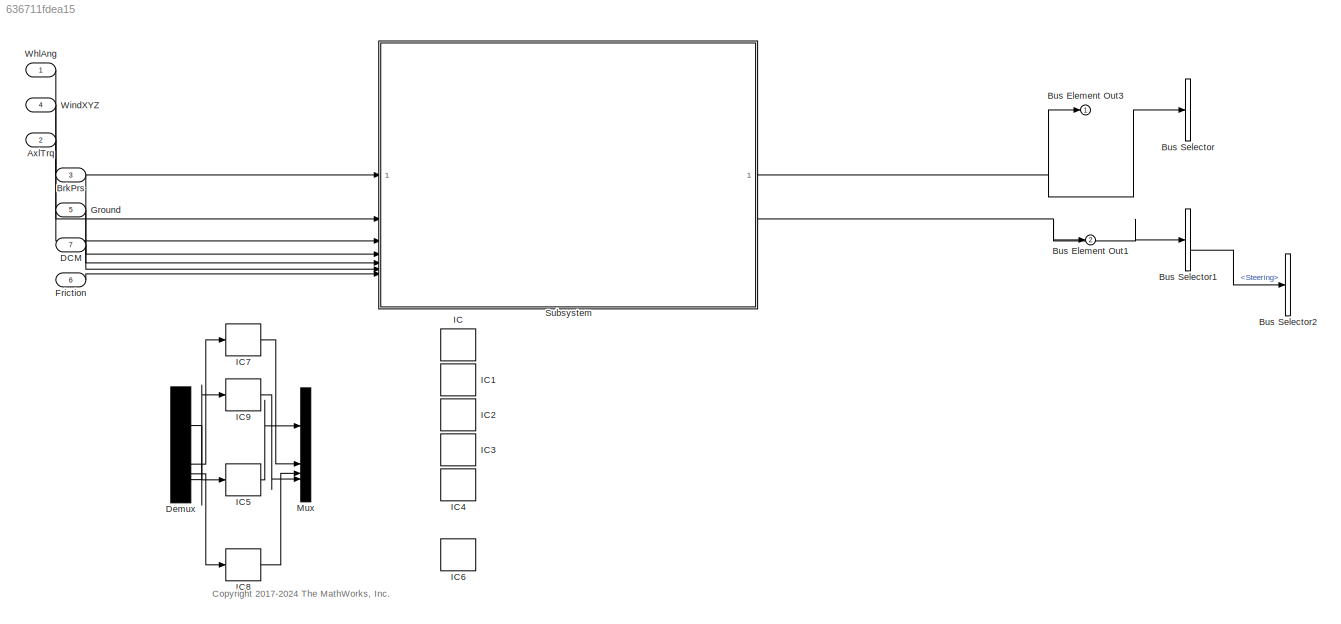
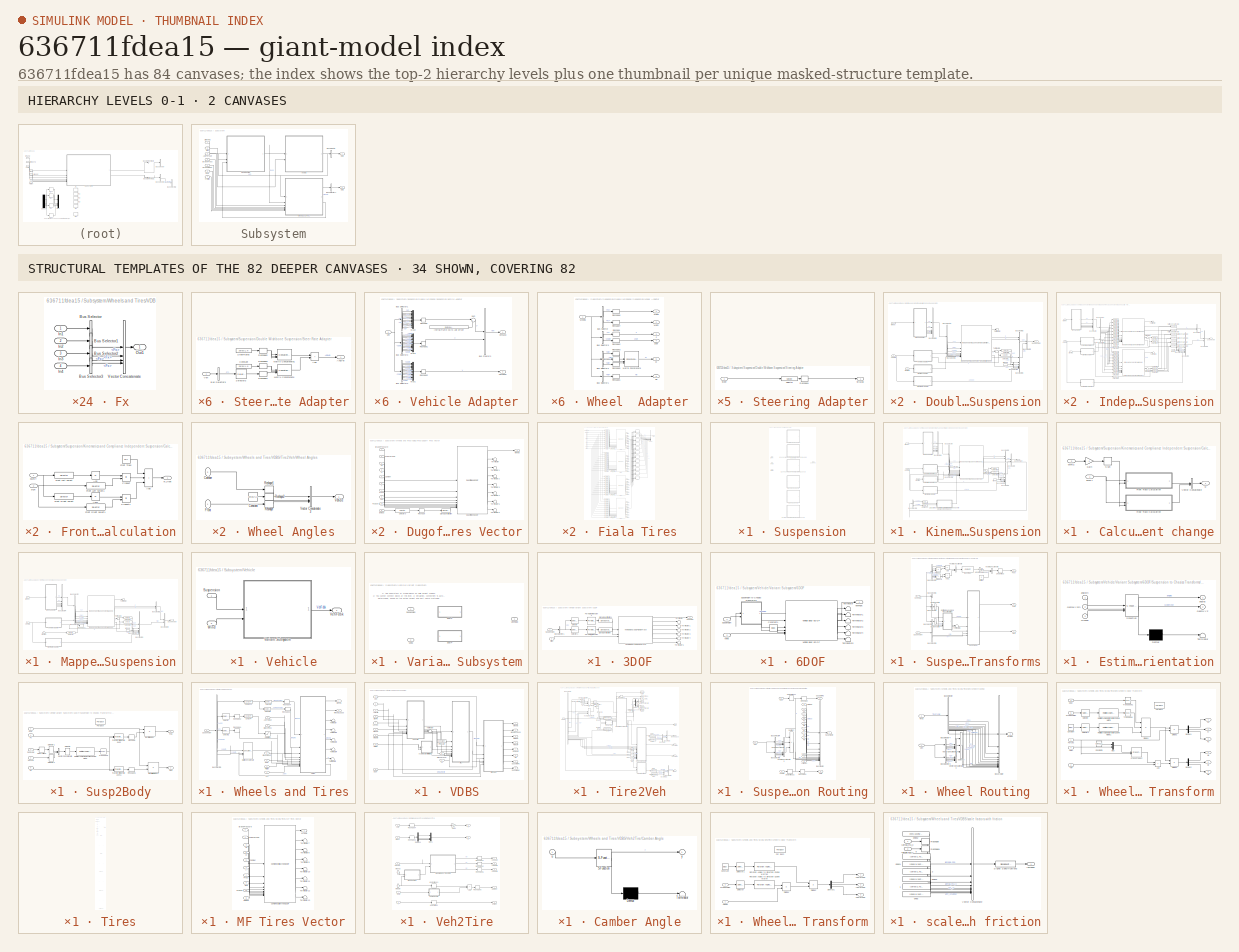
[diagram: thumbnail index - top-2 hierarchy levels (2 canvases) + 34 structural-template representatives of the remaining 82 canvases]
MODEL slx_636711fdea15
KIND model
CONFIG AbsTol = auto
CONFIG EnableMultiTasking = on
CONFIG FixedStep = .001
CONFIG MaxStep = auto
CONFIG MinStep = auto
CONFIG RelTol = 1e-1
CONFIG SampleTimeConstraint = Unconstrained
CONFIG SolverName = ode23tb
CONFIG StartTime = 0.0
CONFIG StopTime = 5
WORKSPACE source: mxarray member
WORKSPACE AlgnTrqCambCompl = [0 0 0 0]
WORKSPACE AlgnTrqSteerCompl = [0 0 0 0]
WORKSPACE AxlIxx = 62.3745166667
WORKSPACE AxlM = 160
WORKSPACE BumpCamber = [0 0 0 0]
WORKSPACE BumpCaster = [0 0 0 0]
WORKSPACE BumpSteer = [0 0 0 0]
WORKSPACE CambVsSteerAng = [0 0 0 0]
WORKSPACE CastVsSteerAng = [0 0 0 0]
WORKSPACE Cps = 2
WORKSPACE Cz = 5565.2246438
WORKSPACE CzWhlAxl = 11490.971257
WORKSPACE DCT_Param: object (value not decoded)
WORKSPACE Downshift_Speeds = [9.5625 12.9375 16.3125 19.6875 23.0625 26.4375 29.8125 33.1875 36.5625 39.9375 43.3125 46.6875 ... (28 elements, 4x7)]
WORKSPACE F0z = [2886 2907]
WORKSPACE F0zWhlAxl = 2907
WORKSPACE Hmax = 0.25
WORKSPACE Kz = 52451.0065793
WORKSPACE KzWhlAxl = 138031.612078
WORKSPACE LatCambCompl = [0 0 0 0]
WORKSPACE LatSteerCompl = [0 0 0 0]
WORKSPACE LatWhlCtrComplLat = [0 0 0 0]
WORKSPACE LatWhlCtrComplLng = [0 0 0 0 0 0 0 0]
WORKSPACE LatWhlCtrDisp = [0 0 0 0]
WORKSPACE LngCambCompl = [0 0 0 0 0 0 0 0]
WORKSPACE LngCastCompl = [0 0 0 0 0 0 0 0]
WORKSPACE LngSteerCompl = [0 0 0 0 0 0 0 0]
WORKSPACE LngWhlCtrCompl = [0 0 0 0 0 0 0 0]
WORKSPACE LngWhlCtrDisp = [0 0 0 0]
WORKSPACE MotRatios = [1 1]
WORKSPACE NCyl = 6
WORKSPACE NrmlWhlFrcOff = [2886 2886 2907 2907]
WORKSPACE NrmlWhlRates = [52.4510065793 52.4510065793 52.4510065793 52.4510065793]
WORKSPACE Pedal_Positions = [0.1 0.4 0.5 0.9]
WORKSPACE Pstd = 101325
WORKSPACE Rair = 287
WORKSPACE RollCamber: object (value not decoded)
WORKSPACE RollCaster: object (value not decoded)
WORKSPACE RollSteer: object (value not decoded)
WORKSPACE RollStiffArb = [0 0]
WORKSPACE RollStiffArbFrnt = 800
WORKSPACE RollStiffNoArb = [0 0]
WORKSPACE RollStiffNoArbFrnt = 0
WORKSPACE RollStiffNoTwstRear = 0
WORKSPACE ShckFrcVsCompRate = [5.5652246438 5.5652246438 5.5652246438 5.5652246438]
WORKSPACE StatCamber = [0 0 0 0]
WORKSPACE StatCaster = [0 0 0 0]
WORKSPACE StatLdWhlR = [0.3 0.3 0.3 0.3]
WORKSPACE StatToe = [0 0 0 0]
WORKSPACE Trans: object (value not decoded)
WORKSPACE Tstd = 293.15
WORKSPACE Upshift_Speeds = [12.9375 16.3125 19.6875 33 26.4375 29.8125 33.1875 52.5 39.9375 43.3125 46.6875 77.25 ... (28 elements, 4x7)]
WORKSPACE VEH: object (value not decoded)
WORKSPACE Vd = 0.00346
WORKSPACE VrtLdTrnsfr = [0 0 0 0]
WORKSPACE WH: Mass (value not decoded)
WORKSPACE dt3D = 0.05
WORKSPACE f_air = [0 0 0 0 0 0 0 0 0 0 0 0 ... (256 elements, 16x16)]
WORKSPACE f_co = [0 0 0 0 0 0 0 0 0 0 0 0 ... (256 elements, 16x16)]
WORKSPACE f_co2 = [0 0 0 0 0 0 0 0 0 0 0 0 ... (256 elements, 16x16)]
WORKSPACE f_eff = [352.135682859 352.135682859 320.724378192 303.655312657 295.930136708 291.240087194 291.240271258 291.240312459 291.240275452 291.240198499 291.240100781 291.240018769 ... (256 elements, 16x16)]
WORKSPACE f_fuel = [0 0 0 0 0 0 0 0 0 0 0 0 ... (256 elements, 16x16)]
WORKSPACE f_hc = [0 0 0 0 0 0 0 0 0 0 0 0 ... (256 elements, 16x16)]
WORKSPACE f_nox = [0 0 0 0 0 0 0 0 0 0 0 0 ... (256 elements, 16x16)]
WORKSPACE f_pm = [0 0 0 0 0 0 0 0 0 0 0 0 ... (256 elements, 16x16)]
WORKSPACE f_susp_axl_bp = [1 2]
WORKSPACE f_susp_dz_bp = [-0.325022776267 -0.315022776267 -0.305022776267 -0.205022776267 -0.105022776267 -0.00502277626717 0.0949772237328 0.194977223733 0.204977223733 0.214977223733]
WORKSPACE f_susp_dzdot_bp = [-3 -0.3 -0.2 -0.1 0 0.1 0.2 0.3 3]
WORKSPACE f_susp_fmz = [-144070.391448 -93629.24037 -75929.1118915 -20630.5828179 -15385.48216 -10140.3815021 -4895.28084414 349.819813785 -31916.3973792 18437.6709544 -83996.1993354 -33555.0482577 ... (43920 elements, 10x9x61x2x4)]
WORKSPACE f_susp_geom = [0 0 0 0 0 0 0 0 0 0 0 0 ... (3660 elements, 10x61x2x3)]
WORKSPACE f_susp_strgdelta_bp = [-0.523598775598 -0.506145483078 -0.488692190558 -0.471238898038 -0.453785605519 -0.436332312999 -0.418879020479 -0.401425727959 -0.383972435439 -0.366519142919 -0.349065850399 -0.331612557879 ... (61 elements, 1x61)]
WORKSPACE f_tbrake = [0 76.8593923996 105.140482948 131.533638111 157.926793274 176.658631717 176.65727296 176.656856686 176.656879077 176.657093756 176.657404516 176.65772406 ... (256 elements, 16x16)]
WORKSPACE f_tbrake_n_bpt = [0 649.519052838 912.419621844 1175.32019085 1438.22075986 1701.12132886 1964.02189787 2226.92246687 2489.82303588 2752.72360489 3015.62417389 3278.5247429 ... (16 elements, 1x16)]
WORKSPACE f_tbrake_t_bpt = [0 34.6410161514 61.0341713143 87.4273264773 113.82048164 140.213636803 166.606791966 192.999947129 219.393102292 245.786257455 272.179412618 298.572567781 ... (16 elements, 1x16)]
WORKSPACE f_texh = [766.752464599 766.752464599 786.17542386 801.679939032 884.591982581 910.574397722 910.571871054 910.570774534 910.570601632 910.570821151 910.571247242 910.571639815 ... (256 elements, 16x16)]
WORKSPACE f_twc_eff_co = [0.17 0.25 0.45 0.99 0.99 0.99 0.99]
WORKSPACE f_twc_eff_hc = [0.21 0.375 0.75 0.98 0.98 0.98 0.98]
WORKSPACE f_twc_eff_lam = [0.909090909 0.944055944 0.979020979 1 1.013986014 1.048951049 1.083916084]
WORKSPACE f_twc_eff_nox = [0.98 0.98 0.98 0.97 0.05 0.02 0]
WORKSPACE numWheel = 4
BLOCK [Inport] AxlTrq
  Port = 2
  PortDimensions = 4
  Unit = N*m
BLOCK [Inport] BrkPrs
  Port = 3
  PortDimensions = 4
BLOCK [Outport] Bus Element Out1
  Port = 2
BLOCK [Outport] Bus Element Out3
BLOCK [BusSelector] Bus Selector
  OutputSignals = InertFrm,BdyFrm
BLOCK [BusSelector] Bus Selector1
  OutputSignals = TireFrame,Steering
BLOCK [BusSelector] Bus Selector2
  OutputSignals = TireFrame,Steering
BLOCK [Inport] DCM
  Port = 7
  PortDimensions = [3,3,4]
BLOCK [Demux] Demux
  Commented = on
BLOCK [Inport] Friction
  Port = 6
  PortDimensions = 4
  Unit = 1
BLOCK [Inport] Ground
  Port = 5
  PortDimensions = 4
  Unit = m
BLOCK [InitialCondition] IC
  Commented = on
  Value = [0 0 0 0]'
BLOCK [InitialCondition] IC1
  Commented = on
  Value = [0 0 0]'
BLOCK [InitialCondition] IC2
  Commented = on
  Value = [0 0 0 0]'
BLOCK [InitialCondition] IC3
  Commented = on
  Value = [0 0 0 0]'
BLOCK [InitialCondition] IC4
  Commented = on
  Value = [0 0 0 0]'
BLOCK [InitialCondition] IC5
  Commented = on
  Value = [0, 0, 0; 0, 0, 0; 0, 0, 0]
BLOCK [InitialCondition] IC6
  Commented = on
  Value = [0 0 0 0]'
BLOCK [InitialCondition] IC7
  Commented = on
  Value = [0, 0, 0; 0, 0, 0; 0, 0, 0]
BLOCK [InitialCondition] IC8
  Commented = on
  Value = [0, 0, 0; 0, 0, 0; 0, 0, 0]
BLOCK [InitialCondition] IC9
  Commented = on
  Value = [0, 0, 0; 0, 0, 0; 0, 0, 0]
BLOCK [Mux] Mux
  Commented = on
  DisplayOption = bar
BLOCK [SubSystem] Subsystem
BLOCK [Inport] Subsystem/Axle Torque
  Port = 3
BLOCK [Inport] Subsystem/Brake Press
  Port = 4
BLOCK [BusSelector] Subsystem/Bus Selector
  OutputAsBus = on
  OutputSignals = InertFrm,BdyFrm
BLOCK [BusSelector] Subsystem/Bus Selector1
  OutputAsBus = on
  OutputSignals = TireFrame,Steering
BLOCK [Inport] Subsystem/DCM
  Port = 6
BLOCK [Inport] Subsystem/Friction
  Port = 7
BLOCK [Inport] Subsystem/Ground Input
  Port = 5
BLOCK [Outport] Subsystem/Out1
BLOCK [Outport] Subsystem/Out2
  Port = 2
BLOCK [Inport] Subsystem/Steering
BLOCK [SubSystem] Subsystem/Suspension
  LabelModeActiveChoice = 1
  Variant = on
  VariantControlMode = label
BLOCK [SubSystem] Subsystem/Suspension/Double Wishbone Suspension
  VariantControl = 1
BLOCK [BusCreator] Subsystem/Suspension/Double Wishbone Suspension/Bus Creator1
  DisplayOption = bar
  InheritFromInputs = on
  Inputs = 6
BLOCK [BusCreator] Subsystem/Suspension/Double Wishbone Suspension/Bus Creator2
  DisplayOption = bar
  InheritFromInputs = on
  Inputs = 2
BLOCK [BusCreator] Subsystem/Suspension/Double Wishbone Suspension/Bus Creator3
  DisplayOption = bar
  InheritFromInputs = on
  Inputs = 2
BLOCK [BusCreator] Subsystem/Suspension/Double Wishbone Suspension/Bus Creator4
  DisplayOption = bar
  InheritFromInputs = on
  Inputs = 6
BLOCK [BusSelector] Subsystem/Suspension/Double Wishbone Suspension/Bus Selector
  OutputSignals = z,Re,zdot,Fx,Fy,M
BLOCK [BusSelector] Subsystem/Suspension/Double Wishbone Suspension/Bus Selector1
  OutputSignals = P,V
BLOCK [BusSelector] Subsystem/Suspension/Double Wishbone Suspension/Bus Selector2
  OutputSignals = SuspFrame.z
BLOCK [Reference] Subsystem/Suspension/Double Wishbone Suspension/Independent Suspension – Double Wishbone  REF=vehdynlibsuspension/Independent Suspension - Double Wishbone
  SourceBlock = vehdynlibsuspension/Independent Suspension - Double Wishbone
  SourceType = Vehicle suspension
BLOCK [Selector] Subsystem/Suspension/Double Wishbone Suspension/Selector1
  IndexOptions = Index vector (dialog),Select all
  Indices = 1,1
  NumberOfDimensions = 2
  OutputSizes = 1,1
BLOCK [Selector] Subsystem/Suspension/Double Wishbone Suspension/Selector2
  IndexOptions = Index vector (dialog),Select all
  Indices = 2,1
  NumberOfDimensions = 2
  OutputSizes = 1,1
BLOCK [SubSystem] Subsystem/Suspension/Double Wishbone Suspension/Steer Rate Adapter
BLOCK [Sum] Subsystem/Suspension/Double Wishbone Suspension/Steer Rate Adapter/Add
  IconShape = rectangular
BLOCK [Outport] Subsystem/Suspension/Double Wishbone Suspension/Steer Rate Adapter/AngVel
  VectorParamsAs1DForOutWhenUnconnected = off
BLOCK [BusSelector] Subsystem/Suspension/Double Wishbone Suspension/Steer Rate Adapter/Bus Selector3
  OutputSignals = BdyFrm.Cg.AngVel.r
BLOCK [Constant] Subsystem/Suspension/Double Wishbone Suspension/Steer Rate Adapter/Constant
  Value = zeros(1,4)
BLOCK [Concatenate] Subsystem/Suspension/Double Wishbone Suspension/Steer Rate Adapter/Matrix Concatenate
  Mode = Multidimensional array
  NumInputs = 3
BLOCK [Concatenate] Subsystem/Suspension/Double Wishbone Suspension/Steer Rate Adapter/Matrix Concatenate1
  Mode = Multidimensional array
  NumInputs = 3
BLOCK [Reshape] Subsystem/Suspension/Double Wishbone Suspension/Steer Rate Adapter/Reshape2
  OutputDimensionality = Row vector (2-D)
BLOCK [Reshape] Subsystem/Suspension/Double Wishbone Suspension/Steer Rate Adapter/Reshape3
  OutputDimensionality = Row vector (2-D)
BLOCK [Reshape] Subsystem/Suspension/Double Wishbone Suspension/Steer Rate Adapter/Reshape4
  OutputDimensionality = Row vector (2-D)
BLOCK [Selector] Subsystem/Suspension/Double Wishbone Suspension/Steer Rate Adapter/Selector3
  IndexOptions = Index vector (dialog)
  Indices = [1 1 1 1]
  InputPortWidth = 1
  OutputSizes = 1
BLOCK [Constant] Subsystem/Suspension/Double Wishbone Suspension/Steer Rate Adapter/SteerRates
  Value = zeros(1,4)
BLOCK [Inport] Subsystem/Suspension/Double Wishbone Suspension/Steer Rate Adapter/Veh
BLOCK [Inport] Subsystem/Suspension/Double Wishbone Suspension/Steering
  Port = 2
BLOCK [SubSystem] Subsystem/Suspension/Double Wishbone Suspension/Steering Adapter
BLOCK [Reshape] Subsystem/Suspension/Double Wishbone Suspension/Steering Adapter/Reshape1
  OutputDimensionality = Row vector (2-D)
BLOCK [Selector] Subsystem/Suspension/Double Wishbone Suspension/Steering Adapter/Selector
  IndexOptions = Index vector (dialog)
  Indices = [1 2]
  OutputSizes = 1
BLOCK [Inport] Subsystem/Suspension/Double Wishbone Suspension/Steering Adapter/Steer
BLOCK [Outport] Subsystem/Suspension/Double Wishbone Suspension/Steering Adapter/StrgAng
  VectorParamsAs1DForOutWhenUnconnected = off
BLOCK [Outport] Subsystem/Suspension/Double Wishbone Suspension/Suspension
  VectorParamsAs1DForOutWhenUnconnected = off
BLOCK [Terminator] Subsystem/Suspension/Double Wishbone Suspension/Terminator
BLOCK [Terminator] Subsystem/Suspension/Double Wishbone Suspension/Terminator1
BLOCK [Inport] Subsystem/Suspension/Double Wishbone Suspension/Vehicle
  Port = 3
BLOCK [SubSystem] Subsystem/Suspension/Double Wishbone Suspension/Vehicle Adapter
BLOCK [BusCreator] Subsystem/Suspension/Double Wishbone Suspension/Vehicle Adapter/Bus Creator3
  DisplayOption = bar
  InheritFromInputs = on
  Inputs = 2
BLOCK [BusSelector] Subsystem/Suspension/Double Wishbone Suspension/Vehicle Adapter/Bus Selector1
  OutputSignals = InertFrm.FrntAxl.Lft.Disp.X,InertFrm.FrntAxl.Lft.Disp.Y,InertFrm.FrntAxl.Lft.Disp.Z,InertFrm.FrntAxl.Rght.Disp.X,InertFrm.FrntAxl.Rght.Disp.Y,InertFrm.FrntAxl.Rght.Disp.Z,InertFrm.RearAxl.Lft.Disp.X,InertFrm.RearAxl.Lft.Disp.Y,InertFrm.RearAxl.Lft.Disp.Z,InertFrm.RearAxl.Rght.Disp.X,InertFrm.RearAxl.Rght.Disp.Y,InertFrm.RearAxl.Rght.Disp.Z  <repeated x6 — deduplicated; at blocks: Bus Selector1>
BLOCK [BusSelector] Subsystem/Suspension/Double Wishbone Suspension/Vehicle Adapter/Bus Selector2
  OutputSignals = BdyFrm.FrntAxl.Lft.Vel.xdot,BdyFrm.FrntAxl.Lft.Vel.ydot,BdyFrm.FrntAxl.Lft.Vel.zdot,BdyFrm.FrntAxl.Rght.Vel.xdot,BdyFrm.FrntAxl.Rght.Vel.ydot,BdyFrm.FrntAxl.Rght.Vel.zdot,BdyFrm.RearAxl.Lft.Vel.xdot,BdyFrm.RearAxl.Lft.Vel.ydot,BdyFrm.RearAxl.Lft.Vel.zdot,BdyFrm.RearAxl.Rght.Vel.xdot,BdyFrm.RearAxl.Rght.Vel.ydot,BdyFrm.RearAxl.Rght.Vel.zdot  <repeated x6 — deduplicated; at blocks: Bus Selector2>
BLOCK [BusSelector] Subsystem/Suspension/Double Wishbone Suspension/Vehicle Adapter/Bus Selector3
  OutputSignals = InertFrm.FrntAxl.Lft.Vel.Xdot,InertFrm.FrntAxl.Lft.Vel.Ydot,InertFrm.FrntAxl.Lft.Vel.Zdot,InertFrm.FrntAxl.Rght.Vel.Xdot,InertFrm.FrntAxl.Rght.Vel.Ydot,InertFrm.FrntAxl.Rght.Vel.Zdot,InertFrm.RearAxl.Lft.Vel.Xdot,InertFrm.RearAxl.Lft.Vel.Ydot,InertFrm.RearAxl.Lft.Vel.Zdot,InertFrm.RearAxl.Rght.Vel.Xdot,InertFrm.RearAxl.Rght.Vel.Ydot,InertFrm.RearAxl.Rght.Vel.Zdot  <repeated x6 — deduplicated; at blocks: Bus Selector3>
BLOCK [Constant] Subsystem/Suspension/Double Wishbone Suspension/Vehicle Adapter/Inertial Frame CG to Axle Offset
  Value = [zeros(2,4);VEH.HeightCG*ones(1,4)]
BLOCK [Mux] Subsystem/Suspension/Double Wishbone Suspension/Vehicle Adapter/Mux1
  DisplayOption = bar
  Inputs = 12
BLOCK [Mux] Subsystem/Suspension/Double Wishbone Suspension/Vehicle Adapter/Mux2
  DisplayOption = bar
  Inputs = 12
BLOCK [Mux] Subsystem/Suspension/Double Wishbone Suspension/Vehicle Adapter/Mux3
  DisplayOption = bar
  Inputs = 12
BLOCK [Reshape] Subsystem/Suspension/Double Wishbone Suspension/Vehicle Adapter/Reshape
  OutputDimensionality = Customize
  OutputDimensions = [3,4]
BLOCK [Reshape] Subsystem/Suspension/Double Wishbone Suspension/Vehicle Adapter/Reshape1
  OutputDimensionality = Customize
  OutputDimensions = [3,4]
BLOCK [Reshape] Subsystem/Suspension/Double Wishbone Suspension/Vehicle Adapter/Reshape2
  OutputDimensionality = Customize
  OutputDimensions = [3,4]
BLOCK [Sum] Subsystem/Suspension/Double Wishbone Suspension/Vehicle Adapter/Sum
  Inputs = |+-
BLOCK [Inport] Subsystem/Suspension/Double Wishbone Suspension/Vehicle Adapter/Veh
BLOCK [Outport] Subsystem/Suspension/Double Wishbone Suspension/Vehicle Adapter/VehSusp
  VectorParamsAs1DForOutWhenUnconnected = off
BLOCK [Outport] Subsystem/Suspension/Double Wishbone Suspension/Vehicle Adapter/VehVbody
  Port = 2
  VectorParamsAs1DForOutWhenUnconnected = off
BLOCK [Inport] Subsystem/Suspension/Double Wishbone Suspension/Wheel
BLOCK [SubSystem] Subsystem/Suspension/Double Wishbone Suspension/Wheel  Adapter
BLOCK [BusSelector] Subsystem/Suspension/Double Wishbone Suspension/Wheel  Adapter/Bus Selector
  OutputSignals = SuspFrame.Fx,SuspFrame.Fy
BLOCK [BusSelector] Subsystem/Suspension/Double Wishbone Suspension/Wheel  Adapter/Bus Selector1
  OutputSignals = SuspFrame.Re
BLOCK [BusSelector] Subsystem/Suspension/Double Wishbone Suspension/Wheel  Adapter/Bus Selector2
  OutputSignals = SuspFrame.Mx,SuspFrame.My,SuspFrame.Mz
BLOCK [BusSelector] Subsystem/Suspension/Double Wishbone Suspension/Wheel  Adapter/Bus Selector3
  OutputSignals = SuspFrame.z,SuspFrame.zdot
BLOCK [Outport] Subsystem/Suspension/Double Wishbone Suspension/Wheel  Adapter/M
  Port = 5
  VectorParamsAs1DForOutWhenUnconnected = off
BLOCK [Concatenate] Subsystem/Suspension/Double Wishbone Suspension/Wheel  Adapter/Matrix Concatenate
  Mode = Multidimensional array
  NumInputs = 3
BLOCK [Outport] Subsystem/Suspension/Double Wishbone Suspension/Wheel  Adapter/Re
  Port = 6
  VectorParamsAs1DForOutWhenUnconnected = off
BLOCK [Reshape] Subsystem/Suspension/Double Wishbone Suspension/Wheel  Adapter/Reshape
  OutputDimensionality = Row vector (2-D)
BLOCK [Reshape] Subsystem/Suspension/Double Wishbone Suspension/Wheel  Adapter/Reshape1
  OutputDimensionality = Row vector (2-D)
BLOCK [Reshape] Subsystem/Suspension/Double Wishbone Suspension/Wheel  Adapter/Reshape2
  OutputDimensionality = Row vector (2-D)
BLOCK [Reshape] Subsystem/Suspension/Double Wishbone Suspension/Wheel  Adapter/Reshape3
  OutputDimensionality = Row vector (2-D)
BLOCK [Reshape] Subsystem/Suspension/Double Wishbone Suspension/Wheel  Adapter/Reshape4
  OutputDimensionality = Row vector (2-D)
BLOCK [Reshape] Subsystem/Suspension/Double Wishbone Suspension/Wheel  Adapter/Reshape5
  OutputDimensionality = Row vector (2-D)
BLOCK [Reshape] Subsystem/Suspension/Double Wishbone Suspension/Wheel  Adapter/Reshape6
  OutputDimensionality = Row vector (2-D)
BLOCK [Reshape] Subsystem/Suspension/Double Wishbone Suspension/Wheel  Adapter/Reshape7
  OutputDimensionality = Row vector (2-D)
BLOCK [Inport] Subsystem/Suspension/Double Wishbone Suspension/Wheel  Adapter/Wheels
BLOCK [Outport] Subsystem/Suspension/Double Wishbone Suspension/Wheel  Adapter/WhlFx
  VectorParamsAs1DForOutWhenUnconnected = off
BLOCK [Outport] Subsystem/Suspension/Double Wishbone Suspension/Wheel  Adapter/WhlFy
  Port = 2
  VectorParamsAs1DForOutWhenUnconnected = off
BLOCK [Outport] Subsystem/Suspension/Double Wishbone Suspension/Wheel  Adapter/z
  Port = 3
  VectorParamsAs1DForOutWhenUnconnected = off
BLOCK [Outport] Subsystem/Suspension/Double Wishbone Suspension/Wheel  Adapter/zdot
  Port = 4
  VectorParamsAs1DForOutWhenUnconnected = off
BLOCK [InportShadow] Subsystem/Suspension/Double Wishbone Suspension/Wheel1
BLOCK [SubSystem] Subsystem/Suspension/Independent Mapped Front Suspension Mapped Solid Axle Rear Suspension
  VariantControl = 2
BLOCK [BusCreator] Subsystem/Suspension/Independent Mapped Front Suspension Mapped Solid Axle Rear Suspension/Bus Creator1
  DisplayOption = bar
  InheritFromInputs = on
  Inputs = 6
BLOCK [BusCreator] Subsystem/Suspension/Independent Mapped Front Suspension Mapped Solid Axle Rear Suspension/Bus Creator2
  DisplayOption = bar
  InheritFromInputs = on
  Inputs = 2
BLOCK [BusCreator] Subsystem/Suspension/Independent Mapped Front Suspension Mapped Solid Axle Rear Suspension/Bus Creator3
  DisplayOption = bar
  InheritFromInputs = on
  Inputs = 2
BLOCK [BusCreator] Subsystem/Suspension/Independent Mapped Front Suspension Mapped Solid Axle Rear Suspension/Bus Creator4
  DisplayOption = bar
  InheritFromInputs = on
  Inputs = 6
BLOCK [BusSelector] Subsystem/Suspension/Independent Mapped Front Suspension Mapped Solid Axle Rear Suspension/Bus Selector
  OutputSignals = z,Re,zdot,Fx,Fy,M
BLOCK [BusSelector] Subsystem/Suspension/Independent Mapped Front Suspension Mapped Solid Axle Rear Suspension/Bus Selector1
  OutputSignals = P,V
BLOCK [BusSelector] Subsystem/Suspension/Independent Mapped Front Suspension Mapped Solid Axle Rear Suspension/Bus Selector2
  OutputSignals = SuspFrame.z
BLOCK [Reference] Subsystem/Suspension/Independent Mapped Front Suspension Mapped Solid Axle Rear Suspension/Independent Suspension - Mapped  REF=vehdynlibsuspension/Independent Suspension - Mapped
  SourceBlock = vehdynlibsuspension/Independent Suspension - Mapped
  SourceType = Vehicle suspension
BLOCK [Concatenate] Subsystem/Suspension/Independent Mapped Front Suspension Mapped Solid Axle Rear Suspension/Matrix Concatenate
  ConcatenateDimension = 2
  Mode = Multidimensional array
BLOCK [Concatenate] Subsystem/Suspension/Independent Mapped Front Suspension Mapped Solid Axle Rear Suspension/Matrix Concatenate1
  ConcatenateDimension = 2
  Mode = Multidimensional array
BLOCK [Concatenate] Subsystem/Suspension/Independent Mapped Front Suspension Mapped Solid Axle Rear Suspension/Matrix Concatenate2
  ConcatenateDimension = 2
  Mode = Multidimensional array
BLOCK [Concatenate] Subsystem/Suspension/Independent Mapped Front Suspension Mapped Solid Axle Rear Suspension/Matrix Concatenate4
  ConcatenateDimension = 2
  Mode = Multidimensional array
BLOCK [Concatenate] Subsystem/Suspension/Independent Mapped Front Suspension Mapped Solid Axle Rear Suspension/Matrix Concatenate5
  ConcatenateDimension = 2
  Mode = Multidimensional array
BLOCK [Concatenate] Subsystem/Suspension/Independent Mapped Front Suspension Mapped Solid Axle Rear Suspension/Matrix Concatenate6
  ConcatenateDimension = 2
  Mode = Multidimensional array
BLOCK [Selector] Subsystem/Suspension/Independent Mapped Front Suspension Mapped Solid Axle Rear Suspension/Selector1
  IndexOptions = Select all,Index vector (dialog)
  Indices = [1 2],[3 4]
  NumberOfDimensions = 2
  OutputSizes = 1,1
BLOCK [Selector] Subsystem/Suspension/Independent Mapped Front Suspension Mapped Solid Axle Rear Suspension/Selector10
  IndexOptions = Select all,Index vector (dialog)
  Indices = [1 2],[1 2]
  NumberOfDimensions = 2
  OutputSizes = 1,1
BLOCK [Selector] Subsystem/Suspension/Independent Mapped Front Suspension Mapped Solid Axle Rear Suspension/Selector11
  IndexOptions = Select all,Index vector (dialog)
  Indices = [1 2],[1 2]
  NumberOfDimensions = 2
  OutputSizes = 1,1
BLOCK [Selector] Subsystem/Suspension/Independent Mapped Front Suspension Mapped Solid Axle Rear Suspension/Selector12
  IndexOptions = Index vector (dialog),Select all
  Indices = 1,1
  InputPortWidth = 3
  NumberOfDimensions = 2
  OutputSizes = 1,1
BLOCK [Selector] Subsystem/Suspension/Independent Mapped Front Suspension Mapped Solid Axle Rear Suspension/Selector13
  IndexOptions = Index vector (dialog),Select all
  Indices = 2,1
  InputPortWidth = 3
  NumberOfDimensions = 2
  OutputSizes = 1,1
BLOCK [Selector] Subsystem/Suspension/Independent Mapped Front Suspension Mapped Solid Axle Rear Suspension/Selector14
  IndexOptions = Index vector (dialog),Select all
  Indices = 1,1
  InputPortWidth = 3
  NumberOfDimensions = 2
  OutputSizes = 1,1
BLOCK [Selector] Subsystem/Suspension/Independent Mapped Front Suspension Mapped Solid Axle Rear Suspension/Selector15
  IndexOptions = Index vector (dialog),Select all
  Indices = 2,1
  InputPortWidth = 3
  NumberOfDimensions = 2
  OutputSizes = 1,1
BLOCK [Selector] Subsystem/Suspension/Independent Mapped Front Suspension Mapped Solid Axle Rear Suspension/Selector16
  IndexOptions = Index vector (dialog)
  Indices = [3 4]
  OutputSizes = 1
BLOCK [Selector] Subsystem/Suspension/Independent Mapped Front Suspension Mapped Solid Axle Rear Suspension/Selector17
  IndexOptions = Select all,Index vector (dialog)
  Indices = [1 2],[3 4]
  NumberOfDimensions = 2
  OutputSizes = 1,1
BLOCK [Selector] Subsystem/Suspension/Independent Mapped Front Suspension Mapped Solid Axle Rear Suspension/Selector18
  IndexOptions = Select all,Index vector (dialog)
  Indices = [1 2],[3 4]
  NumberOfDimensions = 2
  OutputSizes = 1,1
BLOCK [Selector] Subsystem/Suspension/Independent Mapped Front Suspension Mapped Solid Axle Rear Suspension/Selector19
  IndexOptions = Select all,Index vector (dialog)
  Indices = [1 2],[3 4]
  NumberOfDimensions = 2
  OutputSizes = 1,1
BLOCK [Selector] Subsystem/Suspension/Independent Mapped Front Suspension Mapped Solid Axle Rear Suspension/Selector2
  IndexOptions = Index vector (dialog)
  Indices = [1 2]
  OutputSizes = 1
BLOCK [Selector] Subsystem/Suspension/Independent Mapped Front Suspension Mapped Solid Axle Rear Suspension/Selector20
  IndexOptions = Index vector (dialog)
  Indices = [3 4]
  OutputSizes = 1
BLOCK [Selector] Subsystem/Suspension/Independent Mapped Front Suspension Mapped Solid Axle Rear Suspension/Selector21
  IndexOptions = Index vector (dialog)
  Indices = [3 4]
  OutputSizes = 1
BLOCK [Selector] Subsystem/Suspension/Independent Mapped Front Suspension Mapped Solid Axle Rear Suspension/Selector22
  IndexOptions = Index vector (dialog)
  Indices = [3 4]
  OutputSizes = 1
BLOCK [Selector] Subsystem/Suspension/Independent Mapped Front Suspension Mapped Solid Axle Rear Suspension/Selector23
  IndexOptions = Select all,Index vector (dialog)
  Indices = [1 2],[1 2]
  NumberOfDimensions = 2
  OutputSizes = 1,1
BLOCK [Selector] Subsystem/Suspension/Independent Mapped Front Suspension Mapped Solid Axle Rear Suspension/Selector3
  IndexOptions = Index vector (dialog)
  Indices = [3 4]
  OutputSizes = 1
BLOCK [Selector] Subsystem/Suspension/Independent Mapped Front Suspension Mapped Solid Axle Rear Suspension/Selector4
  IndexOptions = Index vector (dialog)
  Indices = [1 2]
  OutputSizes = 1
BLOCK [Selector] Subsystem/Suspension/Independent Mapped Front Suspension Mapped Solid Axle Rear Suspension/Selector5
  IndexOptions = Index vector (dialog)
  Indices = [1 2]
  OutputSizes = 1
BLOCK [Selector] Subsystem/Suspension/Independent Mapped Front Suspension Mapped Solid Axle Rear Suspension/Selector6
  IndexOptions = Index vector (dialog)
  Indices = [1 2]
  OutputSizes = 1
BLOCK [Selector] Subsystem/Suspension/Independent Mapped Front Suspension Mapped Solid Axle Rear Suspension/Selector7
  IndexOptions = Index vector (dialog)
  Indices = [1 2]
  OutputSizes = 1
BLOCK [Selector] Subsystem/Suspension/Independent Mapped Front Suspension Mapped Solid Axle Rear Suspension/Selector8
  IndexOptions = Index vector (dialog)
  Indices = [1 2]
  OutputSizes = 1
BLOCK [Selector] Subsystem/Suspension/Independent Mapped Front Suspension Mapped Solid Axle Rear Suspension/Selector9
  IndexOptions = Select all,Index vector (dialog)
  Indices = [1 2],[1 2]
  NumberOfDimensions = 2
  OutputSizes = 1,1
BLOCK [Reference] Subsystem/Suspension/Independent Mapped Front Suspension Mapped Solid Axle Rear Suspension/Solid Axle Suspension - Mapped  REF=vehdynlibsuspension/Solid Axle Suspension - Mapped
  SourceBlock = vehdynlibsuspension/Solid Axle Suspension - Mapped
  SourceType = Vehicle suspension
BLOCK [SubSystem] Subsystem/Suspension/Independent Mapped Front Suspension Mapped Solid Axle Rear Suspension/Steer Rate Adapter
BLOCK [Sum] Subsystem/Suspension/Independent Mapped Front Suspension Mapped Solid Axle Rear Suspension/Steer Rate Adapter/Add
  IconShape = rectangular
BLOCK [Outport] Subsystem/Suspension/Independent Mapped Front Suspension Mapped Solid Axle Rear Suspension/Steer Rate Adapter/AngVel
  VectorParamsAs1DForOutWhenUnconnected = off
BLOCK [BusSelector] Subsystem/Suspension/Independent Mapped Front Suspension Mapped Solid Axle Rear Suspension/Steer Rate Adapter/Bus Selector3
  OutputSignals = BdyFrm.Cg.AngVel.r
BLOCK [Constant] Subsystem/Suspension/Independent Mapped Front Suspension Mapped Solid Axle Rear Suspension/Steer Rate Adapter/Constant
  Value = zeros(1,4)
BLOCK [Concatenate] Subsystem/Suspension/Independent Mapped Front Suspension Mapped Solid Axle Rear Suspension/Steer Rate Adapter/Matrix Concatenate
  Mode = Multidimensional array
  NumInputs = 3
BLOCK [Concatenate] Subsystem/Suspension/Independent Mapped Front Suspension Mapped Solid Axle Rear Suspension/Steer Rate Adapter/Matrix Concatenate1
  Mode = Multidimensional array
  NumInputs = 3
BLOCK [Reshape] Subsystem/Suspension/Independent Mapped Front Suspension Mapped Solid Axle Rear Suspension/Steer Rate Adapter/Reshape2
  OutputDimensionality = Row vector (2-D)
BLOCK [Reshape] Subsystem/Suspension/Independent Mapped Front Suspension Mapped Solid Axle Rear Suspension/Steer Rate Adapter/Reshape3
  OutputDimensionality = Row vector (2-D)
BLOCK [Reshape] Subsystem/Suspension/Independent Mapped Front Suspension Mapped Solid Axle Rear Suspension/Steer Rate Adapter/Reshape4
  OutputDimensionality = Row vector (2-D)
BLOCK [Selector] Subsystem/Suspension/Independent Mapped Front Suspension Mapped Solid Axle Rear Suspension/Steer Rate Adapter/Selector3
  IndexOptions = Index vector (dialog)
  Indices = [1 1 1 1]
  InputPortWidth = 1
  OutputSizes = 1
BLOCK [Constant] Subsystem/Suspension/Independent Mapped Front Suspension Mapped Solid Axle Rear Suspension/Steer Rate Adapter/SteerRates
  Value = zeros(1,4)
BLOCK [Inport] Subsystem/Suspension/Independent Mapped Front Suspension Mapped Solid Axle Rear Suspension/Steer Rate Adapter/Veh
BLOCK [Inport] Subsystem/Suspension/Independent Mapped Front Suspension Mapped Solid Axle Rear Suspension/Steering
  Port = 2
BLOCK [SubSystem] Subsystem/Suspension/Independent Mapped Front Suspension Mapped Solid Axle Rear Suspension/Steering Adapter
BLOCK [Reshape] Subsystem/Suspension/Independent Mapped Front Suspension Mapped Solid Axle Rear Suspension/Steering Adapter/Reshape1
  OutputDimensionality = Row vector (2-D)
BLOCK [Selector] Subsystem/Suspension/Independent Mapped Front Suspension Mapped Solid Axle Rear Suspension/Steering Adapter/Selector
  IndexOptions = Index vector (dialog)
  Indices = [1 2]
  OutputSizes = 1
BLOCK [Inport] Subsystem/Suspension/Independent Mapped Front Suspension Mapped Solid Axle Rear Suspension/Steering Adapter/Steer
BLOCK [Outport] Subsystem/Suspension/Independent Mapped Front Suspension Mapped Solid Axle Rear Suspension/Steering Adapter/StrgAng
  VectorParamsAs1DForOutWhenUnconnected = off
BLOCK [Outport] Subsystem/Suspension/Independent Mapped Front Suspension Mapped Solid Axle Rear Suspension/Suspension
  VectorParamsAs1DForOutWhenUnconnected = off
BLOCK [Terminator] Subsystem/Suspension/Independent Mapped Front Suspension Mapped Solid Axle Rear Suspension/Terminator
BLOCK [Terminator] Subsystem/Suspension/Independent Mapped Front Suspension Mapped Solid Axle Rear Suspension/Terminator1
BLOCK [Terminator] Subsystem/Suspension/Independent Mapped Front Suspension Mapped Solid Axle Rear Suspension/Terminator2
BLOCK [Terminator] Subsystem/Suspension/Independent Mapped Front Suspension Mapped Solid Axle Rear Suspension/Terminator3
BLOCK [Inport] Subsystem/Suspension/Independent Mapped Front Suspension Mapped Solid Axle Rear Suspension/Vehicle
  Port = 3
BLOCK [SubSystem] Subsystem/Suspension/Independent Mapped Front Suspension Mapped Solid Axle Rear Suspension/Vehicle Adapter
BLOCK [BusCreator] Subsystem/Suspension/Independent Mapped Front Suspension Mapped Solid Axle Rear Suspension/Vehicle Adapter/Bus Creator3
  DisplayOption = bar
  InheritFromInputs = on
  Inputs = 2
BLOCK [BusSelector] Subsystem/Suspension/Independent Mapped Front Suspension Mapped Solid Axle Rear Suspension/Vehicle Adapter/Bus Selector1
BLOCK [BusSelector] Subsystem/Suspension/Independent Mapped Front Suspension Mapped Solid Axle Rear Suspension/Vehicle Adapter/Bus Selector2
BLOCK [BusSelector] Subsystem/Suspension/Independent Mapped Front Suspension Mapped Solid Axle Rear Suspension/Vehicle Adapter/Bus Selector3
BLOCK [Constant] Subsystem/Suspension/Independent Mapped Front Suspension Mapped Solid Axle Rear Suspension/Vehicle Adapter/Inertial Frame CG to Axle Offset
  Value = [zeros(2,4);VEH.HeightCG*ones(1,4)]
BLOCK [Mux] Subsystem/Suspension/Independent Mapped Front Suspension Mapped Solid Axle Rear Suspension/Vehicle Adapter/Mux1
  DisplayOption = bar
  Inputs = 12
BLOCK [Mux] Subsystem/Suspension/Independent Mapped Front Suspension Mapped Solid Axle Rear Suspension/Vehicle Adapter/Mux2
  DisplayOption = bar
  Inputs = 12
BLOCK [Mux] Subsystem/Suspension/Independent Mapped Front Suspension Mapped Solid Axle Rear Suspension/Vehicle Adapter/Mux3
  DisplayOption = bar
  Inputs = 12
BLOCK [Reshape] Subsystem/Suspension/Independent Mapped Front Suspension Mapped Solid Axle Rear Suspension/Vehicle Adapter/Reshape
  OutputDimensionality = Customize
  OutputDimensions = [3,4]
BLOCK [Reshape] Subsystem/Suspension/Independent Mapped Front Suspension Mapped Solid Axle Rear Suspension/Vehicle Adapter/Reshape1
  OutputDimensionality = Customize
  OutputDimensions = [3,4]
BLOCK [Reshape] Subsystem/Suspension/Independent Mapped Front Suspension Mapped Solid Axle Rear Suspension/Vehicle Adapter/Reshape2
  OutputDimensionality = Customize
  OutputDimensions = [3,4]
BLOCK [Sum] Subsystem/Suspension/Independent Mapped Front Suspension Mapped Solid Axle Rear Suspension/Vehicle Adapter/Sum
  Inputs = |+-
BLOCK [Inport] Subsystem/Suspension/Independent Mapped Front Suspension Mapped Solid Axle Rear Suspension/Vehicle Adapter/Veh
BLOCK [Outport] Subsystem/Suspension/Independent Mapped Front Suspension Mapped Solid Axle Rear Suspension/Vehicle Adapter/VehSusp
  VectorParamsAs1DForOutWhenUnconnected = off
BLOCK [Outport] Subsystem/Suspension/Independent Mapped Front Suspension Mapped Solid Axle Rear Suspension/Vehicle Adapter/VehVbody
  Port = 2
  VectorParamsAs1DForOutWhenUnconnected = off
BLOCK [Inport] Subsystem/Suspension/Independent Mapped Front Suspension Mapped Solid Axle Rear Suspension/Wheel
BLOCK [SubSystem] Subsystem/Suspension/Independent Mapped Front Suspension Mapped Solid Axle Rear Suspension/Wheel  Adapter
BLOCK [BusSelector] Subsystem/Suspension/Independent Mapped Front Suspension Mapped Solid Axle Rear Suspension/Wheel  Adapter/Bus Selector
  OutputSignals = SuspFrame.Fx,SuspFrame.Fy
BLOCK [BusSelector] Subsystem/Suspension/Independent Mapped Front Suspension Mapped Solid Axle Rear Suspension/Wheel  Adapter/Bus Selector1
  OutputSignals = SuspFrame.Re
BLOCK [BusSelector] Subsystem/Suspension/Independent Mapped Front Suspension Mapped Solid Axle Rear Suspension/Wheel  Adapter/Bus Selector2
  OutputSignals = SuspFrame.Mx,SuspFrame.My,SuspFrame.Mz
BLOCK [BusSelector] Subsystem/Suspension/Independent Mapped Front Suspension Mapped Solid Axle Rear Suspension/Wheel  Adapter/Bus Selector3
  OutputSignals = SuspFrame.z,SuspFrame.zdot
BLOCK [Outport] Subsystem/Suspension/Independent Mapped Front Suspension Mapped Solid Axle Rear Suspension/Wheel  Adapter/M
  Port = 5
  VectorParamsAs1DForOutWhenUnconnected = off
BLOCK [Concatenate] Subsystem/Suspension/Independent Mapped Front Suspension Mapped Solid Axle Rear Suspension/Wheel  Adapter/Matrix Concatenate
  Mode = Multidimensional array
  NumInputs = 3
BLOCK [Outport] Subsystem/Suspension/Independent Mapped Front Suspension Mapped Solid Axle Rear Suspension/Wheel  Adapter/Re
  Port = 6
  VectorParamsAs1DForOutWhenUnconnected = off
BLOCK [Reshape] Subsystem/Suspension/Independent Mapped Front Suspension Mapped Solid Axle Rear Suspension/Wheel  Adapter/Reshape
  OutputDimensionality = Row vector (2-D)
BLOCK [Reshape] Subsystem/Suspension/Independent Mapped Front Suspension Mapped Solid Axle Rear Suspension/Wheel  Adapter/Reshape1
  OutputDimensionality = Row vector (2-D)
BLOCK [Reshape] Subsystem/Suspension/Independent Mapped Front Suspension Mapped Solid Axle Rear Suspension/Wheel  Adapter/Reshape2
  OutputDimensionality = Row vector (2-D)
BLOCK [Reshape] Subsystem/Suspension/Independent Mapped Front Suspension Mapped Solid Axle Rear Suspension/Wheel  Adapter/Reshape3
  OutputDimensionality = Row vector (2-D)
BLOCK [Reshape] Subsystem/Suspension/Independent Mapped Front Suspension Mapped Solid Axle Rear Suspension/Wheel  Adapter/Reshape4
  OutputDimensionality = Row vector (2-D)
BLOCK [Reshape] Subsystem/Suspension/Independent Mapped Front Suspension Mapped Solid Axle Rear Suspension/Wheel  Adapter/Reshape5
  OutputDimensionality = Row vector (2-D)
BLOCK [Reshape] Subsystem/Suspension/Independent Mapped Front Suspension Mapped Solid Axle Rear Suspension/Wheel  Adapter/Reshape6
  OutputDimensionality = Row vector (2-D)
BLOCK [Reshape] Subsystem/Suspension/Independent Mapped Front Suspension Mapped Solid Axle Rear Suspension/Wheel  Adapter/Reshape7
  OutputDimensionality = Row vector (2-D)
BLOCK [Inport] Subsystem/Suspension/Independent Mapped Front Suspension Mapped Solid Axle Rear Suspension/Wheel  Adapter/Wheels
BLOCK [Outport] Subsystem/Suspension/Independent Mapped Front Suspension Mapped Solid Axle Rear Suspension/Wheel  Adapter/WhlFx
  VectorParamsAs1DForOutWhenUnconnected = off
BLOCK [Outport] Subsystem/Suspension/Independent Mapped Front Suspension Mapped Solid Axle Rear Suspension/Wheel  Adapter/WhlFy
  Port = 2
  VectorParamsAs1DForOutWhenUnconnected = off
BLOCK [Outport] Subsystem/Suspension/Independent Mapped Front Suspension Mapped Solid Axle Rear Suspension/Wheel  Adapter/z
  Port = 3
  VectorParamsAs1DForOutWhenUnconnected = off
BLOCK [Outport] Subsystem/Suspension/Independent Mapped Front Suspension Mapped Solid Axle Rear Suspension/Wheel  Adapter/zdot
  Port = 4
  VectorParamsAs1DForOutWhenUnconnected = off
BLOCK [InportShadow] Subsystem/Suspension/Independent Mapped Front Suspension Mapped Solid Axle Rear Suspension/Wheel1
BLOCK [SubSystem] Subsystem/Suspension/Kinematics and Compliance Independent Suspension
  VariantControl = 6
BLOCK [BusCreator] Subsystem/Suspension/Kinematics and Compliance Independent Suspension/Bus Creator1
  DisplayOption = bar
  InheritFromInputs = on
  Inputs = 6
BLOCK [BusCreator] Subsystem/Suspension/Kinematics and Compliance Independent Suspension/Bus Creator2
  DisplayOption = bar
  InheritFromInputs = on
  Inputs = 2
BLOCK [BusCreator] Subsystem/Suspension/Kinematics and Compliance Independent Suspension/Bus Creator3
  DisplayOption = bar
  InheritFromInputs = on
  Inputs = 2
BLOCK [BusCreator] Subsystem/Suspension/Kinematics and Compliance Independent Suspension/Bus Creator4
  DisplayOption = bar
  InheritFromInputs = on
  Inputs = 6
BLOCK [BusSelector] Subsystem/Suspension/Kinematics and Compliance Independent Suspension/Bus Selector
  OutputSignals = z,Re,zdot,Fx,Fy,M
BLOCK [BusSelector] Subsystem/Suspension/Kinematics and Compliance Independent Suspension/Bus Selector1
  OutputSignals = P,V
BLOCK [BusSelector] Subsystem/Suspension/Kinematics and Compliance Independent Suspension/Bus Selector2
  OutputSignals = SuspFrame.z
BLOCK [BusSelector] Subsystem/Suspension/Kinematics and Compliance Independent Suspension/Bus Selector3
  OutputSignals = dWhlY,Height
BLOCK [BusSelector] Subsystem/Suspension/Kinematics and Compliance Independent Suspension/Bus Selector4
  OutputSignals = InertFrm.Cg.Ang.phi
BLOCK [SubSystem] Subsystem/Suspension/Kinematics and Compliance Independent Suspension/Calculate dynamic track width from lateral wheel center displacement change
BLOCK [SubSystem] Subsystem/Suspension/Kinematics and Compliance Independent Suspension/Calculate dynamic track width from lateral wheel center displacement change/Front Track Calculation
BLOCK [Abs] Subsystem/Suspension/Kinematics and Compliance Independent Suspension/Calculate dynamic track width from lateral wheel center displacement change/Front Track Calculation/Abs
  SaturateOnIntegerOverflow = off
  ZeroCross = off
BLOCK [Abs] Subsystem/Suspension/Kinematics and Compliance Independent Suspension/Calculate dynamic track width from lateral wheel center displacement change/Front Track Calculation/Abs1
  SaturateOnIntegerOverflow = off
  ZeroCross = off
BLOCK [Sum] Subsystem/Suspension/Kinematics and Compliance Independent Suspension/Calculate dynamic track width from lateral wheel center displacement change/Front Track Calculation/Add
  IconShape = rectangular
  Inputs = +++
BLOCK [Selector] Subsystem/Suspension/Kinematics and Compliance Independent Suspension/Calculate dynamic track width from lateral wheel center displacement change/Front Track Calculation/Front Left select
  IndexOptions = Index vector (dialog)
  Indices = 1
  InputPortWidth = 4
  OutputSizes = 1
BLOCK [Selector] Subsystem/Suspension/Kinematics and Compliance Independent Suspension/Calculate dynamic track width from lateral wheel center displacement change/Front Track Calculation/Front Left select1
  IndexOptions = Index vector (dialog)
  Indices = 1
  InputPortWidth = 4
  OutputSizes = 1
BLOCK [Selector] Subsystem/Suspension/Kinematics and Compliance Independent Suspension/Calculate dynamic track width from lateral wheel center displacement change/Front Track Calculation/Front Right select
  IndexOptions = Index vector (dialog)
  Indices = 2
  InputPortWidth = 4
  OutputSizes = 1
BLOCK [Selector] Subsystem/Suspension/Kinematics and Compliance Independent Suspension/Calculate dynamic track width from lateral wheel center displacement change/Front Track Calculation/Front Right select1
  IndexOptions = Index vector (dialog)
  Indices = 2
  InputPortWidth = 4
  OutputSizes = 1
BLOCK [Constant] Subsystem/Suspension/Kinematics and Compliance Independent Suspension/Calculate dynamic track width from lateral wheel center displacement change/Front Track Calculation/Front Track
  Value = w(1)
BLOCK [Product] Subsystem/Suspension/Kinematics and Compliance Independent Suspension/Calculate dynamic track width from lateral wheel center displacement change/Front Track Calculation/Product
BLOCK [Product] Subsystem/Suspension/Kinematics and Compliance Independent Suspension/Calculate dynamic track width from lateral wheel center displacement change/Front Track Calculation/Product1
BLOCK [Inport] Subsystem/Suspension/Kinematics and Compliance Independent Suspension/Calculate dynamic track width from lateral wheel center displacement change/Front Track Calculation/dWhlY
BLOCK [Inport] Subsystem/Suspension/Kinematics and Compliance Independent Suspension/Calculate dynamic track width from lateral wheel center displacement change/Front Track Calculation/sign
  Port = 2
BLOCK [Outport] Subsystem/Suspension/Kinematics and Compliance Independent Suspension/Calculate dynamic track width from lateral wheel center displacement change/Front Track Calculation/w_front
BLOCK [Gain] Subsystem/Suspension/Kinematics and Compliance Independent Suspension/Calculate dynamic track width from lateral wheel center displacement change/Gain
  Gain = -1
BLOCK [SubSystem] Subsystem/Suspension/Kinematics and Compliance Independent Suspension/Calculate dynamic track width from lateral wheel center displacement change/Rear Track Calculation
BLOCK [Abs] Subsystem/Suspension/Kinematics and Compliance Independent Suspension/Calculate dynamic track width from lateral wheel center displacement change/Rear Track Calculation/Abs2
  SaturateOnIntegerOverflow = off
  ZeroCross = off
BLOCK [Abs] Subsystem/Suspension/Kinematics and Compliance Independent Suspension/Calculate dynamic track width from lateral wheel center displacement change/Rear Track Calculation/Abs3
  SaturateOnIntegerOverflow = off
  ZeroCross = off
BLOCK [Sum] Subsystem/Suspension/Kinematics and Compliance Independent Suspension/Calculate dynamic track width from lateral wheel center displacement change/Rear Track Calculation/Add1
  IconShape = rectangular
  Inputs = +++
BLOCK [Product] Subsystem/Suspension/Kinematics and Compliance Independent Suspension/Calculate dynamic track width from lateral wheel center displacement change/Rear Track Calculation/Product2
BLOCK [Product] Subsystem/Suspension/Kinematics and Compliance Independent Suspension/Calculate dynamic track width from lateral wheel center displacement change/Rear Track Calculation/Product3
BLOCK [Selector] Subsystem/Suspension/Kinematics and Compliance Independent Suspension/Calculate dynamic track width from lateral wheel center displacement change/Rear Track Calculation/Rear Left select
  IndexOptions = Index vector (dialog)
  Indices = 3
  InputPortWidth = 4
  OutputSizes = 1
BLOCK [Selector] Subsystem/Suspension/Kinematics and Compliance Independent Suspension/Calculate dynamic track width from lateral wheel center displacement change/Rear Track Calculation/Rear Left select1
  IndexOptions = Index vector (dialog)
  Indices = 3
  InputPortWidth = 4
  OutputSizes = 1
BLOCK [Selector] Subsystem/Suspension/Kinematics and Compliance Independent Suspension/Calculate dynamic track width from lateral wheel center displacement change/Rear Track Calculation/Rear Right select
  IndexOptions = Index vector (dialog)
  Indices = 4
  InputPortWidth = 4
  OutputSizes = 1
BLOCK [Selector] Subsystem/Suspension/Kinematics and Compliance Independent Suspension/Calculate dynamic track width from lateral wheel center displacement change/Rear Track Calculation/Rear Right select1
  IndexOptions = Index vector (dialog)
  Indices = 4
  InputPortWidth = 4
  OutputSizes = 1
BLOCK [Constant] Subsystem/Suspension/Kinematics and Compliance Independent Suspension/Calculate dynamic track width from lateral wheel center displacement change/Rear Track Calculation/Rear Track
  Value = w(2)
BLOCK [Inport] Subsystem/Suspension/Kinematics and Compliance Independent Suspension/Calculate dynamic track width from lateral wheel center displacement change/Rear Track Calculation/dWhlY
BLOCK [Inport] Subsystem/Suspension/Kinematics and Compliance Independent Suspension/Calculate dynamic track width from lateral wheel center displacement change/Rear Track Calculation/sign
  Port = 2
BLOCK [Outport] Subsystem/Suspension/Kinematics and Compliance Independent Suspension/Calculate dynamic track width from lateral wheel center displacement change/Rear Track Calculation/w_rear
BLOCK [Signum] Subsystem/Suspension/Kinematics and Compliance Independent Suspension/Calculate dynamic track width from lateral wheel center displacement change/Sign
  ZeroCross = off
BLOCK [Concatenate] Subsystem/Suspension/Kinematics and Compliance Independent Suspension/Calculate dynamic track width from lateral wheel center displacement change/Vector Concatenate
BLOCK [Inport] Subsystem/Suspension/Kinematics and Compliance Independent Suspension/Calculate dynamic track width from lateral wheel center displacement change/dWhlY
BLOCK [Inport] Subsystem/Suspension/Kinematics and Compliance Independent Suspension/Calculate dynamic track width from lateral wheel center displacement change/dWhlZ
  Port = 2
BLOCK [Outport] Subsystem/Suspension/Kinematics and Compliance Independent Suspension/Calculate dynamic track width from lateral wheel center displacement change/w
BLOCK [Reference] Subsystem/Suspension/Kinematics and Compliance Independent Suspension/Cont LPF  REF=autolibutils/Cont LPF
  SourceBlock = autolibutils/Cont LPF
BLOCK [Reference] Subsystem/Suspension/Kinematics and Compliance Independent Suspension/Cont LPF2  REF=autolibutils/Cont LPF
  SourceBlock = autolibutils/Cont LPF
BLOCK [Reference] Subsystem/Suspension/Kinematics and Compliance Independent Suspension/Independent K and C Suspension  REF=vehdynlibsuspension/Independent Suspension - K and C
  SourceBlock = vehdynlibsuspension/Independent Suspension - K and C
  SourceType = Vehicle suspension
BLOCK [Selector] Subsystem/Suspension/Kinematics and Compliance Independent Suspension/Selector1
  IndexOptions = Index vector (dialog),Select all
  Indices = 1,1
  NumberOfDimensions = 2
  OutputSizes = 1,1
BLOCK [Selector] Subsystem/Suspension/Kinematics and Compliance Independent Suspension/Selector2
  IndexOptions = Index vector (dialog),Select all
  Indices = 2,1
  NumberOfDimensions = 2
  OutputSizes = 1,1
BLOCK [SubSystem] Subsystem/Suspension/Kinematics and Compliance Independent Suspension/Steer Rate Adapter
BLOCK [Sum] Subsystem/Suspension/Kinematics and Compliance Independent Suspension/Steer Rate Adapter/Add
  IconShape = rectangular
BLOCK [Outport] Subsystem/Suspension/Kinematics and Compliance Independent Suspension/Steer Rate Adapter/AngVel
  VectorParamsAs1DForOutWhenUnconnected = off
BLOCK [BusSelector] Subsystem/Suspension/Kinematics and Compliance Independent Suspension/Steer Rate Adapter/Bus Selector3
  OutputSignals = BdyFrm.Cg.AngVel.r
BLOCK [Constant] Subsystem/Suspension/Kinematics and Compliance Independent Suspension/Steer Rate Adapter/Constant
  Value = zeros(1,4)
BLOCK [Concatenate] Subsystem/Suspension/Kinematics and Compliance Independent Suspension/Steer Rate Adapter/Matrix Concatenate
  Mode = Multidimensional array
  NumInputs = 3
BLOCK [Concatenate] Subsystem/Suspension/Kinematics and Compliance Independent Suspension/Steer Rate Adapter/Matrix Concatenate1
  Mode = Multidimensional array
  NumInputs = 3
BLOCK [Reshape] Subsystem/Suspension/Kinematics and Compliance Independent Suspension/Steer Rate Adapter/Reshape2
  OutputDimensionality = Row vector (2-D)
BLOCK [Reshape] Subsystem/Suspension/Kinematics and Compliance Independent Suspension/Steer Rate Adapter/Reshape3
  OutputDimensionality = Row vector (2-D)
BLOCK [Reshape] Subsystem/Suspension/Kinematics and Compliance Independent Suspension/Steer Rate Adapter/Reshape4
  OutputDimensionality = Row vector (2-D)
BLOCK [Selector] Subsystem/Suspension/Kinematics and Compliance Independent Suspension/Steer Rate Adapter/Selector3
  IndexOptions = Index vector (dialog)
  Indices = [1 1 1 1]
  InputPortWidth = 1
  OutputSizes = 1
BLOCK [Constant] Subsystem/Suspension/Kinematics and Compliance Independent Suspension/Steer Rate Adapter/SteerRates
  Value = zeros(1,4)
BLOCK [Inport] Subsystem/Suspension/Kinematics and Compliance Independent Suspension/Steer Rate Adapter/Veh
BLOCK [Inport] Subsystem/Suspension/Kinematics and Compliance Independent Suspension/Steering
  Port = 2
BLOCK [SubSystem] Subsystem/Suspension/Kinematics and Compliance Independent Suspension/Steering Adapter
BLOCK [Reshape] Subsystem/Suspension/Kinematics and Compliance Independent Suspension/Steering Adapter/Reshape1
  OutputDimensionality = Row vector (2-D)
BLOCK [Selector] Subsystem/Suspension/Kinematics and Compliance Independent Suspension/Steering Adapter/Selector
  IndexOptions = Index vector (dialog)
  Indices = [1 2]
  OutputSizes = 1
BLOCK [Inport] Subsystem/Suspension/Kinematics and Compliance Independent Suspension/Steering Adapter/Steer
BLOCK [Outport] Subsystem/Suspension/Kinematics and Compliance Independent Suspension/Steering Adapter/StrgAng
  VectorParamsAs1DForOutWhenUnconnected = off
BLOCK [Outport] Subsystem/Suspension/Kinematics and Compliance Independent Suspension/Suspension
  VectorParamsAs1DForOutWhenUnconnected = off
BLOCK [Terminator] Subsystem/Suspension/Kinematics and Compliance Independent Suspension/Terminator1
BLOCK [Inport] Subsystem/Suspension/Kinematics and Compliance Independent Suspension/Vehicle
  Port = 3
BLOCK [SubSystem] Subsystem/Suspension/Kinematics and Compliance Independent Suspension/Vehicle Adapter
BLOCK [BusCreator] Subsystem/Suspension/Kinematics and Compliance Independent Suspension/Vehicle Adapter/Bus Creator3
  DisplayOption = bar
  InheritFromInputs = on
  Inputs = 2
BLOCK [BusSelector] Subsystem/Suspension/Kinematics and Compliance Independent Suspension/Vehicle Adapter/Bus Selector1
BLOCK [BusSelector] Subsystem/Suspension/Kinematics and Compliance Independent Suspension/Vehicle Adapter/Bus Selector2
BLOCK [BusSelector] Subsystem/Suspension/Kinematics and Compliance Independent Suspension/Vehicle Adapter/Bus Selector3
BLOCK [Constant] Subsystem/Suspension/Kinematics and Compliance Independent Suspension/Vehicle Adapter/Inertial Frame CG to Axle Offset
  Value = [zeros(2,4);VEH.HeightCG*ones(1,4)]
BLOCK [Mux] Subsystem/Suspension/Kinematics and Compliance Independent Suspension/Vehicle Adapter/Mux1
  DisplayOption = bar
  Inputs = 12
BLOCK [Mux] Subsystem/Suspension/Kinematics and Compliance Independent Suspension/Vehicle Adapter/Mux2
  DisplayOption = bar
  Inputs = 12
BLOCK [Mux] Subsystem/Suspension/Kinematics and Compliance Independent Suspension/Vehicle Adapter/Mux3
  DisplayOption = bar
  Inputs = 12
BLOCK [Reshape] Subsystem/Suspension/Kinematics and Compliance Independent Suspension/Vehicle Adapter/Reshape
  OutputDimensionality = Customize
  OutputDimensions = [3,4]
BLOCK [Reshape] Subsystem/Suspension/Kinematics and Compliance Independent Suspension/Vehicle Adapter/Reshape1
  OutputDimensionality = Customize
  OutputDimensions = [3,4]
BLOCK [Reshape] Subsystem/Suspension/Kinematics and Compliance Independent Suspension/Vehicle Adapter/Reshape2
  OutputDimensionality = Customize
  OutputDimensions = [3,4]
BLOCK [Sum] Subsystem/Suspension/Kinematics and Compliance Independent Suspension/Vehicle Adapter/Sum
  Inputs = |+-
BLOCK [Inport] Subsystem/Suspension/Kinematics and Compliance Independent Suspension/Vehicle Adapter/Veh
BLOCK [Outport] Subsystem/Suspension/Kinematics and Compliance Independent Suspension/Vehicle Adapter/VehSusp
  VectorParamsAs1DForOutWhenUnconnected = off
BLOCK [Outport] Subsystem/Suspension/Kinematics and Compliance Independent Suspension/Vehicle Adapter/VehVbody
  Port = 2
  VectorParamsAs1DForOutWhenUnconnected = off
BLOCK [Inport] Subsystem/Suspension/Kinematics and Compliance Independent Suspension/Wheel
BLOCK [SubSystem] Subsystem/Suspension/Kinematics and Compliance Independent Suspension/Wheel  Adapter
BLOCK [BusSelector] Subsystem/Suspension/Kinematics and Compliance Independent Suspension/Wheel  Adapter/Bus Selector
  OutputSignals = SuspFrame.Fx,SuspFrame.Fy
BLOCK [BusSelector] Subsystem/Suspension/Kinematics and Compliance Independent Suspension/Wheel  Adapter/Bus Selector1
  OutputSignals = SuspFrame.Re
BLOCK [BusSelector] Subsystem/Suspension/Kinematics and Compliance Independent Suspension/Wheel  Adapter/Bus Selector2
  OutputSignals = SuspFrame.Mx,SuspFrame.My,SuspFrame.Mz
BLOCK [BusSelector] Subsystem/Suspension/Kinematics and Compliance Independent Suspension/Wheel  Adapter/Bus Selector3
  OutputSignals = SuspFrame.z,SuspFrame.zdot
BLOCK [Outport] Subsystem/Suspension/Kinematics and Compliance Independent Suspension/Wheel  Adapter/M
  Port = 5
  VectorParamsAs1DForOutWhenUnconnected = off
BLOCK [Concatenate] Subsystem/Suspension/Kinematics and Compliance Independent Suspension/Wheel  Adapter/Matrix Concatenate
  Mode = Multidimensional array
  NumInputs = 3
BLOCK [Outport] Subsystem/Suspension/Kinematics and Compliance Independent Suspension/Wheel  Adapter/Re
  Port = 6
  VectorParamsAs1DForOutWhenUnconnected = off
BLOCK [Reshape] Subsystem/Suspension/Kinematics and Compliance Independent Suspension/Wheel  Adapter/Reshape
  OutputDimensionality = Row vector (2-D)
BLOCK [Reshape] Subsystem/Suspension/Kinematics and Compliance Independent Suspension/Wheel  Adapter/Reshape1
  OutputDimensionality = Row vector (2-D)
BLOCK [Reshape] Subsystem/Suspension/Kinematics and Compliance Independent Suspension/Wheel  Adapter/Reshape2
  OutputDimensionality = Row vector (2-D)
BLOCK [Reshape] Subsystem/Suspension/Kinematics and Compliance Independent Suspension/Wheel  Adapter/Reshape3
  OutputDimensionality = Row vector (2-D)
BLOCK [Reshape] Subsystem/Suspension/Kinematics and Compliance Independent Suspension/Wheel  Adapter/Reshape4
  OutputDimensionality = Row vector (2-D)
BLOCK [Reshape] Subsystem/Suspension/Kinematics and Compliance Independent Suspension/Wheel  Adapter/Reshape5
  OutputDimensionality = Row vector (2-D)
BLOCK [Reshape] Subsystem/Suspension/Kinematics and Compliance Independent Suspension/Wheel  Adapter/Reshape6
  OutputDimensionality = Row vector (2-D)
BLOCK [Reshape] Subsystem/Suspension/Kinematics and Compliance Independent Suspension/Wheel  Adapter/Reshape7
  OutputDimensionality = Row vector (2-D)
BLOCK [Inport] Subsystem/Suspension/Kinematics and Compliance Independent Suspension/Wheel  Adapter/Wheels
BLOCK [Outport] Subsystem/Suspension/Kinematics and Compliance Independent Suspension/Wheel  Adapter/WhlFx
  VectorParamsAs1DForOutWhenUnconnected = off
BLOCK [Outport] Subsystem/Suspension/Kinematics and Compliance Independent Suspension/Wheel  Adapter/WhlFy
  Port = 2
  VectorParamsAs1DForOutWhenUnconnected = off
BLOCK [Outport] Subsystem/Suspension/Kinematics and Compliance Independent Suspension/Wheel  Adapter/z
  Port = 3
  VectorParamsAs1DForOutWhenUnconnected = off
BLOCK [Outport] Subsystem/Suspension/Kinematics and Compliance Independent Suspension/Wheel  Adapter/zdot
  Port = 4
  VectorParamsAs1DForOutWhenUnconnected = off
BLOCK [InportShadow] Subsystem/Suspension/Kinematics and Compliance Independent Suspension/Wheel1
BLOCK [SubSystem] Subsystem/Suspension/MacPherson Front Suspension Solid Axle Rear Suspension
  VariantControl = 3
BLOCK [BusCreator] Subsystem/Suspension/MacPherson Front Suspension Solid Axle Rear Suspension/Bus Creator1
  DisplayOption = bar
  InheritFromInputs = on
  Inputs = 6
BLOCK [BusCreator] Subsystem/Suspension/MacPherson Front Suspension Solid Axle Rear Suspension/Bus Creator2
  DisplayOption = bar
  InheritFromInputs = on
  Inputs = 2
BLOCK [BusCreator] Subsystem/Suspension/MacPherson Front Suspension Solid Axle Rear Suspension/Bus Creator3
  DisplayOption = bar
  InheritFromInputs = on
  Inputs = 2
BLOCK [BusCreator] Subsystem/Suspension/MacPherson Front Suspension Solid Axle Rear Suspension/Bus Creator4
  DisplayOption = bar
  InheritFromInputs = on
  Inputs = 6
BLOCK [BusSelector] Subsystem/Suspension/MacPherson Front Suspension Solid Axle Rear Suspension/Bus Selector
  OutputSignals = z,Re,zdot,Fx,Fy,M
BLOCK [BusSelector] Subsystem/Suspension/MacPherson Front Suspension Solid Axle Rear Suspension/Bus Selector1
  OutputSignals = P,V
BLOCK [BusSelector] Subsystem/Suspension/MacPherson Front Suspension Solid Axle Rear Suspension/Bus Selector2
  OutputSignals = SuspFrame.z
BLOCK [Concatenate] Subsystem/Suspension/MacPherson Front Suspension Solid Axle Rear Suspension/Matrix Concatenate
  ConcatenateDimension = 2
  Mode = Multidimensional array
BLOCK [Concatenate] Subsystem/Suspension/MacPherson Front Suspension Solid Axle Rear Suspension/Matrix Concatenate1
  ConcatenateDimension = 2
  Mode = Multidimensional array
BLOCK [Concatenate] Subsystem/Suspension/MacPherson Front Suspension Solid Axle Rear Suspension/Matrix Concatenate2
  ConcatenateDimension = 2
  Mode = Multidimensional array
BLOCK [Concatenate] Subsystem/Suspension/MacPherson Front Suspension Solid Axle Rear Suspension/Matrix Concatenate4
  ConcatenateDimension = 2
  Mode = Multidimensional array
BLOCK [Concatenate] Subsystem/Suspension/MacPherson Front Suspension Solid Axle Rear Suspension/Matrix Concatenate5
  ConcatenateDimension = 2
  Mode = Multidimensional array
BLOCK [Concatenate] Subsystem/Suspension/MacPherson Front Suspension Solid Axle Rear Suspension/Matrix Concatenate6
  ConcatenateDimension = 2
  Mode = Multidimensional array
BLOCK [Selector] Subsystem/Suspension/MacPherson Front Suspension Solid Axle Rear Suspension/Selector1
  IndexOptions = Select all,Index vector (dialog)
  Indices = [1 2],[3 4]
  NumberOfDimensions = 2
  OutputSizes = 1,1
BLOCK [Selector] Subsystem/Suspension/MacPherson Front Suspension Solid Axle Rear Suspension/Selector10
  IndexOptions = Select all,Index vector (dialog)
  Indices = [1 2],[1 2]
  NumberOfDimensions = 2
  OutputSizes = 1,1
BLOCK [Selector] Subsystem/Suspension/MacPherson Front Suspension Solid Axle Rear Suspension/Selector11
  IndexOptions = Select all,Index vector (dialog)
  Indices = [1 2],[1 2]
  NumberOfDimensions = 2
  OutputSizes = 1,1
BLOCK [Selector] Subsystem/Suspension/MacPherson Front Suspension Solid Axle Rear Suspension/Selector12
  IndexOptions = Index vector (dialog),Select all
  Indices = 1,1
  InputPortWidth = 3
  NumberOfDimensions = 2
  OutputSizes = 1,1
BLOCK [Selector] Subsystem/Suspension/MacPherson Front Suspension Solid Axle Rear Suspension/Selector13
  IndexOptions = Index vector (dialog),Select all
  Indices = 2,1
  InputPortWidth = 3
  NumberOfDimensions = 2
  OutputSizes = 1,1
BLOCK [Selector] Subsystem/Suspension/MacPherson Front Suspension Solid Axle Rear Suspension/Selector14
  IndexOptions = Index vector (dialog),Select all
  Indices = 1,1
  InputPortWidth = 3
  NumberOfDimensions = 2
  OutputSizes = 1,1
BLOCK [Selector] Subsystem/Suspension/MacPherson Front Suspension Solid Axle Rear Suspension/Selector15
  IndexOptions = Index vector (dialog),Select all
  Indices = 2,1
  InputPortWidth = 3
  NumberOfDimensions = 2
  OutputSizes = 1,1
BLOCK [Selector] Subsystem/Suspension/MacPherson Front Suspension Solid Axle Rear Suspension/Selector16
  IndexOptions = Index vector (dialog)
  Indices = [3 4]
  OutputSizes = 1
BLOCK [Selector] Subsystem/Suspension/MacPherson Front Suspension Solid Axle Rear Suspension/Selector17
  IndexOptions = Select all,Index vector (dialog)
  Indices = [1 2],[3 4]
  NumberOfDimensions = 2
  OutputSizes = 1,1
BLOCK [Selector] Subsystem/Suspension/MacPherson Front Suspension Solid Axle Rear Suspension/Selector18
  IndexOptions = Select all,Index vector (dialog)
  Indices = [1 2],[3 4]
  NumberOfDimensions = 2
  OutputSizes = 1,1
BLOCK [Selector] Subsystem/Suspension/MacPherson Front Suspension Solid Axle Rear Suspension/Selector19
  IndexOptions = Select all,Index vector (dialog)
  Indices = [1 2],[1 2]
  NumberOfDimensions = 2
  OutputSizes = 1,1
BLOCK [Selector] Subsystem/Suspension/MacPherson Front Suspension Solid Axle Rear Suspension/Selector2
  IndexOptions = Index vector (dialog)
  Indices = [1 2]
  OutputSizes = 1
BLOCK [Selector] Subsystem/Suspension/MacPherson Front Suspension Solid Axle Rear Suspension/Selector20
  IndexOptions = Index vector (dialog)
  Indices = [3 4]
  OutputSizes = 1
BLOCK [Selector] Subsystem/Suspension/MacPherson Front Suspension Solid Axle Rear Suspension/Selector21
  IndexOptions = Index vector (dialog)
  Indices = [3 4]
  OutputSizes = 1
BLOCK [Selector] Subsystem/Suspension/MacPherson Front Suspension Solid Axle Rear Suspension/Selector22
  IndexOptions = Index vector (dialog)
  Indices = [3 4]
  OutputSizes = 1
BLOCK [Selector] Subsystem/Suspension/MacPherson Front Suspension Solid Axle Rear Suspension/Selector23
  IndexOptions = Select all,Index vector (dialog)
  Indices = [1 2],[3 4]
  NumberOfDimensions = 2
  OutputSizes = 1,1
BLOCK [Selector] Subsystem/Suspension/MacPherson Front Suspension Solid Axle Rear Suspension/Selector3
  IndexOptions = Index vector (dialog)
  Indices = [3 4]
  OutputSizes = 1
BLOCK [Selector] Subsystem/Suspension/MacPherson Front Suspension Solid Axle Rear Suspension/Selector4
  IndexOptions = Index vector (dialog)
  Indices = [1 2]
  OutputSizes = 1
BLOCK [Selector] Subsystem/Suspension/MacPherson Front Suspension Solid Axle Rear Suspension/Selector5
  IndexOptions = Index vector (dialog)
  Indices = [1 2]
  OutputSizes = 1
BLOCK [Selector] Subsystem/Suspension/MacPherson Front Suspension Solid Axle Rear Suspension/Selector6
  IndexOptions = Index vector (dialog)
  Indices = [1 2]
  OutputSizes = 1
BLOCK [Selector] Subsystem/Suspension/MacPherson Front Suspension Solid Axle Rear Suspension/Selector7
  IndexOptions = Index vector (dialog)
  Indices = [1 2]
  OutputSizes = 1
BLOCK [Selector] Subsystem/Suspension/MacPherson Front Suspension Solid Axle Rear Suspension/Selector8
  IndexOptions = Index vector (dialog)
  Indices = [1 2]
  OutputSizes = 1
BLOCK [Selector] Subsystem/Suspension/MacPherson Front Suspension Solid Axle Rear Suspension/Selector9
  IndexOptions = Select all,Index vector (dialog)
  Indices = [1 2],[1 2]
  NumberOfDimensions = 2
  OutputSizes = 1,1
BLOCK [Reference] Subsystem/Suspension/MacPherson Front Suspension Solid Axle Rear Suspension/Solid Axle Suspension - Coil Spring  REF=vehdynlibsuspension/Solid Axle Suspension - Coil Spring
  SourceBlock = vehdynlibsuspension/Solid Axle Suspension - Coil Spring
  SourceType = Vehicle suspension
BLOCK [SubSystem] Subsystem/Suspension/MacPherson Front Suspension Solid Axle Rear Suspension/Steer Rate Adapter
BLOCK [Sum] Subsystem/Suspension/MacPherson Front Suspension Solid Axle Rear Suspension/Steer Rate Adapter/Add
  IconShape = rectangular
BLOCK [Outport] Subsystem/Suspension/MacPherson Front Suspension Solid Axle Rear Suspension/Steer Rate Adapter/AngVel
  VectorParamsAs1DForOutWhenUnconnected = off
BLOCK [BusSelector] Subsystem/Suspension/MacPherson Front Suspension Solid Axle Rear Suspension/Steer Rate Adapter/Bus Selector3
  OutputSignals = BdyFrm.Cg.AngVel.r
BLOCK [Constant] Subsystem/Suspension/MacPherson Front Suspension Solid Axle Rear Suspension/Steer Rate Adapter/Constant
  Value = zeros(1,4)
BLOCK [Concatenate] Subsystem/Suspension/MacPherson Front Suspension Solid Axle Rear Suspension/Steer Rate Adapter/Matrix Concatenate
  Mode = Multidimensional array
  NumInputs = 3
BLOCK [Concatenate] Subsystem/Suspension/MacPherson Front Suspension Solid Axle Rear Suspension/Steer Rate Adapter/Matrix Concatenate1
  Mode = Multidimensional array
  NumInputs = 3
BLOCK [Reshape] Subsystem/Suspension/MacPherson Front Suspension Solid Axle Rear Suspension/Steer Rate Adapter/Reshape2
  OutputDimensionality = Row vector (2-D)
BLOCK [Reshape] Subsystem/Suspension/MacPherson Front Suspension Solid Axle Rear Suspension/Steer Rate Adapter/Reshape3
  OutputDimensionality = Row vector (2-D)
BLOCK [Reshape] Subsystem/Suspension/MacPherson Front Suspension Solid Axle Rear Suspension/Steer Rate Adapter/Reshape4
  OutputDimensionality = Row vector (2-D)
BLOCK [Selector] Subsystem/Suspension/MacPherson Front Suspension Solid Axle Rear Suspension/Steer Rate Adapter/Selector3
  IndexOptions = Index vector (dialog)
  Indices = [1 1 1 1]
  InputPortWidth = 1
  OutputSizes = 1
BLOCK [Constant] Subsystem/Suspension/MacPherson Front Suspension Solid Axle Rear Suspension/Steer Rate Adapter/SteerRates
  Value = zeros(1,4)
BLOCK [Inport] Subsystem/Suspension/MacPherson Front Suspension Solid Axle Rear Suspension/Steer Rate Adapter/Veh
BLOCK [Inport] Subsystem/Suspension/MacPherson Front Suspension Solid Axle Rear Suspension/Steering
  Port = 2
BLOCK [SubSystem] Subsystem/Suspension/MacPherson Front Suspension Solid Axle Rear Suspension/Steering Adapter
BLOCK [Reshape] Subsystem/Suspension/MacPherson Front Suspension Solid Axle Rear Suspension/Steering Adapter/Reshape1
  OutputDimensionality = Row vector (2-D)
BLOCK [Selector] Subsystem/Suspension/MacPherson Front Suspension Solid Axle Rear Suspension/Steering Adapter/Selector
  IndexOptions = Index vector (dialog)
  Indices = [1 2]
  OutputSizes = 1
BLOCK [Inport] Subsystem/Suspension/MacPherson Front Suspension Solid Axle Rear Suspension/Steering Adapter/Steer
BLOCK [Outport] Subsystem/Suspension/MacPherson Front Suspension Solid Axle Rear Suspension/Steering Adapter/StrgAng
  VectorParamsAs1DForOutWhenUnconnected = off
BLOCK [Outport] Subsystem/Suspension/MacPherson Front Suspension Solid Axle Rear Suspension/Suspension
  VectorParamsAs1DForOutWhenUnconnected = off
BLOCK [Terminator] Subsystem/Suspension/MacPherson Front Suspension Solid Axle Rear Suspension/Terminator
BLOCK [Terminator] Subsystem/Suspension/MacPherson Front Suspension Solid Axle Rear Suspension/Terminator1
BLOCK [Terminator] Subsystem/Suspension/MacPherson Front Suspension Solid Axle Rear Suspension/Terminator2
BLOCK [Terminator] Subsystem/Suspension/MacPherson Front Suspension Solid Axle Rear Suspension/Terminator3
BLOCK [Inport] Subsystem/Suspension/MacPherson Front Suspension Solid Axle Rear Suspension/Vehicle
  Port = 3
BLOCK [SubSystem] Subsystem/Suspension/MacPherson Front Suspension Solid Axle Rear Suspension/Vehicle Adapter
BLOCK [BusCreator] Subsystem/Suspension/MacPherson Front Suspension Solid Axle Rear Suspension/Vehicle Adapter/Bus Creator3
  DisplayOption = bar
  InheritFromInputs = on
  Inputs = 2
BLOCK [BusSelector] Subsystem/Suspension/MacPherson Front Suspension Solid Axle Rear Suspension/Vehicle Adapter/Bus Selector1
BLOCK [BusSelector] Subsystem/Suspension/MacPherson Front Suspension Solid Axle Rear Suspension/Vehicle Adapter/Bus Selector2
BLOCK [BusSelector] Subsystem/Suspension/MacPherson Front Suspension Solid Axle Rear Suspension/Vehicle Adapter/Bus Selector3
BLOCK [Constant] Subsystem/Suspension/MacPherson Front Suspension Solid Axle Rear Suspension/Vehicle Adapter/Inertial Frame CG to Axle Offset
  Value = [zeros(2,4);VEH.HeightCG*ones(1,4)]
BLOCK [Mux] Subsystem/Suspension/MacPherson Front Suspension Solid Axle Rear Suspension/Vehicle Adapter/Mux1
  DisplayOption = bar
  Inputs = 12
BLOCK [Mux] Subsystem/Suspension/MacPherson Front Suspension Solid Axle Rear Suspension/Vehicle Adapter/Mux2
  DisplayOption = bar
  Inputs = 12
BLOCK [Mux] Subsystem/Suspension/MacPherson Front Suspension Solid Axle Rear Suspension/Vehicle Adapter/Mux3
  DisplayOption = bar
  Inputs = 12
BLOCK [Reshape] Subsystem/Suspension/MacPherson Front Suspension Solid Axle Rear Suspension/Vehicle Adapter/Reshape
  OutputDimensionality = Customize
  OutputDimensions = [3,4]
BLOCK [Reshape] Subsystem/Suspension/MacPherson Front Suspension Solid Axle Rear Suspension/Vehicle Adapter/Reshape1
  OutputDimensionality = Customize
  OutputDimensions = [3,4]
BLOCK [Reshape] Subsystem/Suspension/MacPherson Front Suspension Solid Axle Rear Suspension/Vehicle Adapter/Reshape2
  OutputDimensionality = Customize
  OutputDimensions = [3,4]
BLOCK [Sum] Subsystem/Suspension/MacPherson Front Suspension Solid Axle Rear Suspension/Vehicle Adapter/Sum
  Inputs = |+-
BLOCK [Inport] Subsystem/Suspension/MacPherson Front Suspension Solid Axle Rear Suspension/Vehicle Adapter/Veh
BLOCK [Outport] Subsystem/Suspension/MacPherson Front Suspension Solid Axle Rear Suspension/Vehicle Adapter/VehSusp
  VectorParamsAs1DForOutWhenUnconnected = off
BLOCK [Outport] Subsystem/Suspension/MacPherson Front Suspension Solid Axle Rear Suspension/Vehicle Adapter/VehVbody
  Port = 2
  VectorParamsAs1DForOutWhenUnconnected = off
BLOCK [Inport] Subsystem/Suspension/MacPherson Front Suspension Solid Axle Rear Suspension/Wheel
BLOCK [SubSystem] Subsystem/Suspension/MacPherson Front Suspension Solid Axle Rear Suspension/Wheel  Adapter
BLOCK [BusSelector] Subsystem/Suspension/MacPherson Front Suspension Solid Axle Rear Suspension/Wheel  Adapter/Bus Selector
  OutputSignals = SuspFrame.Fx,SuspFrame.Fy
BLOCK [BusSelector] Subsystem/Suspension/MacPherson Front Suspension Solid Axle Rear Suspension/Wheel  Adapter/Bus Selector1
  OutputSignals = SuspFrame.Re
BLOCK [BusSelector] Subsystem/Suspension/MacPherson Front Suspension Solid Axle Rear Suspension/Wheel  Adapter/Bus Selector2
  OutputSignals = SuspFrame.Mx,SuspFrame.My,SuspFrame.Mz
BLOCK [BusSelector] Subsystem/Suspension/MacPherson Front Suspension Solid Axle Rear Suspension/Wheel  Adapter/Bus Selector3
  OutputSignals = SuspFrame.z,SuspFrame.zdot
BLOCK [Outport] Subsystem/Suspension/MacPherson Front Suspension Solid Axle Rear Suspension/Wheel  Adapter/M
  Port = 5
  VectorParamsAs1DForOutWhenUnconnected = off
BLOCK [Concatenate] Subsystem/Suspension/MacPherson Front Suspension Solid Axle Rear Suspension/Wheel  Adapter/Matrix Concatenate
  Mode = Multidimensional array
  NumInputs = 3
BLOCK [Outport] Subsystem/Suspension/MacPherson Front Suspension Solid Axle Rear Suspension/Wheel  Adapter/Re
  Port = 6
  VectorParamsAs1DForOutWhenUnconnected = off
BLOCK [Reshape] Subsystem/Suspension/MacPherson Front Suspension Solid Axle Rear Suspension/Wheel  Adapter/Reshape
  OutputDimensionality = Row vector (2-D)
BLOCK [Reshape] Subsystem/Suspension/MacPherson Front Suspension Solid Axle Rear Suspension/Wheel  Adapter/Reshape1
  OutputDimensionality = Row vector (2-D)
BLOCK [Reshape] Subsystem/Suspension/MacPherson Front Suspension Solid Axle Rear Suspension/Wheel  Adapter/Reshape2
  OutputDimensionality = Row vector (2-D)
BLOCK [Reshape] Subsystem/Suspension/MacPherson Front Suspension Solid Axle Rear Suspension/Wheel  Adapter/Reshape3
  OutputDimensionality = Row vector (2-D)
BLOCK [Reshape] Subsystem/Suspension/MacPherson Front Suspension Solid Axle Rear Suspension/Wheel  Adapter/Reshape4
  OutputDimensionality = Row vector (2-D)
BLOCK [Reshape] Subsystem/Suspension/MacPherson Front Suspension Solid Axle Rear Suspension/Wheel  Adapter/Reshape5
  OutputDimensionality = Row vector (2-D)
BLOCK [Reshape] Subsystem/Suspension/MacPherson Front Suspension Solid Axle Rear Suspension/Wheel  Adapter/Reshape6
  OutputDimensionality = Row vector (2-D)
BLOCK [Reshape] Subsystem/Suspension/MacPherson Front Suspension Solid Axle Rear Suspension/Wheel  Adapter/Reshape7
  OutputDimensionality = Row vector (2-D)
BLOCK [Inport] Subsystem/Suspension/MacPherson Front Suspension Solid Axle Rear Suspension/Wheel  Adapter/Wheels
BLOCK [Outport] Subsystem/Suspension/MacPherson Front Suspension Solid Axle Rear Suspension/Wheel  Adapter/WhlFx
  VectorParamsAs1DForOutWhenUnconnected = off
BLOCK [Outport] Subsystem/Suspension/MacPherson Front Suspension Solid Axle Rear Suspension/Wheel  Adapter/WhlFy
  Port = 2
  VectorParamsAs1DForOutWhenUnconnected = off
BLOCK [Outport] Subsystem/Suspension/MacPherson Front Suspension Solid Axle Rear Suspension/Wheel  Adapter/z
  Port = 3
  VectorParamsAs1DForOutWhenUnconnected = off
BLOCK [Outport] Subsystem/Suspension/MacPherson Front Suspension Solid Axle Rear Suspension/Wheel  Adapter/zdot
  Port = 4
  VectorParamsAs1DForOutWhenUnconnected = off
BLOCK [InportShadow] Subsystem/Suspension/MacPherson Front Suspension Solid Axle Rear Suspension/Wheel1
BLOCK [Reference] Subsystem/Suspension/MacPherson Front Suspension Solid Axle Rear Suspension/independent Suspensions - MacPherson  REF=vehdynlibsuspension/Independent Suspension - MacPherson
  SourceBlock = vehdynlibsuspension/Independent Suspension - MacPherson
  SourceType = Vehicle suspension
BLOCK [SubSystem] Subsystem/Suspension/MacPherson Suspension
  VariantControl = 4
BLOCK [BusCreator] Subsystem/Suspension/MacPherson Suspension/Bus Creator1
  DisplayOption = bar
  InheritFromInputs = on
  Inputs = 6
BLOCK [BusCreator] Subsystem/Suspension/MacPherson Suspension/Bus Creator2
  DisplayOption = bar
  InheritFromInputs = on
  Inputs = 2
BLOCK [BusCreator] Subsystem/Suspension/MacPherson Suspension/Bus Creator3
  DisplayOption = bar
  InheritFromInputs = on
  Inputs = 2
BLOCK [BusCreator] Subsystem/Suspension/MacPherson Suspension/Bus Creator4
  DisplayOption = bar
  InheritFromInputs = on
  Inputs = 6
BLOCK [BusSelector] Subsystem/Suspension/MacPherson Suspension/Bus Selector
  OutputSignals = z,Re,zdot,Fx,Fy,M
BLOCK [BusSelector] Subsystem/Suspension/MacPherson Suspension/Bus Selector1
  OutputSignals = P,V
BLOCK [BusSelector] Subsystem/Suspension/MacPherson Suspension/Bus Selector2
  OutputSignals = SuspFrame.z
BLOCK [Selector] Subsystem/Suspension/MacPherson Suspension/Selector1
  IndexOptions = Index vector (dialog),Select all
  Indices = 1,1
  NumberOfDimensions = 2
  OutputSizes = 1,1
BLOCK [Selector] Subsystem/Suspension/MacPherson Suspension/Selector2
  IndexOptions = Index vector (dialog),Select all
  Indices = 2,1
  NumberOfDimensions = 2
  OutputSizes = 1,1
BLOCK [SubSystem] Subsystem/Suspension/MacPherson Suspension/Steer Rate Adapter
BLOCK [Sum] Subsystem/Suspension/MacPherson Suspension/Steer Rate Adapter/Add
  IconShape = rectangular
BLOCK [Outport] Subsystem/Suspension/MacPherson Suspension/Steer Rate Adapter/AngVel
  VectorParamsAs1DForOutWhenUnconnected = off
BLOCK [BusSelector] Subsystem/Suspension/MacPherson Suspension/Steer Rate Adapter/Bus Selector3
  OutputSignals = BdyFrm.Cg.AngVel.r
BLOCK [Constant] Subsystem/Suspension/MacPherson Suspension/Steer Rate Adapter/Constant
  Value = zeros(1,4)
BLOCK [Concatenate] Subsystem/Suspension/MacPherson Suspension/Steer Rate Adapter/Matrix Concatenate
  Mode = Multidimensional array
  NumInputs = 3
BLOCK [Concatenate] Subsystem/Suspension/MacPherson Suspension/Steer Rate Adapter/Matrix Concatenate1
  Mode = Multidimensional array
  NumInputs = 3
BLOCK [Reshape] Subsystem/Suspension/MacPherson Suspension/Steer Rate Adapter/Reshape2
  OutputDimensionality = Row vector (2-D)
BLOCK [Reshape] Subsystem/Suspension/MacPherson Suspension/Steer Rate Adapter/Reshape3
  OutputDimensionality = Row vector (2-D)
BLOCK [Reshape] Subsystem/Suspension/MacPherson Suspension/Steer Rate Adapter/Reshape4
  OutputDimensionality = Row vector (2-D)
BLOCK [Selector] Subsystem/Suspension/MacPherson Suspension/Steer Rate Adapter/Selector3
  IndexOptions = Index vector (dialog)
  Indices = [1 1 1 1]
  InputPortWidth = 1
  OutputSizes = 1
BLOCK [Constant] Subsystem/Suspension/MacPherson Suspension/Steer Rate Adapter/SteerRates
  Value = zeros(1,4)
BLOCK [Inport] Subsystem/Suspension/MacPherson Suspension/Steer Rate Adapter/Veh
BLOCK [Inport] Subsystem/Suspension/MacPherson Suspension/Steering
  Port = 2
BLOCK [SubSystem] Subsystem/Suspension/MacPherson Suspension/Steering Adapter
BLOCK [Reshape] Subsystem/Suspension/MacPherson Suspension/Steering Adapter/Reshape1
  OutputDimensionality = Row vector (2-D)
BLOCK [Selector] Subsystem/Suspension/MacPherson Suspension/Steering Adapter/Selector
  IndexOptions = Index vector (dialog)
  Indices = [1 2]
  OutputSizes = 1
BLOCK [Inport] Subsystem/Suspension/MacPherson Suspension/Steering Adapter/Steer
BLOCK [Outport] Subsystem/Suspension/MacPherson Suspension/Steering Adapter/StrgAng
  VectorParamsAs1DForOutWhenUnconnected = off
BLOCK [Outport] Subsystem/Suspension/MacPherson Suspension/Suspension
  VectorParamsAs1DForOutWhenUnconnected = off
BLOCK [Terminator] Subsystem/Suspension/MacPherson Suspension/Terminator
BLOCK [Terminator] Subsystem/Suspension/MacPherson Suspension/Terminator1
BLOCK [Inport] Subsystem/Suspension/MacPherson Suspension/Vehicle
  Port = 3
BLOCK [SubSystem] Subsystem/Suspension/MacPherson Suspension/Vehicle Adapter
BLOCK [BusCreator] Subsystem/Suspension/MacPherson Suspension/Vehicle Adapter/Bus Creator3
  DisplayOption = bar
  InheritFromInputs = on
  Inputs = 2
BLOCK [BusSelector] Subsystem/Suspension/MacPherson Suspension/Vehicle Adapter/Bus Selector1
BLOCK [BusSelector] Subsystem/Suspension/MacPherson Suspension/Vehicle Adapter/Bus Selector2
BLOCK [BusSelector] Subsystem/Suspension/MacPherson Suspension/Vehicle Adapter/Bus Selector3
BLOCK [Constant] Subsystem/Suspension/MacPherson Suspension/Vehicle Adapter/Inertial Frame CG to Axle Offset
  Value = [zeros(2,4);VEH.HeightCG*ones(1,4)]
BLOCK [Mux] Subsystem/Suspension/MacPherson Suspension/Vehicle Adapter/Mux1
  DisplayOption = bar
  Inputs = 12
BLOCK [Mux] Subsystem/Suspension/MacPherson Suspension/Vehicle Adapter/Mux2
  DisplayOption = bar
  Inputs = 12
BLOCK [Mux] Subsystem/Suspension/MacPherson Suspension/Vehicle Adapter/Mux3
  DisplayOption = bar
  Inputs = 12
BLOCK [Reshape] Subsystem/Suspension/MacPherson Suspension/Vehicle Adapter/Reshape
  OutputDimensionality = Customize
  OutputDimensions = [3,4]
BLOCK [Reshape] Subsystem/Suspension/MacPherson Suspension/Vehicle Adapter/Reshape1
  OutputDimensionality = Customize
  OutputDimensions = [3,4]
BLOCK [Reshape] Subsystem/Suspension/MacPherson Suspension/Vehicle Adapter/Reshape2
  OutputDimensionality = Customize
  OutputDimensions = [3,4]
BLOCK [Sum] Subsystem/Suspension/MacPherson Suspension/Vehicle Adapter/Sum
  Inputs = |+-
BLOCK [Inport] Subsystem/Suspension/MacPherson Suspension/Vehicle Adapter/Veh
BLOCK [Outport] Subsystem/Suspension/MacPherson Suspension/Vehicle Adapter/VehSusp
  VectorParamsAs1DForOutWhenUnconnected = off
BLOCK [Outport] Subsystem/Suspension/MacPherson Suspension/Vehicle Adapter/VehVbody
  Port = 2
  VectorParamsAs1DForOutWhenUnconnected = off
BLOCK [Inport] Subsystem/Suspension/MacPherson Suspension/Wheel
BLOCK [SubSystem] Subsystem/Suspension/MacPherson Suspension/Wheel  Adapter
BLOCK [BusSelector] Subsystem/Suspension/MacPherson Suspension/Wheel  Adapter/Bus Selector
  OutputSignals = SuspFrame.Fx,SuspFrame.Fy
BLOCK [BusSelector] Subsystem/Suspension/MacPherson Suspension/Wheel  Adapter/Bus Selector1
  OutputSignals = SuspFrame.Re
BLOCK [BusSelector] Subsystem/Suspension/MacPherson Suspension/Wheel  Adapter/Bus Selector2
  OutputSignals = SuspFrame.Mx,SuspFrame.My,SuspFrame.Mz
BLOCK [BusSelector] Subsystem/Suspension/MacPherson Suspension/Wheel  Adapter/Bus Selector3
  OutputSignals = SuspFrame.z,SuspFrame.zdot
BLOCK [Outport] Subsystem/Suspension/MacPherson Suspension/Wheel  Adapter/M
  Port = 5
  VectorParamsAs1DForOutWhenUnconnected = off
BLOCK [Concatenate] Subsystem/Suspension/MacPherson Suspension/Wheel  Adapter/Matrix Concatenate
  Mode = Multidimensional array
  NumInputs = 3
BLOCK [Outport] Subsystem/Suspension/MacPherson Suspension/Wheel  Adapter/Re
  Port = 6
  VectorParamsAs1DForOutWhenUnconnected = off
BLOCK [Reshape] Subsystem/Suspension/MacPherson Suspension/Wheel  Adapter/Reshape
  OutputDimensionality = Row vector (2-D)
BLOCK [Reshape] Subsystem/Suspension/MacPherson Suspension/Wheel  Adapter/Reshape1
  OutputDimensionality = Row vector (2-D)
BLOCK [Reshape] Subsystem/Suspension/MacPherson Suspension/Wheel  Adapter/Reshape2
  OutputDimensionality = Row vector (2-D)
BLOCK [Reshape] Subsystem/Suspension/MacPherson Suspension/Wheel  Adapter/Reshape3
  OutputDimensionality = Row vector (2-D)
BLOCK [Reshape] Subsystem/Suspension/MacPherson Suspension/Wheel  Adapter/Reshape4
  OutputDimensionality = Row vector (2-D)
BLOCK [Reshape] Subsystem/Suspension/MacPherson Suspension/Wheel  Adapter/Reshape5
  OutputDimensionality = Row vector (2-D)
BLOCK [Reshape] Subsystem/Suspension/MacPherson Suspension/Wheel  Adapter/Reshape6
  OutputDimensionality = Row vector (2-D)
BLOCK [Reshape] Subsystem/Suspension/MacPherson Suspension/Wheel  Adapter/Reshape7
  OutputDimensionality = Row vector (2-D)
BLOCK [Inport] Subsystem/Suspension/MacPherson Suspension/Wheel  Adapter/Wheels
BLOCK [Outport] Subsystem/Suspension/MacPherson Suspension/Wheel  Adapter/WhlFx
  VectorParamsAs1DForOutWhenUnconnected = off
BLOCK [Outport] Subsystem/Suspension/MacPherson Suspension/Wheel  Adapter/WhlFy
  Port = 2
  VectorParamsAs1DForOutWhenUnconnected = off
BLOCK [Outport] Subsystem/Suspension/MacPherson Suspension/Wheel  Adapter/z
  Port = 3
  VectorParamsAs1DForOutWhenUnconnected = off
BLOCK [Outport] Subsystem/Suspension/MacPherson Suspension/Wheel  Adapter/zdot
  Port = 4
  VectorParamsAs1DForOutWhenUnconnected = off
BLOCK [InportShadow] Subsystem/Suspension/MacPherson Suspension/Wheel1
BLOCK [Reference] Subsystem/Suspension/MacPherson Suspension/independent Suspensions - MacPherson  REF=vehdynlibsuspension/Independent Suspension - MacPherson
  SourceBlock = vehdynlibsuspension/Independent Suspension - MacPherson
  SourceType = Vehicle suspension
BLOCK [SubSystem] Subsystem/Suspension/Mapped Suspension
  VariantControl = 5
BLOCK [BusCreator] Subsystem/Suspension/Mapped Suspension/Bus Creator1
  DisplayOption = bar
  InheritFromInputs = on
  Inputs = 6
BLOCK [BusCreator] Subsystem/Suspension/Mapped Suspension/Bus Creator2
  DisplayOption = bar
  InheritFromInputs = on
  Inputs = 2
BLOCK [BusCreator] Subsystem/Suspension/Mapped Suspension/Bus Creator3
  DisplayOption = bar
  InheritFromInputs = on
  Inputs = 2
BLOCK [BusCreator] Subsystem/Suspension/Mapped Suspension/Bus Creator4
  DisplayOption = bar
  InheritFromInputs = on
  Inputs = 6
BLOCK [BusSelector] Subsystem/Suspension/Mapped Suspension/Bus Selector
  OutputSignals = z,Re,zdot,Fx,Fy,M
BLOCK [BusSelector] Subsystem/Suspension/Mapped Suspension/Bus Selector1
  OutputSignals = P,V
BLOCK [BusSelector] Subsystem/Suspension/Mapped Suspension/Bus Selector2
  OutputSignals = SuspFrame.z
BLOCK [Reference] Subsystem/Suspension/Mapped Suspension/Independent Suspension - Mapped  REF=vehdynlibsuspension/Independent Suspension - Mapped
  SourceBlock = vehdynlibsuspension/Independent Suspension - Mapped
  SourceType = Vehicle suspension
BLOCK [Reshape] Subsystem/Suspension/Mapped Suspension/Reshape1
  OutputDimensionality = Row vector (2-D)
BLOCK [Selector] Subsystem/Suspension/Mapped Suspension/Selector
  IndexOptions = Index vector (dialog)
  Indices = [1 2]
  OutputSizes = 1
BLOCK [Selector] Subsystem/Suspension/Mapped Suspension/Selector1
  IndexOptions = Index vector (dialog),Select all
  Indices = 1,1
  NumberOfDimensions = 2
  OutputSizes = 1,1
BLOCK [Selector] Subsystem/Suspension/Mapped Suspension/Selector2
  IndexOptions = Index vector (dialog),Select all
  Indices = 2,1
  NumberOfDimensions = 2
  OutputSizes = 1,1
BLOCK [SubSystem] Subsystem/Suspension/Mapped Suspension/Steer Rate Adapter
BLOCK [Sum] Subsystem/Suspension/Mapped Suspension/Steer Rate Adapter/Add
  IconShape = rectangular
BLOCK [Outport] Subsystem/Suspension/Mapped Suspension/Steer Rate Adapter/AngVel
  VectorParamsAs1DForOutWhenUnconnected = off
BLOCK [BusSelector] Subsystem/Suspension/Mapped Suspension/Steer Rate Adapter/Bus Selector3
  OutputSignals = BdyFrm.Cg.AngVel.r
BLOCK [Constant] Subsystem/Suspension/Mapped Suspension/Steer Rate Adapter/Constant
  Value = zeros(1,4)
BLOCK [Concatenate] Subsystem/Suspension/Mapped Suspension/Steer Rate Adapter/Matrix Concatenate
  Mode = Multidimensional array
  NumInputs = 3
BLOCK [Concatenate] Subsystem/Suspension/Mapped Suspension/Steer Rate Adapter/Matrix Concatenate1
  Mode = Multidimensional array
  NumInputs = 3
BLOCK [Reshape] Subsystem/Suspension/Mapped Suspension/Steer Rate Adapter/Reshape2
  OutputDimensionality = Row vector (2-D)
BLOCK [Reshape] Subsystem/Suspension/Mapped Suspension/Steer Rate Adapter/Reshape3
  OutputDimensionality = Row vector (2-D)
BLOCK [Reshape] Subsystem/Suspension/Mapped Suspension/Steer Rate Adapter/Reshape4
  OutputDimensionality = Row vector (2-D)
BLOCK [Selector] Subsystem/Suspension/Mapped Suspension/Steer Rate Adapter/Selector3
  IndexOptions = Index vector (dialog)
  Indices = [1 1 1 1]
  InputPortWidth = 1
  OutputSizes = 1
BLOCK [Constant] Subsystem/Suspension/Mapped Suspension/Steer Rate Adapter/SteerRates
  Value = zeros(1,4)
BLOCK [Inport] Subsystem/Suspension/Mapped Suspension/Steer Rate Adapter/Veh
BLOCK [Inport] Subsystem/Suspension/Mapped Suspension/Steering
  Port = 2
BLOCK [Outport] Subsystem/Suspension/Mapped Suspension/Suspension
  VectorParamsAs1DForOutWhenUnconnected = off
BLOCK [Terminator] Subsystem/Suspension/Mapped Suspension/Terminator
BLOCK [Terminator] Subsystem/Suspension/Mapped Suspension/Terminator1
BLOCK [Inport] Subsystem/Suspension/Mapped Suspension/Vehicle
  Port = 3
BLOCK [SubSystem] Subsystem/Suspension/Mapped Suspension/Vehicle Adapter
BLOCK [BusCreator] Subsystem/Suspension/Mapped Suspension/Vehicle Adapter/Bus Creator3
  DisplayOption = bar
  InheritFromInputs = on
  Inputs = 2
BLOCK [BusSelector] Subsystem/Suspension/Mapped Suspension/Vehicle Adapter/Bus Selector1
BLOCK [BusSelector] Subsystem/Suspension/Mapped Suspension/Vehicle Adapter/Bus Selector2
BLOCK [BusSelector] Subsystem/Suspension/Mapped Suspension/Vehicle Adapter/Bus Selector3
BLOCK [Constant] Subsystem/Suspension/Mapped Suspension/Vehicle Adapter/Inertial Frame CG to Axle Offset
  Value = [zeros(2,4);VEH.HeightCG*ones(1,4)]
BLOCK [Mux] Subsystem/Suspension/Mapped Suspension/Vehicle Adapter/Mux1
  DisplayOption = bar
  Inputs = 12
BLOCK [Mux] Subsystem/Suspension/Mapped Suspension/Vehicle Adapter/Mux2
  DisplayOption = bar
  Inputs = 12
BLOCK [Mux] Subsystem/Suspension/Mapped Suspension/Vehicle Adapter/Mux3
  DisplayOption = bar
  Inputs = 12
BLOCK [Reshape] Subsystem/Suspension/Mapped Suspension/Vehicle Adapter/Reshape
  OutputDimensionality = Customize
  OutputDimensions = [3,4]
BLOCK [Reshape] Subsystem/Suspension/Mapped Suspension/Vehicle Adapter/Reshape1
  OutputDimensionality = Customize
  OutputDimensions = [3,4]
BLOCK [Reshape] Subsystem/Suspension/Mapped Suspension/Vehicle Adapter/Reshape2
  OutputDimensionality = Customize
  OutputDimensions = [3,4]
BLOCK [Sum] Subsystem/Suspension/Mapped Suspension/Vehicle Adapter/Sum
  Inputs = |+-
BLOCK [Inport] Subsystem/Suspension/Mapped Suspension/Vehicle Adapter/Veh
BLOCK [Outport] Subsystem/Suspension/Mapped Suspension/Vehicle Adapter/VehSusp
  VectorParamsAs1DForOutWhenUnconnected = off
BLOCK [Outport] Subsystem/Suspension/Mapped Suspension/Vehicle Adapter/VehVbody
  Port = 2
  VectorParamsAs1DForOutWhenUnconnected = off
BLOCK [Inport] Subsystem/Suspension/Mapped Suspension/Wheel
BLOCK [SubSystem] Subsystem/Suspension/Mapped Suspension/Wheel  Adapter
BLOCK [BusSelector] Subsystem/Suspension/Mapped Suspension/Wheel  Adapter/Bus Selector
  OutputSignals = SuspFrame.Fx,SuspFrame.Fy
BLOCK [BusSelector] Subsystem/Suspension/Mapped Suspension/Wheel  Adapter/Bus Selector1
  OutputSignals = SuspFrame.Re
BLOCK [BusSelector] Subsystem/Suspension/Mapped Suspension/Wheel  Adapter/Bus Selector2
  OutputSignals = SuspFrame.Mx,SuspFrame.My,SuspFrame.Mz
BLOCK [BusSelector] Subsystem/Suspension/Mapped Suspension/Wheel  Adapter/Bus Selector3
  OutputSignals = SuspFrame.z,SuspFrame.zdot
BLOCK [Outport] Subsystem/Suspension/Mapped Suspension/Wheel  Adapter/M
  Port = 5
  VectorParamsAs1DForOutWhenUnconnected = off
BLOCK [Concatenate] Subsystem/Suspension/Mapped Suspension/Wheel  Adapter/Matrix Concatenate
  Mode = Multidimensional array
  NumInputs = 3
BLOCK [Outport] Subsystem/Suspension/Mapped Suspension/Wheel  Adapter/Re
  Port = 6
  VectorParamsAs1DForOutWhenUnconnected = off
BLOCK [Reshape] Subsystem/Suspension/Mapped Suspension/Wheel  Adapter/Reshape
  OutputDimensionality = Row vector (2-D)
BLOCK [Reshape] Subsystem/Suspension/Mapped Suspension/Wheel  Adapter/Reshape1
  OutputDimensionality = Row vector (2-D)
BLOCK [Reshape] Subsystem/Suspension/Mapped Suspension/Wheel  Adapter/Reshape2
  OutputDimensionality = Row vector (2-D)
BLOCK [Reshape] Subsystem/Suspension/Mapped Suspension/Wheel  Adapter/Reshape3
  OutputDimensionality = Row vector (2-D)
BLOCK [Reshape] Subsystem/Suspension/Mapped Suspension/Wheel  Adapter/Reshape4
  OutputDimensionality = Row vector (2-D)
BLOCK [Reshape] Subsystem/Suspension/Mapped Suspension/Wheel  Adapter/Reshape5
  OutputDimensionality = Row vector (2-D)
BLOCK [Reshape] Subsystem/Suspension/Mapped Suspension/Wheel  Adapter/Reshape6
  OutputDimensionality = Row vector (2-D)
BLOCK [Reshape] Subsystem/Suspension/Mapped Suspension/Wheel  Adapter/Reshape7
  OutputDimensionality = Row vector (2-D)
BLOCK [Inport] Subsystem/Suspension/Mapped Suspension/Wheel  Adapter/Wheels
BLOCK [Outport] Subsystem/Suspension/Mapped Suspension/Wheel  Adapter/WhlFx
  VectorParamsAs1DForOutWhenUnconnected = off
BLOCK [Outport] Subsystem/Suspension/Mapped Suspension/Wheel  Adapter/WhlFy
  Port = 2
  VectorParamsAs1DForOutWhenUnconnected = off
BLOCK [Outport] Subsystem/Suspension/Mapped Suspension/Wheel  Adapter/z
  Port = 3
  VectorParamsAs1DForOutWhenUnconnected = off
BLOCK [Outport] Subsystem/Suspension/Mapped Suspension/Wheel  Adapter/zdot
  Port = 4
  VectorParamsAs1DForOutWhenUnconnected = off
BLOCK [InportShadow] Subsystem/Suspension/Mapped Suspension/Wheel1
BLOCK [Inport] Subsystem/Suspension/Steering
BLOCK [Outport] Subsystem/Suspension/Suspension
  VectorParamsAs1DForOutWhenUnconnected = off
BLOCK [Inport] Subsystem/Suspension/Vehicle
  Port = 2
BLOCK [Inport] Subsystem/Suspension/Wheel
  Port = 3
BLOCK [SubSystem] Subsystem/Vehicle
BLOCK [Inport] Subsystem/Vehicle/Suspension
BLOCK [SubSystem] Subsystem/Vehicle/Variant Subsystem
  LabelModeActiveChoice = 1
  Variant = on
  VariantControlMode = label
BLOCK [SubSystem] Subsystem/Vehicle/Variant Subsystem/3DOF
  VariantControl = 0
BLOCK [BusSelector] Subsystem/Vehicle/Variant Subsystem/3DOF/Bus Selector1
  OutputSignals = Veh.F
BLOCK [PermuteDimensions] Subsystem/Vehicle/Variant Subsystem/3DOF/Permute Dimensions
BLOCK [PermuteDimensions] Subsystem/Vehicle/Variant Subsystem/3DOF/Permute Dimensions1
BLOCK [Selector] Subsystem/Vehicle/Variant Subsystem/3DOF/Selector
  IndexOptions = Index vector (dialog),Index vector (dialog)
  Indices = [1 2],[1 2]
  InputPortWidth = 3
  NumberOfDimensions = 2
  OutputSizes = 1,1
BLOCK [Selector] Subsystem/Vehicle/Variant Subsystem/3DOF/Selector1
  IndexOptions = Index vector (dialog),Index vector (dialog)
  Indices = [1 2],[3 4]
  InputPortWidth = 3
  NumberOfDimensions = 2
  OutputSizes = 1,1
BLOCK [SignalSpecification] Subsystem/Vehicle/Variant Subsystem/3DOF/Signal Specification
  Unit = N
BLOCK [SignalSpecification] Subsystem/Vehicle/Variant Subsystem/3DOF/Signal Specification1
  Unit = N
BLOCK [Inport] Subsystem/Vehicle/Variant Subsystem/3DOF/Suspension
BLOCK [Terminator] Subsystem/Vehicle/Variant Subsystem/3DOF/Terminator
BLOCK [Terminator] Subsystem/Vehicle/Variant Subsystem/3DOF/Terminator1
BLOCK [Terminator] Subsystem/Vehicle/Variant Subsystem/3DOF/Terminator2
BLOCK [Terminator] Subsystem/Vehicle/Variant Subsystem/3DOF/Terminator3
BLOCK [Terminator] Subsystem/Vehicle/Variant Subsystem/3DOF/Terminator4
BLOCK [Terminator] Subsystem/Vehicle/Variant Subsystem/3DOF/Terminator5
BLOCK [Outport] Subsystem/Vehicle/Variant Subsystem/3DOF/VehFdbk
  VectorParamsAs1DForOutWhenUnconnected = off
BLOCK [Reference] Subsystem/Vehicle/Variant Subsystem/3DOF/Vehicle Body 3DOF Dual Track  REF=autolibshared/Vehicle Body 3DOF Single Track
  LibrarySourceBlock = vehdynlibeom/Vehicle Body 3DOF Single Track
  SourceBlock = autolibshared/Vehicle Body 3DOF Single Track
  SourceType = Vehicle Body 3DOF Lateral
BLOCK [Inport] Subsystem/Vehicle/Variant Subsystem/3DOF/Wind
  Port = 2
BLOCK [SubSystem] Subsystem/Vehicle/Variant Subsystem/6DOF
  VariantControl = 1
BLOCK [Constant] Subsystem/Vehicle/Variant Subsystem/6DOF/Constant1
  Value = [0;0;0]
BLOCK [Inport] Subsystem/Vehicle/Variant Subsystem/6DOF/Suspension
BLOCK [SubSystem] Subsystem/Vehicle/Variant Subsystem/6DOF/Suspension to Chasiss Transforms
BLOCK [Sum] Subsystem/Vehicle/Variant Subsystem/6DOF/Suspension to Chasiss Transforms/Add
  IconShape = rectangular
  Inputs = +-
BLOCK [Sum] Subsystem/Vehicle/Variant Subsystem/6DOF/Suspension to Chasiss Transforms/Add1
  IconShape = rectangular
BLOCK [BusSelector] Subsystem/Vehicle/Variant Subsystem/6DOF/Suspension to Chasiss Transforms/Bus Selector1
  OutputSignals = BdyFrm.Cg.DCM
BLOCK [BusSelector] Subsystem/Vehicle/Variant Subsystem/6DOF/Suspension to Chasiss Transforms/Bus Selector2
  OutputSignals = BdyFrm.Cg.Acc.xddot,BdyFrm.Cg.Vel.ydot,BdyFrm.Cg.AngVel.r,BdyFrm.Cg.Acc.yddot,BdyFrm.Cg.Vel.xdot,BdyFrm.Cg.AngVel.r
BLOCK [BusSelector] Subsystem/Vehicle/Variant Subsystem/6DOF/Suspension to Chasiss Transforms/Bus Selector3
  OutputSignals = Whl.z,Veh.F,Veh.M
BLOCK [BusSelector] Subsystem/Vehicle/Variant Subsystem/6DOF/Suspension to Chasiss Transforms/Bus Selector4
  OutputAsBus = on
  OutputSignals = InertFrm.Cg.Ang.phi,InertFrm.Cg.Ang.theta,InertFrm.Cg.Ang.psi
BLOCK [BusSelector] Subsystem/Vehicle/Variant Subsystem/6DOF/Suspension to Chasiss Transforms/Bus Selector6
  OutputAsBus = on
  OutputSignals = InertFrm.Geom.Disp.X,InertFrm.Geom.Disp.Y,InertFrm.Geom.Disp.Z
BLOCK [BusToVector] Subsystem/Vehicle/Variant Subsystem/6DOF/Suspension to Chasiss Transforms/Bus to Vector3
BLOCK [BusToVector] Subsystem/Vehicle/Variant Subsystem/6DOF/Suspension to Chasiss Transforms/Bus to Vector5
BLOCK [Reference] Subsystem/Vehicle/Variant Subsystem/6DOF/Suspension to Chasiss Transforms/Bushings  REF=autolibutils/Cont LPF
  SourceBlock = autolibutils/Cont LPF
BLOCK [SubSystem] Subsystem/Vehicle/Variant Subsystem/6DOF/Suspension to Chasiss Transforms/Estimated Unsprung Mass Orientation
  ErrorFcn = Stateflow.Translate.translate
  PermitHierarchicalResolution = ExplicitOnly
  SFBlockType = MATLAB Function
  TreatAsAtomicUnit = on
BLOCK [Demux] Subsystem/Vehicle/Variant Subsystem/6DOF/Suspension to Chasiss Transforms/Estimated Unsprung Mass Orientation/ Demux 
  Outputs = 1
BLOCK [S-Function] Subsystem/Vehicle/Variant Subsystem/6DOF/Suspension to Chasiss Transforms/Estimated Unsprung Mass Orientation/ SFunction 
  EnableBusSupport = on
  FunctionName = sf_sfun
  Parameters = trackW,wheelB
  PortCounts = [3 3]
  SFcnIsStateOwnerBlock = off
  SFunctionDeploymentMode = off
  Tag = Stateflow S-Function 1
BLOCK [Terminator] Subsystem/Vehicle/Variant Subsystem/6DOF/Suspension to Chasiss Transforms/Estimated Unsprung Mass Orientation/ Terminator 
BLOCK [Inport] Subsystem/Vehicle/Variant Subsystem/6DOF/Suspension to Chasiss Transforms/Estimated Unsprung Mass Orientation/GemoXYZIn
  Port = 2
BLOCK [Outport] Subsystem/Vehicle/Variant Subsystem/6DOF/Suspension to Chasiss Transforms/Estimated Unsprung Mass Orientation/GeomXYZ
  Port = 2
  VectorParamsAs1DForOutWhenUnconnected = off
BLOCK [Inport] Subsystem/Vehicle/Variant Subsystem/6DOF/Suspension to Chasiss Transforms/Estimated Unsprung Mass Orientation/Ground
  Port = 3
BLOCK [Inport] Subsystem/Vehicle/Variant Subsystem/6DOF/Suspension to Chasiss Transforms/Estimated Unsprung Mass Orientation/angleIn
BLOCK [Outport] Subsystem/Vehicle/Variant Subsystem/6DOF/Suspension to Chasiss Transforms/Estimated Unsprung Mass Orientation/angles
  VectorParamsAs1DForOutWhenUnconnected = off
BLOCK [Outport] Subsystem/Vehicle/Variant Subsystem/6DOF/Suspension to Chasiss Transforms/Fext
  Port = 3
BLOCK [Outport] Subsystem/Vehicle/Variant Subsystem/6DOF/Suspension to Chasiss Transforms/FsB
BLOCK [Outport] Subsystem/Vehicle/Variant Subsystem/6DOF/Suspension to Chasiss Transforms/MsB
  Port = 2
BLOCK [Product] Subsystem/Vehicle/Variant Subsystem/6DOF/Suspension to Chasiss Transforms/Product
BLOCK [Product] Subsystem/Vehicle/Variant Subsystem/6DOF/Suspension to Chasiss Transforms/Product1
BLOCK [SubSystem] Subsystem/Vehicle/Variant Subsystem/6DOF/Suspension to Chasiss Transforms/Susp2Body
  NameLocation = top
BLOCK [Inport] Subsystem/Vehicle/Variant Subsystem/6DOF/Suspension to Chasiss Transforms/Susp2Body/DCM
BLOCK [ForEach] Subsystem/Vehicle/Variant Subsystem/6DOF/Suspension to Chasiss Transforms/Susp2Body/For Each
  DisableCoverage = on
BLOCK [Inport] Subsystem/Vehicle/Variant Subsystem/6DOF/Suspension to Chasiss Transforms/Susp2Body/Fs
  Partition = on
  PartitionDimension = 2
  PartitionOffset = 0
  PartitionWidth = 1
  Port = 4
BLOCK [Outport] Subsystem/Vehicle/Variant Subsystem/6DOF/Suspension to Chasiss Transforms/Susp2Body/FsB
  ConcatenationDimension = 2
  VectorParamsAs1DForOutWhenUnconnected = off
BLOCK [Product] Subsystem/Vehicle/Variant Subsystem/6DOF/Suspension to Chasiss Transforms/Susp2Body/Inertial to Body
  InputSameDT = on
  Multiplication = Matrix(*)
  OutDataTypeStr = Inherit: Same as first input
  SaturateOnIntegerOverflow = on
BLOCK [Product] Subsystem/Vehicle/Variant Subsystem/6DOF/Suspension to Chasiss Transforms/Susp2Body/Inertial to Body1
  InputSameDT = on
  Multiplication = Matrix(*)
  OutDataTypeStr = Inherit: Same as first input
  SaturateOnIntegerOverflow = on
BLOCK [Inport] Subsystem/Vehicle/Variant Subsystem/6DOF/Suspension to Chasiss Transforms/Susp2Body/Ms
  Partition = on
  PartitionDimension = 2
  PartitionOffset = 0
  PartitionWidth = 1
  Port = 5
BLOCK [Outport] Subsystem/Vehicle/Variant Subsystem/6DOF/Suspension to Chasiss Transforms/Susp2Body/MsB
  ConcatenationDimension = 2
  Port = 2
  VectorParamsAs1DForOutWhenUnconnected = off
BLOCK [Reshape] Subsystem/Vehicle/Variant Subsystem/6DOF/Suspension to Chasiss Transforms/Susp2Body/Reshape
BLOCK [Reshape] Subsystem/Vehicle/Variant Subsystem/6DOF/Suspension to Chasiss Transforms/Susp2Body/Reshape1
BLOCK [Reference] Subsystem/Vehicle/Variant Subsystem/6DOF/Suspension to Chasiss Transforms/Susp2Body/Rotation Angles to Direction Cosine Matrix  REF=sharedtransform/Rotation Angles to
Direction Cosine Matrix
  AttributesFormatString = Rotation Order: %<rotationOrder>
  SourceBlock = sharedtransform/Rotation Angles to\nDirection Cosine Matrix
  SourceType = Ang2DCM
BLOCK [Selector] Subsystem/Vehicle/Variant Subsystem/6DOF/Suspension to Chasiss Transforms/Susp2Body/Selector
  IndexOptions = Index vector (dialog)
  Indices = [3 2 1]
  InputPortWidth = 3
  OutputSizes = 1
BLOCK [Selector] Subsystem/Vehicle/Variant Subsystem/6DOF/Suspension to Chasiss Transforms/Susp2Body/Selector1
  IndexOptions = Index vector (dialog)
  Indices = [1 2]
  InputPortWidth = 3
  OutputSizes = 1
BLOCK [Selector] Subsystem/Vehicle/Variant Subsystem/6DOF/Suspension to Chasiss Transforms/Susp2Body/Selector2
  IndexOptions = Index vector (dialog)
  Indices = [3]
  InputPortWidth = 3
  OutputSizes = 1
BLOCK [Inport] Subsystem/Vehicle/Variant Subsystem/6DOF/Suspension to Chasiss Transforms/Susp2Body/SuspAng
  Port = 3
BLOCK [Math] Subsystem/Vehicle/Variant Subsystem/6DOF/Suspension to Chasiss Transforms/Susp2Body/Transpose
  Operator = transpose
  SignedPower = on
BLOCK [UnaryMinus] Subsystem/Vehicle/Variant Subsystem/6DOF/Suspension to Chasiss Transforms/Susp2Body/Unary Minus
BLOCK [Concatenate] Subsystem/Vehicle/Variant Subsystem/6DOF/Suspension to Chasiss Transforms/Susp2Body/Vector Concatenate
BLOCK [Inport] Subsystem/Vehicle/Variant Subsystem/6DOF/Suspension to Chasiss Transforms/Susp2Body/VehAng
  Port = 2
BLOCK [Reference] Subsystem/Vehicle/Variant Subsystem/6DOF/Suspension to Chasiss Transforms/Susp2Body/transform to Inertial axes   REF=shared6dof/6DOF (Euler Angles)/transform to
Inertial axes 
  SourceBlock = shared6dof/6DOF (Euler Angles)/transform to\nInertial axes
  SourceType = Vector Transformation
BLOCK [Reference] Subsystem/Vehicle/Variant Subsystem/6DOF/Suspension to Chasiss Transforms/Susp2Body/transform to Inertial axes 1  REF=shared6dof/6DOF (Euler Angles)/transform to
Inertial axes 
  SourceBlock = shared6dof/6DOF (Euler Angles)/transform to\nInertial axes
  SourceType = Vector Transformation
BLOCK [Inport] Subsystem/Vehicle/Variant Subsystem/6DOF/Suspension to Chasiss Transforms/Suspension
  Port = 2
BLOCK [Terminator] Subsystem/Vehicle/Variant Subsystem/6DOF/Suspension to Chasiss Transforms/Terminator6
BLOCK [UnaryMinus] Subsystem/Vehicle/Variant Subsystem/6DOF/Suspension to Chasiss Transforms/Unary Minus
BLOCK [Gain] Subsystem/Vehicle/Variant Subsystem/6DOF/Suspension to Chasiss Transforms/Unsprung Masses
  Gain = sum([VEH.UnsprungMassFrontAxle/2 VEH.UnsprungMassFrontAxle/2 VEH.UnsprungMassRearAxle/2 VEH.UnsprungMassRearAxle/2])
  Multiplication = Matrix(u*K)
BLOCK [Concatenate] Subsystem/Vehicle/Variant Subsystem/6DOF/Suspension to Chasiss Transforms/Vector Concatenate
BLOCK [Concatenate] Subsystem/Vehicle/Variant Subsystem/6DOF/Suspension to Chasiss Transforms/Vector Concatenate1
BLOCK [Inport] Subsystem/Vehicle/Variant Subsystem/6DOF/Suspension to Chasiss Transforms/VehFdbk
BLOCK [Constant] Subsystem/Vehicle/Variant Subsystem/6DOF/Suspension to Chasiss Transforms/Vertical
  Value = 0
BLOCK [Terminator] Subsystem/Vehicle/Variant Subsystem/6DOF/Terminator
BLOCK [Terminator] Subsystem/Vehicle/Variant Subsystem/6DOF/Terminator1
BLOCK [Terminator] Subsystem/Vehicle/Variant Subsystem/6DOF/Terminator2
BLOCK [Terminator] Subsystem/Vehicle/Variant Subsystem/6DOF/Terminator3
BLOCK [Terminator] Subsystem/Vehicle/Variant Subsystem/6DOF/Terminator4
BLOCK [Terminator] Subsystem/Vehicle/Variant Subsystem/6DOF/Terminator5
BLOCK [Outport] Subsystem/Vehicle/Variant Subsystem/6DOF/VehFdbk
  VectorParamsAs1DForOutWhenUnconnected = off
BLOCK [Reference] Subsystem/Vehicle/Variant Subsystem/6DOF/Vehicle Body 6DOF  REF=vehdynlibeom/Vehicle Body 6DOF
  SourceBlock = vehdynlibeom/Vehicle Body 6DOF
  SourceType = Vehicle Body 6DOF 2 Axle
BLOCK [Inport] Subsystem/Vehicle/Variant Subsystem/6DOF/Wind
  Port = 2
BLOCK [Inport] Subsystem/Vehicle/Variant Subsystem/Suspension
BLOCK [Outport] Subsystem/Vehicle/Variant Subsystem/VehFdbk
  VectorParamsAs1DForOutWhenUnconnected = off
BLOCK [Inport] Subsystem/Vehicle/Variant Subsystem/Wind
  Port = 2
BLOCK [Outport] Subsystem/Vehicle/VehFdbk
  VectorParamsAs1DForOutWhenUnconnected = off
BLOCK [Inport] Subsystem/Vehicle/Wind
  Port = 2
BLOCK [SubSystem] Subsystem/Wheels and Tires
BLOCK [Inport] Subsystem/Wheels and Tires/Axle Torque
  Port = 3
BLOCK [Inport] Subsystem/Wheels and Tires/Brake Press
  Port = 4
  Unit = Pa
BLOCK [BusSelector] Subsystem/Wheels and Tires/Bus Selector1
  OutputSignals = Whl.Ang,Whl.F,Whl.AngVel,Whl.xdot,Whl.ydot
BLOCK [Reference] Subsystem/Wheels and Tires/Cont LPF  REF=autolibutils/Cont LPF
  SourceBlock = autolibutils/Cont LPF
BLOCK [Reference] Subsystem/Wheels and Tires/Cont LPF1  REF=autolibutils/Cont LPF
  SourceBlock = autolibutils/Cont LPF
BLOCK [Inport] Subsystem/Wheels and Tires/DCM
  Port = 6
BLOCK [Inport] Subsystem/Wheels and Tires/Friction
  Port = 7
  PortDimensions = 4
BLOCK [Inport] Subsystem/Wheels and Tires/Ground Input
  Port = 5
BLOCK [Concatenate] Subsystem/Wheels and Tires/Matrix Concatenate
  Mode = Multidimensional array
  NumInputs = 3
BLOCK [Reshape] Subsystem/Wheels and Tires/Reshape1
BLOCK [Reshape] Subsystem/Wheels and Tires/Reshape2
BLOCK [Reshape] Subsystem/Wheels and Tires/Reshape3
BLOCK [Reshape] Subsystem/Wheels and Tires/Reshape4
BLOCK [Saturate] Subsystem/Wheels and Tires/Saturation
  LowerLimit = -10*9.81*2000
  UpperLimit = inf
  ZeroCross = off
BLOCK [Selector] Subsystem/Wheels and Tires/Selector
  IndexOptions = Index vector (dialog),Select all
  Indices = [3],1
  InputPortWidth = 3
  NumberOfDimensions = 2
  OutputSizes = 1,1
BLOCK [Selector] Subsystem/Wheels and Tires/Selector1
  IndexOptions = Index vector (dialog),Select all
  Indices = [3],1
  InputPortWidth = 1
  NumberOfDimensions = 2
  OutputSizes = 1,1
BLOCK [Selector] Subsystem/Wheels and Tires/Selector2
  IndexOptions = Index vector (dialog),Select all
  Indices = 3,1
  InputPortWidth = 3
  NumberOfDimensions = 2
  OutputSizes = 1,1
BLOCK [Selector] Subsystem/Wheels and Tires/Selector3
  IndexOptions = Index vector (dialog),Select all
  Indices = 1,1
  InputPortWidth = 3
  NumberOfDimensions = 2
  OutputSizes = 1,1
BLOCK [Inport] Subsystem/Wheels and Tires/Suspension
  Port = 2
BLOCK [Terminator] Subsystem/Wheels and Tires/Terminator
BLOCK [Terminator] Subsystem/Wheels and Tires/Terminator1
BLOCK [Terminator] Subsystem/Wheels and Tires/Terminator3
BLOCK [Terminator] Subsystem/Wheels and Tires/Terminator4
BLOCK [Terminator] Subsystem/Wheels and Tires/Terminator5
BLOCK [SubSystem] Subsystem/Wheels and Tires/VDBS
  VariantControl = 0
BLOCK [Inport] Subsystem/Wheels and Tires/VDBS/AxleTrq
  Port = 3
BLOCK [Inport] Subsystem/Wheels and Tires/VDBS/BrkPrs
  Port = 4
BLOCK [Inport] Subsystem/Wheels and Tires/VDBS/DCM
  Port = 9
BLOCK [Inport] Subsystem/Wheels and Tires/VDBS/Friction
  Port = 10
  PortDimensions = 4
  Unit = 1
BLOCK [Outport] Subsystem/Wheels and Tires/VDBS/FrntAxlF
  Port = 3
  Unit = N
  VectorParamsAs1DForOutWhenUnconnected = off
BLOCK [Inport] Subsystem/Wheels and Tires/VDBS/Fz
  Port = 5
  Unit = N
BLOCK [Inport] Subsystem/Wheels and Tires/VDBS/Ground Level
  Port = 8
BLOCK [Outport] Subsystem/Wheels and Tires/VDBS/Mz
  Port = 6
  Unit = N*m
  VectorParamsAs1DForOutWhenUnconnected = off
BLOCK [Outport] Subsystem/Wheels and Tires/VDBS/Omega
  Port = 5
  VectorParamsAs1DForOutWhenUnconnected = off
BLOCK [Reference] Subsystem/Wheels and Tires/VDBS/Pressure  REF=vehdynlibtirecommon/Constant
  SourceBlock = vehdynlibtirecommon/Constant
BLOCK [Outport] Subsystem/Wheels and Tires/VDBS/RearAxlF
  Port = 4
  Unit = N
  VectorParamsAs1DForOutWhenUnconnected = off
BLOCK [Outport] Subsystem/Wheels and Tires/VDBS/SuspWhlPz
  Port = 7
  VectorParamsAs1DForOutWhenUnconnected = off
BLOCK [Outport] Subsystem/Wheels and Tires/VDBS/SuspWhlVz
  Port = 8
  VectorParamsAs1DForOutWhenUnconnected = off
BLOCK [Terminator] Subsystem/Wheels and Tires/VDBS/Terminator
BLOCK [SubSystem] Subsystem/Wheels and Tires/VDBS/Tire2Veh
BLOCK [Outport] Subsystem/Wheels and Tires/VDBS/Tire2Veh/<Mz>
  Port = 6
  VectorParamsAs1DForOutWhenUnconnected = off
BLOCK [BusCreator] Subsystem/Wheels and Tires/VDBS/Tire2Veh/Bus Creator
  DisplayOption = bar
  InheritFromInputs = on
  Inputs = 2
BLOCK [BusCreator] Subsystem/Wheels and Tires/VDBS/Tire2Veh/Bus Creator1
  DisplayOption = bar
  InheritFromInputs = on
  Inputs = 2
BLOCK [BusCreator] Subsystem/Wheels and Tires/VDBS/Tire2Veh/Bus Creator2
  DisplayOption = bar
  InheritFromInputs = on
  Inputs = 2
BLOCK [BusCreator] Subsystem/Wheels and Tires/VDBS/Tire2Veh/Bus Creator3
  DisplayOption = bar
  InheritFromInputs = on
  Inputs = 2
BLOCK [BusSelector] Subsystem/Wheels and Tires/VDBS/Tire2Veh/Bus Selector7
  OutputSignals = Omega,Fx,Fy,Mx,My,Mz,Re,z,zdot,Kappa,Alpha
BLOCK [Inport] Subsystem/Wheels and Tires/VDBS/Tire2Veh/DCM
  Port = 4
BLOCK [Demux] Subsystem/Wheels and Tires/VDBS/Tire2Veh/Demux
  Outputs = [2,2]
BLOCK [Demux] Subsystem/Wheels and Tires/VDBS/Tire2Veh/Demux1
  Outputs = [2,2]
BLOCK [Outport] Subsystem/Wheels and Tires/VDBS/Tire2Veh/FrntAxlF
  Port = 4
  VectorParamsAs1DForOutWhenUnconnected = off
BLOCK [From] Subsystem/Wheels and Tires/VDBS/Tire2Veh/From
  GotoTag = omega
BLOCK [From] Subsystem/Wheels and Tires/VDBS/Tire2Veh/From1
  GotoTag = Fx
BLOCK [From] Subsystem/Wheels and Tires/VDBS/Tire2Veh/From2
  GotoTag = Fy
BLOCK [From] Subsystem/Wheels and Tires/VDBS/Tire2Veh/From3
  GotoTag = Fz
BLOCK [From] Subsystem/Wheels and Tires/VDBS/Tire2Veh/From4
  GotoTag = WheelAngles
BLOCK [From] Subsystem/Wheels and Tires/VDBS/Tire2Veh/From5
  GotoTag = CamberAngles
BLOCK [From] Subsystem/Wheels and Tires/VDBS/Tire2Veh/From6
  GotoTag = WheelAngles
BLOCK [From] Subsystem/Wheels and Tires/VDBS/Tire2Veh/From7
  GotoTag = CamberAngles
BLOCK [Inport] Subsystem/Wheels and Tires/VDBS/Tire2Veh/Fz
  Port = 3
  PortDimensions = 4
BLOCK [Goto] Subsystem/Wheels and Tires/VDBS/Tire2Veh/Goto
  GotoTag = omega
BLOCK [Goto] Subsystem/Wheels and Tires/VDBS/Tire2Veh/Goto1
  GotoTag = Fx
BLOCK [Goto] Subsystem/Wheels and Tires/VDBS/Tire2Veh/Goto2
  GotoTag = WheelAngles
BLOCK [Goto] Subsystem/Wheels and Tires/VDBS/Tire2Veh/Goto3
  GotoTag = Fy
BLOCK [Goto] Subsystem/Wheels and Tires/VDBS/Tire2Veh/Goto4
  GotoTag = Fz
BLOCK [Goto] Subsystem/Wheels and Tires/VDBS/Tire2Veh/Goto5
  GotoTag = CamberAngles
BLOCK [Math] Subsystem/Wheels and Tires/VDBS/Tire2Veh/Math Function
  Operator = transpose
  SignedPower = on
BLOCK [Math] Subsystem/Wheels and Tires/VDBS/Tire2Veh/Math Function1
  Operator = transpose
  SignedPower = on
BLOCK [Outport] Subsystem/Wheels and Tires/VDBS/Tire2Veh/Omega
  NameLocation = top
  Port = 3
  VectorParamsAs1DForOutWhenUnconnected = off
BLOCK [Outport] Subsystem/Wheels and Tires/VDBS/Tire2Veh/RearAxlF
  Port = 5
  VectorParamsAs1DForOutWhenUnconnected = off
BLOCK [Reshape] Subsystem/Wheels and Tires/VDBS/Tire2Veh/Reshape6
  OutputDimensionality = Customize
  OutputDimensions = [2,2]
BLOCK [SignalSpecification] Subsystem/Wheels and Tires/VDBS/Tire2Veh/Signal Specification
  Dimensions = 4
BLOCK [SignalSpecification] Subsystem/Wheels and Tires/VDBS/Tire2Veh/Signal Specification1
  Dimensions = 4
BLOCK [Outport] Subsystem/Wheels and Tires/VDBS/Tire2Veh/SuspWhlPz
  Port = 7
  VectorParamsAs1DForOutWhenUnconnected = off
BLOCK [Outport] Subsystem/Wheels and Tires/VDBS/Tire2Veh/SuspWhlVz
  Port = 8
  VectorParamsAs1DForOutWhenUnconnected = off
BLOCK [SubSystem] Subsystem/Wheels and Tires/VDBS/Tire2Veh/Suspension Routing
BLOCK [Inport] Subsystem/Wheels and Tires/VDBS/Tire2Veh/Suspension Routing/<Alpha>
  Port = 8
BLOCK [Inport] Subsystem/Wheels and Tires/VDBS/Tire2Veh/Suspension Routing/<z>
  Port = 5
BLOCK [Inport] Subsystem/Wheels and Tires/VDBS/Tire2Veh/Suspension Routing/<zdot>
  Port = 6
BLOCK [BusCreator] Subsystem/Wheels and Tires/VDBS/Tire2Veh/Suspension Routing/Bus Creator
  DisplayOption = bar
  InheritFromInputs = on
  Inputs = 13
BLOCK [BusSelector] Subsystem/Wheels and Tires/VDBS/Tire2Veh/Suspension Routing/Bus Selector3
  OutputSignals = InertFrm.FrntAxl.Lft.Disp.Z,InertFrm.FrntAxl.Rght.Disp.Z,InertFrm.RearAxl.Lft.Disp.Z,InertFrm.RearAxl.Rght.Disp.Z
BLOCK [BusSelector] Subsystem/Wheels and Tires/VDBS/Tire2Veh/Suspension Routing/Bus Selector4
  OutputSignals = BdyFrm.FrntAxl.Lft.Disp.z,BdyFrm.FrntAxl.Rght.Disp.z,BdyFrm.RearAxl.Lft.Disp.z,BdyFrm.RearAxl.Rght.Disp.z
BLOCK [Inport] Subsystem/Wheels and Tires/VDBS/Tire2Veh/Suspension Routing/Fx
  Port = 10
BLOCK [Inport] Subsystem/Wheels and Tires/VDBS/Tire2Veh/Suspension Routing/Fy
  Port = 11
BLOCK [Inport] Subsystem/Wheels and Tires/VDBS/Tire2Veh/Suspension Routing/Fz
  Port = 12
BLOCK [Inport] Subsystem/Wheels and Tires/VDBS/Tire2Veh/Suspension Routing/Kappa
  Port = 7
BLOCK [Inport] Subsystem/Wheels and Tires/VDBS/Tire2Veh/Suspension Routing/Mx
BLOCK [Inport] Subsystem/Wheels and Tires/VDBS/Tire2Veh/Suspension Routing/My
  Port = 2
BLOCK [Inport] Subsystem/Wheels and Tires/VDBS/Tire2Veh/Suspension Routing/Mz
  Port = 3
BLOCK [Inport] Subsystem/Wheels and Tires/VDBS/Tire2Veh/Suspension Routing/Omega
  Port = 9
BLOCK [Outport] Subsystem/Wheels and Tires/VDBS/Tire2Veh/Suspension Routing/Out3
  Port = 3
  VectorParamsAs1DForOutWhenUnconnected = off
BLOCK [Inport] Subsystem/Wheels and Tires/VDBS/Tire2Veh/Suspension Routing/Re
  Port = 4
BLOCK [Reshape] Subsystem/Wheels and Tires/VDBS/Tire2Veh/Suspension Routing/Reshape
  OutputDimensionality = Row vector (2-D)
BLOCK [Reshape] Subsystem/Wheels and Tires/VDBS/Tire2Veh/Suspension Routing/Reshape1
  OutputDimensionality = Row vector (2-D)
BLOCK [Sum] Subsystem/Wheels and Tires/VDBS/Tire2Veh/Suspension Routing/Subtract
  IconShape = rectangular
  Inputs = --+
BLOCK [Outport] Subsystem/Wheels and Tires/VDBS/Tire2Veh/Suspension Routing/SuspFrame
  VectorParamsAs1DForOutWhenUnconnected = off
BLOCK [Outport] Subsystem/Wheels and Tires/VDBS/Tire2Veh/Suspension Routing/SuspWhlPz
  Port = 2
  VectorParamsAs1DForOutWhenUnconnected = off
BLOCK [UnaryMinus] Subsystem/Wheels and Tires/VDBS/Tire2Veh/Suspension Routing/Unary Minus1
BLOCK [UnaryMinus] Subsystem/Wheels and Tires/VDBS/Tire2Veh/Suspension Routing/Unary Minus2
BLOCK [Concatenate] Subsystem/Wheels and Tires/VDBS/Tire2Veh/Suspension Routing/Vector Concatenate3
  NumInputs = 4
BLOCK [Concatenate] Subsystem/Wheels and Tires/VDBS/Tire2Veh/Suspension Routing/Vector Concatenate4
  NumInputs = 4
BLOCK [Inport] Subsystem/Wheels and Tires/VDBS/Tire2Veh/Suspension Routing/Veh
  Port = 13
BLOCK [Concatenate] Subsystem/Wheels and Tires/VDBS/Tire2Veh/Vector Concatenate1
  ConcatenateDimension = 2
  Mode = Multidimensional array
  NumInputs = 3
BLOCK [Concatenate] Subsystem/Wheels and Tires/VDBS/Tire2Veh/Vector Concatenate5
  ConcatenateDimension = 2
  Mode = Multidimensional array
BLOCK [Concatenate] Subsystem/Wheels and Tires/VDBS/Tire2Veh/Vector Concatenate6
  ConcatenateDimension = 2
  Mode = Multidimensional array
BLOCK [Concatenate] Subsystem/Wheels and Tires/VDBS/Tire2Veh/Vector Concatenate8
  ConcatenateDimension = 2
  Mode = Multidimensional array
  NumInputs = 3
BLOCK [Inport] Subsystem/Wheels and Tires/VDBS/Tire2Veh/Veh
BLOCK [Outport] Subsystem/Wheels and Tires/VDBS/Tire2Veh/Wheel
  VectorParamsAs1DForOutWhenUnconnected = off
BLOCK [SubSystem] Subsystem/Wheels and Tires/VDBS/Tire2Veh/Wheel Angles
BLOCK [Inport] Subsystem/Wheels and Tires/VDBS/Tire2Veh/Wheel Angles/Camber
  NameLocation = top
  Port = 2
BLOCK [Constant] Subsystem/Wheels and Tires/VDBS/Tire2Veh/Wheel Angles/Constant
  Value = zeros(4,1)
BLOCK [Inport] Subsystem/Wheels and Tires/VDBS/Tire2Veh/Wheel Angles/Front
  NameLocation = top
BLOCK [Reshape] Subsystem/Wheels and Tires/VDBS/Tire2Veh/Wheel Angles/Reshape
  OutputDimensionality = Row vector (2-D)
BLOCK [Reshape] Subsystem/Wheels and Tires/VDBS/Tire2Veh/Wheel Angles/Reshape1
  OutputDimensionality = Row vector (2-D)
BLOCK [Reshape] Subsystem/Wheels and Tires/VDBS/Tire2Veh/Wheel Angles/Reshape2
  OutputDimensionality = Row vector (2-D)
BLOCK [Concatenate] Subsystem/Wheels and Tires/VDBS/Tire2Veh/Wheel Angles/Vector Concatenate3
  Mode = Multidimensional array
  NumInputs = 3
BLOCK [Outport] Subsystem/Wheels and Tires/VDBS/Tire2Veh/Wheel Angles/Vehicle
  VectorParamsAs1DForOutWhenUnconnected = off
BLOCK [SubSystem] Subsystem/Wheels and Tires/VDBS/Tire2Veh/Wheel Routing
BLOCK [BusCreator] Subsystem/Wheels and Tires/VDBS/Tire2Veh/Wheel Routing/Bus Creator
  DisplayOption = bar
  InheritFromInputs = on
  Inputs = 13
BLOCK [BusSelector] Subsystem/Wheels and Tires/VDBS/Tire2Veh/Wheel Routing/Bus Selector
  OutputSignals = Omega,Fx,Fy,Fz,Mx,My,Mz,Re,z,zdot,Kappa,Alpha
BLOCK [BusSelector] Subsystem/Wheels and Tires/VDBS/Tire2Veh/Wheel Routing/Bus Selector3
  OutputSignals = InertFrm.FrntAxl.Lft.Disp.Z,InertFrm.FrntAxl.Rght.Disp.Z,InertFrm.RearAxl.Lft.Disp.Z,InertFrm.RearAxl.Rght.Disp.Z
BLOCK [BusSelector] Subsystem/Wheels and Tires/VDBS/Tire2Veh/Wheel Routing/Bus Selector4
  OutputSignals = BdyFrm.FrntAxl.Lft.Disp.z,BdyFrm.FrntAxl.Rght.Disp.z,BdyFrm.RearAxl.Lft.Disp.z,BdyFrm.RearAxl.Rght.Disp.z
BLOCK [Sum] Subsystem/Wheels and Tires/VDBS/Tire2Veh/Wheel Routing/Subtract
  IconShape = rectangular
  Inputs = -+-
BLOCK [Inport] Subsystem/Wheels and Tires/VDBS/Tire2Veh/Wheel Routing/Tires
  Port = 2
BLOCK [Concatenate] Subsystem/Wheels and Tires/VDBS/Tire2Veh/Wheel Routing/Vector Concatenate3
  NumInputs = 4
BLOCK [Concatenate] Subsystem/Wheels and Tires/VDBS/Tire2Veh/Wheel Routing/Vector Concatenate4
  NumInputs = 4
BLOCK [Inport] Subsystem/Wheels and Tires/VDBS/Tire2Veh/Wheel Routing/Veh
BLOCK [Outport] Subsystem/Wheels and Tires/VDBS/Tire2Veh/Wheel Routing/Wheel
  VectorParamsAs1DForOutWhenUnconnected = off
BLOCK [SubSystem] Subsystem/Wheels and Tires/VDBS/Tire2Veh/Wheel to Body Transform
BLOCK [Inport] Subsystem/Wheels and Tires/VDBS/Tire2Veh/Wheel to Body Transform/<M>
  Partition = on
  PartitionDimension = 2
  PartitionOffset = 0
  PartitionWidth = 1
  Port = 2
  PortDimensions = [3,1]
BLOCK [Inport] Subsystem/Wheels and Tires/VDBS/Tire2Veh/Wheel to Body Transform/<Re>
  Partition = on
  PartitionDimension = 1
  PartitionOffset = 0
  PartitionWidth = 1
  Port = 4
BLOCK [Sum] Subsystem/Wheels and Tires/VDBS/Tire2Veh/Wheel to Body Transform/Add
  IconShape = rectangular
BLOCK [Constant] Subsystem/Wheels and Tires/VDBS/Tire2Veh/Wheel to Body Transform/Constant
  Value = [pi;0;0]
BLOCK [Constant] Subsystem/Wheels and Tires/VDBS/Tire2Veh/Wheel to Body Transform/Constant1
  Value = zeros(2,1)
BLOCK [Reference] Subsystem/Wheels and Tires/VDBS/Tire2Veh/Wheel to Body Transform/Cross Product  REF=matrix_library/Cross Product
  SourceBlock = matrix_library/Cross Product
  SourceType = CrossProduct
BLOCK [Inport] Subsystem/Wheels and Tires/VDBS/Tire2Veh/Wheel to Body Transform/DCM
  Partition = on
  PartitionDimension = 3
  PartitionOffset = 0
  PartitionWidth = 1
  Port = 3
BLOCK [Demux] Subsystem/Wheels and Tires/VDBS/Tire2Veh/Wheel to Body Transform/Demux1
  Outputs = 3
BLOCK [Demux] Subsystem/Wheels and Tires/VDBS/Tire2Veh/Wheel to Body Transform/Demux2
  Outputs = 3
BLOCK [Product] Subsystem/Wheels and Tires/VDBS/Tire2Veh/Wheel to Body Transform/Divide1
  Inputs = ***
  Multiplication = Matrix(*)
BLOCK [Product] Subsystem/Wheels and Tires/VDBS/Tire2Veh/Wheel to Body Transform/Divide2
  Inputs = **
  Multiplication = Matrix(*)
BLOCK [Product] Subsystem/Wheels and Tires/VDBS/Tire2Veh/Wheel to Body Transform/Divide3
  Inputs = **
  Multiplication = Matrix(*)
BLOCK [ForEach] Subsystem/Wheels and Tires/VDBS/Tire2Veh/Wheel to Body Transform/For Each
  DisableCoverage = on
BLOCK [Inport] Subsystem/Wheels and Tires/VDBS/Tire2Veh/Wheel to Body Transform/Forces
  Partition = on
  PartitionDimension = 2
  PartitionOffset = 0
  PartitionWidth = 1
  PortDimensions = [3,1]
BLOCK [Outport] Subsystem/Wheels and Tires/VDBS/Tire2Veh/Wheel to Body Transform/Fx
  ConcatenationDimension = 1
  VectorParamsAs1DForOutWhenUnconnected = off
BLOCK [Outport] Subsystem/Wheels and Tires/VDBS/Tire2Veh/Wheel to Body Transform/Fy
  ConcatenationDimension = 1
  Port = 2
  VectorParamsAs1DForOutWhenUnconnected = off
BLOCK [Outport] Subsystem/Wheels and Tires/VDBS/Tire2Veh/Wheel to Body Transform/Fz
  ConcatenationDimension = 1
  Port = 3
  VectorParamsAs1DForOutWhenUnconnected = off
BLOCK [Mux] Subsystem/Wheels and Tires/VDBS/Tire2Veh/Wheel to Body Transform/Mux
  DisplayOption = bar
  Inputs = 2
BLOCK [Outport] Subsystem/Wheels and Tires/VDBS/Tire2Veh/Wheel to Body Transform/Mx
  ConcatenationDimension = 1
  Port = 4
  VectorParamsAs1DForOutWhenUnconnected = off
BLOCK [Outport] Subsystem/Wheels and Tires/VDBS/Tire2Veh/Wheel to Body Transform/My
  ConcatenationDimension = 1
  Port = 5
  VectorParamsAs1DForOutWhenUnconnected = off
BLOCK [Outport] Subsystem/Wheels and Tires/VDBS/Tire2Veh/Wheel to Body Transform/Mz
  ConcatenationDimension = 1
  Port = 6
  VectorParamsAs1DForOutWhenUnconnected = off
BLOCK [Reference] Subsystem/Wheels and Tires/VDBS/Tire2Veh/Wheel to Body Transform/Rotation Angles to Direction Cosine Matrix  REF=sharedtransform/Rotation Angles to
Direction Cosine Matrix
  AttributesFormatString = Rotation Order: %<rotationOrder>
  SourceBlock = sharedtransform/Rotation Angles to\nDirection Cosine Matrix
  SourceType = Ang2DCM
BLOCK [Reference] Subsystem/Wheels and Tires/VDBS/Tire2Veh/Wheel to Body Transform/Rotation Angles to Direction Cosine Matrix1  REF=sharedtransform/Rotation Angles to
Direction Cosine Matrix
  AttributesFormatString = Rotation Order: %<rotationOrder>
  SourceBlock = sharedtransform/Rotation Angles to\nDirection Cosine Matrix
  SourceType = Ang2DCM
BLOCK [Selector] Subsystem/Wheels and Tires/VDBS/Tire2Veh/Wheel to Body Transform/Selector
  IndexOptions = Index vector (dialog)
  Indices = [3 2 1]
  InputPortWidth = 3
  OutputSizes = 1
BLOCK [Selector] Subsystem/Wheels and Tires/VDBS/Tire2Veh/Wheel to Body Transform/Selector1
  IndexOptions = Index vector (dialog)
  Indices = [3 2 1]
  InputPortWidth = 3
  OutputSizes = 1
BLOCK [Math] Subsystem/Wheels and Tires/VDBS/Tire2Veh/Wheel to Body Transform/Transpose
  Operator = transpose
BLOCK [Math] Subsystem/Wheels and Tires/VDBS/Tire2Veh/Wheel to Body Transform/Transpose1
  Operator = transpose
BLOCK [Inport] Subsystem/Wheels and Tires/VDBS/Tire2Veh/Wheel to Body Transform/WheelAngles
  Partition = on
  PartitionDimension = 2
  PartitionOffset = 0
  PartitionWidth = 1
  Port = 5
BLOCK [Inport] Subsystem/Wheels and Tires/VDBS/Tire2Veh/Wheels
  Port = 2
BLOCK [Outport] Subsystem/Wheels and Tires/VDBS/Tire2Veh/Wheels2Susp
  Port = 2
  VectorParamsAs1DForOutWhenUnconnected = off
BLOCK [Inport] Subsystem/Wheels and Tires/VDBS/Tire2Veh/WhlAng
  NameLocation = top
  Port = 6
BLOCK [Inport] Subsystem/Wheels and Tires/VDBS/Tire2Veh/WhlCmb
  Port = 5
BLOCK [SubSystem] Subsystem/Wheels and Tires/VDBS/Tires
  LabelModeActiveChoice = 2
  Variant = on
  VariantControl = Variant1
  VariantControlMode = label
BLOCK [Outport] Subsystem/Wheels and Tires/VDBS/Tires/ Wheels
  VectorParamsAs1DForOutWhenUnconnected = off
BLOCK [Inport] Subsystem/Wheels and Tires/VDBS/Tires/Brake Pressure 
  Port = 2
BLOCK [Inport] Subsystem/Wheels and Tires/VDBS/Tires/Camber 
  Port = 6
BLOCK [Inport] Subsystem/Wheels and Tires/VDBS/Tires/DriveTorque 
BLOCK [SubSystem] Subsystem/Wheels and Tires/VDBS/Tires/Dugoff Tires Vector
  VariantControl = 4
BLOCK [Inport] Subsystem/Wheels and Tires/VDBS/Tires/Dugoff Tires Vector/Brake Pressure
  Port = 2
BLOCK [Inport] Subsystem/Wheels and Tires/VDBS/Tires/Dugoff Tires Vector/Camber
  Port = 6
BLOCK [Inport] Subsystem/Wheels and Tires/VDBS/Tires/Dugoff Tires Vector/DriveTorque
BLOCK [Reference] Subsystem/Wheels and Tires/VDBS/Tires/Dugoff Tires Vector/Dugoff Wheel 2DOF  REF=vehdynlibtire/Dugoff Wheel 2DOF
  SourceBlock = vehdynlibtire/Dugoff Wheel 2DOF
  SourceType = Dugoff 2DOF
BLOCK [Inport] Subsystem/Wheels and Tires/VDBS/Tires/Dugoff Tires Vector/FzSusp
  Port = 10
BLOCK [Inport] Subsystem/Wheels and Tires/VDBS/Tires/Dugoff Tires Vector/Gnd
  Port = 9
BLOCK [Inport] Subsystem/Wheels and Tires/VDBS/Tires/Dugoff Tires Vector/Press
  Port = 7
  Unit = Pa
BLOCK [Reshape] Subsystem/Wheels and Tires/VDBS/Tires/Dugoff Tires Vector/Reshape
BLOCK [Selector] Subsystem/Wheels and Tires/VDBS/Tires/Dugoff Tires Vector/Selector9
  IndexOptions = Index vector (dialog),Select all
  Indices = 5,1
  InputPortWidth = 4
  NumberOfDimensions = 2
  OutputSizes = 1,1
BLOCK [SignalSpecification] Subsystem/Wheels and Tires/VDBS/Tires/Dugoff Tires Vector/Signal Specification
  Unit = 1
BLOCK [Terminator] Subsystem/Wheels and Tires/VDBS/Tires/Dugoff Tires Vector/Terminator
BLOCK [Terminator] Subsystem/Wheels and Tires/VDBS/Tires/Dugoff Tires Vector/Terminator1
BLOCK [Terminator] Subsystem/Wheels and Tires/VDBS/Tires/Dugoff Tires Vector/Terminator2
BLOCK [Terminator] Subsystem/Wheels and Tires/VDBS/Tires/Dugoff Tires Vector/Terminator3
BLOCK [Terminator] Subsystem/Wheels and Tires/VDBS/Tires/Dugoff Tires Vector/Terminator4
BLOCK [Terminator] Subsystem/Wheels and Tires/VDBS/Tires/Dugoff Tires Vector/Terminator5
BLOCK [Terminator] Subsystem/Wheels and Tires/VDBS/Tires/Dugoff Tires Vector/Terminator6
BLOCK [Inport] Subsystem/Wheels and Tires/VDBS/Tires/Dugoff Tires Vector/Vx
  Port = 4
BLOCK [Inport] Subsystem/Wheels and Tires/VDBS/Tires/Dugoff Tires Vector/Vy
  Port = 5
BLOCK [Outport] Subsystem/Wheels and Tires/VDBS/Tires/Dugoff Tires Vector/Wheels
  VectorParamsAs1DForOutWhenUnconnected = off
BLOCK [Inport] Subsystem/Wheels and Tires/VDBS/Tires/Dugoff Tires Vector/lambda
  Port = 8
  Unit = 1
BLOCK [Inport] Subsystem/Wheels and Tires/VDBS/Tires/Dugoff Tires Vector/r
  Port = 3
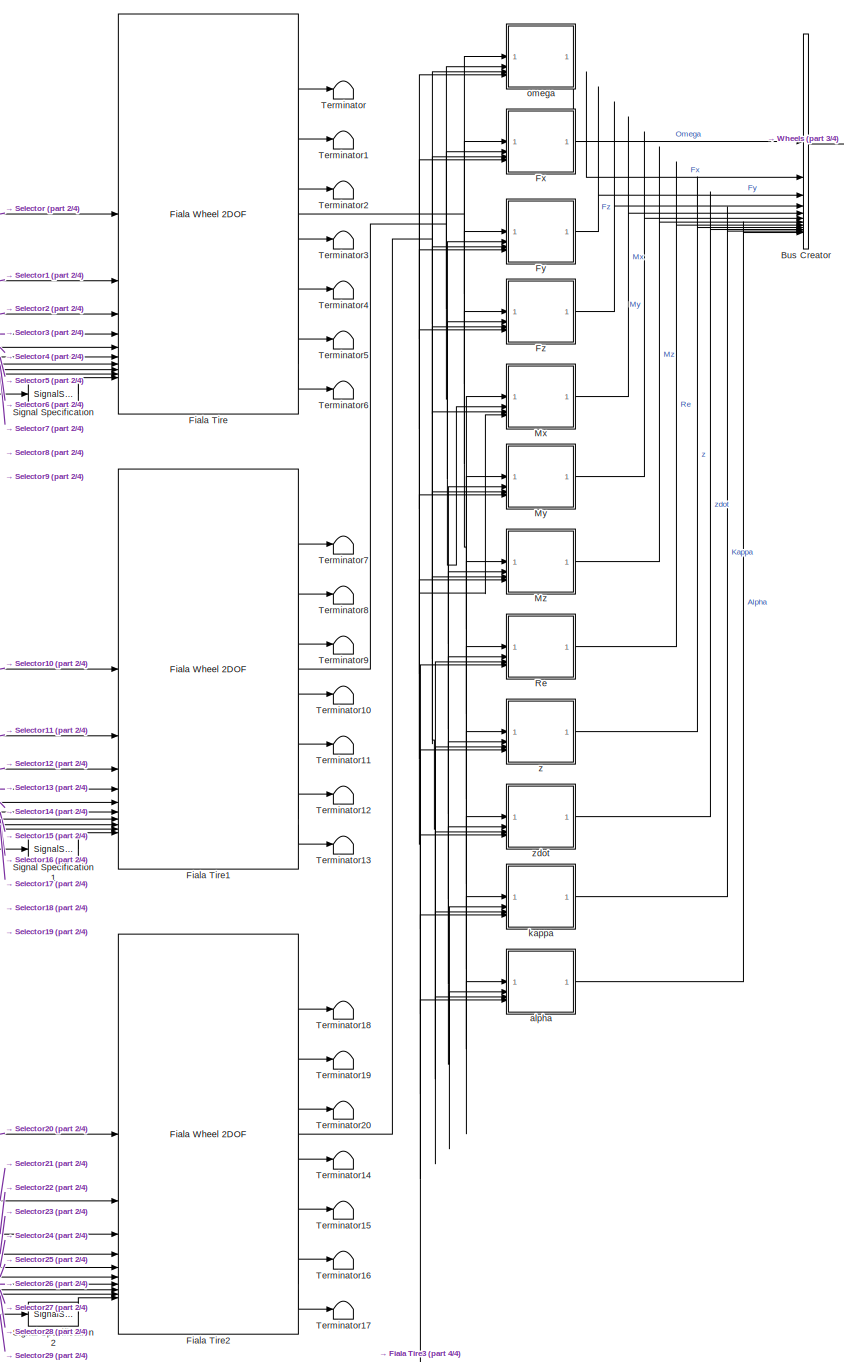
[diagram: Subsystem/Wheels and Tires/VDBS/Tires/Fiala Tires - part 1/4, center side, full height]
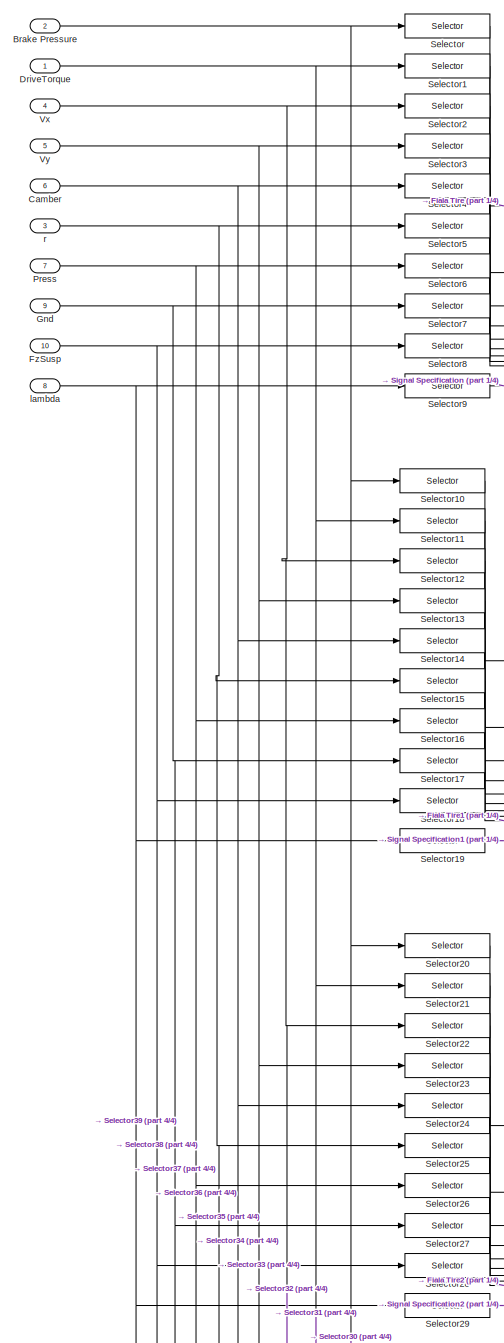
[diagram: Subsystem/Wheels and Tires/VDBS/Tires/Fiala Tires - part 2/4, left side, full height]
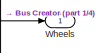
[diagram: Subsystem/Wheels and Tires/VDBS/Tires/Fiala Tires - part 3/4, top right region]
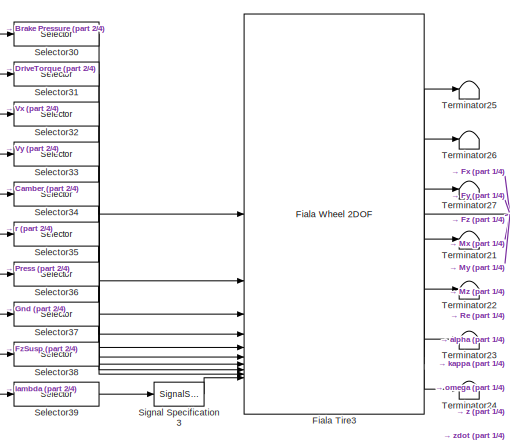
[diagram: Subsystem/Wheels and Tires/VDBS/Tires/Fiala Tires - part 4/4, bottom center region]
BLOCK [SubSystem] Subsystem/Wheels and Tires/VDBS/Tires/Fiala Tires
  VariantControl = 1
BLOCK [SubSystem] Subsystem/Wheels and Tires/VDBS/Tires/Fiala Tires Vector
  VariantControl = 3
BLOCK [Inport] Subsystem/Wheels and Tires/VDBS/Tires/Fiala Tires Vector/Brake Pressure
  Port = 2
BLOCK [Inport] Subsystem/Wheels and Tires/VDBS/Tires/Fiala Tires Vector/Camber
  Port = 6
BLOCK [Inport] Subsystem/Wheels and Tires/VDBS/Tires/Fiala Tires Vector/DriveTorque
BLOCK [Reference] Subsystem/Wheels and Tires/VDBS/Tires/Fiala Tires Vector/Fiala Tire  REF=vehdynlibtire/Fiala Wheel 2DOF
  SourceBlock = vehdynlibtire/Fiala Wheel 2DOF
  SourceType = Fiala Wheel 2DOF
BLOCK [Inport] Subsystem/Wheels and Tires/VDBS/Tires/Fiala Tires Vector/FzSusp
  Port = 10
BLOCK [Inport] Subsystem/Wheels and Tires/VDBS/Tires/Fiala Tires Vector/Gnd
  Port = 9
BLOCK [Inport] Subsystem/Wheels and Tires/VDBS/Tires/Fiala Tires Vector/Press
  Port = 7
  Unit = Pa
BLOCK [Reshape] Subsystem/Wheels and Tires/VDBS/Tires/Fiala Tires Vector/Reshape
BLOCK [Selector] Subsystem/Wheels and Tires/VDBS/Tires/Fiala Tires Vector/Selector9
  IndexOptions = Index vector (dialog),Select all
  Indices = 5,1
  InputPortWidth = 4
  NumberOfDimensions = 2
  OutputSizes = 1,1
BLOCK [SignalSpecification] Subsystem/Wheels and Tires/VDBS/Tires/Fiala Tires Vector/Signal Specification
  Unit = 1
BLOCK [Terminator] Subsystem/Wheels and Tires/VDBS/Tires/Fiala Tires Vector/Terminator
BLOCK [Terminator] Subsystem/Wheels and Tires/VDBS/Tires/Fiala Tires Vector/Terminator1
BLOCK [Terminator] Subsystem/Wheels and Tires/VDBS/Tires/Fiala Tires Vector/Terminator2
BLOCK [Terminator] Subsystem/Wheels and Tires/VDBS/Tires/Fiala Tires Vector/Terminator3
BLOCK [Terminator] Subsystem/Wheels and Tires/VDBS/Tires/Fiala Tires Vector/Terminator4
BLOCK [Terminator] Subsystem/Wheels and Tires/VDBS/Tires/Fiala Tires Vector/Terminator5
BLOCK [Terminator] Subsystem/Wheels and Tires/VDBS/Tires/Fiala Tires Vector/Terminator6
BLOCK [Inport] Subsystem/Wheels and Tires/VDBS/Tires/Fiala Tires Vector/Vx
  Port = 4
BLOCK [Inport] Subsystem/Wheels and Tires/VDBS/Tires/Fiala Tires Vector/Vy
  Port = 5
BLOCK [Outport] Subsystem/Wheels and Tires/VDBS/Tires/Fiala Tires Vector/Wheels
  VectorParamsAs1DForOutWhenUnconnected = off
BLOCK [Inport] Subsystem/Wheels and Tires/VDBS/Tires/Fiala Tires Vector/lambda
  Port = 8
  Unit = 1
BLOCK [Inport] Subsystem/Wheels and Tires/VDBS/Tires/Fiala Tires Vector/r
  Port = 3
BLOCK [Inport] Subsystem/Wheels and Tires/VDBS/Tires/Fiala Tires/Brake Pressure
  Port = 2
BLOCK [BusCreator] Subsystem/Wheels and Tires/VDBS/Tires/Fiala Tires/Bus Creator
  DisplayOption = bar
  InheritFromInputs = on
  Inputs = 12
BLOCK [Inport] Subsystem/Wheels and Tires/VDBS/Tires/Fiala Tires/Camber
  Port = 6
BLOCK [Inport] Subsystem/Wheels and Tires/VDBS/Tires/Fiala Tires/DriveTorque
BLOCK [Reference] Subsystem/Wheels and Tires/VDBS/Tires/Fiala Tires/Fiala Tire  REF=vehdynlibtire/Fiala Wheel 2DOF
  SourceBlock = vehdynlibtire/Fiala Wheel 2DOF
  SourceType = Fiala Wheel 2DOF
BLOCK [Reference] Subsystem/Wheels and Tires/VDBS/Tires/Fiala Tires/Fiala Tire1  REF=vehdynlibtire/Fiala Wheel 2DOF
  SourceBlock = vehdynlibtire/Fiala Wheel 2DOF
  SourceType = Fiala Wheel 2DOF
BLOCK [Reference] Subsystem/Wheels and Tires/VDBS/Tires/Fiala Tires/Fiala Tire2  REF=vehdynlibtire/Fiala Wheel 2DOF
  SourceBlock = vehdynlibtire/Fiala Wheel 2DOF
  SourceType = Fiala Wheel 2DOF
BLOCK [Reference] Subsystem/Wheels and Tires/VDBS/Tires/Fiala Tires/Fiala Tire3  REF=vehdynlibtire/Fiala Wheel 2DOF
  SourceBlock = vehdynlibtire/Fiala Wheel 2DOF
  SourceType = Fiala Wheel 2DOF
BLOCK [SubSystem] Subsystem/Wheels and Tires/VDBS/Tires/Fiala Tires/Fx
BLOCK [BusSelector] Subsystem/Wheels and Tires/VDBS/Tires/Fiala Tires/Fx/Bus Selector
  OutputSignals = Fx
BLOCK [BusSelector] Subsystem/Wheels and Tires/VDBS/Tires/Fiala Tires/Fx/Bus Selector1
  OutputSignals = Fx
BLOCK [BusSelector] Subsystem/Wheels and Tires/VDBS/Tires/Fiala Tires/Fx/Bus Selector2
  OutputSignals = Fx
BLOCK [BusSelector] Subsystem/Wheels and Tires/VDBS/Tires/Fiala Tires/Fx/Bus Selector3
  OutputSignals = Fx
BLOCK [Inport] Subsystem/Wheels and Tires/VDBS/Tires/Fiala Tires/Fx/In1
BLOCK [Inport] Subsystem/Wheels and Tires/VDBS/Tires/Fiala Tires/Fx/In2
  Port = 2
BLOCK [Inport] Subsystem/Wheels and Tires/VDBS/Tires/Fiala Tires/Fx/In3
  Port = 3
BLOCK [Inport] Subsystem/Wheels and Tires/VDBS/Tires/Fiala Tires/Fx/In4
  Port = 4
BLOCK [Outport] Subsystem/Wheels and Tires/VDBS/Tires/Fiala Tires/Fx/Out1
  VectorParamsAs1DForOutWhenUnconnected = off
BLOCK [Concatenate] Subsystem/Wheels and Tires/VDBS/Tires/Fiala Tires/Fx/Vector Concatenate
  NumInputs = 4
BLOCK [SubSystem] Subsystem/Wheels and Tires/VDBS/Tires/Fiala Tires/Fy
BLOCK [BusSelector] Subsystem/Wheels and Tires/VDBS/Tires/Fiala Tires/Fy/Bus Selector
  OutputSignals = Fy
BLOCK [BusSelector] Subsystem/Wheels and Tires/VDBS/Tires/Fiala Tires/Fy/Bus Selector1
  OutputSignals = Fy
BLOCK [BusSelector] Subsystem/Wheels and Tires/VDBS/Tires/Fiala Tires/Fy/Bus Selector2
  OutputSignals = Fy
BLOCK [BusSelector] Subsystem/Wheels and Tires/VDBS/Tires/Fiala Tires/Fy/Bus Selector3
  OutputSignals = Fy
BLOCK [Inport] Subsystem/Wheels and Tires/VDBS/Tires/Fiala Tires/Fy/In1
BLOCK [Inport] Subsystem/Wheels and Tires/VDBS/Tires/Fiala Tires/Fy/In2
  Port = 2
BLOCK [Inport] Subsystem/Wheels and Tires/VDBS/Tires/Fiala Tires/Fy/In3
  Port = 3
BLOCK [Inport] Subsystem/Wheels and Tires/VDBS/Tires/Fiala Tires/Fy/In4
  Port = 4
BLOCK [Outport] Subsystem/Wheels and Tires/VDBS/Tires/Fiala Tires/Fy/Out1
  VectorParamsAs1DForOutWhenUnconnected = off
BLOCK [Concatenate] Subsystem/Wheels and Tires/VDBS/Tires/Fiala Tires/Fy/Vector Concatenate
  NumInputs = 4
BLOCK [SubSystem] Subsystem/Wheels and Tires/VDBS/Tires/Fiala Tires/Fz
BLOCK [BusSelector] Subsystem/Wheels and Tires/VDBS/Tires/Fiala Tires/Fz/Bus Selector
  OutputSignals = Fz
BLOCK [BusSelector] Subsystem/Wheels and Tires/VDBS/Tires/Fiala Tires/Fz/Bus Selector1
  OutputSignals = Fz
BLOCK [BusSelector] Subsystem/Wheels and Tires/VDBS/Tires/Fiala Tires/Fz/Bus Selector2
  OutputSignals = Fz
BLOCK [BusSelector] Subsystem/Wheels and Tires/VDBS/Tires/Fiala Tires/Fz/Bus Selector3
  OutputSignals = Fz
BLOCK [Inport] Subsystem/Wheels and Tires/VDBS/Tires/Fiala Tires/Fz/In1
BLOCK [Inport] Subsystem/Wheels and Tires/VDBS/Tires/Fiala Tires/Fz/In2
  Port = 2
BLOCK [Inport] Subsystem/Wheels and Tires/VDBS/Tires/Fiala Tires/Fz/In3
  Port = 3
BLOCK [Inport] Subsystem/Wheels and Tires/VDBS/Tires/Fiala Tires/Fz/In4
  Port = 4
BLOCK [Outport] Subsystem/Wheels and Tires/VDBS/Tires/Fiala Tires/Fz/Out1
  VectorParamsAs1DForOutWhenUnconnected = off
BLOCK [Concatenate] Subsystem/Wheels and Tires/VDBS/Tires/Fiala Tires/Fz/Vector Concatenate
  NumInputs = 4
BLOCK [Inport] Subsystem/Wheels and Tires/VDBS/Tires/Fiala Tires/FzSusp
  Port = 10
BLOCK [Inport] Subsystem/Wheels and Tires/VDBS/Tires/Fiala Tires/Gnd
  Port = 9
BLOCK [SubSystem] Subsystem/Wheels and Tires/VDBS/Tires/Fiala Tires/Mx
BLOCK [BusSelector] Subsystem/Wheels and Tires/VDBS/Tires/Fiala Tires/Mx/Bus Selector
  OutputSignals = Mx
BLOCK [BusSelector] Subsystem/Wheels and Tires/VDBS/Tires/Fiala Tires/Mx/Bus Selector1
  OutputSignals = Mx
BLOCK [BusSelector] Subsystem/Wheels and Tires/VDBS/Tires/Fiala Tires/Mx/Bus Selector2
  OutputSignals = Mx
BLOCK [BusSelector] Subsystem/Wheels and Tires/VDBS/Tires/Fiala Tires/Mx/Bus Selector3
  OutputSignals = Mx
BLOCK [Inport] Subsystem/Wheels and Tires/VDBS/Tires/Fiala Tires/Mx/In1
BLOCK [Inport] Subsystem/Wheels and Tires/VDBS/Tires/Fiala Tires/Mx/In2
  Port = 2
BLOCK [Inport] Subsystem/Wheels and Tires/VDBS/Tires/Fiala Tires/Mx/In3
  Port = 3
BLOCK [Inport] Subsystem/Wheels and Tires/VDBS/Tires/Fiala Tires/Mx/In4
  Port = 4
BLOCK [Outport] Subsystem/Wheels and Tires/VDBS/Tires/Fiala Tires/Mx/Out1
  VectorParamsAs1DForOutWhenUnconnected = off
BLOCK [Concatenate] Subsystem/Wheels and Tires/VDBS/Tires/Fiala Tires/Mx/Vector Concatenate
  NumInputs = 4
BLOCK [SubSystem] Subsystem/Wheels and Tires/VDBS/Tires/Fiala Tires/My
BLOCK [BusSelector] Subsystem/Wheels and Tires/VDBS/Tires/Fiala Tires/My/Bus Selector
  OutputSignals = My
BLOCK [BusSelector] Subsystem/Wheels and Tires/VDBS/Tires/Fiala Tires/My/Bus Selector1
  OutputSignals = My
BLOCK [BusSelector] Subsystem/Wheels and Tires/VDBS/Tires/Fiala Tires/My/Bus Selector2
  OutputSignals = My
BLOCK [BusSelector] Subsystem/Wheels and Tires/VDBS/Tires/Fiala Tires/My/Bus Selector3
  OutputSignals = My
BLOCK [Inport] Subsystem/Wheels and Tires/VDBS/Tires/Fiala Tires/My/In1
BLOCK [Inport] Subsystem/Wheels and Tires/VDBS/Tires/Fiala Tires/My/In2
  Port = 2
BLOCK [Inport] Subsystem/Wheels and Tires/VDBS/Tires/Fiala Tires/My/In3
  Port = 3
BLOCK [Inport] Subsystem/Wheels and Tires/VDBS/Tires/Fiala Tires/My/In4
  Port = 4
BLOCK [Outport] Subsystem/Wheels and Tires/VDBS/Tires/Fiala Tires/My/Out1
  VectorParamsAs1DForOutWhenUnconnected = off
BLOCK [Concatenate] Subsystem/Wheels and Tires/VDBS/Tires/Fiala Tires/My/Vector Concatenate
  NumInputs = 4
BLOCK [SubSystem] Subsystem/Wheels and Tires/VDBS/Tires/Fiala Tires/Mz
BLOCK [BusSelector] Subsystem/Wheels and Tires/VDBS/Tires/Fiala Tires/Mz/Bus Selector
  OutputSignals = Mz
BLOCK [BusSelector] Subsystem/Wheels and Tires/VDBS/Tires/Fiala Tires/Mz/Bus Selector1
  OutputSignals = Mz
BLOCK [BusSelector] Subsystem/Wheels and Tires/VDBS/Tires/Fiala Tires/Mz/Bus Selector2
  OutputSignals = Mz
BLOCK [BusSelector] Subsystem/Wheels and Tires/VDBS/Tires/Fiala Tires/Mz/Bus Selector3
  OutputSignals = Mz
BLOCK [Inport] Subsystem/Wheels and Tires/VDBS/Tires/Fiala Tires/Mz/In1
BLOCK [Inport] Subsystem/Wheels and Tires/VDBS/Tires/Fiala Tires/Mz/In2
  Port = 2
BLOCK [Inport] Subsystem/Wheels and Tires/VDBS/Tires/Fiala Tires/Mz/In3
  Port = 3
BLOCK [Inport] Subsystem/Wheels and Tires/VDBS/Tires/Fiala Tires/Mz/In4
  Port = 4
BLOCK [Outport] Subsystem/Wheels and Tires/VDBS/Tires/Fiala Tires/Mz/Out1
  VectorParamsAs1DForOutWhenUnconnected = off
BLOCK [Concatenate] Subsystem/Wheels and Tires/VDBS/Tires/Fiala Tires/Mz/Vector Concatenate
  NumInputs = 4
BLOCK [Inport] Subsystem/Wheels and Tires/VDBS/Tires/Fiala Tires/Press
  Port = 7
  Unit = Pa
BLOCK [SubSystem] Subsystem/Wheels and Tires/VDBS/Tires/Fiala Tires/Re
BLOCK [BusSelector] Subsystem/Wheels and Tires/VDBS/Tires/Fiala Tires/Re/Bus Selector
  OutputSignals = Re
BLOCK [BusSelector] Subsystem/Wheels and Tires/VDBS/Tires/Fiala Tires/Re/Bus Selector1
  OutputSignals = Re
BLOCK [BusSelector] Subsystem/Wheels and Tires/VDBS/Tires/Fiala Tires/Re/Bus Selector2
  OutputSignals = Re
BLOCK [BusSelector] Subsystem/Wheels and Tires/VDBS/Tires/Fiala Tires/Re/Bus Selector3
  OutputSignals = Re
BLOCK [Inport] Subsystem/Wheels and Tires/VDBS/Tires/Fiala Tires/Re/In1
BLOCK [Inport] Subsystem/Wheels and Tires/VDBS/Tires/Fiala Tires/Re/In2
  Port = 2
BLOCK [Inport] Subsystem/Wheels and Tires/VDBS/Tires/Fiala Tires/Re/In3
  Port = 3
BLOCK [Inport] Subsystem/Wheels and Tires/VDBS/Tires/Fiala Tires/Re/In4
  Port = 4
BLOCK [Outport] Subsystem/Wheels and Tires/VDBS/Tires/Fiala Tires/Re/Out1
  VectorParamsAs1DForOutWhenUnconnected = off
BLOCK [Concatenate] Subsystem/Wheels and Tires/VDBS/Tires/Fiala Tires/Re/Vector Concatenate
  NumInputs = 4
BLOCK [Selector] Subsystem/Wheels and Tires/VDBS/Tires/Fiala Tires/Selector
  IndexOptions = Index vector (dialog)
  Indices = 1
  InputPortWidth = 4
  OutputSizes = 1
BLOCK [Selector] Subsystem/Wheels and Tires/VDBS/Tires/Fiala Tires/Selector1
  IndexOptions = Index vector (dialog)
  Indices = 1
  InputPortWidth = 4
  OutputSizes = 1
BLOCK [Selector] Subsystem/Wheels and Tires/VDBS/Tires/Fiala Tires/Selector10
  IndexOptions = Index vector (dialog)
  Indices = 2
  InputPortWidth = 4
  OutputSizes = 1
BLOCK [Selector] Subsystem/Wheels and Tires/VDBS/Tires/Fiala Tires/Selector11
  IndexOptions = Index vector (dialog)
  Indices = 2
  InputPortWidth = 4
  OutputSizes = 1
BLOCK [Selector] Subsystem/Wheels and Tires/VDBS/Tires/Fiala Tires/Selector12
  IndexOptions = Index vector (dialog)
  Indices = 2
  InputPortWidth = 4
  OutputSizes = 1
BLOCK [Selector] Subsystem/Wheels and Tires/VDBS/Tires/Fiala Tires/Selector13
  IndexOptions = Index vector (dialog)
  Indices = 2
  InputPortWidth = 4
  OutputSizes = 1
BLOCK [Selector] Subsystem/Wheels and Tires/VDBS/Tires/Fiala Tires/Selector14
  IndexOptions = Index vector (dialog)
  Indices = 2
  InputPortWidth = 4
  OutputSizes = 1
BLOCK [Selector] Subsystem/Wheels and Tires/VDBS/Tires/Fiala Tires/Selector15
  IndexOptions = Index vector (dialog)
  Indices = 2
  InputPortWidth = 4
  OutputSizes = 1
BLOCK [Selector] Subsystem/Wheels and Tires/VDBS/Tires/Fiala Tires/Selector16
  IndexOptions = Index vector (dialog)
  Indices = 2
  InputPortWidth = 4
  OutputSizes = 1
BLOCK [Selector] Subsystem/Wheels and Tires/VDBS/Tires/Fiala Tires/Selector17
  IndexOptions = Index vector (dialog)
  Indices = 2
  InputPortWidth = 4
  OutputSizes = 1
BLOCK [Selector] Subsystem/Wheels and Tires/VDBS/Tires/Fiala Tires/Selector18
  IndexOptions = Index vector (dialog)
  Indices = 2
  InputPortWidth = 4
  OutputSizes = 1
BLOCK [Selector] Subsystem/Wheels and Tires/VDBS/Tires/Fiala Tires/Selector19
  IndexOptions = Index vector (dialog),Index vector (dialog)
  Indices = 5,2
  InputPortWidth = 4
  NumberOfDimensions = 2
  OutputSizes = 1,1
BLOCK [Selector] Subsystem/Wheels and Tires/VDBS/Tires/Fiala Tires/Selector2
  IndexOptions = Index vector (dialog)
  Indices = 1
  InputPortWidth = 4
  OutputSizes = 1
BLOCK [Selector] Subsystem/Wheels and Tires/VDBS/Tires/Fiala Tires/Selector20
  IndexOptions = Index vector (dialog)
  Indices = 3
  InputPortWidth = 4
  OutputSizes = 1
BLOCK [Selector] Subsystem/Wheels and Tires/VDBS/Tires/Fiala Tires/Selector21
  IndexOptions = Index vector (dialog)
  Indices = 3
  InputPortWidth = 4
  OutputSizes = 1
BLOCK [Selector] Subsystem/Wheels and Tires/VDBS/Tires/Fiala Tires/Selector22
  IndexOptions = Index vector (dialog)
  Indices = 3
  InputPortWidth = 4
  OutputSizes = 1
BLOCK [Selector] Subsystem/Wheels and Tires/VDBS/Tires/Fiala Tires/Selector23
  IndexOptions = Index vector (dialog)
  Indices = 3
  InputPortWidth = 4
  OutputSizes = 1
BLOCK [Selector] Subsystem/Wheels and Tires/VDBS/Tires/Fiala Tires/Selector24
  IndexOptions = Index vector (dialog)
  Indices = 3
  InputPortWidth = 4
  OutputSizes = 1
BLOCK [Selector] Subsystem/Wheels and Tires/VDBS/Tires/Fiala Tires/Selector25
  IndexOptions = Index vector (dialog)
  Indices = 3
  InputPortWidth = 4
  OutputSizes = 1
BLOCK [Selector] Subsystem/Wheels and Tires/VDBS/Tires/Fiala Tires/Selector26
  IndexOptions = Index vector (dialog)
  Indices = 3
  InputPortWidth = 4
  OutputSizes = 1
BLOCK [Selector] Subsystem/Wheels and Tires/VDBS/Tires/Fiala Tires/Selector27
  IndexOptions = Index vector (dialog)
  Indices = 3
  InputPortWidth = 4
  OutputSizes = 1
BLOCK [Selector] Subsystem/Wheels and Tires/VDBS/Tires/Fiala Tires/Selector28
  IndexOptions = Index vector (dialog)
  Indices = 3
  InputPortWidth = 4
  OutputSizes = 1
BLOCK [Selector] Subsystem/Wheels and Tires/VDBS/Tires/Fiala Tires/Selector29
  IndexOptions = Index vector (dialog),Index vector (dialog)
  Indices = 5,3
  InputPortWidth = 4
  NumberOfDimensions = 2
  OutputSizes = 1,1
BLOCK [Selector] Subsystem/Wheels and Tires/VDBS/Tires/Fiala Tires/Selector3
  IndexOptions = Index vector (dialog)
  Indices = 1
  InputPortWidth = 4
  OutputSizes = 1
BLOCK [Selector] Subsystem/Wheels and Tires/VDBS/Tires/Fiala Tires/Selector30
  IndexOptions = Index vector (dialog)
  Indices = 4
  InputPortWidth = 4
  OutputSizes = 1
BLOCK [Selector] Subsystem/Wheels and Tires/VDBS/Tires/Fiala Tires/Selector31
  IndexOptions = Index vector (dialog)
  Indices = 4
  InputPortWidth = 4
  OutputSizes = 1
BLOCK [Selector] Subsystem/Wheels and Tires/VDBS/Tires/Fiala Tires/Selector32
  IndexOptions = Index vector (dialog)
  Indices = 4
  InputPortWidth = 4
  OutputSizes = 1
BLOCK [Selector] Subsystem/Wheels and Tires/VDBS/Tires/Fiala Tires/Selector33
  IndexOptions = Index vector (dialog)
  Indices = 4
  InputPortWidth = 4
  OutputSizes = 1
BLOCK [Selector] Subsystem/Wheels and Tires/VDBS/Tires/Fiala Tires/Selector34
  IndexOptions = Index vector (dialog)
  Indices = 4
  InputPortWidth = 4
  OutputSizes = 1
BLOCK [Selector] Subsystem/Wheels and Tires/VDBS/Tires/Fiala Tires/Selector35
  IndexOptions = Index vector (dialog)
  Indices = 4
  InputPortWidth = 4
  OutputSizes = 1
BLOCK [Selector] Subsystem/Wheels and Tires/VDBS/Tires/Fiala Tires/Selector36
  IndexOptions = Index vector (dialog)
  Indices = 4
  InputPortWidth = 4
  OutputSizes = 1
BLOCK [Selector] Subsystem/Wheels and Tires/VDBS/Tires/Fiala Tires/Selector37
  IndexOptions = Index vector (dialog)
  Indices = 4
  InputPortWidth = 4
  OutputSizes = 1
BLOCK [Selector] Subsystem/Wheels and Tires/VDBS/Tires/Fiala Tires/Selector38
  IndexOptions = Index vector (dialog)
  Indices = 4
  InputPortWidth = 4
  OutputSizes = 1
BLOCK [Selector] Subsystem/Wheels and Tires/VDBS/Tires/Fiala Tires/Selector39
  IndexOptions = Index vector (dialog),Index vector (dialog)
  Indices = 5,4
  InputPortWidth = 4
  NumberOfDimensions = 2
  OutputSizes = 1,1
BLOCK [Selector] Subsystem/Wheels and Tires/VDBS/Tires/Fiala Tires/Selector4
  IndexOptions = Index vector (dialog)
  Indices = 1
  InputPortWidth = 4
  OutputSizes = 1
BLOCK [Selector] Subsystem/Wheels and Tires/VDBS/Tires/Fiala Tires/Selector5
  IndexOptions = Index vector (dialog)
  Indices = 1
  InputPortWidth = 4
  OutputSizes = 1
BLOCK [Selector] Subsystem/Wheels and Tires/VDBS/Tires/Fiala Tires/Selector6
  IndexOptions = Index vector (dialog)
  Indices = 1
  InputPortWidth = 4
  OutputSizes = 1
BLOCK [Selector] Subsystem/Wheels and Tires/VDBS/Tires/Fiala Tires/Selector7
  IndexOptions = Index vector (dialog)
  Indices = 1
  InputPortWidth = 4
  OutputSizes = 1
BLOCK [Selector] Subsystem/Wheels and Tires/VDBS/Tires/Fiala Tires/Selector8
  IndexOptions = Index vector (dialog)
  Indices = 1
  InputPortWidth = 4
  OutputSizes = 1
BLOCK [Selector] Subsystem/Wheels and Tires/VDBS/Tires/Fiala Tires/Selector9
  IndexOptions = Index vector (dialog),Index vector (dialog)
  Indices = 5,1
  InputPortWidth = 4
  NumberOfDimensions = 2
  OutputSizes = 1,1
BLOCK [SignalSpecification] Subsystem/Wheels and Tires/VDBS/Tires/Fiala Tires/Signal Specification
  Unit = 1
BLOCK [SignalSpecification] Subsystem/Wheels and Tires/VDBS/Tires/Fiala Tires/Signal Specification1
  Unit = 1
BLOCK [SignalSpecification] Subsystem/Wheels and Tires/VDBS/Tires/Fiala Tires/Signal Specification2
  Unit = 1
BLOCK [SignalSpecification] Subsystem/Wheels and Tires/VDBS/Tires/Fiala Tires/Signal Specification3
  Unit = 1
BLOCK [Terminator] Subsystem/Wheels and Tires/VDBS/Tires/Fiala Tires/Terminator
BLOCK [Terminator] Subsystem/Wheels and Tires/VDBS/Tires/Fiala Tires/Terminator1
BLOCK [Terminator] Subsystem/Wheels and Tires/VDBS/Tires/Fiala Tires/Terminator10
BLOCK [Terminator] Subsystem/Wheels and Tires/VDBS/Tires/Fiala Tires/Terminator11
BLOCK [Terminator] Subsystem/Wheels and Tires/VDBS/Tires/Fiala Tires/Terminator12
BLOCK [Terminator] Subsystem/Wheels and Tires/VDBS/Tires/Fiala Tires/Terminator13
BLOCK [Terminator] Subsystem/Wheels and Tires/VDBS/Tires/Fiala Tires/Terminator14
BLOCK [Terminator] Subsystem/Wheels and Tires/VDBS/Tires/Fiala Tires/Terminator15
BLOCK [Terminator] Subsystem/Wheels and Tires/VDBS/Tires/Fiala Tires/Terminator16
BLOCK [Terminator] Subsystem/Wheels and Tires/VDBS/Tires/Fiala Tires/Terminator17
BLOCK [Terminator] Subsystem/Wheels and Tires/VDBS/Tires/Fiala Tires/Terminator18
BLOCK [Terminator] Subsystem/Wheels and Tires/VDBS/Tires/Fiala Tires/Terminator19
BLOCK [Terminator] Subsystem/Wheels and Tires/VDBS/Tires/Fiala Tires/Terminator2
BLOCK [Terminator] Subsystem/Wheels and Tires/VDBS/Tires/Fiala Tires/Terminator20
BLOCK [Terminator] Subsystem/Wheels and Tires/VDBS/Tires/Fiala Tires/Terminator21
BLOCK [Terminator] Subsystem/Wheels and Tires/VDBS/Tires/Fiala Tires/Terminator22
BLOCK [Terminator] Subsystem/Wheels and Tires/VDBS/Tires/Fiala Tires/Terminator23
BLOCK [Terminator] Subsystem/Wheels and Tires/VDBS/Tires/Fiala Tires/Terminator24
BLOCK [Terminator] Subsystem/Wheels and Tires/VDBS/Tires/Fiala Tires/Terminator25
BLOCK [Terminator] Subsystem/Wheels and Tires/VDBS/Tires/Fiala Tires/Terminator26
BLOCK [Terminator] Subsystem/Wheels and Tires/VDBS/Tires/Fiala Tires/Terminator27
BLOCK [Terminator] Subsystem/Wheels and Tires/VDBS/Tires/Fiala Tires/Terminator3
BLOCK [Terminator] Subsystem/Wheels and Tires/VDBS/Tires/Fiala Tires/Terminator4
BLOCK [Terminator] Subsystem/Wheels and Tires/VDBS/Tires/Fiala Tires/Terminator5
BLOCK [Terminator] Subsystem/Wheels and Tires/VDBS/Tires/Fiala Tires/Terminator6
BLOCK [Terminator] Subsystem/Wheels and Tires/VDBS/Tires/Fiala Tires/Terminator7
BLOCK [Terminator] Subsystem/Wheels and Tires/VDBS/Tires/Fiala Tires/Terminator8
BLOCK [Terminator] Subsystem/Wheels and Tires/VDBS/Tires/Fiala Tires/Terminator9
BLOCK [Inport] Subsystem/Wheels and Tires/VDBS/Tires/Fiala Tires/Vx
  Port = 4
BLOCK [Inport] Subsystem/Wheels and Tires/VDBS/Tires/Fiala Tires/Vy
  Port = 5
BLOCK [Outport] Subsystem/Wheels and Tires/VDBS/Tires/Fiala Tires/Wheels
  VectorParamsAs1DForOutWhenUnconnected = off
BLOCK [SubSystem] Subsystem/Wheels and Tires/VDBS/Tires/Fiala Tires/alpha
BLOCK [BusSelector] Subsystem/Wheels and Tires/VDBS/Tires/Fiala Tires/alpha/Bus Selector
  OutputSignals = Alpha
BLOCK [BusSelector] Subsystem/Wheels and Tires/VDBS/Tires/Fiala Tires/alpha/Bus Selector1
  OutputSignals = Alpha
BLOCK [BusSelector] Subsystem/Wheels and Tires/VDBS/Tires/Fiala Tires/alpha/Bus Selector2
  OutputSignals = Alpha
BLOCK [BusSelector] Subsystem/Wheels and Tires/VDBS/Tires/Fiala Tires/alpha/Bus Selector3
  OutputSignals = Alpha
BLOCK [Inport] Subsystem/Wheels and Tires/VDBS/Tires/Fiala Tires/alpha/In1
BLOCK [Inport] Subsystem/Wheels and Tires/VDBS/Tires/Fiala Tires/alpha/In2
  Port = 2
BLOCK [Inport] Subsystem/Wheels and Tires/VDBS/Tires/Fiala Tires/alpha/In3
  Port = 3
BLOCK [Inport] Subsystem/Wheels and Tires/VDBS/Tires/Fiala Tires/alpha/In4
  Port = 4
BLOCK [Outport] Subsystem/Wheels and Tires/VDBS/Tires/Fiala Tires/alpha/Out1
  VectorParamsAs1DForOutWhenUnconnected = off
BLOCK [Concatenate] Subsystem/Wheels and Tires/VDBS/Tires/Fiala Tires/alpha/Vector Concatenate
  NumInputs = 4
BLOCK [SubSystem] Subsystem/Wheels and Tires/VDBS/Tires/Fiala Tires/kappa
BLOCK [BusSelector] Subsystem/Wheels and Tires/VDBS/Tires/Fiala Tires/kappa/Bus Selector
  OutputSignals = Kappa
BLOCK [BusSelector] Subsystem/Wheels and Tires/VDBS/Tires/Fiala Tires/kappa/Bus Selector1
  OutputSignals = Kappa
BLOCK [BusSelector] Subsystem/Wheels and Tires/VDBS/Tires/Fiala Tires/kappa/Bus Selector2
  OutputSignals = Kappa
BLOCK [BusSelector] Subsystem/Wheels and Tires/VDBS/Tires/Fiala Tires/kappa/Bus Selector3
  OutputSignals = Kappa
BLOCK [Inport] Subsystem/Wheels and Tires/VDBS/Tires/Fiala Tires/kappa/In1
BLOCK [Inport] Subsystem/Wheels and Tires/VDBS/Tires/Fiala Tires/kappa/In2
  Port = 2
BLOCK [Inport] Subsystem/Wheels and Tires/VDBS/Tires/Fiala Tires/kappa/In3
  Port = 3
BLOCK [Inport] Subsystem/Wheels and Tires/VDBS/Tires/Fiala Tires/kappa/In4
  Port = 4
BLOCK [Outport] Subsystem/Wheels and Tires/VDBS/Tires/Fiala Tires/kappa/Out1
  VectorParamsAs1DForOutWhenUnconnected = off
BLOCK [Concatenate] Subsystem/Wheels and Tires/VDBS/Tires/Fiala Tires/kappa/Vector Concatenate
  NumInputs = 4
BLOCK [Inport] Subsystem/Wheels and Tires/VDBS/Tires/Fiala Tires/lambda
  Port = 8
  Unit = 1
BLOCK [SubSystem] Subsystem/Wheels and Tires/VDBS/Tires/Fiala Tires/omega
BLOCK [BusSelector] Subsystem/Wheels and Tires/VDBS/Tires/Fiala Tires/omega/Bus Selector
  OutputSignals = Omega
BLOCK [BusSelector] Subsystem/Wheels and Tires/VDBS/Tires/Fiala Tires/omega/Bus Selector1
  OutputSignals = Omega
BLOCK [BusSelector] Subsystem/Wheels and Tires/VDBS/Tires/Fiala Tires/omega/Bus Selector2
  OutputSignals = Omega
BLOCK [BusSelector] Subsystem/Wheels and Tires/VDBS/Tires/Fiala Tires/omega/Bus Selector3
  OutputSignals = Omega
BLOCK [Inport] Subsystem/Wheels and Tires/VDBS/Tires/Fiala Tires/omega/In1
BLOCK [Inport] Subsystem/Wheels and Tires/VDBS/Tires/Fiala Tires/omega/In2
  Port = 2
BLOCK [Inport] Subsystem/Wheels and Tires/VDBS/Tires/Fiala Tires/omega/In3
  Port = 3
BLOCK [Inport] Subsystem/Wheels and Tires/VDBS/Tires/Fiala Tires/omega/In4
  Port = 4
BLOCK [Outport] Subsystem/Wheels and Tires/VDBS/Tires/Fiala Tires/omega/Out1
  VectorParamsAs1DForOutWhenUnconnected = off
BLOCK [Concatenate] Subsystem/Wheels and Tires/VDBS/Tires/Fiala Tires/omega/Vector Concatenate
  NumInputs = 4
BLOCK [Inport] Subsystem/Wheels and Tires/VDBS/Tires/Fiala Tires/r
  Port = 3
BLOCK [SubSystem] Subsystem/Wheels and Tires/VDBS/Tires/Fiala Tires/z
BLOCK [BusSelector] Subsystem/Wheels and Tires/VDBS/Tires/Fiala Tires/z/Bus Selector
  OutputSignals = z
BLOCK [BusSelector] Subsystem/Wheels and Tires/VDBS/Tires/Fiala Tires/z/Bus Selector1
  OutputSignals = z
BLOCK [BusSelector] Subsystem/Wheels and Tires/VDBS/Tires/Fiala Tires/z/Bus Selector2
  OutputSignals = z
BLOCK [BusSelector] Subsystem/Wheels and Tires/VDBS/Tires/Fiala Tires/z/Bus Selector3
  OutputSignals = z
BLOCK [Inport] Subsystem/Wheels and Tires/VDBS/Tires/Fiala Tires/z/In1
BLOCK [Inport] Subsystem/Wheels and Tires/VDBS/Tires/Fiala Tires/z/In2
  Port = 2
BLOCK [Inport] Subsystem/Wheels and Tires/VDBS/Tires/Fiala Tires/z/In3
  Port = 3
BLOCK [Inport] Subsystem/Wheels and Tires/VDBS/Tires/Fiala Tires/z/In4
  Port = 4
BLOCK [Outport] Subsystem/Wheels and Tires/VDBS/Tires/Fiala Tires/z/Out1
  VectorParamsAs1DForOutWhenUnconnected = off
BLOCK [Concatenate] Subsystem/Wheels and Tires/VDBS/Tires/Fiala Tires/z/Vector Concatenate
  NumInputs = 4
BLOCK [SubSystem] Subsystem/Wheels and Tires/VDBS/Tires/Fiala Tires/zdot
BLOCK [BusSelector] Subsystem/Wheels and Tires/VDBS/Tires/Fiala Tires/zdot/Bus Selector
  OutputSignals = zdot
BLOCK [BusSelector] Subsystem/Wheels and Tires/VDBS/Tires/Fiala Tires/zdot/Bus Selector1
  OutputSignals = zdot
BLOCK [BusSelector] Subsystem/Wheels and Tires/VDBS/Tires/Fiala Tires/zdot/Bus Selector2
  OutputSignals = zdot
BLOCK [BusSelector] Subsystem/Wheels and Tires/VDBS/Tires/Fiala Tires/zdot/Bus Selector3
  OutputSignals = zdot
BLOCK [Inport] Subsystem/Wheels and Tires/VDBS/Tires/Fiala Tires/zdot/In1
BLOCK [Inport] Subsystem/Wheels and Tires/VDBS/Tires/Fiala Tires/zdot/In2
  Port = 2
BLOCK [Inport] Subsystem/Wheels and Tires/VDBS/Tires/Fiala Tires/zdot/In3
  Port = 3
BLOCK [Inport] Subsystem/Wheels and Tires/VDBS/Tires/Fiala Tires/zdot/In4
  Port = 4
BLOCK [Outport] Subsystem/Wheels and Tires/VDBS/Tires/Fiala Tires/zdot/Out1
  VectorParamsAs1DForOutWhenUnconnected = off
BLOCK [Concatenate] Subsystem/Wheels and Tires/VDBS/Tires/Fiala Tires/zdot/Vector Concatenate
  NumInputs = 4
BLOCK [Inport] Subsystem/Wheels and Tires/VDBS/Tires/FzSusp 
  Port = 10
BLOCK [Inport] Subsystem/Wheels and Tires/VDBS/Tires/Gnd 
  Port = 9
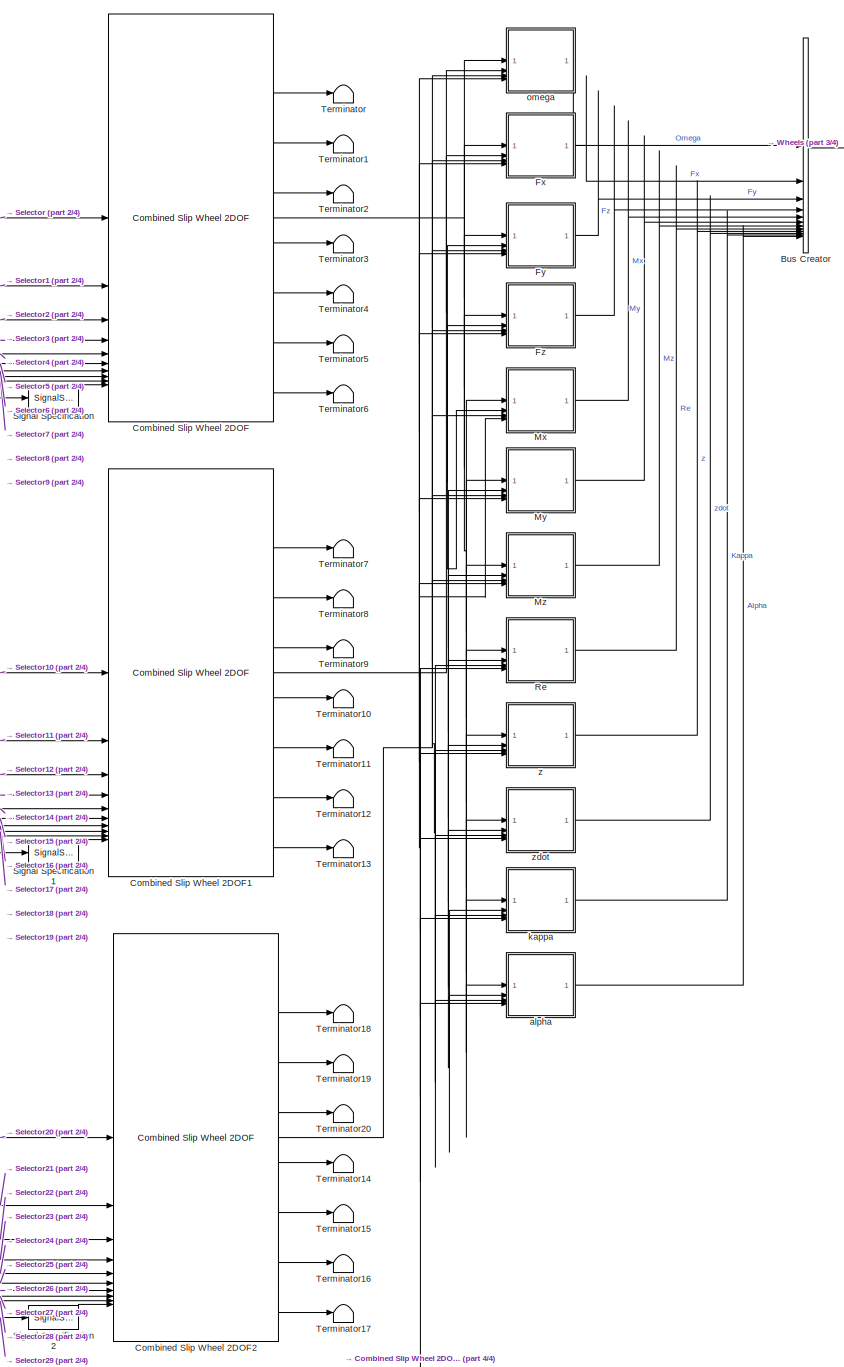
[diagram: Subsystem/Wheels and Tires/VDBS/Tires/MF Tires - part 1/4, center side, full height]
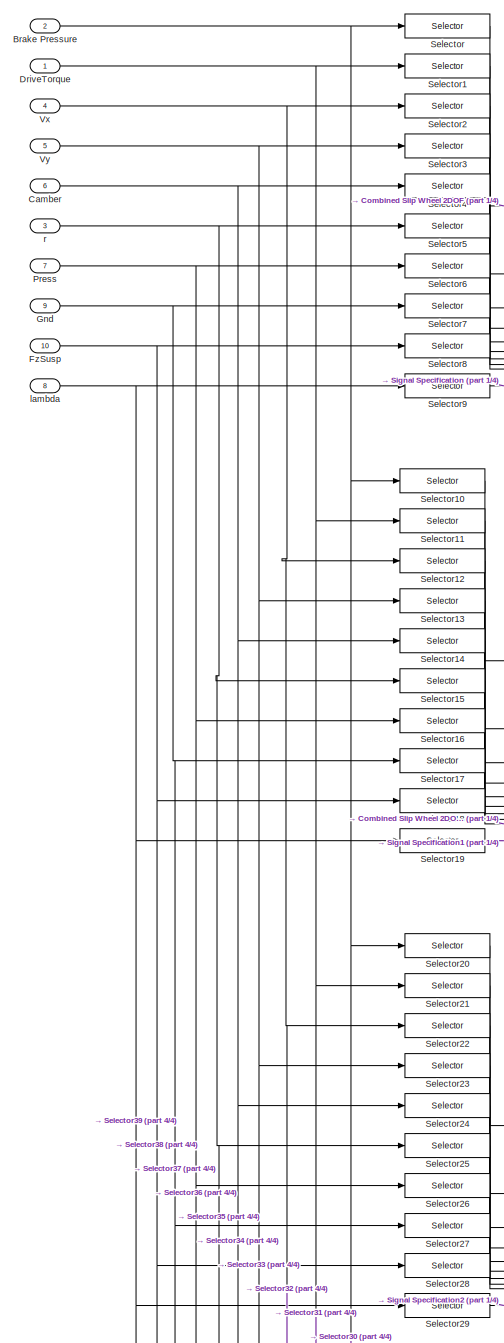
[diagram: Subsystem/Wheels and Tires/VDBS/Tires/MF Tires - part 2/4, left side, full height]
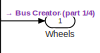
[diagram: Subsystem/Wheels and Tires/VDBS/Tires/MF Tires - part 3/4, top right region]
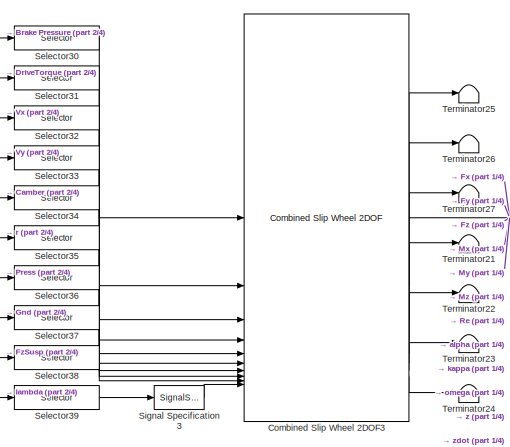
[diagram: Subsystem/Wheels and Tires/VDBS/Tires/MF Tires - part 4/4, bottom center region]
BLOCK [SubSystem] Subsystem/Wheels and Tires/VDBS/Tires/MF Tires
  VariantControl = 0
BLOCK [SubSystem] Subsystem/Wheels and Tires/VDBS/Tires/MF Tires Vector
  VariantControl = 2
BLOCK [Inport] Subsystem/Wheels and Tires/VDBS/Tires/MF Tires Vector/Brake Pressure
  Port = 2
BLOCK [Inport] Subsystem/Wheels and Tires/VDBS/Tires/MF Tires Vector/Camber
  Port = 6
BLOCK [Reference] Subsystem/Wheels and Tires/VDBS/Tires/MF Tires Vector/Combined Slip Wheel 2DOF  REF=vehdynlibtire/Combined Slip Wheel 2DOF
  SourceBlock = vehdynlibtire/Combined Slip Wheel 2DOF
  SourceType = Combined Slip Wheel 2DOF
BLOCK [Inport] Subsystem/Wheels and Tires/VDBS/Tires/MF Tires Vector/DriveTorque
BLOCK [Inport] Subsystem/Wheels and Tires/VDBS/Tires/MF Tires Vector/FzSusp
  Port = 10
BLOCK [Inport] Subsystem/Wheels and Tires/VDBS/Tires/MF Tires Vector/Gnd
  Port = 9
BLOCK [Inport] Subsystem/Wheels and Tires/VDBS/Tires/MF Tires Vector/Press
  Port = 7
  Unit = Pa
BLOCK [Terminator] Subsystem/Wheels and Tires/VDBS/Tires/MF Tires Vector/Terminator10
BLOCK [Terminator] Subsystem/Wheels and Tires/VDBS/Tires/MF Tires Vector/Terminator11
BLOCK [Terminator] Subsystem/Wheels and Tires/VDBS/Tires/MF Tires Vector/Terminator12
BLOCK [Terminator] Subsystem/Wheels and Tires/VDBS/Tires/MF Tires Vector/Terminator13
BLOCK [Terminator] Subsystem/Wheels and Tires/VDBS/Tires/MF Tires Vector/Terminator7
BLOCK [Terminator] Subsystem/Wheels and Tires/VDBS/Tires/MF Tires Vector/Terminator8
BLOCK [Terminator] Subsystem/Wheels and Tires/VDBS/Tires/MF Tires Vector/Terminator9
BLOCK [Inport] Subsystem/Wheels and Tires/VDBS/Tires/MF Tires Vector/Vx
  Port = 4
BLOCK [Inport] Subsystem/Wheels and Tires/VDBS/Tires/MF Tires Vector/Vy
  Port = 5
BLOCK [Outport] Subsystem/Wheels and Tires/VDBS/Tires/MF Tires Vector/Wheels
  VectorParamsAs1DForOutWhenUnconnected = off
BLOCK [Inport] Subsystem/Wheels and Tires/VDBS/Tires/MF Tires Vector/lambda
  Port = 8
  Unit = 1
BLOCK [Inport] Subsystem/Wheels and Tires/VDBS/Tires/MF Tires Vector/r
  Port = 3
BLOCK [Inport] Subsystem/Wheels and Tires/VDBS/Tires/MF Tires/Brake Pressure
  Port = 2
BLOCK [BusCreator] Subsystem/Wheels and Tires/VDBS/Tires/MF Tires/Bus Creator
  DisplayOption = bar
  InheritFromInputs = on
  Inputs = 12
BLOCK [Inport] Subsystem/Wheels and Tires/VDBS/Tires/MF Tires/Camber
  Port = 6
BLOCK [Reference] Subsystem/Wheels and Tires/VDBS/Tires/MF Tires/Combined Slip Wheel 2DOF  REF=vehdynlibtire/Combined Slip Wheel 2DOF
  SourceBlock = vehdynlibtire/Combined Slip Wheel 2DOF
  SourceType = Combined Slip Wheel 2DOF
BLOCK [Reference] Subsystem/Wheels and Tires/VDBS/Tires/MF Tires/Combined Slip Wheel 2DOF1  REF=vehdynlibtire/Combined Slip Wheel 2DOF
  SourceBlock = vehdynlibtire/Combined Slip Wheel 2DOF
  SourceType = Combined Slip Wheel 2DOF
BLOCK [Reference] Subsystem/Wheels and Tires/VDBS/Tires/MF Tires/Combined Slip Wheel 2DOF2  REF=vehdynlibtire/Combined Slip Wheel 2DOF
  SourceBlock = vehdynlibtire/Combined Slip Wheel 2DOF
  SourceType = Combined Slip Wheel 2DOF
BLOCK [Reference] Subsystem/Wheels and Tires/VDBS/Tires/MF Tires/Combined Slip Wheel 2DOF3  REF=vehdynlibtire/Combined Slip Wheel 2DOF
  SourceBlock = vehdynlibtire/Combined Slip Wheel 2DOF
  SourceType = Combined Slip Wheel 2DOF
BLOCK [Inport] Subsystem/Wheels and Tires/VDBS/Tires/MF Tires/DriveTorque
BLOCK [SubSystem] Subsystem/Wheels and Tires/VDBS/Tires/MF Tires/Fx
BLOCK [BusSelector] Subsystem/Wheels and Tires/VDBS/Tires/MF Tires/Fx/Bus Selector
  OutputSignals = Fx
BLOCK [BusSelector] Subsystem/Wheels and Tires/VDBS/Tires/MF Tires/Fx/Bus Selector1
  OutputSignals = Fx
BLOCK [BusSelector] Subsystem/Wheels and Tires/VDBS/Tires/MF Tires/Fx/Bus Selector2
  OutputSignals = Fx
BLOCK [BusSelector] Subsystem/Wheels and Tires/VDBS/Tires/MF Tires/Fx/Bus Selector3
  OutputSignals = Fx
BLOCK [Inport] Subsystem/Wheels and Tires/VDBS/Tires/MF Tires/Fx/In1
BLOCK [Inport] Subsystem/Wheels and Tires/VDBS/Tires/MF Tires/Fx/In2
  Port = 2
BLOCK [Inport] Subsystem/Wheels and Tires/VDBS/Tires/MF Tires/Fx/In3
  Port = 3
BLOCK [Inport] Subsystem/Wheels and Tires/VDBS/Tires/MF Tires/Fx/In4
  Port = 4
BLOCK [Outport] Subsystem/Wheels and Tires/VDBS/Tires/MF Tires/Fx/Out1
  VectorParamsAs1DForOutWhenUnconnected = off
BLOCK [Concatenate] Subsystem/Wheels and Tires/VDBS/Tires/MF Tires/Fx/Vector Concatenate
  NumInputs = 4
BLOCK [SubSystem] Subsystem/Wheels and Tires/VDBS/Tires/MF Tires/Fy
BLOCK [BusSelector] Subsystem/Wheels and Tires/VDBS/Tires/MF Tires/Fy/Bus Selector
  OutputSignals = Fy
BLOCK [BusSelector] Subsystem/Wheels and Tires/VDBS/Tires/MF Tires/Fy/Bus Selector1
  OutputSignals = Fy
BLOCK [BusSelector] Subsystem/Wheels and Tires/VDBS/Tires/MF Tires/Fy/Bus Selector2
  OutputSignals = Fy
BLOCK [BusSelector] Subsystem/Wheels and Tires/VDBS/Tires/MF Tires/Fy/Bus Selector3
  OutputSignals = Fy
BLOCK [Inport] Subsystem/Wheels and Tires/VDBS/Tires/MF Tires/Fy/In1
BLOCK [Inport] Subsystem/Wheels and Tires/VDBS/Tires/MF Tires/Fy/In2
  Port = 2
BLOCK [Inport] Subsystem/Wheels and Tires/VDBS/Tires/MF Tires/Fy/In3
  Port = 3
BLOCK [Inport] Subsystem/Wheels and Tires/VDBS/Tires/MF Tires/Fy/In4
  Port = 4
BLOCK [Outport] Subsystem/Wheels and Tires/VDBS/Tires/MF Tires/Fy/Out1
  VectorParamsAs1DForOutWhenUnconnected = off
BLOCK [Concatenate] Subsystem/Wheels and Tires/VDBS/Tires/MF Tires/Fy/Vector Concatenate
  NumInputs = 4
BLOCK [SubSystem] Subsystem/Wheels and Tires/VDBS/Tires/MF Tires/Fz
BLOCK [BusSelector] Subsystem/Wheels and Tires/VDBS/Tires/MF Tires/Fz/Bus Selector
  OutputSignals = Fz
BLOCK [BusSelector] Subsystem/Wheels and Tires/VDBS/Tires/MF Tires/Fz/Bus Selector1
  OutputSignals = Fz
BLOCK [BusSelector] Subsystem/Wheels and Tires/VDBS/Tires/MF Tires/Fz/Bus Selector2
  OutputSignals = Fz
BLOCK [BusSelector] Subsystem/Wheels and Tires/VDBS/Tires/MF Tires/Fz/Bus Selector3
  OutputSignals = Fz
BLOCK [Inport] Subsystem/Wheels and Tires/VDBS/Tires/MF Tires/Fz/In1
BLOCK [Inport] Subsystem/Wheels and Tires/VDBS/Tires/MF Tires/Fz/In2
  Port = 2
BLOCK [Inport] Subsystem/Wheels and Tires/VDBS/Tires/MF Tires/Fz/In3
  Port = 3
BLOCK [Inport] Subsystem/Wheels and Tires/VDBS/Tires/MF Tires/Fz/In4
  Port = 4
BLOCK [Outport] Subsystem/Wheels and Tires/VDBS/Tires/MF Tires/Fz/Out1
  VectorParamsAs1DForOutWhenUnconnected = off
BLOCK [Concatenate] Subsystem/Wheels and Tires/VDBS/Tires/MF Tires/Fz/Vector Concatenate
  NumInputs = 4
BLOCK [Inport] Subsystem/Wheels and Tires/VDBS/Tires/MF Tires/FzSusp
  Port = 10
BLOCK [Inport] Subsystem/Wheels and Tires/VDBS/Tires/MF Tires/Gnd
  Port = 9
BLOCK [SubSystem] Subsystem/Wheels and Tires/VDBS/Tires/MF Tires/Mx
BLOCK [BusSelector] Subsystem/Wheels and Tires/VDBS/Tires/MF Tires/Mx/Bus Selector
  OutputSignals = Mx
BLOCK [BusSelector] Subsystem/Wheels and Tires/VDBS/Tires/MF Tires/Mx/Bus Selector1
  OutputSignals = Mx
BLOCK [BusSelector] Subsystem/Wheels and Tires/VDBS/Tires/MF Tires/Mx/Bus Selector2
  OutputSignals = Mx
BLOCK [BusSelector] Subsystem/Wheels and Tires/VDBS/Tires/MF Tires/Mx/Bus Selector3
  OutputSignals = Mx
BLOCK [Inport] Subsystem/Wheels and Tires/VDBS/Tires/MF Tires/Mx/In1
BLOCK [Inport] Subsystem/Wheels and Tires/VDBS/Tires/MF Tires/Mx/In2
  Port = 2
BLOCK [Inport] Subsystem/Wheels and Tires/VDBS/Tires/MF Tires/Mx/In3
  Port = 3
BLOCK [Inport] Subsystem/Wheels and Tires/VDBS/Tires/MF Tires/Mx/In4
  Port = 4
BLOCK [Outport] Subsystem/Wheels and Tires/VDBS/Tires/MF Tires/Mx/Out1
  VectorParamsAs1DForOutWhenUnconnected = off
BLOCK [Concatenate] Subsystem/Wheels and Tires/VDBS/Tires/MF Tires/Mx/Vector Concatenate
  NumInputs = 4
BLOCK [SubSystem] Subsystem/Wheels and Tires/VDBS/Tires/MF Tires/My
BLOCK [BusSelector] Subsystem/Wheels and Tires/VDBS/Tires/MF Tires/My/Bus Selector
  OutputSignals = My
BLOCK [BusSelector] Subsystem/Wheels and Tires/VDBS/Tires/MF Tires/My/Bus Selector1
  OutputSignals = My
BLOCK [BusSelector] Subsystem/Wheels and Tires/VDBS/Tires/MF Tires/My/Bus Selector2
  OutputSignals = My
BLOCK [BusSelector] Subsystem/Wheels and Tires/VDBS/Tires/MF Tires/My/Bus Selector3
  OutputSignals = My
BLOCK [Inport] Subsystem/Wheels and Tires/VDBS/Tires/MF Tires/My/In1
BLOCK [Inport] Subsystem/Wheels and Tires/VDBS/Tires/MF Tires/My/In2
  Port = 2
BLOCK [Inport] Subsystem/Wheels and Tires/VDBS/Tires/MF Tires/My/In3
  Port = 3
BLOCK [Inport] Subsystem/Wheels and Tires/VDBS/Tires/MF Tires/My/In4
  Port = 4
BLOCK [Outport] Subsystem/Wheels and Tires/VDBS/Tires/MF Tires/My/Out1
  VectorParamsAs1DForOutWhenUnconnected = off
BLOCK [Concatenate] Subsystem/Wheels and Tires/VDBS/Tires/MF Tires/My/Vector Concatenate
  NumInputs = 4
BLOCK [SubSystem] Subsystem/Wheels and Tires/VDBS/Tires/MF Tires/Mz
BLOCK [BusSelector] Subsystem/Wheels and Tires/VDBS/Tires/MF Tires/Mz/Bus Selector
  OutputSignals = Mz
BLOCK [BusSelector] Subsystem/Wheels and Tires/VDBS/Tires/MF Tires/Mz/Bus Selector1
  OutputSignals = Mz
BLOCK [BusSelector] Subsystem/Wheels and Tires/VDBS/Tires/MF Tires/Mz/Bus Selector2
  OutputSignals = Mz
BLOCK [BusSelector] Subsystem/Wheels and Tires/VDBS/Tires/MF Tires/Mz/Bus Selector3
  OutputSignals = Mz
BLOCK [Inport] Subsystem/Wheels and Tires/VDBS/Tires/MF Tires/Mz/In1
BLOCK [Inport] Subsystem/Wheels and Tires/VDBS/Tires/MF Tires/Mz/In2
  Port = 2
BLOCK [Inport] Subsystem/Wheels and Tires/VDBS/Tires/MF Tires/Mz/In3
  Port = 3
BLOCK [Inport] Subsystem/Wheels and Tires/VDBS/Tires/MF Tires/Mz/In4
  Port = 4
BLOCK [Outport] Subsystem/Wheels and Tires/VDBS/Tires/MF Tires/Mz/Out1
  VectorParamsAs1DForOutWhenUnconnected = off
BLOCK [Concatenate] Subsystem/Wheels and Tires/VDBS/Tires/MF Tires/Mz/Vector Concatenate
  NumInputs = 4
BLOCK [Inport] Subsystem/Wheels and Tires/VDBS/Tires/MF Tires/Press
  Port = 7
  Unit = Pa
BLOCK [SubSystem] Subsystem/Wheels and Tires/VDBS/Tires/MF Tires/Re
BLOCK [BusSelector] Subsystem/Wheels and Tires/VDBS/Tires/MF Tires/Re/Bus Selector
  OutputSignals = Re
BLOCK [BusSelector] Subsystem/Wheels and Tires/VDBS/Tires/MF Tires/Re/Bus Selector1
  OutputSignals = Re
BLOCK [BusSelector] Subsystem/Wheels and Tires/VDBS/Tires/MF Tires/Re/Bus Selector2
  OutputSignals = Re
BLOCK [BusSelector] Subsystem/Wheels and Tires/VDBS/Tires/MF Tires/Re/Bus Selector3
  OutputSignals = Re
BLOCK [Inport] Subsystem/Wheels and Tires/VDBS/Tires/MF Tires/Re/In1
BLOCK [Inport] Subsystem/Wheels and Tires/VDBS/Tires/MF Tires/Re/In2
  Port = 2
BLOCK [Inport] Subsystem/Wheels and Tires/VDBS/Tires/MF Tires/Re/In3
  Port = 3
BLOCK [Inport] Subsystem/Wheels and Tires/VDBS/Tires/MF Tires/Re/In4
  Port = 4
BLOCK [Outport] Subsystem/Wheels and Tires/VDBS/Tires/MF Tires/Re/Out1
  VectorParamsAs1DForOutWhenUnconnected = off
BLOCK [Concatenate] Subsystem/Wheels and Tires/VDBS/Tires/MF Tires/Re/Vector Concatenate
  NumInputs = 4
BLOCK [Selector] Subsystem/Wheels and Tires/VDBS/Tires/MF Tires/Selector
  IndexOptions = Index vector (dialog)
  Indices = 1
  InputPortWidth = 4
  OutputSizes = 1
BLOCK [Selector] Subsystem/Wheels and Tires/VDBS/Tires/MF Tires/Selector1
  IndexOptions = Index vector (dialog)
  Indices = 1
  InputPortWidth = 4
  OutputSizes = 1
BLOCK [Selector] Subsystem/Wheels and Tires/VDBS/Tires/MF Tires/Selector10
  IndexOptions = Index vector (dialog)
  Indices = 2
  InputPortWidth = 4
  OutputSizes = 1
BLOCK [Selector] Subsystem/Wheels and Tires/VDBS/Tires/MF Tires/Selector11
  IndexOptions = Index vector (dialog)
  Indices = 2
  InputPortWidth = 4
  OutputSizes = 1
BLOCK [Selector] Subsystem/Wheels and Tires/VDBS/Tires/MF Tires/Selector12
  IndexOptions = Index vector (dialog)
  Indices = 2
  InputPortWidth = 4
  OutputSizes = 1
BLOCK [Selector] Subsystem/Wheels and Tires/VDBS/Tires/MF Tires/Selector13
  IndexOptions = Index vector (dialog)
  Indices = 2
  InputPortWidth = 4
  OutputSizes = 1
BLOCK [Selector] Subsystem/Wheels and Tires/VDBS/Tires/MF Tires/Selector14
  IndexOptions = Index vector (dialog)
  Indices = 2
  InputPortWidth = 4
  OutputSizes = 1
BLOCK [Selector] Subsystem/Wheels and Tires/VDBS/Tires/MF Tires/Selector15
  IndexOptions = Index vector (dialog)
  Indices = 2
  InputPortWidth = 4
  OutputSizes = 1
BLOCK [Selector] Subsystem/Wheels and Tires/VDBS/Tires/MF Tires/Selector16
  IndexOptions = Index vector (dialog)
  Indices = 2
  InputPortWidth = 4
  OutputSizes = 1
BLOCK [Selector] Subsystem/Wheels and Tires/VDBS/Tires/MF Tires/Selector17
  IndexOptions = Index vector (dialog)
  Indices = 2
  InputPortWidth = 4
  OutputSizes = 1
BLOCK [Selector] Subsystem/Wheels and Tires/VDBS/Tires/MF Tires/Selector18
  IndexOptions = Index vector (dialog)
  Indices = 2
  InputPortWidth = 4
  OutputSizes = 1
BLOCK [Selector] Subsystem/Wheels and Tires/VDBS/Tires/MF Tires/Selector19
  IndexOptions = Select all,Index vector (dialog)
  Indices = 1,2
  InputPortWidth = 4
  NumberOfDimensions = 2
  OutputSizes = 1,1
BLOCK [Selector] Subsystem/Wheels and Tires/VDBS/Tires/MF Tires/Selector2
  IndexOptions = Index vector (dialog)
  Indices = 1
  InputPortWidth = 4
  OutputSizes = 1
BLOCK [Selector] Subsystem/Wheels and Tires/VDBS/Tires/MF Tires/Selector20
  IndexOptions = Index vector (dialog)
  Indices = 3
  InputPortWidth = 4
  OutputSizes = 1
BLOCK [Selector] Subsystem/Wheels and Tires/VDBS/Tires/MF Tires/Selector21
  IndexOptions = Index vector (dialog)
  Indices = 3
  InputPortWidth = 4
  OutputSizes = 1
BLOCK [Selector] Subsystem/Wheels and Tires/VDBS/Tires/MF Tires/Selector22
  IndexOptions = Index vector (dialog)
  Indices = 3
  InputPortWidth = 4
  OutputSizes = 1
BLOCK [Selector] Subsystem/Wheels and Tires/VDBS/Tires/MF Tires/Selector23
  IndexOptions = Index vector (dialog)
  Indices = 3
  InputPortWidth = 4
  OutputSizes = 1
BLOCK [Selector] Subsystem/Wheels and Tires/VDBS/Tires/MF Tires/Selector24
  IndexOptions = Index vector (dialog)
  Indices = 3
  InputPortWidth = 4
  OutputSizes = 1
BLOCK [Selector] Subsystem/Wheels and Tires/VDBS/Tires/MF Tires/Selector25
  IndexOptions = Index vector (dialog)
  Indices = 3
  InputPortWidth = 4
  OutputSizes = 1
BLOCK [Selector] Subsystem/Wheels and Tires/VDBS/Tires/MF Tires/Selector26
  IndexOptions = Index vector (dialog)
  Indices = 3
  InputPortWidth = 4
  OutputSizes = 1
BLOCK [Selector] Subsystem/Wheels and Tires/VDBS/Tires/MF Tires/Selector27
  IndexOptions = Index vector (dialog)
  Indices = 3
  InputPortWidth = 4
  OutputSizes = 1
BLOCK [Selector] Subsystem/Wheels and Tires/VDBS/Tires/MF Tires/Selector28
  IndexOptions = Index vector (dialog)
  Indices = 3
  InputPortWidth = 4
  OutputSizes = 1
BLOCK [Selector] Subsystem/Wheels and Tires/VDBS/Tires/MF Tires/Selector29
  IndexOptions = Select all,Index vector (dialog)
  Indices = 1,3
  InputPortWidth = 4
  NumberOfDimensions = 2
  OutputSizes = 1,1
BLOCK [Selector] Subsystem/Wheels and Tires/VDBS/Tires/MF Tires/Selector3
  IndexOptions = Index vector (dialog)
  Indices = 1
  InputPortWidth = 4
  OutputSizes = 1
BLOCK [Selector] Subsystem/Wheels and Tires/VDBS/Tires/MF Tires/Selector30
  IndexOptions = Index vector (dialog)
  Indices = 4
  InputPortWidth = 4
  OutputSizes = 1
BLOCK [Selector] Subsystem/Wheels and Tires/VDBS/Tires/MF Tires/Selector31
  IndexOptions = Index vector (dialog)
  Indices = 4
  InputPortWidth = 4
  OutputSizes = 1
BLOCK [Selector] Subsystem/Wheels and Tires/VDBS/Tires/MF Tires/Selector32
  IndexOptions = Index vector (dialog)
  Indices = 4
  InputPortWidth = 4
  OutputSizes = 1
BLOCK [Selector] Subsystem/Wheels and Tires/VDBS/Tires/MF Tires/Selector33
  IndexOptions = Index vector (dialog)
  Indices = 4
  InputPortWidth = 4
  OutputSizes = 1
BLOCK [Selector] Subsystem/Wheels and Tires/VDBS/Tires/MF Tires/Selector34
  IndexOptions = Index vector (dialog)
  Indices = 4
  InputPortWidth = 4
  OutputSizes = 1
BLOCK [Selector] Subsystem/Wheels and Tires/VDBS/Tires/MF Tires/Selector35
  IndexOptions = Index vector (dialog)
  Indices = 4
  InputPortWidth = 4
  OutputSizes = 1
BLOCK [Selector] Subsystem/Wheels and Tires/VDBS/Tires/MF Tires/Selector36
  IndexOptions = Index vector (dialog)
  Indices = 4
  InputPortWidth = 4
  OutputSizes = 1
BLOCK [Selector] Subsystem/Wheels and Tires/VDBS/Tires/MF Tires/Selector37
  IndexOptions = Index vector (dialog)
  Indices = 4
  InputPortWidth = 4
  OutputSizes = 1
BLOCK [Selector] Subsystem/Wheels and Tires/VDBS/Tires/MF Tires/Selector38
  IndexOptions = Index vector (dialog)
  Indices = 4
  InputPortWidth = 4
  OutputSizes = 1
BLOCK [Selector] Subsystem/Wheels and Tires/VDBS/Tires/MF Tires/Selector39
  IndexOptions = Select all,Index vector (dialog)
  Indices = 1,4
  InputPortWidth = 4
  NumberOfDimensions = 2
  OutputSizes = 1,1
BLOCK [Selector] Subsystem/Wheels and Tires/VDBS/Tires/MF Tires/Selector4
  IndexOptions = Index vector (dialog)
  Indices = 1
  InputPortWidth = 4
  OutputSizes = 1
BLOCK [Selector] Subsystem/Wheels and Tires/VDBS/Tires/MF Tires/Selector5
  IndexOptions = Index vector (dialog)
  Indices = 1
  InputPortWidth = 4
  OutputSizes = 1
BLOCK [Selector] Subsystem/Wheels and Tires/VDBS/Tires/MF Tires/Selector6
  IndexOptions = Index vector (dialog)
  Indices = 1
  InputPortWidth = 4
  OutputSizes = 1
BLOCK [Selector] Subsystem/Wheels and Tires/VDBS/Tires/MF Tires/Selector7
  IndexOptions = Index vector (dialog)
  Indices = 1
  InputPortWidth = 4
  OutputSizes = 1
BLOCK [Selector] Subsystem/Wheels and Tires/VDBS/Tires/MF Tires/Selector8
  IndexOptions = Index vector (dialog)
  Indices = 1
  InputPortWidth = 4
  OutputSizes = 1
BLOCK [Selector] Subsystem/Wheels and Tires/VDBS/Tires/MF Tires/Selector9
  IndexOptions = Select all,Index vector (dialog)
  Indices = 1,1
  InputPortWidth = 4
  NumberOfDimensions = 2
  OutputSizes = 1,1
BLOCK [SignalSpecification] Subsystem/Wheels and Tires/VDBS/Tires/MF Tires/Signal Specification
  Unit = 1
BLOCK [SignalSpecification] Subsystem/Wheels and Tires/VDBS/Tires/MF Tires/Signal Specification1
  Unit = 1
BLOCK [SignalSpecification] Subsystem/Wheels and Tires/VDBS/Tires/MF Tires/Signal Specification2
  Unit = 1
BLOCK [SignalSpecification] Subsystem/Wheels and Tires/VDBS/Tires/MF Tires/Signal Specification3
  Unit = 1
BLOCK [Terminator] Subsystem/Wheels and Tires/VDBS/Tires/MF Tires/Terminator
BLOCK [Terminator] Subsystem/Wheels and Tires/VDBS/Tires/MF Tires/Terminator1
BLOCK [Terminator] Subsystem/Wheels and Tires/VDBS/Tires/MF Tires/Terminator10
BLOCK [Terminator] Subsystem/Wheels and Tires/VDBS/Tires/MF Tires/Terminator11
BLOCK [Terminator] Subsystem/Wheels and Tires/VDBS/Tires/MF Tires/Terminator12
BLOCK [Terminator] Subsystem/Wheels and Tires/VDBS/Tires/MF Tires/Terminator13
BLOCK [Terminator] Subsystem/Wheels and Tires/VDBS/Tires/MF Tires/Terminator14
BLOCK [Terminator] Subsystem/Wheels and Tires/VDBS/Tires/MF Tires/Terminator15
BLOCK [Terminator] Subsystem/Wheels and Tires/VDBS/Tires/MF Tires/Terminator16
BLOCK [Terminator] Subsystem/Wheels and Tires/VDBS/Tires/MF Tires/Terminator17
BLOCK [Terminator] Subsystem/Wheels and Tires/VDBS/Tires/MF Tires/Terminator18
BLOCK [Terminator] Subsystem/Wheels and Tires/VDBS/Tires/MF Tires/Terminator19
BLOCK [Terminator] Subsystem/Wheels and Tires/VDBS/Tires/MF Tires/Terminator2
BLOCK [Terminator] Subsystem/Wheels and Tires/VDBS/Tires/MF Tires/Terminator20
BLOCK [Terminator] Subsystem/Wheels and Tires/VDBS/Tires/MF Tires/Terminator21
BLOCK [Terminator] Subsystem/Wheels and Tires/VDBS/Tires/MF Tires/Terminator22
BLOCK [Terminator] Subsystem/Wheels and Tires/VDBS/Tires/MF Tires/Terminator23
BLOCK [Terminator] Subsystem/Wheels and Tires/VDBS/Tires/MF Tires/Terminator24
BLOCK [Terminator] Subsystem/Wheels and Tires/VDBS/Tires/MF Tires/Terminator25
BLOCK [Terminator] Subsystem/Wheels and Tires/VDBS/Tires/MF Tires/Terminator26
BLOCK [Terminator] Subsystem/Wheels and Tires/VDBS/Tires/MF Tires/Terminator27
BLOCK [Terminator] Subsystem/Wheels and Tires/VDBS/Tires/MF Tires/Terminator3
BLOCK [Terminator] Subsystem/Wheels and Tires/VDBS/Tires/MF Tires/Terminator4
BLOCK [Terminator] Subsystem/Wheels and Tires/VDBS/Tires/MF Tires/Terminator5
BLOCK [Terminator] Subsystem/Wheels and Tires/VDBS/Tires/MF Tires/Terminator6
BLOCK [Terminator] Subsystem/Wheels and Tires/VDBS/Tires/MF Tires/Terminator7
BLOCK [Terminator] Subsystem/Wheels and Tires/VDBS/Tires/MF Tires/Terminator8
BLOCK [Terminator] Subsystem/Wheels and Tires/VDBS/Tires/MF Tires/Terminator9
BLOCK [Inport] Subsystem/Wheels and Tires/VDBS/Tires/MF Tires/Vx
  Port = 4
BLOCK [Inport] Subsystem/Wheels and Tires/VDBS/Tires/MF Tires/Vy
  Port = 5
BLOCK [Outport] Subsystem/Wheels and Tires/VDBS/Tires/MF Tires/Wheels
  VectorParamsAs1DForOutWhenUnconnected = off
BLOCK [SubSystem] Subsystem/Wheels and Tires/VDBS/Tires/MF Tires/alpha
BLOCK [BusSelector] Subsystem/Wheels and Tires/VDBS/Tires/MF Tires/alpha/Bus Selector
  OutputSignals = Alpha
BLOCK [BusSelector] Subsystem/Wheels and Tires/VDBS/Tires/MF Tires/alpha/Bus Selector1
  OutputSignals = Alpha
BLOCK [BusSelector] Subsystem/Wheels and Tires/VDBS/Tires/MF Tires/alpha/Bus Selector2
  OutputSignals = Alpha
BLOCK [BusSelector] Subsystem/Wheels and Tires/VDBS/Tires/MF Tires/alpha/Bus Selector3
  OutputSignals = Alpha
BLOCK [Inport] Subsystem/Wheels and Tires/VDBS/Tires/MF Tires/alpha/In1
BLOCK [Inport] Subsystem/Wheels and Tires/VDBS/Tires/MF Tires/alpha/In2
  Port = 2
BLOCK [Inport] Subsystem/Wheels and Tires/VDBS/Tires/MF Tires/alpha/In3
  Port = 3
BLOCK [Inport] Subsystem/Wheels and Tires/VDBS/Tires/MF Tires/alpha/In4
  Port = 4
BLOCK [Outport] Subsystem/Wheels and Tires/VDBS/Tires/MF Tires/alpha/Out1
  VectorParamsAs1DForOutWhenUnconnected = off
BLOCK [Concatenate] Subsystem/Wheels and Tires/VDBS/Tires/MF Tires/alpha/Vector Concatenate
  NumInputs = 4
BLOCK [SubSystem] Subsystem/Wheels and Tires/VDBS/Tires/MF Tires/kappa
BLOCK [BusSelector] Subsystem/Wheels and Tires/VDBS/Tires/MF Tires/kappa/Bus Selector
  OutputSignals = Kappa
BLOCK [BusSelector] Subsystem/Wheels and Tires/VDBS/Tires/MF Tires/kappa/Bus Selector1
  OutputSignals = Kappa
BLOCK [BusSelector] Subsystem/Wheels and Tires/VDBS/Tires/MF Tires/kappa/Bus Selector2
  OutputSignals = Kappa
BLOCK [BusSelector] Subsystem/Wheels and Tires/VDBS/Tires/MF Tires/kappa/Bus Selector3
  OutputSignals = Kappa
BLOCK [Inport] Subsystem/Wheels and Tires/VDBS/Tires/MF Tires/kappa/In1
BLOCK [Inport] Subsystem/Wheels and Tires/VDBS/Tires/MF Tires/kappa/In2
  Port = 2
BLOCK [Inport] Subsystem/Wheels and Tires/VDBS/Tires/MF Tires/kappa/In3
  Port = 3
BLOCK [Inport] Subsystem/Wheels and Tires/VDBS/Tires/MF Tires/kappa/In4
  Port = 4
BLOCK [Outport] Subsystem/Wheels and Tires/VDBS/Tires/MF Tires/kappa/Out1
  VectorParamsAs1DForOutWhenUnconnected = off
BLOCK [Concatenate] Subsystem/Wheels and Tires/VDBS/Tires/MF Tires/kappa/Vector Concatenate
  NumInputs = 4
BLOCK [Inport] Subsystem/Wheels and Tires/VDBS/Tires/MF Tires/lambda
  Port = 8
  Unit = 1
BLOCK [SubSystem] Subsystem/Wheels and Tires/VDBS/Tires/MF Tires/omega
BLOCK [BusSelector] Subsystem/Wheels and Tires/VDBS/Tires/MF Tires/omega/Bus Selector
  OutputSignals = Omega
BLOCK [BusSelector] Subsystem/Wheels and Tires/VDBS/Tires/MF Tires/omega/Bus Selector1
  OutputSignals = Omega
BLOCK [BusSelector] Subsystem/Wheels and Tires/VDBS/Tires/MF Tires/omega/Bus Selector2
  OutputSignals = Omega
BLOCK [BusSelector] Subsystem/Wheels and Tires/VDBS/Tires/MF Tires/omega/Bus Selector3
  OutputSignals = Omega
BLOCK [Inport] Subsystem/Wheels and Tires/VDBS/Tires/MF Tires/omega/In1
BLOCK [Inport] Subsystem/Wheels and Tires/VDBS/Tires/MF Tires/omega/In2
  Port = 2
BLOCK [Inport] Subsystem/Wheels and Tires/VDBS/Tires/MF Tires/omega/In3
  Port = 3
BLOCK [Inport] Subsystem/Wheels and Tires/VDBS/Tires/MF Tires/omega/In4
  Port = 4
BLOCK [Outport] Subsystem/Wheels and Tires/VDBS/Tires/MF Tires/omega/Out1
  VectorParamsAs1DForOutWhenUnconnected = off
BLOCK [Concatenate] Subsystem/Wheels and Tires/VDBS/Tires/MF Tires/omega/Vector Concatenate
  NumInputs = 4
BLOCK [Inport] Subsystem/Wheels and Tires/VDBS/Tires/MF Tires/r
  Port = 3
BLOCK [SubSystem] Subsystem/Wheels and Tires/VDBS/Tires/MF Tires/z
BLOCK [BusSelector] Subsystem/Wheels and Tires/VDBS/Tires/MF Tires/z/Bus Selector
  OutputSignals = z
BLOCK [BusSelector] Subsystem/Wheels and Tires/VDBS/Tires/MF Tires/z/Bus Selector1
  OutputSignals = z
BLOCK [BusSelector] Subsystem/Wheels and Tires/VDBS/Tires/MF Tires/z/Bus Selector2
  OutputSignals = z
BLOCK [BusSelector] Subsystem/Wheels and Tires/VDBS/Tires/MF Tires/z/Bus Selector3
  OutputSignals = z
BLOCK [Inport] Subsystem/Wheels and Tires/VDBS/Tires/MF Tires/z/In1
BLOCK [Inport] Subsystem/Wheels and Tires/VDBS/Tires/MF Tires/z/In2
  Port = 2
BLOCK [Inport] Subsystem/Wheels and Tires/VDBS/Tires/MF Tires/z/In3
  Port = 3
BLOCK [Inport] Subsystem/Wheels and Tires/VDBS/Tires/MF Tires/z/In4
  Port = 4
BLOCK [Outport] Subsystem/Wheels and Tires/VDBS/Tires/MF Tires/z/Out1
  VectorParamsAs1DForOutWhenUnconnected = off
BLOCK [Concatenate] Subsystem/Wheels and Tires/VDBS/Tires/MF Tires/z/Vector Concatenate
  NumInputs = 4
BLOCK [SubSystem] Subsystem/Wheels and Tires/VDBS/Tires/MF Tires/zdot
BLOCK [BusSelector] Subsystem/Wheels and Tires/VDBS/Tires/MF Tires/zdot/Bus Selector
  OutputSignals = zdot
BLOCK [BusSelector] Subsystem/Wheels and Tires/VDBS/Tires/MF Tires/zdot/Bus Selector1
  OutputSignals = zdot
BLOCK [BusSelector] Subsystem/Wheels and Tires/VDBS/Tires/MF Tires/zdot/Bus Selector2
  OutputSignals = zdot
BLOCK [BusSelector] Subsystem/Wheels and Tires/VDBS/Tires/MF Tires/zdot/Bus Selector3
  OutputSignals = zdot
BLOCK [Inport] Subsystem/Wheels and Tires/VDBS/Tires/MF Tires/zdot/In1
BLOCK [Inport] Subsystem/Wheels and Tires/VDBS/Tires/MF Tires/zdot/In2
  Port = 2
BLOCK [Inport] Subsystem/Wheels and Tires/VDBS/Tires/MF Tires/zdot/In3
  Port = 3
BLOCK [Inport] Subsystem/Wheels and Tires/VDBS/Tires/MF Tires/zdot/In4
  Port = 4
BLOCK [Outport] Subsystem/Wheels and Tires/VDBS/Tires/MF Tires/zdot/Out1
  VectorParamsAs1DForOutWhenUnconnected = off
BLOCK [Concatenate] Subsystem/Wheels and Tires/VDBS/Tires/MF Tires/zdot/Vector Concatenate
  NumInputs = 4
BLOCK [Inport] Subsystem/Wheels and Tires/VDBS/Tires/Press 
  Port = 7
BLOCK [Inport] Subsystem/Wheels and Tires/VDBS/Tires/Vx 
  Port = 4
BLOCK [Inport] Subsystem/Wheels and Tires/VDBS/Tires/Vy 
  Port = 5
BLOCK [Inport] Subsystem/Wheels and Tires/VDBS/Tires/lambda 
  Port = 8
BLOCK [Inport] Subsystem/Wheels and Tires/VDBS/Tires/r 
  Port = 3
BLOCK [Inport] Subsystem/Wheels and Tires/VDBS/Veh
  Port = 11
BLOCK [SubSystem] Subsystem/Wheels and Tires/VDBS/Veh2Tire
BLOCK [Sum] Subsystem/Wheels and Tires/VDBS/Veh2Tire/Add
  IconShape = rectangular
BLOCK [Inport] Subsystem/Wheels and Tires/VDBS/Veh2Tire/Axle
  Port = 2
BLOCK [Inport] Subsystem/Wheels and Tires/VDBS/Veh2Tire/Brake
  Port = 3
BLOCK [Outport] Subsystem/Wheels and Tires/VDBS/Veh2Tire/Camber
  Port = 7
  Unit = rad
  VectorParamsAs1DForOutWhenUnconnected = off
BLOCK [SubSystem] Subsystem/Wheels and Tires/VDBS/Veh2Tire/Camber Angle
  ErrorFcn = Stateflow.Translate.translate
  LibrarySourceBlock = simulink/User-Defined\nFunctions/MATLAB Function
  PermitHierarchicalResolution = ExplicitOnly
  SFBlockType = MATLAB Function
  TreatAsAtomicUnit = on
BLOCK [Demux] Subsystem/Wheels and Tires/VDBS/Veh2Tire/Camber Angle/ Demux 
  Outputs = 1
BLOCK [S-Function] Subsystem/Wheels and Tires/VDBS/Veh2Tire/Camber Angle/ SFunction 
  EnableBusSupport = on
  FunctionName = sf_sfun
  PortCounts = [1 2]
  SFcnIsStateOwnerBlock = off
  SFunctionDeploymentMode = off
  Tag = Stateflow S-Function 2
BLOCK [Terminator] Subsystem/Wheels and Tires/VDBS/Veh2Tire/Camber Angle/ Terminator 
BLOCK [Inport] Subsystem/Wheels and Tires/VDBS/Veh2Tire/Camber Angle/u
BLOCK [Outport] Subsystem/Wheels and Tires/VDBS/Veh2Tire/Camber Angle/y
BLOCK [Inport] Subsystem/Wheels and Tires/VDBS/Veh2Tire/DCM
  Port = 7
BLOCK [Demux] Subsystem/Wheels and Tires/VDBS/Veh2Tire/Demux4
BLOCK [Gain] Subsystem/Wheels and Tires/VDBS/Veh2Tire/Gain4
  Gain = [1;-1;1;-1]*0+1
BLOCK [Mux] Subsystem/Wheels and Tires/VDBS/Veh2Tire/Mux1
  DisplayOption = bar
BLOCK [Outport] Subsystem/Wheels and Tires/VDBS/Veh2Tire/P
  Port = 2
  Unit = Pa
  VectorParamsAs1DForOutWhenUnconnected = off
BLOCK [Reshape] Subsystem/Wheels and Tires/VDBS/Veh2Tire/Reshape1
BLOCK [Reshape] Subsystem/Wheels and Tires/VDBS/Veh2Tire/Reshape2
BLOCK [Reshape] Subsystem/Wheels and Tires/VDBS/Veh2Tire/Reshape3
BLOCK [Reshape] Subsystem/Wheels and Tires/VDBS/Veh2Tire/Reshape4
BLOCK [Reshape] Subsystem/Wheels and Tires/VDBS/Veh2Tire/Reshape5
BLOCK [Reshape] Subsystem/Wheels and Tires/VDBS/Veh2Tire/Reshape6
BLOCK [Outport] Subsystem/Wheels and Tires/VDBS/Veh2Tire/T
  Unit = N*m
  VectorParamsAs1DForOutWhenUnconnected = off
BLOCK [UnaryMinus] Subsystem/Wheels and Tires/VDBS/Veh2Tire/Unary Minus
BLOCK [UnaryMinus] Subsystem/Wheels and Tires/VDBS/Veh2Tire/Unary Minus1
BLOCK [Inport] Subsystem/Wheels and Tires/VDBS/Veh2Tire/VehVel
  Port = 4
BLOCK [SubSystem] Subsystem/Wheels and Tires/VDBS/Veh2Tire/Wheel Angles
BLOCK [Constant] Subsystem/Wheels and Tires/VDBS/Veh2Tire/Wheel Angles/Constant3
  Value = ones(1,4).*0
BLOCK [Reshape] Subsystem/Wheels and Tires/VDBS/Veh2Tire/Wheel Angles/Reshape
  OutputDimensionality = Row vector (2-D)
BLOCK [Reshape] Subsystem/Wheels and Tires/VDBS/Veh2Tire/Wheel Angles/Reshape1
  OutputDimensionality = Row vector (2-D)
BLOCK [Reshape] Subsystem/Wheels and Tires/VDBS/Veh2Tire/Wheel Angles/Reshape2
  OutputDimensionality = Row vector (2-D)
BLOCK [Concatenate] Subsystem/Wheels and Tires/VDBS/Veh2Tire/Wheel Angles/Vector Concatenate3
  Mode = Multidimensional array
  NumInputs = 3
BLOCK [Outport] Subsystem/Wheels and Tires/VDBS/Veh2Tire/Wheel Angles/Vehicle
  VectorParamsAs1DForOutWhenUnconnected = off
BLOCK [Inport] Subsystem/Wheels and Tires/VDBS/Veh2Tire/Wheel Angles/camber
  NameLocation = top
  Port = 2
BLOCK [Inport] Subsystem/Wheels and Tires/VDBS/Veh2Tire/Wheel Angles/steer
  NameLocation = top
BLOCK [SubSystem] Subsystem/Wheels and Tires/VDBS/Veh2Tire/Wheel to Body Transform
BLOCK [Constant] Subsystem/Wheels and Tires/VDBS/Veh2Tire/Wheel to Body Transform/Constant
  Value = [pi;0;0]
BLOCK [Demux] Subsystem/Wheels and Tires/VDBS/Veh2Tire/Wheel to Body Transform/Demux1
  Outputs = 3
BLOCK [Product] Subsystem/Wheels and Tires/VDBS/Veh2Tire/Wheel to Body Transform/Divide1
  Inputs = **
  Multiplication = Matrix(*)
BLOCK [Product] Subsystem/Wheels and Tires/VDBS/Veh2Tire/Wheel to Body Transform/Divide2
  Inputs = **
  Multiplication = Matrix(*)
BLOCK [ForEach] Subsystem/Wheels and Tires/VDBS/Veh2Tire/Wheel to Body Transform/For Each
  DisableCoverage = on
BLOCK [Reference] Subsystem/Wheels and Tires/VDBS/Veh2Tire/Wheel to Body Transform/Rotation Angles to Direction Cosine Matrix  REF=sharedtransform/Rotation Angles to
Direction Cosine Matrix
  AttributesFormatString = Rotation Order: %<rotationOrder>
  SourceBlock = sharedtransform/Rotation Angles to\nDirection Cosine Matrix
  SourceType = Ang2DCM
BLOCK [Reference] Subsystem/Wheels and Tires/VDBS/Veh2Tire/Wheel to Body Transform/Rotation Angles to Direction Cosine Matrix1  REF=sharedtransform/Rotation Angles to
Direction Cosine Matrix
  AttributesFormatString = Rotation Order: %<rotationOrder>
  SourceBlock = sharedtransform/Rotation Angles to\nDirection Cosine Matrix
  SourceType = Ang2DCM
BLOCK [Selector] Subsystem/Wheels and Tires/VDBS/Veh2Tire/Wheel to Body Transform/Selector
  IndexOptions = Index vector (dialog)
  Indices = [3 2 1]
  InputPortWidth = 3
  OutputSizes = 1
BLOCK [Selector] Subsystem/Wheels and Tires/VDBS/Veh2Tire/Wheel to Body Transform/Selector1
  IndexOptions = Index vector (dialog)
  Indices = [3 2 1]
  InputPortWidth = 3
  OutputSizes = 1
BLOCK [Inport] Subsystem/Wheels and Tires/VDBS/Veh2Tire/Wheel to Body Transform/VelVeh
  Partition = on
  PartitionDimension = 2
  PartitionOffset = 0
  PartitionWidth = 1
BLOCK [Inport] Subsystem/Wheels and Tires/VDBS/Veh2Tire/Wheel to Body Transform/WheelAngles
  Partition = on
  PartitionDimension = 2
  PartitionOffset = 0
  PartitionWidth = 1
  Port = 2
BLOCK [Outport] Subsystem/Wheels and Tires/VDBS/Veh2Tire/Wheel to Body Transform/xdotWheel
  ConcatenationDimension = 1
  VectorParamsAs1DForOutWhenUnconnected = off
BLOCK [Outport] Subsystem/Wheels and Tires/VDBS/Veh2Tire/Wheel to Body Transform/ydotWheel
  ConcatenationDimension = 1
  Port = 2
  VectorParamsAs1DForOutWhenUnconnected = off
BLOCK [Outport] Subsystem/Wheels and Tires/VDBS/Veh2Tire/Wheel to Body Transform/zdotWheel
  ConcatenationDimension = 1
  Port = 3
  VectorParamsAs1DForOutWhenUnconnected = off
BLOCK [Inport] Subsystem/Wheels and Tires/VDBS/Veh2Tire/WhlAng
  Port = 5
BLOCK [Inport] Subsystem/Wheels and Tires/VDBS/Veh2Tire/WhlCmb
  Port = 6
BLOCK [Outport] Subsystem/Wheels and Tires/VDBS/Veh2Tire/psidot
  Port = 3
  Unit = rad/s
  VectorParamsAs1DForOutWhenUnconnected = off
BLOCK [Inport] Subsystem/Wheels and Tires/VDBS/Veh2Tire/r
BLOCK [Outport] Subsystem/Wheels and Tires/VDBS/Veh2Tire/xdotAxle
  Port = 4
  Unit = m/s
  VectorParamsAs1DForOutWhenUnconnected = off
BLOCK [Outport] Subsystem/Wheels and Tires/VDBS/Veh2Tire/ydotAxle
  Port = 5
  Unit = m/s
  VectorParamsAs1DForOutWhenUnconnected = off
BLOCK [Outport] Subsystem/Wheels and Tires/VDBS/Veh2Tire/zdotAxle
  Port = 6
  Unit = m/s
  VectorParamsAs1DForOutWhenUnconnected = off
BLOCK [Inport] Subsystem/Wheels and Tires/VDBS/VehVel
  Port = 7
BLOCK [Outport] Subsystem/Wheels and Tires/VDBS/Wheels
  VectorParamsAs1DForOutWhenUnconnected = off
BLOCK [Outport] Subsystem/Wheels and Tires/VDBS/Wheels2Susp
  Port = 2
  VectorParamsAs1DForOutWhenUnconnected = off
BLOCK [Inport] Subsystem/Wheels and Tires/VDBS/WhlAng
BLOCK [Inport] Subsystem/Wheels and Tires/VDBS/WhlCmb
  Port = 2
  Unit = rad
BLOCK [Inport] Subsystem/Wheels and Tires/VDBS/r
  Port = 6
BLOCK [SubSystem] Subsystem/Wheels and Tires/VDBS/scale factors with friction
BLOCK [Constant] Subsystem/Wheels and Tires/VDBS/scale factors with friction/0
  Value = [zeros(1,numWheels)]
  VectorParams1D = off
BLOCK [Constant] Subsystem/Wheels and Tires/VDBS/scale factors with friction/1
  Value = [zeros(2,numWheels)]+1
  VectorParams1D = off
BLOCK [Constant] Subsystem/Wheels and Tires/VDBS/scale factors with friction/2
  Value = [zeros(1,numWheels)]+1
  VectorParams1D = off
BLOCK [Reshape] Subsystem/Wheels and Tires/VDBS/scale factors with friction/Reshape
  OutputDimensionality = Row vector (2-D)
  OutputDimensions = [1,numWheels]
BLOCK [Reshape] Subsystem/Wheels and Tires/VDBS/scale factors with friction/Reshape1
  OutputDimensionality = Row vector (2-D)
  OutputDimensions = [1,numWheels]
BLOCK [SignalSpecification] Subsystem/Wheels and Tires/VDBS/scale factors with friction/Signal Specification3
  Unit = 1
BLOCK [Concatenate] Subsystem/Wheels and Tires/VDBS/scale factors with friction/Vector Concatenate
  Mode = Multidimensional array
  NumInputs = 9
BLOCK [Outport] Subsystem/Wheels and Tires/VDBS/scale factors with friction/lambdas
  Unit = 1
  VectorParamsAs1DForOutWhenUnconnected = off
BLOCK [Inport] Subsystem/Wheels and Tires/VDBS/scale factors with friction/lamda_mu_x
BLOCK [Inport] Subsystem/Wheels and Tires/VDBS/scale factors with friction/lamda_mu_y
  Port = 2
BLOCK [Constant] Subsystem/Wheels and Tires/VDBS/scale factors with friction/ones
  Value = [ones(6,numWheels)]
  VectorParams1D = off
BLOCK [Constant] Subsystem/Wheels and Tires/VDBS/scale factors with friction/ones1
  Value = [ones(9,numWheels)]
  VectorParams1D = off
BLOCK [Constant] Subsystem/Wheels and Tires/VDBS/scale factors with friction/ones2
  Value = ones(1,numWheels)
  VectorParams1D = off
BLOCK [Constant] Subsystem/Wheels and Tires/VDBS/scale factors with friction/ones3
  Value = [ones(5,numWheels)]
  VectorParams1D = off
BLOCK [Inport] Subsystem/Wheels and Tires/Veh
BLOCK [Outport] Subsystem/Wheels and Tires/Wheels
  VectorParamsAs1DForOutWhenUnconnected = off
BLOCK [Outport] Subsystem/Wheels and Tires/Wheels2Susp
  Port = 2
  VectorParamsAs1DForOutWhenUnconnected = off
BLOCK [Inport] Subsystem/Wind
  Port = 2
BLOCK [Inport] WhlAng
  PortDimensions = 4
  Unit = rad
BLOCK [Inport] WindXYZ
  Port = 4
  PortDimensions = 3
  Unit = m/s
ANNOTATION (root): <copyright redacted>
ANNOTATION Subsystem/Vehicle/Variant Subsystem: 1) Add Subsystem or Model blocks as valid variant choices. 2) You cannot connect blocks at this level. At simulation, connectivity is automatically determined, based on the active variant and port name matching.
LINE AxlTrq:1 -> Subsystem:3
LINE BrkPrs:1 -> Subsystem:4
LINE Bus Selector1:2 -> Bus Selector2:1
LINE DCM:1 -> Subsystem:6
LINE Demux:1 -> IC5:1
LINE Demux:2 -> IC7:1
LINE Demux:3 -> IC8:1
LINE Demux:4 -> IC9:1
LINE Friction:1 -> Subsystem:7
LINE Ground:1 -> Subsystem:5
LINE IC5:1 -> Mux:1
LINE IC7:1 -> Mux:2
LINE IC8:1 -> Mux:3
LINE IC9:1 -> Mux:4
LINE Subsystem/Axle Torque:1 -> Subsystem/Wheels and Tires:3
LINE Subsystem/Brake Press:1 -> Subsystem/Wheels and Tires:4
LINE Subsystem/Bus Selector1:1 -> Subsystem/Out2:1
LINE Subsystem/Bus Selector:1 -> Subsystem/Out1:1
LINE Subsystem/DCM:1 -> Subsystem/Wheels and Tires:6
LINE Subsystem/Friction:1 -> Subsystem/Wheels and Tires:7
LINE Subsystem/Ground Input:1 -> Subsystem/Wheels and Tires:5
LINE Subsystem/Steering:1 -> Subsystem/Suspension:1
LINE Subsystem/Suspension/Double Wishbone Suspension/Bus Creator1:1 -> Subsystem/Suspension/Double Wishbone Suspension/Bus Creator3:2
LINE Subsystem/Suspension/Double Wishbone Suspension/Bus Creator2:1 -> Subsystem/Suspension/Double Wishbone Suspension/Bus Creator3:1
LINE Subsystem/Suspension/Double Wishbone Suspension/Bus Creator3:1 -> Subsystem/Suspension/Double Wishbone Suspension/Suspension:1
LINE Subsystem/Suspension/Double Wishbone Suspension/Bus Creator4:1 -> Subsystem/Suspension/Double Wishbone Suspension/Bus Selector:1
LINE Subsystem/Suspension/Double Wishbone Suspension/Bus Selector1:1 -> Subsystem/Suspension/Double Wishbone Suspension/Independent Suspension – Double Wishbone:7
LINE Subsystem/Suspension/Double Wishbone Suspension/Bus Selector1:2 -> Subsystem/Suspension/Double Wishbone Suspension/Independent Suspension – Double Wishbone:8
LINE Subsystem/Suspension/Double Wishbone Suspension/Bus Selector2:1 -> Subsystem/Suspension/Double Wishbone Suspension/Bus Creator1:5
LINE Subsystem/Suspension/Double Wishbone Suspension/Bus Selector:1 -> Subsystem/Suspension/Double Wishbone Suspension/Independent Suspension – Double Wishbone:1
LINE Subsystem/Suspension/Double Wishbone Suspension/Bus Selector:2 -> Subsystem/Suspension/Double Wishbone Suspension/Independent Suspension – Double Wishbone:2
LINE Subsystem/Suspension/Double Wishbone Suspension/Bus Selector:3 -> Subsystem/Suspension/Double Wishbone Suspension/Independent Suspension – Double Wishbone:3
LINE Subsystem/Suspension/Double Wishbone Suspension/Bus Selector:4 -> Subsystem/Suspension/Double Wishbone Suspension/Independent Suspension – Double Wishbone:4
LINE Subsystem/Suspension/Double Wishbone Suspension/Bus Selector:5 -> Subsystem/Suspension/Double Wishbone Suspension/Independent Suspension – Double Wishbone:5
LINE Subsystem/Suspension/Double Wishbone Suspension/Bus Selector:6 -> Subsystem/Suspension/Double Wishbone Suspension/Independent Suspension – Double Wishbone:6
LINE Subsystem/Suspension/Double Wishbone Suspension/Independent Suspension – Double Wishbone:1 -> Subsystem/Suspension/Double Wishbone Suspension/Terminator:1
LINE Subsystem/Suspension/Double Wishbone Suspension/Independent Suspension – Double Wishbone:2 -> Subsystem/Suspension/Double Wishbone Suspension/Bus Creator2:1
LINE Subsystem/Suspension/Double Wishbone Suspension/Independent Suspension – Double Wishbone:3 -> Subsystem/Suspension/Double Wishbone Suspension/Bus Creator2:2
LINE Subsystem/Suspension/Double Wishbone Suspension/Independent Suspension – Double Wishbone:4 -> Subsystem/Suspension/Double Wishbone Suspension/Bus Creator1:1
LINE Subsystem/Suspension/Double Wishbone Suspension/Independent Suspension – Double Wishbone:5 -> Subsystem/Suspension/Double Wishbone Suspension/Terminator1:1
LINE Subsystem/Suspension/Double Wishbone Suspension/Independent Suspension – Double Wishbone:6 -> Subsystem/Suspension/Double Wishbone Suspension/Bus Creator1:4
LINE Subsystem/Suspension/Double Wishbone Suspension/Selector1:1 -> Subsystem/Suspension/Double Wishbone Suspension/Bus Creator1:2
LINE Subsystem/Suspension/Double Wishbone Suspension/Selector2:1 -> Subsystem/Suspension/Double Wishbone Suspension/Bus Creator1:3
LINE Subsystem/Suspension/Double Wishbone Suspension/Steer Rate Adapter/Add:1 -> Subsystem/Suspension/Double Wishbone Suspension/Steer Rate Adapter/AngVel:1
LINE Subsystem/Suspension/Double Wishbone Suspension/Steer Rate Adapter/Bus Selector3:1 -> Subsystem/Suspension/Double Wishbone Suspension/Steer Rate Adapter/Selector3:1
LINE Subsystem/Suspension/Double Wishbone Suspension/Steer Rate Adapter/Constant:1 -> Subsystem/Suspension/Double Wishbone Suspension/Steer Rate Adapter/Reshape3:1
LINE Subsystem/Suspension/Double Wishbone Suspension/Steer Rate Adapter/Matrix Concatenate1:1 -> Subsystem/Suspension/Double Wishbone Suspension/Steer Rate Adapter/Add:1
LINE Subsystem/Suspension/Double Wishbone Suspension/Steer Rate Adapter/Matrix Concatenate:1 -> Subsystem/Suspension/Double Wishbone Suspension/Steer Rate Adapter/Add:2
NET Subsystem/Suspension/Double Wishbone Suspension/Steer Rate Adapter/Reshape2:1 -> Subsystem/Suspension/Double Wishbone Suspension/Steer Rate Adapter/Matrix Concatenate1:1, Subsystem/Suspension/Double Wishbone Suspension/Steer Rate Adapter/Matrix Concatenate1:2, Subsystem/Suspension/Double Wishbone Suspension/Steer Rate Adapter/Matrix Concatenate1:3
NET Subsystem/Suspension/Double Wishbone Suspension/Steer Rate Adapter/Reshape3:1 -> Subsystem/Suspension/Double Wishbone Suspension/Steer Rate Adapter/Matrix Concatenate:1, Subsystem/Suspension/Double Wishbone Suspension/Steer Rate Adapter/Matrix Concatenate:2
LINE Subsystem/Suspension/Double Wishbone Suspension/Steer Rate Adapter/Reshape4:1 -> Subsystem/Suspension/Double Wishbone Suspension/Steer Rate Adapter/Matrix Concatenate:3
LINE Subsystem/Suspension/Double Wishbone Suspension/Steer Rate Adapter/Selector3:1 -> Subsystem/Suspension/Double Wishbone Suspension/Steer Rate Adapter/Reshape4:1
LINE Subsystem/Suspension/Double Wishbone Suspension/Steer Rate Adapter/SteerRates:1 -> Subsystem/Suspension/Double Wishbone Suspension/Steer Rate Adapter/Reshape2:1
LINE Subsystem/Suspension/Double Wishbone Suspension/Steer Rate Adapter/Veh:1 -> Subsystem/Suspension/Double Wishbone Suspension/Steer Rate Adapter/Bus Selector3:1
LINE Subsystem/Suspension/Double Wishbone Suspension/Steer Rate Adapter:1 -> Subsystem/Suspension/Double Wishbone Suspension/Bus Creator1:6
LINE Subsystem/Suspension/Double Wishbone Suspension/Steering Adapter/Reshape1:1 -> Subsystem/Suspension/Double Wishbone Suspension/Steering Adapter/StrgAng:1
LINE Subsystem/Suspension/Double Wishbone Suspension/Steering Adapter/Selector:1 -> Subsystem/Suspension/Double Wishbone Suspension/Steering Adapter/Reshape1:1
LINE Subsystem/Suspension/Double Wishbone Suspension/Steering Adapter/Steer:1 -> Subsystem/Suspension/Double Wishbone Suspension/Steering Adapter/Selector:1
LINE Subsystem/Suspension/Double Wishbone Suspension/Steering Adapter:1 -> Subsystem/Suspension/Double Wishbone Suspension/Independent Suspension – Double Wishbone:9
LINE Subsystem/Suspension/Double Wishbone Suspension/Steering:1 -> Subsystem/Suspension/Double Wishbone Suspension/Steering Adapter:1
LINE Subsystem/Suspension/Double Wishbone Suspension/Vehicle Adapter/Bus Creator3:1 -> Subsystem/Suspension/Double Wishbone Suspension/Vehicle Adapter/VehSusp:1
LINE Subsystem/Suspension/Double Wishbone Suspension/Vehicle Adapter/Bus Selector1:1 -> Subsystem/Suspension/Double Wishbone Suspension/Vehicle Adapter/Mux2:1
LINE Subsystem/Suspension/Double Wishbone Suspension/Vehicle Adapter/Bus Selector1:10 -> Subsystem/Suspension/Double Wishbone Suspension/Vehicle Adapter/Mux2:10
LINE Subsystem/Suspension/Double Wishbone Suspension/Vehicle Adapter/Bus Selector1:11 -> Subsystem/Suspension/Double Wishbone Suspension/Vehicle Adapter/Mux2:11
LINE Subsystem/Suspension/Double Wishbone Suspension/Vehicle Adapter/Bus Selector1:12 -> Subsystem/Suspension/Double Wishbone Suspension/Vehicle Adapter/Mux2:12
LINE Subsystem/Suspension/Double Wishbone Suspension/Vehicle Adapter/Bus Selector1:2 -> Subsystem/Suspension/Double Wishbone Suspension/Vehicle Adapter/Mux2:2
LINE Subsystem/Suspension/Double Wishbone Suspension/Vehicle Adapter/Bus Selector1:3 -> Subsystem/Suspension/Double Wishbone Suspension/Vehicle Adapter/Mux2:3
LINE Subsystem/Suspension/Double Wishbone Suspension/Vehicle Adapter/Bus Selector1:4 -> Subsystem/Suspension/Double Wishbone Suspension/Vehicle Adapter/Mux2:4
LINE Subsystem/Suspension/Double Wishbone Suspension/Vehicle Adapter/Bus Selector1:5 -> Subsystem/Suspension/Double Wishbone Suspension/Vehicle Adapter/Mux2:5
LINE Subsystem/Suspension/Double Wishbone Suspension/Vehicle Adapter/Bus Selector1:6 -> Subsystem/Suspension/Double Wishbone Suspension/Vehicle Adapter/Mux2:6
LINE Subsystem/Suspension/Double Wishbone Suspension/Vehicle Adapter/Bus Selector1:7 -> Subsystem/Suspension/Double Wishbone Suspension/Vehicle Adapter/Mux2:7
LINE Subsystem/Suspension/Double Wishbone Suspension/Vehicle Adapter/Bus Selector1:8 -> Subsystem/Suspension/Double Wishbone Suspension/Vehicle Adapter/Mux2:8
LINE Subsystem/Suspension/Double Wishbone Suspension/Vehicle Adapter/Bus Selector1:9 -> Subsystem/Suspension/Double Wishbone Suspension/Vehicle Adapter/Mux2:9
LINE Subsystem/Suspension/Double Wishbone Suspension/Vehicle Adapter/Bus Selector2:1 -> Subsystem/Suspension/Double Wishbone Suspension/Vehicle Adapter/Mux1:1
LINE Subsystem/Suspension/Double Wishbone Suspension/Vehicle Adapter/Bus Selector2:10 -> Subsystem/Suspension/Double Wishbone Suspension/Vehicle Adapter/Mux1:10
LINE Subsystem/Suspension/Double Wishbone Suspension/Vehicle Adapter/Bus Selector2:11 -> Subsystem/Suspension/Double Wishbone Suspension/Vehicle Adapter/Mux1:11
LINE Subsystem/Suspension/Double Wishbone Suspension/Vehicle Adapter/Bus Selector2:12 -> Subsystem/Suspension/Double Wishbone Suspension/Vehicle Adapter/Mux1:12
LINE Subsystem/Suspension/Double Wishbone Suspension/Vehicle Adapter/Bus Selector2:2 -> Subsystem/Suspension/Double Wishbone Suspension/Vehicle Adapter/Mux1:2
LINE Subsystem/Suspension/Double Wishbone Suspension/Vehicle Adapter/Bus Selector2:3 -> Subsystem/Suspension/Double Wishbone Suspension/Vehicle Adapter/Mux1:3
LINE Subsystem/Suspension/Double Wishbone Suspension/Vehicle Adapter/Bus Selector2:4 -> Subsystem/Suspension/Double Wishbone Suspension/Vehicle Adapter/Mux1:4
LINE Subsystem/Suspension/Double Wishbone Suspension/Vehicle Adapter/Bus Selector2:5 -> Subsystem/Suspension/Double Wishbone Suspension/Vehicle Adapter/Mux1:5
LINE Subsystem/Suspension/Double Wishbone Suspension/Vehicle Adapter/Bus Selector2:6 -> Subsystem/Suspension/Double Wishbone Suspension/Vehicle Adapter/Mux1:6
LINE Subsystem/Suspension/Double Wishbone Suspension/Vehicle Adapter/Bus Selector2:7 -> Subsystem/Suspension/Double Wishbone Suspension/Vehicle Adapter/Mux1:7
LINE Subsystem/Suspension/Double Wishbone Suspension/Vehicle Adapter/Bus Selector2:8 -> Subsystem/Suspension/Double Wishbone Suspension/Vehicle Adapter/Mux1:8
LINE Subsystem/Suspension/Double Wishbone Suspension/Vehicle Adapter/Bus Selector2:9 -> Subsystem/Suspension/Double Wishbone Suspension/Vehicle Adapter/Mux1:9
LINE Subsystem/Suspension/Double Wishbone Suspension/Vehicle Adapter/Bus Selector3:1 -> Subsystem/Suspension/Double Wishbone Suspension/Vehicle Adapter/Mux3:1
LINE Subsystem/Suspension/Double Wishbone Suspension/Vehicle Adapter/Bus Selector3:10 -> Subsystem/Suspension/Double Wishbone Suspension/Vehicle Adapter/Mux3:10
LINE Subsystem/Suspension/Double Wishbone Suspension/Vehicle Adapter/Bus Selector3:11 -> Subsystem/Suspension/Double Wishbone Suspension/Vehicle Adapter/Mux3:11
LINE Subsystem/Suspension/Double Wishbone Suspension/Vehicle Adapter/Bus Selector3:12 -> Subsystem/Suspension/Double Wishbone Suspension/Vehicle Adapter/Mux3:12
LINE Subsystem/Suspension/Double Wishbone Suspension/Vehicle Adapter/Bus Selector3:2 -> Subsystem/Suspension/Double Wishbone Suspension/Vehicle Adapter/Mux3:2
LINE Subsystem/Suspension/Double Wishbone Suspension/Vehicle Adapter/Bus Selector3:3 -> Subsystem/Suspension/Double Wishbone Suspension/Vehicle Adapter/Mux3:3
LINE Subsystem/Suspension/Double Wishbone Suspension/Vehicle Adapter/Bus Selector3:4 -> Subsystem/Suspension/Double Wishbone Suspension/Vehicle Adapter/Mux3:4
LINE Subsystem/Suspension/Double Wishbone Suspension/Vehicle Adapter/Bus Selector3:5 -> Subsystem/Suspension/Double Wishbone Suspension/Vehicle Adapter/Mux3:5
LINE Subsystem/Suspension/Double Wishbone Suspension/Vehicle Adapter/Bus Selector3:6 -> Subsystem/Suspension/Double Wishbone Suspension/Vehicle Adapter/Mux3:6
LINE Subsystem/Suspension/Double Wishbone Suspension/Vehicle Adapter/Bus Selector3:7 -> Subsystem/Suspension/Double Wishbone Suspension/Vehicle Adapter/Mux3:7
LINE Subsystem/Suspension/Double Wishbone Suspension/Vehicle Adapter/Bus Selector3:8 -> Subsystem/Suspension/Double Wishbone Suspension/Vehicle Adapter/Mux3:8
LINE Subsystem/Suspension/Double Wishbone Suspension/Vehicle Adapter/Bus Selector3:9 -> Subsystem/Suspension/Double Wishbone Suspension/Vehicle Adapter/Mux3:9
LINE Subsystem/Suspension/Double Wishbone Suspension/Vehicle Adapter/Inertial Frame CG to Axle Offset:1 -> Subsystem/Suspension/Double Wishbone Suspension/Vehicle Adapter/Sum:2
LINE Subsystem/Suspension/Double Wishbone Suspension/Vehicle Adapter/Mux1:1 -> Subsystem/Suspension/Double Wishbone Suspension/Vehicle Adapter/Reshape2:1
LINE Subsystem/Suspension/Double Wishbone Suspension/Vehicle Adapter/Mux2:1 -> Subsystem/Suspension/Double Wishbone Suspension/Vehicle Adapter/Reshape:1
LINE Subsystem/Suspension/Double Wishbone Suspension/Vehicle Adapter/Mux3:1 -> Subsystem/Suspension/Double Wishbone Suspension/Vehicle Adapter/Reshape1:1
LINE Subsystem/Suspension/Double Wishbone Suspension/Vehicle Adapter/Reshape1:1 -> Subsystem/Suspension/Double Wishbone Suspension/Vehicle Adapter/Bus Creator3:2
LINE Subsystem/Suspension/Double Wishbone Suspension/Vehicle Adapter/Reshape2:1 -> Subsystem/Suspension/Double Wishbone Suspension/Vehicle Adapter/VehVbody:1
LINE Subsystem/Suspension/Double Wishbone Suspension/Vehicle Adapter/Reshape:1 -> Subsystem/Suspension/Double Wishbone Suspension/Vehicle Adapter/Sum:1
LINE Subsystem/Suspension/Double Wishbone Suspension/Vehicle Adapter/Sum:1 -> Subsystem/Suspension/Double Wishbone Suspension/Vehicle Adapter/Bus Creator3:1
NET Subsystem/Suspension/Double Wishbone Suspension/Vehicle Adapter/Veh:1 -> Subsystem/Suspension/Double Wishbone Suspension/Vehicle Adapter/Bus Selector1:1, Subsystem/Suspension/Double Wishbone Suspension/Vehicle Adapter/Bus Selector2:1, Subsystem/Suspension/Double Wishbone Suspension/Vehicle Adapter/Bus Selector3:1
LINE Subsystem/Suspension/Double Wishbone Suspension/Vehicle Adapter:1 -> Subsystem/Suspension/Double Wishbone Suspension/Bus Selector1:1
NET Subsystem/Suspension/Double Wishbone Suspension/Vehicle Adapter:2 -> Subsystem/Suspension/Double Wishbone Suspension/Selector1:1, Subsystem/Suspension/Double Wishbone Suspension/Selector2:1
NET Subsystem/Suspension/Double Wishbone Suspension/Vehicle:1 -> Subsystem/Suspension/Double Wishbone Suspension/Steer Rate Adapter:1, Subsystem/Suspension/Double Wishbone Suspension/Vehicle Adapter:1
LINE Subsystem/Suspension/Double Wishbone Suspension/Wheel  Adapter/Bus Selector1:1 -> Subsystem/Suspension/Double Wishbone Suspension/Wheel  Adapter/Reshape1:1
LINE Subsystem/Suspension/Double Wishbone Suspension/Wheel  Adapter/Bus Selector2:1 -> Subsystem/Suspension/Double Wishbone Suspension/Wheel  Adapter/Reshape3:1
LINE Subsystem/Suspension/Double Wishbone Suspension/Wheel  Adapter/Bus Selector2:2 -> Subsystem/Suspension/Double Wishbone Suspension/Wheel  Adapter/Reshape4:1
LINE Subsystem/Suspension/Double Wishbone Suspension/Wheel  Adapter/Bus Selector2:3 -> Subsystem/Suspension/Double Wishbone Suspension/Wheel  Adapter/Reshape5:1
LINE Subsystem/Suspension/Double Wishbone Suspension/Wheel  Adapter/Bus Selector3:1 -> Subsystem/Suspension/Double Wishbone Suspension/Wheel  Adapter/Reshape:1
LINE Subsystem/Suspension/Double Wishbone Suspension/Wheel  Adapter/Bus Selector3:2 -> Subsystem/Suspension/Double Wishbone Suspension/Wheel  Adapter/Reshape2:1
LINE Subsystem/Suspension/Double Wishbone Suspension/Wheel  Adapter/Bus Selector:1 -> Subsystem/Suspension/Double Wishbone Suspension/Wheel  Adapter/Reshape6:1
LINE Subsystem/Suspension/Double Wishbone Suspension/Wheel  Adapter/Bus Selector:2 -> Subsystem/Suspension/Double Wishbone Suspension/Wheel  Adapter/Reshape7:1
LINE Subsystem/Suspension/Double Wishbone Suspension/Wheel  Adapter/Matrix Concatenate:1 -> Subsystem/Suspension/Double Wishbone Suspension/Wheel  Adapter/M:1
LINE Subsystem/Suspension/Double Wishbone Suspension/Wheel  Adapter/Reshape1:1 -> Subsystem/Suspension/Double Wishbone Suspension/Wheel  Adapter/Re:1
LINE Subsystem/Suspension/Double Wishbone Suspension/Wheel  Adapter/Reshape2:1 -> Subsystem/Suspension/Double Wishbone Suspension/Wheel  Adapter/zdot:1
LINE Subsystem/Suspension/Double Wishbone Suspension/Wheel  Adapter/Reshape3:1 -> Subsystem/Suspension/Double Wishbone Suspension/Wheel  Adapter/Matrix Concatenate:1
LINE Subsystem/Suspension/Double Wishbone Suspension/Wheel  Adapter/Reshape4:1 -> Subsystem/Suspension/Double Wishbone Suspension/Wheel  Adapter/Matrix Concatenate:2
LINE Subsystem/Suspension/Double Wishbone Suspension/Wheel  Adapter/Reshape5:1 -> Subsystem/Suspension/Double Wishbone Suspension/Wheel  Adapter/Matrix Concatenate:3
LINE Subsystem/Suspension/Double Wishbone Suspension/Wheel  Adapter/Reshape6:1 -> Subsystem/Suspension/Double Wishbone Suspension/Wheel  Adapter/WhlFx:1
LINE Subsystem/Suspension/Double Wishbone Suspension/Wheel  Adapter/Reshape7:1 -> Subsystem/Suspension/Double Wishbone Suspension/Wheel  Adapter/WhlFy:1
LINE Subsystem/Suspension/Double Wishbone Suspension/Wheel  Adapter/Reshape:1 -> Subsystem/Suspension/Double Wishbone Suspension/Wheel  Adapter/z:1
NET Subsystem/Suspension/Double Wishbone Suspension/Wheel  Adapter/Wheels:1 -> Subsystem/Suspension/Double Wishbone Suspension/Wheel  Adapter/Bus Selector1:1, Subsystem/Suspension/Double Wishbone Suspension/Wheel  Adapter/Bus Selector2:1, Subsystem/Suspension/Double Wishbone Suspension/Wheel  Adapter/Bus Selector3:1, Subsystem/Suspension/Double Wishbone Suspension/Wheel  Adapter/Bus Selector:1
LINE Subsystem/Suspension/Double Wishbone Suspension/Wheel  Adapter:1 -> Subsystem/Suspension/Double Wishbone Suspension/Bus Creator4:1
LINE Subsystem/Suspension/Double Wishbone Suspension/Wheel  Adapter:2 -> Subsystem/Suspension/Double Wishbone Suspension/Bus Creator4:2
LINE Subsystem/Suspension/Double Wishbone Suspension/Wheel  Adapter:3 -> Subsystem/Suspension/Double Wishbone Suspension/Bus Creator4:3
LINE Subsystem/Suspension/Double Wishbone Suspension/Wheel  Adapter:4 -> Subsystem/Suspension/Double Wishbone Suspension/Bus Creator4:4
LINE Subsystem/Suspension/Double Wishbone Suspension/Wheel  Adapter:5 -> Subsystem/Suspension/Double Wishbone Suspension/Bus Creator4:5
LINE Subsystem/Suspension/Double Wishbone Suspension/Wheel  Adapter:6 -> Subsystem/Suspension/Double Wishbone Suspension/Bus Creator4:6
LINE Subsystem/Suspension/Double Wishbone Suspension/Wheel1:1 -> Subsystem/Suspension/Double Wishbone Suspension/Bus Selector2:1
LINE Subsystem/Suspension/Double Wishbone Suspension/Wheel:1 -> Subsystem/Suspension/Double Wishbone Suspension/Wheel  Adapter:1
LINE Subsystem/Suspension/Independent Mapped Front Suspension Mapped Solid Axle Rear Suspension/Bus Creator1:1 -> Subsystem/Suspension/Independent Mapped Front Suspension Mapped Solid Axle Rear Suspension/Bus Creator3:2
LINE Subsystem/Suspension/Independent Mapped Front Suspension Mapped Solid Axle Rear Suspension/Bus Creator2:1 -> Subsystem/Suspension/Independent Mapped Front Suspension Mapped Solid Axle Rear Suspension/Bus Creator3:1
LINE Subsystem/Suspension/Independent Mapped Front Suspension Mapped Solid Axle Rear Suspension/Bus Creator3:1 -> Subsystem/Suspension/Independent Mapped Front Suspension Mapped Solid Axle Rear Suspension/Suspension:1
LINE Subsystem/Suspension/Independent Mapped Front Suspension Mapped Solid Axle Rear Suspension/Bus Creator4:1 -> Subsystem/Suspension/Independent Mapped Front Suspension Mapped Solid Axle Rear Suspension/Bus Selector:1
NET Subsystem/Suspension/Independent Mapped Front Suspension Mapped Solid Axle Rear Suspension/Bus Selector1:1 -> Subsystem/Suspension/Independent Mapped Front Suspension Mapped Solid Axle Rear Suspension/Selector10:1, Subsystem/Suspension/Independent Mapped Front Suspension Mapped Solid Axle Rear Suspension/Selector1:1
NET Subsystem/Suspension/Independent Mapped Front Suspension Mapped Solid Axle Rear Suspension/Bus Selector1:2 -> Subsystem/Suspension/Independent Mapped Front Suspension Mapped Solid Axle Rear Suspension/Selector11:1, Subsystem/Suspension/Independent Mapped Front Suspension Mapped Solid Axle Rear Suspension/Selector18:1
LINE Subsystem/Suspension/Independent Mapped Front Suspension Mapped Solid Axle Rear Suspension/Bus Selector2:1 -> Subsystem/Suspension/Independent Mapped Front Suspension Mapped Solid Axle Rear Suspension/Bus Creator1:5
NET Subsystem/Suspension/Independent Mapped Front Suspension Mapped Solid Axle Rear Suspension/Bus Selector:1 -> Subsystem/Suspension/Independent Mapped Front Suspension Mapped Solid Axle Rear Suspension/Selector3:1, Subsystem/Suspension/Independent Mapped Front Suspension Mapped Solid Axle Rear Suspension/Selector5:1
NET Subsystem/Suspension/Independent Mapped Front Suspension Mapped Solid Axle Rear Suspension/Bus Selector:2 -> Subsystem/Suspension/Independent Mapped Front Suspension Mapped Solid Axle Rear Suspension/Selector20:1, Subsystem/Suspension/Independent Mapped Front Suspension Mapped Solid Axle Rear Suspension/Selector4:1
NET Subsystem/Suspension/Independent Mapped Front Suspension Mapped Solid Axle Rear Suspension/Bus Selector:3 -> Subsystem/Suspension/Independent Mapped Front Suspension Mapped Solid Axle Rear Suspension/Selector22:1, Subsystem/Suspension/Independent Mapped Front Suspension Mapped Solid Axle Rear Suspension/Selector6:1
NET Subsystem/Suspension/Independent Mapped Front Suspension Mapped Solid Axle Rear Suspension/Bus Selector:4 -> Subsystem/Suspension/Independent Mapped Front Suspension Mapped Solid Axle Rear Suspension/Selector21:1, Subsystem/Suspension/Independent Mapped Front Suspension Mapped Solid Axle Rear Suspension/Selector7:1
NET Subsystem/Suspension/Independent Mapped Front Suspension Mapped Solid Axle Rear Suspension/Bus Selector:5 -> Subsystem/Suspension/Independent Mapped Front Suspension Mapped Solid Axle Rear Suspension/Selector16:1, Subsystem/Suspension/Independent Mapped Front Suspension Mapped Solid Axle Rear Suspension/Selector8:1
NET Subsystem/Suspension/Independent Mapped Front Suspension Mapped Solid Axle Rear Suspension/Bus Selector:6 -> Subsystem/Suspension/Independent Mapped Front Suspension Mapped Solid Axle Rear Suspension/Selector17:1, Subsystem/Suspension/Independent Mapped Front Suspension Mapped Solid Axle Rear Suspension/Selector9:1
LINE Subsystem/Suspension/Independent Mapped Front Suspension Mapped Solid Axle Rear Suspension/Independent Suspension - Mapped:1 -> Subsystem/Suspension/Independent Mapped Front Suspension Mapped Solid Axle Rear Suspension/Terminator:1
LINE Subsystem/Suspension/Independent Mapped Front Suspension Mapped Solid Axle Rear Suspension/Independent Suspension - Mapped:2 -> Subsystem/Suspension/Independent Mapped Front Suspension Mapped Solid Axle Rear Suspension/Matrix Concatenate6:1
LINE Subsystem/Suspension/Independent Mapped Front Suspension Mapped Solid Axle Rear Suspension/Independent Suspension - Mapped:3 -> Subsystem/Suspension/Independent Mapped Front Suspension Mapped Solid Axle Rear Suspension/Matrix Concatenate5:1
LINE Subsystem/Suspension/Independent Mapped Front Suspension Mapped Solid Axle Rear Suspension/Independent Suspension - Mapped:4 -> Subsystem/Suspension/Independent Mapped Front Suspension Mapped Solid Axle Rear Suspension/Matrix Concatenate4:1
LINE Subsystem/Suspension/Independent Mapped Front Suspension Mapped Solid Axle Rear Suspension/Independent Suspension - Mapped:5 -> Subsystem/Suspension/Independent Mapped Front Suspension Mapped Solid Axle Rear Suspension/Terminator2:1
LINE Subsystem/Suspension/Independent Mapped Front Suspension Mapped Solid Axle Rear Suspension/Independent Suspension - Mapped:6 -> Subsystem/Suspension/Independent Mapped Front Suspension Mapped Solid Axle Rear Suspension/Matrix Concatenate2:1
LINE Subsystem/Suspension/Independent Mapped Front Suspension Mapped Solid Axle Rear Suspension/Matrix Concatenate1:1 -> Subsystem/Suspension/Independent Mapped Front Suspension Mapped Solid Axle Rear Suspension/Bus Creator1:2
LINE Subsystem/Suspension/Independent Mapped Front Suspension Mapped Solid Axle Rear Suspension/Matrix Concatenate2:1 -> Subsystem/Suspension/Independent Mapped Front Suspension Mapped Solid Axle Rear Suspension/Bus Creator1:4
LINE Subsystem/Suspension/Independent Mapped Front Suspension Mapped Solid Axle Rear Suspension/Matrix Concatenate4:1 -> Subsystem/Suspension/Independent Mapped Front Suspension Mapped Solid Axle Rear Suspension/Bus Creator1:1
LINE Subsystem/Suspension/Independent Mapped Front Suspension Mapped Solid Axle Rear Suspension/Matrix Concatenate5:1 -> Subsystem/Suspension/Independent Mapped Front Suspension Mapped Solid Axle Rear Suspension/Bus Creator2:2
LINE Subsystem/Suspension/Independent Mapped Front Suspension Mapped Solid Axle Rear Suspension/Matrix Concatenate6:1 -> Subsystem/Suspension/Independent Mapped Front Suspension Mapped Solid Axle Rear Suspension/Bus Creator2:1
LINE Subsystem/Suspension/Independent Mapped Front Suspension Mapped Solid Axle Rear Suspension/Matrix Concatenate:1 -> Subsystem/Suspension/Independent Mapped Front Suspension Mapped Solid Axle Rear Suspension/Bus Creator1:3
LINE Subsystem/Suspension/Independent Mapped Front Suspension Mapped Solid Axle Rear Suspension/Selector10:1 -> Subsystem/Suspension/Independent Mapped Front Suspension Mapped Solid Axle Rear Suspension/Independent Suspension - Mapped:7
LINE Subsystem/Suspension/Independent Mapped Front Suspension Mapped Solid Axle Rear Suspension/Selector11:1 -> Subsystem/Suspension/Independent Mapped Front Suspension Mapped Solid Axle Rear Suspension/Independent Suspension - Mapped:8
LINE Subsystem/Suspension/Independent Mapped Front Suspension Mapped Solid Axle Rear Suspension/Selector12:1 -> Subsystem/Suspension/Independent Mapped Front Suspension Mapped Solid Axle Rear Suspension/Matrix Concatenate1:1
LINE Subsystem/Suspension/Independent Mapped Front Suspension Mapped Solid Axle Rear Suspension/Selector13:1 -> Subsystem/Suspension/Independent Mapped Front Suspension Mapped Solid Axle Rear Suspension/Matrix Concatenate:1
LINE Subsystem/Suspension/Independent Mapped Front Suspension Mapped Solid Axle Rear Suspension/Selector14:1 -> Subsystem/Suspension/Independent Mapped Front Suspension Mapped Solid Axle Rear Suspension/Matrix Concatenate1:2
LINE Subsystem/Suspension/Independent Mapped Front Suspension Mapped Solid Axle Rear Suspension/Selector15:1 -> Subsystem/Suspension/Independent Mapped Front Suspension Mapped Solid Axle Rear Suspension/Matrix Concatenate:2
LINE Subsystem/Suspension/Independent Mapped Front Suspension Mapped Solid Axle Rear Suspension/Selector16:1 -> Subsystem/Suspension/Independent Mapped Front Suspension Mapped Solid Axle Rear Suspension/Solid Axle Suspension - Mapped:5
LINE Subsystem/Suspension/Independent Mapped Front Suspension Mapped Solid Axle Rear Suspension/Selector17:1 -> Subsystem/Suspension/Independent Mapped Front Suspension Mapped Solid Axle Rear Suspension/Solid Axle Suspension - Mapped:6
LINE Subsystem/Suspension/Independent Mapped Front Suspension Mapped Solid Axle Rear Suspension/Selector18:1 -> Subsystem/Suspension/Independent Mapped Front Suspension Mapped Solid Axle Rear Suspension/Solid Axle Suspension - Mapped:8
NET Subsystem/Suspension/Independent Mapped Front Suspension Mapped Solid Axle Rear Suspension/Selector19:1 -> Subsystem/Suspension/Independent Mapped Front Suspension Mapped Solid Axle Rear Suspension/Selector14:1, Subsystem/Suspension/Independent Mapped Front Suspension Mapped Solid Axle Rear Suspension/Selector15:1
LINE Subsystem/Suspension/Independent Mapped Front Suspension Mapped Solid Axle Rear Suspension/Selector1:1 -> Subsystem/Suspension/Independent Mapped Front Suspension Mapped Solid Axle Rear Suspension/Solid Axle Suspension - Mapped:7
LINE Subsystem/Suspension/Independent Mapped Front Suspension Mapped Solid Axle Rear Suspension/Selector20:1 -> Subsystem/Suspension/Independent Mapped Front Suspension Mapped Solid Axle Rear Suspension/Solid Axle Suspension - Mapped:2
LINE Subsystem/Suspension/Independent Mapped Front Suspension Mapped Solid Axle Rear Suspension/Selector21:1 -> Subsystem/Suspension/Independent Mapped Front Suspension Mapped Solid Axle Rear Suspension/Solid Axle Suspension - Mapped:4
LINE Subsystem/Suspension/Independent Mapped Front Suspension Mapped Solid Axle Rear Suspension/Selector22:1 -> Subsystem/Suspension/Independent Mapped Front Suspension Mapped Solid Axle Rear Suspension/Solid Axle Suspension - Mapped:3
NET Subsystem/Suspension/Independent Mapped Front Suspension Mapped Solid Axle Rear Suspension/Selector23:1 -> Subsystem/Suspension/Independent Mapped Front Suspension Mapped Solid Axle Rear Suspension/Selector12:1, Subsystem/Suspension/Independent Mapped Front Suspension Mapped Solid Axle Rear Suspension/Selector13:1
LINE Subsystem/Suspension/Independent Mapped Front Suspension Mapped Solid Axle Rear Suspension/Selector2:1 -> Subsystem/Suspension/Independent Mapped Front Suspension Mapped Solid Axle Rear Suspension/Independent Suspension - Mapped:9
LINE Subsystem/Suspension/Independent Mapped Front Suspension Mapped Solid Axle Rear Suspension/Selector3:1 -> Subsystem/Suspension/Independent Mapped Front Suspension Mapped Solid Axle Rear Suspension/Solid Axle Suspension - Mapped:1
LINE Subsystem/Suspension/Independent Mapped Front Suspension Mapped Solid Axle Rear Suspension/Selector4:1 -> Subsystem/Suspension/Independent Mapped Front Suspension Mapped Solid Axle Rear Suspension/Independent Suspension - Mapped:2
LINE Subsystem/Suspension/Independent Mapped Front Suspension Mapped Solid Axle Rear Suspension/Selector5:1 -> Subsystem/Suspension/Independent Mapped Front Suspension Mapped Solid Axle Rear Suspension/Independent Suspension - Mapped:1
LINE Subsystem/Suspension/Independent Mapped Front Suspension Mapped Solid Axle Rear Suspension/Selector6:1 -> Subsystem/Suspension/Independent Mapped Front Suspension Mapped Solid Axle Rear Suspension/Independent Suspension - Mapped:3
LINE Subsystem/Suspension/Independent Mapped Front Suspension Mapped Solid Axle Rear Suspension/Selector7:1 -> Subsystem/Suspension/Independent Mapped Front Suspension Mapped Solid Axle Rear Suspension/Independent Suspension - Mapped:4
LINE Subsystem/Suspension/Independent Mapped Front Suspension Mapped Solid Axle Rear Suspension/Selector8:1 -> Subsystem/Suspension/Independent Mapped Front Suspension Mapped Solid Axle Rear Suspension/Independent Suspension - Mapped:5
LINE Subsystem/Suspension/Independent Mapped Front Suspension Mapped Solid Axle Rear Suspension/Selector9:1 -> Subsystem/Suspension/Independent Mapped Front Suspension Mapped Solid Axle Rear Suspension/Independent Suspension - Mapped:6
LINE Subsystem/Suspension/Independent Mapped Front Suspension Mapped Solid Axle Rear Suspension/Solid Axle Suspension - Mapped:1 -> Subsystem/Suspension/Independent Mapped Front Suspension Mapped Solid Axle Rear Suspension/Terminator1:1
LINE Subsystem/Suspension/Independent Mapped Front Suspension Mapped Solid Axle Rear Suspension/Solid Axle Suspension - Mapped:2 -> Subsystem/Suspension/Independent Mapped Front Suspension Mapped Solid Axle Rear Suspension/Matrix Concatenate6:2
LINE Subsystem/Suspension/Independent Mapped Front Suspension Mapped Solid Axle Rear Suspension/Solid Axle Suspension - Mapped:3 -> Subsystem/Suspension/Independent Mapped Front Suspension Mapped Solid Axle Rear Suspension/Matrix Concatenate5:2
LINE Subsystem/Suspension/Independent Mapped Front Suspension Mapped Solid Axle Rear Suspension/Solid Axle Suspension - Mapped:4 -> Subsystem/Suspension/Independent Mapped Front Suspension Mapped Solid Axle Rear Suspension/Matrix Concatenate4:2
LINE Subsystem/Suspension/Independent Mapped Front Suspension Mapped Solid Axle Rear Suspension/Solid Axle Suspension - Mapped:5 -> Subsystem/Suspension/Independent Mapped Front Suspension Mapped Solid Axle Rear Suspension/Terminator3:1
LINE Subsystem/Suspension/Independent Mapped Front Suspension Mapped Solid Axle Rear Suspension/Solid Axle Suspension - Mapped:6 -> Subsystem/Suspension/Independent Mapped Front Suspension Mapped Solid Axle Rear Suspension/Matrix Concatenate2:2
LINE Subsystem/Suspension/Independent Mapped Front Suspension Mapped Solid Axle Rear Suspension/Steer Rate Adapter/Add:1 -> Subsystem/Suspension/Independent Mapped Front Suspension Mapped Solid Axle Rear Suspension/Steer Rate Adapter/AngVel:1
LINE Subsystem/Suspension/Independent Mapped Front Suspension Mapped Solid Axle Rear Suspension/Steer Rate Adapter/Bus Selector3:1 -> Subsystem/Suspension/Independent Mapped Front Suspension Mapped Solid Axle Rear Suspension/Steer Rate Adapter/Selector3:1
LINE Subsystem/Suspension/Independent Mapped Front Suspension Mapped Solid Axle Rear Suspension/Steer Rate Adapter/Constant:1 -> Subsystem/Suspension/Independent Mapped Front Suspension Mapped Solid Axle Rear Suspension/Steer Rate Adapter/Reshape3:1
LINE Subsystem/Suspension/Independent Mapped Front Suspension Mapped Solid Axle Rear Suspension/Steer Rate Adapter/Matrix Concatenate1:1 -> Subsystem/Suspension/Independent Mapped Front Suspension Mapped Solid Axle Rear Suspension/Steer Rate Adapter/Add:1
LINE Subsystem/Suspension/Independent Mapped Front Suspension Mapped Solid Axle Rear Suspension/Steer Rate Adapter/Matrix Concatenate:1 -> Subsystem/Suspension/Independent Mapped Front Suspension Mapped Solid Axle Rear Suspension/Steer Rate Adapter/Add:2
NET Subsystem/Suspension/Independent Mapped Front Suspension Mapped Solid Axle Rear Suspension/Steer Rate Adapter/Reshape2:1 -> Subsystem/Suspension/Independent Mapped Front Suspension Mapped Solid Axle Rear Suspension/Steer Rate Adapter/Matrix Concatenate1:1, Subsystem/Suspension/Independent Mapped Front Suspension Mapped Solid Axle Rear Suspension/Steer Rate Adapter/Matrix Concatenate1:2, Subsystem/Suspension/Independent Mapped Front Suspension Mapped Solid Axle Rear Suspension/Steer Rate Adapter/Matrix Concatenate1:3
NET Subsystem/Suspension/Independent Mapped Front Suspension Mapped Solid Axle Rear Suspension/Steer Rate Adapter/Reshape3:1 -> Subsystem/Suspension/Independent Mapped Front Suspension Mapped Solid Axle Rear Suspension/Steer Rate Adapter/Matrix Concatenate:1, Subsystem/Suspension/Independent Mapped Front Suspension Mapped Solid Axle Rear Suspension/Steer Rate Adapter/Matrix Concatenate:2
LINE Subsystem/Suspension/Independent Mapped Front Suspension Mapped Solid Axle Rear Suspension/Steer Rate Adapter/Reshape4:1 -> Subsystem/Suspension/Independent Mapped Front Suspension Mapped Solid Axle Rear Suspension/Steer Rate Adapter/Matrix Concatenate:3
LINE Subsystem/Suspension/Independent Mapped Front Suspension Mapped Solid Axle Rear Suspension/Steer Rate Adapter/Selector3:1 -> Subsystem/Suspension/Independent Mapped Front Suspension Mapped Solid Axle Rear Suspension/Steer Rate Adapter/Reshape4:1
LINE Subsystem/Suspension/Independent Mapped Front Suspension Mapped Solid Axle Rear Suspension/Steer Rate Adapter/SteerRates:1 -> Subsystem/Suspension/Independent Mapped Front Suspension Mapped Solid Axle Rear Suspension/Steer Rate Adapter/Reshape2:1
LINE Subsystem/Suspension/Independent Mapped Front Suspension Mapped Solid Axle Rear Suspension/Steer Rate Adapter/Veh:1 -> Subsystem/Suspension/Independent Mapped Front Suspension Mapped Solid Axle Rear Suspension/Steer Rate Adapter/Bus Selector3:1
LINE Subsystem/Suspension/Independent Mapped Front Suspension Mapped Solid Axle Rear Suspension/Steer Rate Adapter:1 -> Subsystem/Suspension/Independent Mapped Front Suspension Mapped Solid Axle Rear Suspension/Bus Creator1:6
LINE Subsystem/Suspension/Independent Mapped Front Suspension Mapped Solid Axle Rear Suspension/Steering Adapter/Reshape1:1 -> Subsystem/Suspension/Independent Mapped Front Suspension Mapped Solid Axle Rear Suspension/Steering Adapter/StrgAng:1
LINE Subsystem/Suspension/Independent Mapped Front Suspension Mapped Solid Axle Rear Suspension/Steering Adapter/Selector:1 -> Subsystem/Suspension/Independent Mapped Front Suspension Mapped Solid Axle Rear Suspension/Steering Adapter/Reshape1:1
LINE Subsystem/Suspension/Independent Mapped Front Suspension Mapped Solid Axle Rear Suspension/Steering Adapter/Steer:1 -> Subsystem/Suspension/Independent Mapped Front Suspension Mapped Solid Axle Rear Suspension/Steering Adapter/Selector:1
LINE Subsystem/Suspension/Independent Mapped Front Suspension Mapped Solid Axle Rear Suspension/Steering Adapter:1 -> Subsystem/Suspension/Independent Mapped Front Suspension Mapped Solid Axle Rear Suspension/Selector2:1
LINE Subsystem/Suspension/Independent Mapped Front Suspension Mapped Solid Axle Rear Suspension/Steering:1 -> Subsystem/Suspension/Independent Mapped Front Suspension Mapped Solid Axle Rear Suspension/Steering Adapter:1
LINE Subsystem/Suspension/Independent Mapped Front Suspension Mapped Solid Axle Rear Suspension/Vehicle Adapter/Bus Creator3:1 -> Subsystem/Suspension/Independent Mapped Front Suspension Mapped Solid Axle Rear Suspension/Vehicle Adapter/VehSusp:1
LINE Subsystem/Suspension/Independent Mapped Front Suspension Mapped Solid Axle Rear Suspension/Vehicle Adapter/Bus Selector1:1 -> Subsystem/Suspension/Independent Mapped Front Suspension Mapped Solid Axle Rear Suspension/Vehicle Adapter/Mux2:1
LINE Subsystem/Suspension/Independent Mapped Front Suspension Mapped Solid Axle Rear Suspension/Vehicle Adapter/Bus Selector1:10 -> Subsystem/Suspension/Independent Mapped Front Suspension Mapped Solid Axle Rear Suspension/Vehicle Adapter/Mux2:10
LINE Subsystem/Suspension/Independent Mapped Front Suspension Mapped Solid Axle Rear Suspension/Vehicle Adapter/Bus Selector1:11 -> Subsystem/Suspension/Independent Mapped Front Suspension Mapped Solid Axle Rear Suspension/Vehicle Adapter/Mux2:11
LINE Subsystem/Suspension/Independent Mapped Front Suspension Mapped Solid Axle Rear Suspension/Vehicle Adapter/Bus Selector1:12 -> Subsystem/Suspension/Independent Mapped Front Suspension Mapped Solid Axle Rear Suspension/Vehicle Adapter/Mux2:12
LINE Subsystem/Suspension/Independent Mapped Front Suspension Mapped Solid Axle Rear Suspension/Vehicle Adapter/Bus Selector1:2 -> Subsystem/Suspension/Independent Mapped Front Suspension Mapped Solid Axle Rear Suspension/Vehicle Adapter/Mux2:2
LINE Subsystem/Suspension/Independent Mapped Front Suspension Mapped Solid Axle Rear Suspension/Vehicle Adapter/Bus Selector1:3 -> Subsystem/Suspension/Independent Mapped Front Suspension Mapped Solid Axle Rear Suspension/Vehicle Adapter/Mux2:3
LINE Subsystem/Suspension/Independent Mapped Front Suspension Mapped Solid Axle Rear Suspension/Vehicle Adapter/Bus Selector1:4 -> Subsystem/Suspension/Independent Mapped Front Suspension Mapped Solid Axle Rear Suspension/Vehicle Adapter/Mux2:4
LINE Subsystem/Suspension/Independent Mapped Front Suspension Mapped Solid Axle Rear Suspension/Vehicle Adapter/Bus Selector1:5 -> Subsystem/Suspension/Independent Mapped Front Suspension Mapped Solid Axle Rear Suspension/Vehicle Adapter/Mux2:5
LINE Subsystem/Suspension/Independent Mapped Front Suspension Mapped Solid Axle Rear Suspension/Vehicle Adapter/Bus Selector1:6 -> Subsystem/Suspension/Independent Mapped Front Suspension Mapped Solid Axle Rear Suspension/Vehicle Adapter/Mux2:6
LINE Subsystem/Suspension/Independent Mapped Front Suspension Mapped Solid Axle Rear Suspension/Vehicle Adapter/Bus Selector1:7 -> Subsystem/Suspension/Independent Mapped Front Suspension Mapped Solid Axle Rear Suspension/Vehicle Adapter/Mux2:7
LINE Subsystem/Suspension/Independent Mapped Front Suspension Mapped Solid Axle Rear Suspension/Vehicle Adapter/Bus Selector1:8 -> Subsystem/Suspension/Independent Mapped Front Suspension Mapped Solid Axle Rear Suspension/Vehicle Adapter/Mux2:8
LINE Subsystem/Suspension/Independent Mapped Front Suspension Mapped Solid Axle Rear Suspension/Vehicle Adapter/Bus Selector1:9 -> Subsystem/Suspension/Independent Mapped Front Suspension Mapped Solid Axle Rear Suspension/Vehicle Adapter/Mux2:9
LINE Subsystem/Suspension/Independent Mapped Front Suspension Mapped Solid Axle Rear Suspension/Vehicle Adapter/Bus Selector2:1 -> Subsystem/Suspension/Independent Mapped Front Suspension Mapped Solid Axle Rear Suspension/Vehicle Adapter/Mux1:1
LINE Subsystem/Suspension/Independent Mapped Front Suspension Mapped Solid Axle Rear Suspension/Vehicle Adapter/Bus Selector2:10 -> Subsystem/Suspension/Independent Mapped Front Suspension Mapped Solid Axle Rear Suspension/Vehicle Adapter/Mux1:10
LINE Subsystem/Suspension/Independent Mapped Front Suspension Mapped Solid Axle Rear Suspension/Vehicle Adapter/Bus Selector2:11 -> Subsystem/Suspension/Independent Mapped Front Suspension Mapped Solid Axle Rear Suspension/Vehicle Adapter/Mux1:11
LINE Subsystem/Suspension/Independent Mapped Front Suspension Mapped Solid Axle Rear Suspension/Vehicle Adapter/Bus Selector2:12 -> Subsystem/Suspension/Independent Mapped Front Suspension Mapped Solid Axle Rear Suspension/Vehicle Adapter/Mux1:12
LINE Subsystem/Suspension/Independent Mapped Front Suspension Mapped Solid Axle Rear Suspension/Vehicle Adapter/Bus Selector2:2 -> Subsystem/Suspension/Independent Mapped Front Suspension Mapped Solid Axle Rear Suspension/Vehicle Adapter/Mux1:2
LINE Subsystem/Suspension/Independent Mapped Front Suspension Mapped Solid Axle Rear Suspension/Vehicle Adapter/Bus Selector2:3 -> Subsystem/Suspension/Independent Mapped Front Suspension Mapped Solid Axle Rear Suspension/Vehicle Adapter/Mux1:3
LINE Subsystem/Suspension/Independent Mapped Front Suspension Mapped Solid Axle Rear Suspension/Vehicle Adapter/Bus Selector2:4 -> Subsystem/Suspension/Independent Mapped Front Suspension Mapped Solid Axle Rear Suspension/Vehicle Adapter/Mux1:4
LINE Subsystem/Suspension/Independent Mapped Front Suspension Mapped Solid Axle Rear Suspension/Vehicle Adapter/Bus Selector2:5 -> Subsystem/Suspension/Independent Mapped Front Suspension Mapped Solid Axle Rear Suspension/Vehicle Adapter/Mux1:5
LINE Subsystem/Suspension/Independent Mapped Front Suspension Mapped Solid Axle Rear Suspension/Vehicle Adapter/Bus Selector2:6 -> Subsystem/Suspension/Independent Mapped Front Suspension Mapped Solid Axle Rear Suspension/Vehicle Adapter/Mux1:6
LINE Subsystem/Suspension/Independent Mapped Front Suspension Mapped Solid Axle Rear Suspension/Vehicle Adapter/Bus Selector2:7 -> Subsystem/Suspension/Independent Mapped Front Suspension Mapped Solid Axle Rear Suspension/Vehicle Adapter/Mux1:7
LINE Subsystem/Suspension/Independent Mapped Front Suspension Mapped Solid Axle Rear Suspension/Vehicle Adapter/Bus Selector2:8 -> Subsystem/Suspension/Independent Mapped Front Suspension Mapped Solid Axle Rear Suspension/Vehicle Adapter/Mux1:8
LINE Subsystem/Suspension/Independent Mapped Front Suspension Mapped Solid Axle Rear Suspension/Vehicle Adapter/Bus Selector2:9 -> Subsystem/Suspension/Independent Mapped Front Suspension Mapped Solid Axle Rear Suspension/Vehicle Adapter/Mux1:9
LINE Subsystem/Suspension/Independent Mapped Front Suspension Mapped Solid Axle Rear Suspension/Vehicle Adapter/Bus Selector3:1 -> Subsystem/Suspension/Independent Mapped Front Suspension Mapped Solid Axle Rear Suspension/Vehicle Adapter/Mux3:1
LINE Subsystem/Suspension/Independent Mapped Front Suspension Mapped Solid Axle Rear Suspension/Vehicle Adapter/Bus Selector3:10 -> Subsystem/Suspension/Independent Mapped Front Suspension Mapped Solid Axle Rear Suspension/Vehicle Adapter/Mux3:10
LINE Subsystem/Suspension/Independent Mapped Front Suspension Mapped Solid Axle Rear Suspension/Vehicle Adapter/Bus Selector3:11 -> Subsystem/Suspension/Independent Mapped Front Suspension Mapped Solid Axle Rear Suspension/Vehicle Adapter/Mux3:11
LINE Subsystem/Suspension/Independent Mapped Front Suspension Mapped Solid Axle Rear Suspension/Vehicle Adapter/Bus Selector3:12 -> Subsystem/Suspension/Independent Mapped Front Suspension Mapped Solid Axle Rear Suspension/Vehicle Adapter/Mux3:12
LINE Subsystem/Suspension/Independent Mapped Front Suspension Mapped Solid Axle Rear Suspension/Vehicle Adapter/Bus Selector3:2 -> Subsystem/Suspension/Independent Mapped Front Suspension Mapped Solid Axle Rear Suspension/Vehicle Adapter/Mux3:2
LINE Subsystem/Suspension/Independent Mapped Front Suspension Mapped Solid Axle Rear Suspension/Vehicle Adapter/Bus Selector3:3 -> Subsystem/Suspension/Independent Mapped Front Suspension Mapped Solid Axle Rear Suspension/Vehicle Adapter/Mux3:3
LINE Subsystem/Suspension/Independent Mapped Front Suspension Mapped Solid Axle Rear Suspension/Vehicle Adapter/Bus Selector3:4 -> Subsystem/Suspension/Independent Mapped Front Suspension Mapped Solid Axle Rear Suspension/Vehicle Adapter/Mux3:4
LINE Subsystem/Suspension/Independent Mapped Front Suspension Mapped Solid Axle Rear Suspension/Vehicle Adapter/Bus Selector3:5 -> Subsystem/Suspension/Independent Mapped Front Suspension Mapped Solid Axle Rear Suspension/Vehicle Adapter/Mux3:5
LINE Subsystem/Suspension/Independent Mapped Front Suspension Mapped Solid Axle Rear Suspension/Vehicle Adapter/Bus Selector3:6 -> Subsystem/Suspension/Independent Mapped Front Suspension Mapped Solid Axle Rear Suspension/Vehicle Adapter/Mux3:6
LINE Subsystem/Suspension/Independent Mapped Front Suspension Mapped Solid Axle Rear Suspension/Vehicle Adapter/Bus Selector3:7 -> Subsystem/Suspension/Independent Mapped Front Suspension Mapped Solid Axle Rear Suspension/Vehicle Adapter/Mux3:7
LINE Subsystem/Suspension/Independent Mapped Front Suspension Mapped Solid Axle Rear Suspension/Vehicle Adapter/Bus Selector3:8 -> Subsystem/Suspension/Independent Mapped Front Suspension Mapped Solid Axle Rear Suspension/Vehicle Adapter/Mux3:8
LINE Subsystem/Suspension/Independent Mapped Front Suspension Mapped Solid Axle Rear Suspension/Vehicle Adapter/Bus Selector3:9 -> Subsystem/Suspension/Independent Mapped Front Suspension Mapped Solid Axle Rear Suspension/Vehicle Adapter/Mux3:9
LINE Subsystem/Suspension/Independent Mapped Front Suspension Mapped Solid Axle Rear Suspension/Vehicle Adapter/Inertial Frame CG to Axle Offset:1 -> Subsystem/Suspension/Independent Mapped Front Suspension Mapped Solid Axle Rear Suspension/Vehicle Adapter/Sum:2
LINE Subsystem/Suspension/Independent Mapped Front Suspension Mapped Solid Axle Rear Suspension/Vehicle Adapter/Mux1:1 -> Subsystem/Suspension/Independent Mapped Front Suspension Mapped Solid Axle Rear Suspension/Vehicle Adapter/Reshape2:1
LINE Subsystem/Suspension/Independent Mapped Front Suspension Mapped Solid Axle Rear Suspension/Vehicle Adapter/Mux2:1 -> Subsystem/Suspension/Independent Mapped Front Suspension Mapped Solid Axle Rear Suspension/Vehicle Adapter/Reshape:1
LINE Subsystem/Suspension/Independent Mapped Front Suspension Mapped Solid Axle Rear Suspension/Vehicle Adapter/Mux3:1 -> Subsystem/Suspension/Independent Mapped Front Suspension Mapped Solid Axle Rear Suspension/Vehicle Adapter/Reshape1:1
LINE Subsystem/Suspension/Independent Mapped Front Suspension Mapped Solid Axle Rear Suspension/Vehicle Adapter/Reshape1:1 -> Subsystem/Suspension/Independent Mapped Front Suspension Mapped Solid Axle Rear Suspension/Vehicle Adapter/Bus Creator3:2
LINE Subsystem/Suspension/Independent Mapped Front Suspension Mapped Solid Axle Rear Suspension/Vehicle Adapter/Reshape2:1 -> Subsystem/Suspension/Independent Mapped Front Suspension Mapped Solid Axle Rear Suspension/Vehicle Adapter/VehVbody:1
LINE Subsystem/Suspension/Independent Mapped Front Suspension Mapped Solid Axle Rear Suspension/Vehicle Adapter/Reshape:1 -> Subsystem/Suspension/Independent Mapped Front Suspension Mapped Solid Axle Rear Suspension/Vehicle Adapter/Sum:1
LINE Subsystem/Suspension/Independent Mapped Front Suspension Mapped Solid Axle Rear Suspension/Vehicle Adapter/Sum:1 -> Subsystem/Suspension/Independent Mapped Front Suspension Mapped Solid Axle Rear Suspension/Vehicle Adapter/Bus Creator3:1
NET Subsystem/Suspension/Independent Mapped Front Suspension Mapped Solid Axle Rear Suspension/Vehicle Adapter/Veh:1 -> Subsystem/Suspension/Independent Mapped Front Suspension Mapped Solid Axle Rear Suspension/Vehicle Adapter/Bus Selector1:1, Subsystem/Suspension/Independent Mapped Front Suspension Mapped Solid Axle Rear Suspension/Vehicle Adapter/Bus Selector2:1, Subsystem/Suspension/Independent Mapped Front Suspension Mapped Solid Axle Rear Suspension/Vehicle Adapter/Bus Selector3:1
LINE Subsystem/Suspension/Independent Mapped Front Suspension Mapped Solid Axle Rear Suspension/Vehicle Adapter:1 -> Subsystem/Suspension/Independent Mapped Front Suspension Mapped Solid Axle Rear Suspension/Bus Selector1:1
NET Subsystem/Suspension/Independent Mapped Front Suspension Mapped Solid Axle Rear Suspension/Vehicle Adapter:2 -> Subsystem/Suspension/Independent Mapped Front Suspension Mapped Solid Axle Rear Suspension/Selector19:1, Subsystem/Suspension/Independent Mapped Front Suspension Mapped Solid Axle Rear Suspension/Selector23:1
NET Subsystem/Suspension/Independent Mapped Front Suspension Mapped Solid Axle Rear Suspension/Vehicle:1 -> Subsystem/Suspension/Independent Mapped Front Suspension Mapped Solid Axle Rear Suspension/Steer Rate Adapter:1, Subsystem/Suspension/Independent Mapped Front Suspension Mapped Solid Axle Rear Suspension/Vehicle Adapter:1
LINE Subsystem/Suspension/Independent Mapped Front Suspension Mapped Solid Axle Rear Suspension/Wheel  Adapter/Bus Selector1:1 -> Subsystem/Suspension/Independent Mapped Front Suspension Mapped Solid Axle Rear Suspension/Wheel  Adapter/Reshape1:1
LINE Subsystem/Suspension/Independent Mapped Front Suspension Mapped Solid Axle Rear Suspension/Wheel  Adapter/Bus Selector2:1 -> Subsystem/Suspension/Independent Mapped Front Suspension Mapped Solid Axle Rear Suspension/Wheel  Adapter/Reshape3:1
LINE Subsystem/Suspension/Independent Mapped Front Suspension Mapped Solid Axle Rear Suspension/Wheel  Adapter/Bus Selector2:2 -> Subsystem/Suspension/Independent Mapped Front Suspension Mapped Solid Axle Rear Suspension/Wheel  Adapter/Reshape4:1
LINE Subsystem/Suspension/Independent Mapped Front Suspension Mapped Solid Axle Rear Suspension/Wheel  Adapter/Bus Selector2:3 -> Subsystem/Suspension/Independent Mapped Front Suspension Mapped Solid Axle Rear Suspension/Wheel  Adapter/Reshape5:1
LINE Subsystem/Suspension/Independent Mapped Front Suspension Mapped Solid Axle Rear Suspension/Wheel  Adapter/Bus Selector3:1 -> Subsystem/Suspension/Independent Mapped Front Suspension Mapped Solid Axle Rear Suspension/Wheel  Adapter/Reshape:1
LINE Subsystem/Suspension/Independent Mapped Front Suspension Mapped Solid Axle Rear Suspension/Wheel  Adapter/Bus Selector3:2 -> Subsystem/Suspension/Independent Mapped Front Suspension Mapped Solid Axle Rear Suspension/Wheel  Adapter/Reshape2:1
LINE Subsystem/Suspension/Independent Mapped Front Suspension Mapped Solid Axle Rear Suspension/Wheel  Adapter/Bus Selector:1 -> Subsystem/Suspension/Independent Mapped Front Suspension Mapped Solid Axle Rear Suspension/Wheel  Adapter/Reshape6:1
LINE Subsystem/Suspension/Independent Mapped Front Suspension Mapped Solid Axle Rear Suspension/Wheel  Adapter/Bus Selector:2 -> Subsystem/Suspension/Independent Mapped Front Suspension Mapped Solid Axle Rear Suspension/Wheel  Adapter/Reshape7:1
LINE Subsystem/Suspension/Independent Mapped Front Suspension Mapped Solid Axle Rear Suspension/Wheel  Adapter/Matrix Concatenate:1 -> Subsystem/Suspension/Independent Mapped Front Suspension Mapped Solid Axle Rear Suspension/Wheel  Adapter/M:1
LINE Subsystem/Suspension/Independent Mapped Front Suspension Mapped Solid Axle Rear Suspension/Wheel  Adapter/Reshape1:1 -> Subsystem/Suspension/Independent Mapped Front Suspension Mapped Solid Axle Rear Suspension/Wheel  Adapter/Re:1
LINE Subsystem/Suspension/Independent Mapped Front Suspension Mapped Solid Axle Rear Suspension/Wheel  Adapter/Reshape2:1 -> Subsystem/Suspension/Independent Mapped Front Suspension Mapped Solid Axle Rear Suspension/Wheel  Adapter/zdot:1
LINE Subsystem/Suspension/Independent Mapped Front Suspension Mapped Solid Axle Rear Suspension/Wheel  Adapter/Reshape3:1 -> Subsystem/Suspension/Independent Mapped Front Suspension Mapped Solid Axle Rear Suspension/Wheel  Adapter/Matrix Concatenate:1
LINE Subsystem/Suspension/Independent Mapped Front Suspension Mapped Solid Axle Rear Suspension/Wheel  Adapter/Reshape4:1 -> Subsystem/Suspension/Independent Mapped Front Suspension Mapped Solid Axle Rear Suspension/Wheel  Adapter/Matrix Concatenate:2
LINE Subsystem/Suspension/Independent Mapped Front Suspension Mapped Solid Axle Rear Suspension/Wheel  Adapter/Reshape5:1 -> Subsystem/Suspension/Independent Mapped Front Suspension Mapped Solid Axle Rear Suspension/Wheel  Adapter/Matrix Concatenate:3
LINE Subsystem/Suspension/Independent Mapped Front Suspension Mapped Solid Axle Rear Suspension/Wheel  Adapter/Reshape6:1 -> Subsystem/Suspension/Independent Mapped Front Suspension Mapped Solid Axle Rear Suspension/Wheel  Adapter/WhlFx:1
LINE Subsystem/Suspension/Independent Mapped Front Suspension Mapped Solid Axle Rear Suspension/Wheel  Adapter/Reshape7:1 -> Subsystem/Suspension/Independent Mapped Front Suspension Mapped Solid Axle Rear Suspension/Wheel  Adapter/WhlFy:1
LINE Subsystem/Suspension/Independent Mapped Front Suspension Mapped Solid Axle Rear Suspension/Wheel  Adapter/Reshape:1 -> Subsystem/Suspension/Independent Mapped Front Suspension Mapped Solid Axle Rear Suspension/Wheel  Adapter/z:1
NET Subsystem/Suspension/Independent Mapped Front Suspension Mapped Solid Axle Rear Suspension/Wheel  Adapter/Wheels:1 -> Subsystem/Suspension/Independent Mapped Front Suspension Mapped Solid Axle Rear Suspension/Wheel  Adapter/Bus Selector1:1, Subsystem/Suspension/Independent Mapped Front Suspension Mapped Solid Axle Rear Suspension/Wheel  Adapter/Bus Selector2:1, Subsystem/Suspension/Independent Mapped Front Suspension Mapped Solid Axle Rear Suspension/Wheel  Adapter/Bus Selector3:1, Subsystem/Suspension/Independent Mapped Front Suspension Mapped Solid Axle Rear Suspension/Wheel  Adapter/Bus Selector:1
LINE Subsystem/Suspension/Independent Mapped Front Suspension Mapped Solid Axle Rear Suspension/Wheel  Adapter:1 -> Subsystem/Suspension/Independent Mapped Front Suspension Mapped Solid Axle Rear Suspension/Bus Creator4:1
LINE Subsystem/Suspension/Independent Mapped Front Suspension Mapped Solid Axle Rear Suspension/Wheel  Adapter:2 -> Subsystem/Suspension/Independent Mapped Front Suspension Mapped Solid Axle Rear Suspension/Bus Creator4:2
LINE Subsystem/Suspension/Independent Mapped Front Suspension Mapped Solid Axle Rear Suspension/Wheel  Adapter:3 -> Subsystem/Suspension/Independent Mapped Front Suspension Mapped Solid Axle Rear Suspension/Bus Creator4:3
LINE Subsystem/Suspension/Independent Mapped Front Suspension Mapped Solid Axle Rear Suspension/Wheel  Adapter:4 -> Subsystem/Suspension/Independent Mapped Front Suspension Mapped Solid Axle Rear Suspension/Bus Creator4:4
LINE Subsystem/Suspension/Independent Mapped Front Suspension Mapped Solid Axle Rear Suspension/Wheel  Adapter:5 -> Subsystem/Suspension/Independent Mapped Front Suspension Mapped Solid Axle Rear Suspension/Bus Creator4:5
LINE Subsystem/Suspension/Independent Mapped Front Suspension Mapped Solid Axle Rear Suspension/Wheel  Adapter:6 -> Subsystem/Suspension/Independent Mapped Front Suspension Mapped Solid Axle Rear Suspension/Bus Creator4:6
LINE Subsystem/Suspension/Independent Mapped Front Suspension Mapped Solid Axle Rear Suspension/Wheel1:1 -> Subsystem/Suspension/Independent Mapped Front Suspension Mapped Solid Axle Rear Suspension/Bus Selector2:1
LINE Subsystem/Suspension/Independent Mapped Front Suspension Mapped Solid Axle Rear Suspension/Wheel:1 -> Subsystem/Suspension/Independent Mapped Front Suspension Mapped Solid Axle Rear Suspension/Wheel  Adapter:1
LINE Subsystem/Suspension/Kinematics and Compliance Independent Suspension/Bus Creator1:1 -> Subsystem/Suspension/Kinematics and Compliance Independent Suspension/Bus Creator3:2
LINE Subsystem/Suspension/Kinematics and Compliance Independent Suspension/Bus Creator2:1 -> Subsystem/Suspension/Kinematics and Compliance Independent Suspension/Bus Creator3:1
LINE Subsystem/Suspension/Kinematics and Compliance Independent Suspension/Bus Creator3:1 -> Subsystem/Suspension/Kinematics and Compliance Independent Suspension/Suspension:1
LINE Subsystem/Suspension/Kinematics and Compliance Independent Suspension/Bus Creator4:1 -> Subsystem/Suspension/Kinematics and Compliance Independent Suspension/Bus Selector:1
LINE Subsystem/Suspension/Kinematics and Compliance Independent Suspension/Bus Selector1:1 -> Subsystem/Suspension/Kinematics and Compliance Independent Suspension/Independent K and C Suspension:7
LINE Subsystem/Suspension/Kinematics and Compliance Independent Suspension/Bus Selector1:2 -> Subsystem/Suspension/Kinematics and Compliance Independent Suspension/Independent K and C Suspension:8
LINE Subsystem/Suspension/Kinematics and Compliance Independent Suspension/Bus Selector2:1 -> Subsystem/Suspension/Kinematics and Compliance Independent Suspension/Bus Creator1:5
LINE Subsystem/Suspension/Kinematics and Compliance Independent Suspension/Bus Selector3:1 -> Subsystem/Suspension/Kinematics and Compliance Independent Suspension/Cont LPF:1
LINE Subsystem/Suspension/Kinematics and Compliance Independent Suspension/Bus Selector3:2 -> Subsystem/Suspension/Kinematics and Compliance Independent Suspension/Cont LPF2:1
LINE Subsystem/Suspension/Kinematics and Compliance Independent Suspension/Bus Selector4:1 -> Subsystem/Suspension/Kinematics and Compliance Independent Suspension/Independent K and C Suspension:10
LINE Subsystem/Suspension/Kinematics and Compliance Independent Suspension/Bus Selector:1 -> Subsystem/Suspension/Kinematics and Compliance Independent Suspension/Independent K and C Suspension:1
LINE Subsystem/Suspension/Kinematics and Compliance Independent Suspension/Bus Selector:2 -> Subsystem/Suspension/Kinematics and Compliance Independent Suspension/Independent K and C Suspension:2
LINE Subsystem/Suspension/Kinematics and Compliance Independent Suspension/Bus Selector:3 -> Subsystem/Suspension/Kinematics and Compliance Independent Suspension/Independent K and C Suspension:3
LINE Subsystem/Suspension/Kinematics and Compliance Independent Suspension/Bus Selector:4 -> Subsystem/Suspension/Kinematics and Compliance Independent Suspension/Independent K and C Suspension:4
LINE Subsystem/Suspension/Kinematics and Compliance Independent Suspension/Bus Selector:5 -> Subsystem/Suspension/Kinematics and Compliance Independent Suspension/Independent K and C Suspension:5
LINE Subsystem/Suspension/Kinematics and Compliance Independent Suspension/Bus Selector:6 -> Subsystem/Suspension/Kinematics and Compliance Independent Suspension/Independent K and C Suspension:6
LINE Subsystem/Suspension/Kinematics and Compliance Independent Suspension/Calculate dynamic track width from lateral wheel center displacement change/Front Track Calculation/Abs1:1 -> Subsystem/Suspension/Kinematics and Compliance Independent Suspension/Calculate dynamic track width from lateral wheel center displacement change/Front Track Calculation/Product1:1
LINE Subsystem/Suspension/Kinematics and Compliance Independent Suspension/Calculate dynamic track width from lateral wheel center displacement change/Front Track Calculation/Abs:1 -> Subsystem/Suspension/Kinematics and Compliance Independent Suspension/Calculate dynamic track width from lateral wheel center displacement change/Front Track Calculation/Product:1
LINE Subsystem/Suspension/Kinematics and Compliance Independent Suspension/Calculate dynamic track width from lateral wheel center displacement change/Front Track Calculation/Add:1 -> Subsystem/Suspension/Kinematics and Compliance Independent Suspension/Calculate dynamic track width from lateral wheel center displacement change/Front Track Calculation/w_front:1
LINE Subsystem/Suspension/Kinematics and Compliance Independent Suspension/Calculate dynamic track width from lateral wheel center displacement change/Front Track Calculation/Front Left select1:1 -> Subsystem/Suspension/Kinematics and Compliance Independent Suspension/Calculate dynamic track width from lateral wheel center displacement change/Front Track Calculation/Product:2
LINE Subsystem/Suspension/Kinematics and Compliance Independent Suspension/Calculate dynamic track width from lateral wheel center displacement change/Front Track Calculation/Front Left select:1 -> Subsystem/Suspension/Kinematics and Compliance Independent Suspension/Calculate dynamic track width from lateral wheel center displacement change/Front Track Calculation/Abs:1
LINE Subsystem/Suspension/Kinematics and Compliance Independent Suspension/Calculate dynamic track width from lateral wheel center displacement change/Front Track Calculation/Front Right select1:1 -> Subsystem/Suspension/Kinematics and Compliance Independent Suspension/Calculate dynamic track width from lateral wheel center displacement change/Front Track Calculation/Product1:2
LINE Subsystem/Suspension/Kinematics and Compliance Independent Suspension/Calculate dynamic track width from lateral wheel center displacement change/Front Track Calculation/Front Right select:1 -> Subsystem/Suspension/Kinematics and Compliance Independent Suspension/Calculate dynamic track width from lateral wheel center displacement change/Front Track Calculation/Abs1:1
LINE Subsystem/Suspension/Kinematics and Compliance Independent Suspension/Calculate dynamic track width from lateral wheel center displacement change/Front Track Calculation/Front Track:1 -> Subsystem/Suspension/Kinematics and Compliance Independent Suspension/Calculate dynamic track width from lateral wheel center displacement change/Front Track Calculation/Add:1
LINE Subsystem/Suspension/Kinematics and Compliance Independent Suspension/Calculate dynamic track width from lateral wheel center displacement change/Front Track Calculation/Product1:1 -> Subsystem/Suspension/Kinematics and Compliance Independent Suspension/Calculate dynamic track width from lateral wheel center displacement change/Front Track Calculation/Add:3
LINE Subsystem/Suspension/Kinematics and Compliance Independent Suspension/Calculate dynamic track width from lateral wheel center displacement change/Front Track Calculation/Product:1 -> Subsystem/Suspension/Kinematics and Compliance Independent Suspension/Calculate dynamic track width from lateral wheel center displacement change/Front Track Calculation/Add:2
NET Subsystem/Suspension/Kinematics and Compliance Independent Suspension/Calculate dynamic track width from lateral wheel center displacement change/Front Track Calculation/dWhlY:1 -> Subsystem/Suspension/Kinematics and Compliance Independent Suspension/Calculate dynamic track width from lateral wheel center displacement change/Front Track Calculation/Front Left select:1, Subsystem/Suspension/Kinematics and Compliance Independent Suspension/Calculate dynamic track width from lateral wheel center displacement change/Front Track Calculation/Front Right select:1
NET Subsystem/Suspension/Kinematics and Compliance Independent Suspension/Calculate dynamic track width from lateral wheel center displacement change/Front Track Calculation/sign:1 -> Subsystem/Suspension/Kinematics and Compliance Independent Suspension/Calculate dynamic track width from lateral wheel center displacement change/Front Track Calculation/Front Left select1:1, Subsystem/Suspension/Kinematics and Compliance Independent Suspension/Calculate dynamic track width from lateral wheel center displacement change/Front Track Calculation/Front Right select1:1
LINE Subsystem/Suspension/Kinematics and Compliance Independent Suspension/Calculate dynamic track width from lateral wheel center displacement change/Front Track Calculation:1 -> Subsystem/Suspension/Kinematics and Compliance Independent Suspension/Calculate dynamic track width from lateral wheel center displacement change/Vector Concatenate:1
LINE Subsystem/Suspension/Kinematics and Compliance Independent Suspension/Calculate dynamic track width from lateral wheel center displacement change/Gain:1 -> Subsystem/Suspension/Kinematics and Compliance Independent Suspension/Calculate dynamic track width from lateral wheel center displacement change/Sign:1
LINE Subsystem/Suspension/Kinematics and Compliance Independent Suspension/Calculate dynamic track width from lateral wheel center displacement change/Rear Track Calculation/Abs2:1 -> Subsystem/Suspension/Kinematics and Compliance Independent Suspension/Calculate dynamic track width from lateral wheel center displacement change/Rear Track Calculation/Product2:1
LINE Subsystem/Suspension/Kinematics and Compliance Independent Suspension/Calculate dynamic track width from lateral wheel center displacement change/Rear Track Calculation/Abs3:1 -> Subsystem/Suspension/Kinematics and Compliance Independent Suspension/Calculate dynamic track width from lateral wheel center displacement change/Rear Track Calculation/Product3:1
LINE Subsystem/Suspension/Kinematics and Compliance Independent Suspension/Calculate dynamic track width from lateral wheel center displacement change/Rear Track Calculation/Add1:1 -> Subsystem/Suspension/Kinematics and Compliance Independent Suspension/Calculate dynamic track width from lateral wheel center displacement change/Rear Track Calculation/w_rear:1
LINE Subsystem/Suspension/Kinematics and Compliance Independent Suspension/Calculate dynamic track width from lateral wheel center displacement change/Rear Track Calculation/Product2:1 -> Subsystem/Suspension/Kinematics and Compliance Independent Suspension/Calculate dynamic track width from lateral wheel center displacement change/Rear Track Calculation/Add1:2
LINE Subsystem/Suspension/Kinematics and Compliance Independent Suspension/Calculate dynamic track width from lateral wheel center displacement change/Rear Track Calculation/Product3:1 -> Subsystem/Suspension/Kinematics and Compliance Independent Suspension/Calculate dynamic track width from lateral wheel center displacement change/Rear Track Calculation/Add1:3
LINE Subsystem/Suspension/Kinematics and Compliance Independent Suspension/Calculate dynamic track width from lateral wheel center displacement change/Rear Track Calculation/Rear Left select1:1 -> Subsystem/Suspension/Kinematics and Compliance Independent Suspension/Calculate dynamic track width from lateral wheel center displacement change/Rear Track Calculation/Product2:2
LINE Subsystem/Suspension/Kinematics and Compliance Independent Suspension/Calculate dynamic track width from lateral wheel center displacement change/Rear Track Calculation/Rear Left select:1 -> Subsystem/Suspension/Kinematics and Compliance Independent Suspension/Calculate dynamic track width from lateral wheel center displacement change/Rear Track Calculation/Abs2:1
LINE Subsystem/Suspension/Kinematics and Compliance Independent Suspension/Calculate dynamic track width from lateral wheel center displacement change/Rear Track Calculation/Rear Right select1:1 -> Subsystem/Suspension/Kinematics and Compliance Independent Suspension/Calculate dynamic track width from lateral wheel center displacement change/Rear Track Calculation/Product3:2
LINE Subsystem/Suspension/Kinematics and Compliance Independent Suspension/Calculate dynamic track width from lateral wheel center displacement change/Rear Track Calculation/Rear Right select:1 -> Subsystem/Suspension/Kinematics and Compliance Independent Suspension/Calculate dynamic track width from lateral wheel center displacement change/Rear Track Calculation/Abs3:1
LINE Subsystem/Suspension/Kinematics and Compliance Independent Suspension/Calculate dynamic track width from lateral wheel center displacement change/Rear Track Calculation/Rear Track:1 -> Subsystem/Suspension/Kinematics and Compliance Independent Suspension/Calculate dynamic track width from lateral wheel center displacement change/Rear Track Calculation/Add1:1
NET Subsystem/Suspension/Kinematics and Compliance Independent Suspension/Calculate dynamic track width from lateral wheel center displacement change/Rear Track Calculation/dWhlY:1 -> Subsystem/Suspension/Kinematics and Compliance Independent Suspension/Calculate dynamic track width from lateral wheel center displacement change/Rear Track Calculation/Rear Left select:1, Subsystem/Suspension/Kinematics and Compliance Independent Suspension/Calculate dynamic track width from lateral wheel center displacement change/Rear Track Calculation/Rear Right select:1
NET Subsystem/Suspension/Kinematics and Compliance Independent Suspension/Calculate dynamic track width from lateral wheel center displacement change/Rear Track Calculation/sign:1 -> Subsystem/Suspension/Kinematics and Compliance Independent Suspension/Calculate dynamic track width from lateral wheel center displacement change/Rear Track Calculation/Rear Left select1:1, Subsystem/Suspension/Kinematics and Compliance Independent Suspension/Calculate dynamic track width from lateral wheel center displacement change/Rear Track Calculation/Rear Right select1:1
LINE Subsystem/Suspension/Kinematics and Compliance Independent Suspension/Calculate dynamic track width from lateral wheel center displacement change/Rear Track Calculation:1 -> Subsystem/Suspension/Kinematics and Compliance Independent Suspension/Calculate dynamic track width from lateral wheel center displacement change/Vector Concatenate:2
NET Subsystem/Suspension/Kinematics and Compliance Independent Suspension/Calculate dynamic track width from lateral wheel center displacement change/Sign:1 -> Subsystem/Suspension/Kinematics and Compliance Independent Suspension/Calculate dynamic track width from lateral wheel center displacement change/Front Track Calculation:2, Subsystem/Suspension/Kinematics and Compliance Independent Suspension/Calculate dynamic track width from lateral wheel center displacement change/Rear Track Calculation:2
LINE Subsystem/Suspension/Kinematics and Compliance Independent Suspension/Calculate dynamic track width from lateral wheel center displacement change/Vector Concatenate:1 -> Subsystem/Suspension/Kinematics and Compliance Independent Suspension/Calculate dynamic track width from lateral wheel center displacement change/w:1
NET Subsystem/Suspension/Kinematics and Compliance Independent Suspension/Calculate dynamic track width from lateral wheel center displacement change/dWhlY:1 -> Subsystem/Suspension/Kinematics and Compliance Independent Suspension/Calculate dynamic track width from lateral wheel center displacement change/Front Track Calculation:1, Subsystem/Suspension/Kinematics and Compliance Independent Suspension/Calculate dynamic track width from lateral wheel center displacement change/Rear Track Calculation:1
LINE Subsystem/Suspension/Kinematics and Compliance Independent Suspension/Calculate dynamic track width from lateral wheel center displacement change/dWhlZ:1 -> Subsystem/Suspension/Kinematics and Compliance Independent Suspension/Calculate dynamic track width from lateral wheel center displacement change/Gain:1
LINE Subsystem/Suspension/Kinematics and Compliance Independent Suspension/Calculate dynamic track width from lateral wheel center displacement change:1 -> Subsystem/Suspension/Kinematics and Compliance Independent Suspension/Independent K and C Suspension:11
LINE Subsystem/Suspension/Kinematics and Compliance Independent Suspension/Cont LPF2:1 -> Subsystem/Suspension/Kinematics and Compliance Independent Suspension/Calculate dynamic track width from lateral wheel center displacement change:2
LINE Subsystem/Suspension/Kinematics and Compliance Independent Suspension/Cont LPF:1 -> Subsystem/Suspension/Kinematics and Compliance Independent Suspension/Calculate dynamic track width from lateral wheel center displacement change:1
LINE Subsystem/Suspension/Kinematics and Compliance Independent Suspension/Independent K and C Suspension:1 -> Subsystem/Suspension/Kinematics and Compliance Independent Suspension/Bus Selector3:1
LINE Subsystem/Suspension/Kinematics and Compliance Independent Suspension/Independent K and C Suspension:2 -> Subsystem/Suspension/Kinematics and Compliance Independent Suspension/Bus Creator2:1
LINE Subsystem/Suspension/Kinematics and Compliance Independent Suspension/Independent K and C Suspension:3 -> Subsystem/Suspension/Kinematics and Compliance Independent Suspension/Bus Creator2:2
LINE Subsystem/Suspension/Kinematics and Compliance Independent Suspension/Independent K and C Suspension:4 -> Subsystem/Suspension/Kinematics and Compliance Independent Suspension/Bus Creator1:1
LINE Subsystem/Suspension/Kinematics and Compliance Independent Suspension/Independent K and C Suspension:5 -> Subsystem/Suspension/Kinematics and Compliance Independent Suspension/Terminator1:1
LINE Subsystem/Suspension/Kinematics and Compliance Independent Suspension/Independent K and C Suspension:6 -> Subsystem/Suspension/Kinematics and Compliance Independent Suspension/Bus Creator1:4
LINE Subsystem/Suspension/Kinematics and Compliance Independent Suspension/Selector1:1 -> Subsystem/Suspension/Kinematics and Compliance Independent Suspension/Bus Creator1:2
LINE Subsystem/Suspension/Kinematics and Compliance Independent Suspension/Selector2:1 -> Subsystem/Suspension/Kinematics and Compliance Independent Suspension/Bus Creator1:3
LINE Subsystem/Suspension/Kinematics and Compliance Independent Suspension/Steer Rate Adapter/Add:1 -> Subsystem/Suspension/Kinematics and Compliance Independent Suspension/Steer Rate Adapter/AngVel:1
LINE Subsystem/Suspension/Kinematics and Compliance Independent Suspension/Steer Rate Adapter/Bus Selector3:1 -> Subsystem/Suspension/Kinematics and Compliance Independent Suspension/Steer Rate Adapter/Selector3:1
LINE Subsystem/Suspension/Kinematics and Compliance Independent Suspension/Steer Rate Adapter/Constant:1 -> Subsystem/Suspension/Kinematics and Compliance Independent Suspension/Steer Rate Adapter/Reshape3:1
LINE Subsystem/Suspension/Kinematics and Compliance Independent Suspension/Steer Rate Adapter/Matrix Concatenate1:1 -> Subsystem/Suspension/Kinematics and Compliance Independent Suspension/Steer Rate Adapter/Add:1
LINE Subsystem/Suspension/Kinematics and Compliance Independent Suspension/Steer Rate Adapter/Matrix Concatenate:1 -> Subsystem/Suspension/Kinematics and Compliance Independent Suspension/Steer Rate Adapter/Add:2
NET Subsystem/Suspension/Kinematics and Compliance Independent Suspension/Steer Rate Adapter/Reshape2:1 -> Subsystem/Suspension/Kinematics and Compliance Independent Suspension/Steer Rate Adapter/Matrix Concatenate1:1, Subsystem/Suspension/Kinematics and Compliance Independent Suspension/Steer Rate Adapter/Matrix Concatenate1:2, Subsystem/Suspension/Kinematics and Compliance Independent Suspension/Steer Rate Adapter/Matrix Concatenate1:3
NET Subsystem/Suspension/Kinematics and Compliance Independent Suspension/Steer Rate Adapter/Reshape3:1 -> Subsystem/Suspension/Kinematics and Compliance Independent Suspension/Steer Rate Adapter/Matrix Concatenate:1, Subsystem/Suspension/Kinematics and Compliance Independent Suspension/Steer Rate Adapter/Matrix Concatenate:2
LINE Subsystem/Suspension/Kinematics and Compliance Independent Suspension/Steer Rate Adapter/Reshape4:1 -> Subsystem/Suspension/Kinematics and Compliance Independent Suspension/Steer Rate Adapter/Matrix Concatenate:3
LINE Subsystem/Suspension/Kinematics and Compliance Independent Suspension/Steer Rate Adapter/Selector3:1 -> Subsystem/Suspension/Kinematics and Compliance Independent Suspension/Steer Rate Adapter/Reshape4:1
LINE Subsystem/Suspension/Kinematics and Compliance Independent Suspension/Steer Rate Adapter/SteerRates:1 -> Subsystem/Suspension/Kinematics and Compliance Independent Suspension/Steer Rate Adapter/Reshape2:1
LINE Subsystem/Suspension/Kinematics and Compliance Independent Suspension/Steer Rate Adapter/Veh:1 -> Subsystem/Suspension/Kinematics and Compliance Independent Suspension/Steer Rate Adapter/Bus Selector3:1
LINE Subsystem/Suspension/Kinematics and Compliance Independent Suspension/Steer Rate Adapter:1 -> Subsystem/Suspension/Kinematics and Compliance Independent Suspension/Bus Creator1:6
LINE Subsystem/Suspension/Kinematics and Compliance Independent Suspension/Steering Adapter/Reshape1:1 -> Subsystem/Suspension/Kinematics and Compliance Independent Suspension/Steering Adapter/StrgAng:1
LINE Subsystem/Suspension/Kinematics and Compliance Independent Suspension/Steering Adapter/Selector:1 -> Subsystem/Suspension/Kinematics and Compliance Independent Suspension/Steering Adapter/Reshape1:1
LINE Subsystem/Suspension/Kinematics and Compliance Independent Suspension/Steering Adapter/Steer:1 -> Subsystem/Suspension/Kinematics and Compliance Independent Suspension/Steering Adapter/Selector:1
LINE Subsystem/Suspension/Kinematics and Compliance Independent Suspension/Steering Adapter:1 -> Subsystem/Suspension/Kinematics and Compliance Independent Suspension/Independent K and C Suspension:9
LINE Subsystem/Suspension/Kinematics and Compliance Independent Suspension/Steering:1 -> Subsystem/Suspension/Kinematics and Compliance Independent Suspension/Steering Adapter:1
LINE Subsystem/Suspension/Kinematics and Compliance Independent Suspension/Vehicle Adapter/Bus Creator3:1 -> Subsystem/Suspension/Kinematics and Compliance Independent Suspension/Vehicle Adapter/VehSusp:1
LINE Subsystem/Suspension/Kinematics and Compliance Independent Suspension/Vehicle Adapter/Bus Selector1:1 -> Subsystem/Suspension/Kinematics and Compliance Independent Suspension/Vehicle Adapter/Mux2:1
LINE Subsystem/Suspension/Kinematics and Compliance Independent Suspension/Vehicle Adapter/Bus Selector1:10 -> Subsystem/Suspension/Kinematics and Compliance Independent Suspension/Vehicle Adapter/Mux2:10
LINE Subsystem/Suspension/Kinematics and Compliance Independent Suspension/Vehicle Adapter/Bus Selector1:11 -> Subsystem/Suspension/Kinematics and Compliance Independent Suspension/Vehicle Adapter/Mux2:11
LINE Subsystem/Suspension/Kinematics and Compliance Independent Suspension/Vehicle Adapter/Bus Selector1:12 -> Subsystem/Suspension/Kinematics and Compliance Independent Suspension/Vehicle Adapter/Mux2:12
LINE Subsystem/Suspension/Kinematics and Compliance Independent Suspension/Vehicle Adapter/Bus Selector1:2 -> Subsystem/Suspension/Kinematics and Compliance Independent Suspension/Vehicle Adapter/Mux2:2
LINE Subsystem/Suspension/Kinematics and Compliance Independent Suspension/Vehicle Adapter/Bus Selector1:3 -> Subsystem/Suspension/Kinematics and Compliance Independent Suspension/Vehicle Adapter/Mux2:3
LINE Subsystem/Suspension/Kinematics and Compliance Independent Suspension/Vehicle Adapter/Bus Selector1:4 -> Subsystem/Suspension/Kinematics and Compliance Independent Suspension/Vehicle Adapter/Mux2:4
LINE Subsystem/Suspension/Kinematics and Compliance Independent Suspension/Vehicle Adapter/Bus Selector1:5 -> Subsystem/Suspension/Kinematics and Compliance Independent Suspension/Vehicle Adapter/Mux2:5
LINE Subsystem/Suspension/Kinematics and Compliance Independent Suspension/Vehicle Adapter/Bus Selector1:6 -> Subsystem/Suspension/Kinematics and Compliance Independent Suspension/Vehicle Adapter/Mux2:6
LINE Subsystem/Suspension/Kinematics and Compliance Independent Suspension/Vehicle Adapter/Bus Selector1:7 -> Subsystem/Suspension/Kinematics and Compliance Independent Suspension/Vehicle Adapter/Mux2:7
LINE Subsystem/Suspension/Kinematics and Compliance Independent Suspension/Vehicle Adapter/Bus Selector1:8 -> Subsystem/Suspension/Kinematics and Compliance Independent Suspension/Vehicle Adapter/Mux2:8
LINE Subsystem/Suspension/Kinematics and Compliance Independent Suspension/Vehicle Adapter/Bus Selector1:9 -> Subsystem/Suspension/Kinematics and Compliance Independent Suspension/Vehicle Adapter/Mux2:9
LINE Subsystem/Suspension/Kinematics and Compliance Independent Suspension/Vehicle Adapter/Bus Selector2:1 -> Subsystem/Suspension/Kinematics and Compliance Independent Suspension/Vehicle Adapter/Mux1:1
LINE Subsystem/Suspension/Kinematics and Compliance Independent Suspension/Vehicle Adapter/Bus Selector2:10 -> Subsystem/Suspension/Kinematics and Compliance Independent Suspension/Vehicle Adapter/Mux1:10
LINE Subsystem/Suspension/Kinematics and Compliance Independent Suspension/Vehicle Adapter/Bus Selector2:11 -> Subsystem/Suspension/Kinematics and Compliance Independent Suspension/Vehicle Adapter/Mux1:11
LINE Subsystem/Suspension/Kinematics and Compliance Independent Suspension/Vehicle Adapter/Bus Selector2:12 -> Subsystem/Suspension/Kinematics and Compliance Independent Suspension/Vehicle Adapter/Mux1:12
LINE Subsystem/Suspension/Kinematics and Compliance Independent Suspension/Vehicle Adapter/Bus Selector2:2 -> Subsystem/Suspension/Kinematics and Compliance Independent Suspension/Vehicle Adapter/Mux1:2
LINE Subsystem/Suspension/Kinematics and Compliance Independent Suspension/Vehicle Adapter/Bus Selector2:3 -> Subsystem/Suspension/Kinematics and Compliance Independent Suspension/Vehicle Adapter/Mux1:3
LINE Subsystem/Suspension/Kinematics and Compliance Independent Suspension/Vehicle Adapter/Bus Selector2:4 -> Subsystem/Suspension/Kinematics and Compliance Independent Suspension/Vehicle Adapter/Mux1:4
LINE Subsystem/Suspension/Kinematics and Compliance Independent Suspension/Vehicle Adapter/Bus Selector2:5 -> Subsystem/Suspension/Kinematics and Compliance Independent Suspension/Vehicle Adapter/Mux1:5
LINE Subsystem/Suspension/Kinematics and Compliance Independent Suspension/Vehicle Adapter/Bus Selector2:6 -> Subsystem/Suspension/Kinematics and Compliance Independent Suspension/Vehicle Adapter/Mux1:6
LINE Subsystem/Suspension/Kinematics and Compliance Independent Suspension/Vehicle Adapter/Bus Selector2:7 -> Subsystem/Suspension/Kinematics and Compliance Independent Suspension/Vehicle Adapter/Mux1:7
LINE Subsystem/Suspension/Kinematics and Compliance Independent Suspension/Vehicle Adapter/Bus Selector2:8 -> Subsystem/Suspension/Kinematics and Compliance Independent Suspension/Vehicle Adapter/Mux1:8
LINE Subsystem/Suspension/Kinematics and Compliance Independent Suspension/Vehicle Adapter/Bus Selector2:9 -> Subsystem/Suspension/Kinematics and Compliance Independent Suspension/Vehicle Adapter/Mux1:9
LINE Subsystem/Suspension/Kinematics and Compliance Independent Suspension/Vehicle Adapter/Bus Selector3:1 -> Subsystem/Suspension/Kinematics and Compliance Independent Suspension/Vehicle Adapter/Mux3:1
LINE Subsystem/Suspension/Kinematics and Compliance Independent Suspension/Vehicle Adapter/Bus Selector3:10 -> Subsystem/Suspension/Kinematics and Compliance Independent Suspension/Vehicle Adapter/Mux3:10
LINE Subsystem/Suspension/Kinematics and Compliance Independent Suspension/Vehicle Adapter/Bus Selector3:11 -> Subsystem/Suspension/Kinematics and Compliance Independent Suspension/Vehicle Adapter/Mux3:11
LINE Subsystem/Suspension/Kinematics and Compliance Independent Suspension/Vehicle Adapter/Bus Selector3:12 -> Subsystem/Suspension/Kinematics and Compliance Independent Suspension/Vehicle Adapter/Mux3:12
LINE Subsystem/Suspension/Kinematics and Compliance Independent Suspension/Vehicle Adapter/Bus Selector3:2 -> Subsystem/Suspension/Kinematics and Compliance Independent Suspension/Vehicle Adapter/Mux3:2
LINE Subsystem/Suspension/Kinematics and Compliance Independent Suspension/Vehicle Adapter/Bus Selector3:3 -> Subsystem/Suspension/Kinematics and Compliance Independent Suspension/Vehicle Adapter/Mux3:3
LINE Subsystem/Suspension/Kinematics and Compliance Independent Suspension/Vehicle Adapter/Bus Selector3:4 -> Subsystem/Suspension/Kinematics and Compliance Independent Suspension/Vehicle Adapter/Mux3:4
LINE Subsystem/Suspension/Kinematics and Compliance Independent Suspension/Vehicle Adapter/Bus Selector3:5 -> Subsystem/Suspension/Kinematics and Compliance Independent Suspension/Vehicle Adapter/Mux3:5
LINE Subsystem/Suspension/Kinematics and Compliance Independent Suspension/Vehicle Adapter/Bus Selector3:6 -> Subsystem/Suspension/Kinematics and Compliance Independent Suspension/Vehicle Adapter/Mux3:6
LINE Subsystem/Suspension/Kinematics and Compliance Independent Suspension/Vehicle Adapter/Bus Selector3:7 -> Subsystem/Suspension/Kinematics and Compliance Independent Suspension/Vehicle Adapter/Mux3:7
LINE Subsystem/Suspension/Kinematics and Compliance Independent Suspension/Vehicle Adapter/Bus Selector3:8 -> Subsystem/Suspension/Kinematics and Compliance Independent Suspension/Vehicle Adapter/Mux3:8
LINE Subsystem/Suspension/Kinematics and Compliance Independent Suspension/Vehicle Adapter/Bus Selector3:9 -> Subsystem/Suspension/Kinematics and Compliance Independent Suspension/Vehicle Adapter/Mux3:9
LINE Subsystem/Suspension/Kinematics and Compliance Independent Suspension/Vehicle Adapter/Inertial Frame CG to Axle Offset:1 -> Subsystem/Suspension/Kinematics and Compliance Independent Suspension/Vehicle Adapter/Sum:2
LINE Subsystem/Suspension/Kinematics and Compliance Independent Suspension/Vehicle Adapter/Mux1:1 -> Subsystem/Suspension/Kinematics and Compliance Independent Suspension/Vehicle Adapter/Reshape2:1
LINE Subsystem/Suspension/Kinematics and Compliance Independent Suspension/Vehicle Adapter/Mux2:1 -> Subsystem/Suspension/Kinematics and Compliance Independent Suspension/Vehicle Adapter/Reshape:1
LINE Subsystem/Suspension/Kinematics and Compliance Independent Suspension/Vehicle Adapter/Mux3:1 -> Subsystem/Suspension/Kinematics and Compliance Independent Suspension/Vehicle Adapter/Reshape1:1
LINE Subsystem/Suspension/Kinematics and Compliance Independent Suspension/Vehicle Adapter/Reshape1:1 -> Subsystem/Suspension/Kinematics and Compliance Independent Suspension/Vehicle Adapter/Bus Creator3:2
LINE Subsystem/Suspension/Kinematics and Compliance Independent Suspension/Vehicle Adapter/Reshape2:1 -> Subsystem/Suspension/Kinematics and Compliance Independent Suspension/Vehicle Adapter/VehVbody:1
LINE Subsystem/Suspension/Kinematics and Compliance Independent Suspension/Vehicle Adapter/Reshape:1 -> Subsystem/Suspension/Kinematics and Compliance Independent Suspension/Vehicle Adapter/Sum:1
LINE Subsystem/Suspension/Kinematics and Compliance Independent Suspension/Vehicle Adapter/Sum:1 -> Subsystem/Suspension/Kinematics and Compliance Independent Suspension/Vehicle Adapter/Bus Creator3:1
NET Subsystem/Suspension/Kinematics and Compliance Independent Suspension/Vehicle Adapter/Veh:1 -> Subsystem/Suspension/Kinematics and Compliance Independent Suspension/Vehicle Adapter/Bus Selector1:1, Subsystem/Suspension/Kinematics and Compliance Independent Suspension/Vehicle Adapter/Bus Selector2:1, Subsystem/Suspension/Kinematics and Compliance Independent Suspension/Vehicle Adapter/Bus Selector3:1
LINE Subsystem/Suspension/Kinematics and Compliance Independent Suspension/Vehicle Adapter:1 -> Subsystem/Suspension/Kinematics and Compliance Independent Suspension/Bus Selector1:1
NET Subsystem/Suspension/Kinematics and Compliance Independent Suspension/Vehicle Adapter:2 -> Subsystem/Suspension/Kinematics and Compliance Independent Suspension/Selector1:1, Subsystem/Suspension/Kinematics and Compliance Independent Suspension/Selector2:1
NET Subsystem/Suspension/Kinematics and Compliance Independent Suspension/Vehicle:1 -> Subsystem/Suspension/Kinematics and Compliance Independent Suspension/Bus Selector4:1, Subsystem/Suspension/Kinematics and Compliance Independent Suspension/Steer Rate Adapter:1, Subsystem/Suspension/Kinematics and Compliance Independent Suspension/Vehicle Adapter:1
LINE Subsystem/Suspension/Kinematics and Compliance Independent Suspension/Wheel  Adapter/Bus Selector1:1 -> Subsystem/Suspension/Kinematics and Compliance Independent Suspension/Wheel  Adapter/Reshape1:1
LINE Subsystem/Suspension/Kinematics and Compliance Independent Suspension/Wheel  Adapter/Bus Selector2:1 -> Subsystem/Suspension/Kinematics and Compliance Independent Suspension/Wheel  Adapter/Reshape3:1
LINE Subsystem/Suspension/Kinematics and Compliance Independent Suspension/Wheel  Adapter/Bus Selector2:2 -> Subsystem/Suspension/Kinematics and Compliance Independent Suspension/Wheel  Adapter/Reshape4:1
LINE Subsystem/Suspension/Kinematics and Compliance Independent Suspension/Wheel  Adapter/Bus Selector2:3 -> Subsystem/Suspension/Kinematics and Compliance Independent Suspension/Wheel  Adapter/Reshape5:1
LINE Subsystem/Suspension/Kinematics and Compliance Independent Suspension/Wheel  Adapter/Bus Selector3:1 -> Subsystem/Suspension/Kinematics and Compliance Independent Suspension/Wheel  Adapter/Reshape:1
LINE Subsystem/Suspension/Kinematics and Compliance Independent Suspension/Wheel  Adapter/Bus Selector3:2 -> Subsystem/Suspension/Kinematics and Compliance Independent Suspension/Wheel  Adapter/Reshape2:1
LINE Subsystem/Suspension/Kinematics and Compliance Independent Suspension/Wheel  Adapter/Bus Selector:1 -> Subsystem/Suspension/Kinematics and Compliance Independent Suspension/Wheel  Adapter/Reshape6:1
LINE Subsystem/Suspension/Kinematics and Compliance Independent Suspension/Wheel  Adapter/Bus Selector:2 -> Subsystem/Suspension/Kinematics and Compliance Independent Suspension/Wheel  Adapter/Reshape7:1
LINE Subsystem/Suspension/Kinematics and Compliance Independent Suspension/Wheel  Adapter/Matrix Concatenate:1 -> Subsystem/Suspension/Kinematics and Compliance Independent Suspension/Wheel  Adapter/M:1
LINE Subsystem/Suspension/Kinematics and Compliance Independent Suspension/Wheel  Adapter/Reshape1:1 -> Subsystem/Suspension/Kinematics and Compliance Independent Suspension/Wheel  Adapter/Re:1
LINE Subsystem/Suspension/Kinematics and Compliance Independent Suspension/Wheel  Adapter/Reshape2:1 -> Subsystem/Suspension/Kinematics and Compliance Independent Suspension/Wheel  Adapter/zdot:1
LINE Subsystem/Suspension/Kinematics and Compliance Independent Suspension/Wheel  Adapter/Reshape3:1 -> Subsystem/Suspension/Kinematics and Compliance Independent Suspension/Wheel  Adapter/Matrix Concatenate:1
LINE Subsystem/Suspension/Kinematics and Compliance Independent Suspension/Wheel  Adapter/Reshape4:1 -> Subsystem/Suspension/Kinematics and Compliance Independent Suspension/Wheel  Adapter/Matrix Concatenate:2
LINE Subsystem/Suspension/Kinematics and Compliance Independent Suspension/Wheel  Adapter/Reshape5:1 -> Subsystem/Suspension/Kinematics and Compliance Independent Suspension/Wheel  Adapter/Matrix Concatenate:3
LINE Subsystem/Suspension/Kinematics and Compliance Independent Suspension/Wheel  Adapter/Reshape6:1 -> Subsystem/Suspension/Kinematics and Compliance Independent Suspension/Wheel  Adapter/WhlFx:1
LINE Subsystem/Suspension/Kinematics and Compliance Independent Suspension/Wheel  Adapter/Reshape7:1 -> Subsystem/Suspension/Kinematics and Compliance Independent Suspension/Wheel  Adapter/WhlFy:1
LINE Subsystem/Suspension/Kinematics and Compliance Independent Suspension/Wheel  Adapter/Reshape:1 -> Subsystem/Suspension/Kinematics and Compliance Independent Suspension/Wheel  Adapter/z:1
NET Subsystem/Suspension/Kinematics and Compliance Independent Suspension/Wheel  Adapter/Wheels:1 -> Subsystem/Suspension/Kinematics and Compliance Independent Suspension/Wheel  Adapter/Bus Selector1:1, Subsystem/Suspension/Kinematics and Compliance Independent Suspension/Wheel  Adapter/Bus Selector2:1, Subsystem/Suspension/Kinematics and Compliance Independent Suspension/Wheel  Adapter/Bus Selector3:1, Subsystem/Suspension/Kinematics and Compliance Independent Suspension/Wheel  Adapter/Bus Selector:1
LINE Subsystem/Suspension/Kinematics and Compliance Independent Suspension/Wheel  Adapter:1 -> Subsystem/Suspension/Kinematics and Compliance Independent Suspension/Bus Creator4:1
LINE Subsystem/Suspension/Kinematics and Compliance Independent Suspension/Wheel  Adapter:2 -> Subsystem/Suspension/Kinematics and Compliance Independent Suspension/Bus Creator4:2
LINE Subsystem/Suspension/Kinematics and Compliance Independent Suspension/Wheel  Adapter:3 -> Subsystem/Suspension/Kinematics and Compliance Independent Suspension/Bus Creator4:3
LINE Subsystem/Suspension/Kinematics and Compliance Independent Suspension/Wheel  Adapter:4 -> Subsystem/Suspension/Kinematics and Compliance Independent Suspension/Bus Creator4:4
LINE Subsystem/Suspension/Kinematics and Compliance Independent Suspension/Wheel  Adapter:5 -> Subsystem/Suspension/Kinematics and Compliance Independent Suspension/Bus Creator4:5
LINE Subsystem/Suspension/Kinematics and Compliance Independent Suspension/Wheel  Adapter:6 -> Subsystem/Suspension/Kinematics and Compliance Independent Suspension/Bus Creator4:6
LINE Subsystem/Suspension/Kinematics and Compliance Independent Suspension/Wheel1:1 -> Subsystem/Suspension/Kinematics and Compliance Independent Suspension/Bus Selector2:1
LINE Subsystem/Suspension/Kinematics and Compliance Independent Suspension/Wheel:1 -> Subsystem/Suspension/Kinematics and Compliance Independent Suspension/Wheel  Adapter:1
LINE Subsystem/Suspension/MacPherson Front Suspension Solid Axle Rear Suspension/Bus Creator1:1 -> Subsystem/Suspension/MacPherson Front Suspension Solid Axle Rear Suspension/Bus Creator3:2
LINE Subsystem/Suspension/MacPherson Front Suspension Solid Axle Rear Suspension/Bus Creator2:1 -> Subsystem/Suspension/MacPherson Front Suspension Solid Axle Rear Suspension/Bus Creator3:1
LINE Subsystem/Suspension/MacPherson Front Suspension Solid Axle Rear Suspension/Bus Creator3:1 -> Subsystem/Suspension/MacPherson Front Suspension Solid Axle Rear Suspension/Suspension:1
LINE Subsystem/Suspension/MacPherson Front Suspension Solid Axle Rear Suspension/Bus Creator4:1 -> Subsystem/Suspension/MacPherson Front Suspension Solid Axle Rear Suspension/Bus Selector:1
NET Subsystem/Suspension/MacPherson Front Suspension Solid Axle Rear Suspension/Bus Selector1:1 -> Subsystem/Suspension/MacPherson Front Suspension Solid Axle Rear Suspension/Selector10:1, Subsystem/Suspension/MacPherson Front Suspension Solid Axle Rear Suspension/Selector1:1
NET Subsystem/Suspension/MacPherson Front Suspension Solid Axle Rear Suspension/Bus Selector1:2 -> Subsystem/Suspension/MacPherson Front Suspension Solid Axle Rear Suspension/Selector11:1, Subsystem/Suspension/MacPherson Front Suspension Solid Axle Rear Suspension/Selector18:1
LINE Subsystem/Suspension/MacPherson Front Suspension Solid Axle Rear Suspension/Bus Selector2:1 -> Subsystem/Suspension/MacPherson Front Suspension Solid Axle Rear Suspension/Bus Creator1:5
NET Subsystem/Suspension/MacPherson Front Suspension Solid Axle Rear Suspension/Bus Selector:1 -> Subsystem/Suspension/MacPherson Front Suspension Solid Axle Rear Suspension/Selector3:1, Subsystem/Suspension/MacPherson Front Suspension Solid Axle Rear Suspension/Selector5:1
NET Subsystem/Suspension/MacPherson Front Suspension Solid Axle Rear Suspension/Bus Selector:2 -> Subsystem/Suspension/MacPherson Front Suspension Solid Axle Rear Suspension/Selector20:1, Subsystem/Suspension/MacPherson Front Suspension Solid Axle Rear Suspension/Selector4:1
NET Subsystem/Suspension/MacPherson Front Suspension Solid Axle Rear Suspension/Bus Selector:3 -> Subsystem/Suspension/MacPherson Front Suspension Solid Axle Rear Suspension/Selector22:1, Subsystem/Suspension/MacPherson Front Suspension Solid Axle Rear Suspension/Selector6:1
NET Subsystem/Suspension/MacPherson Front Suspension Solid Axle Rear Suspension/Bus Selector:4 -> Subsystem/Suspension/MacPherson Front Suspension Solid Axle Rear Suspension/Selector21:1, Subsystem/Suspension/MacPherson Front Suspension Solid Axle Rear Suspension/Selector7:1
NET Subsystem/Suspension/MacPherson Front Suspension Solid Axle Rear Suspension/Bus Selector:5 -> Subsystem/Suspension/MacPherson Front Suspension Solid Axle Rear Suspension/Selector16:1, Subsystem/Suspension/MacPherson Front Suspension Solid Axle Rear Suspension/Selector8:1
NET Subsystem/Suspension/MacPherson Front Suspension Solid Axle Rear Suspension/Bus Selector:6 -> Subsystem/Suspension/MacPherson Front Suspension Solid Axle Rear Suspension/Selector17:1, Subsystem/Suspension/MacPherson Front Suspension Solid Axle Rear Suspension/Selector9:1
LINE Subsystem/Suspension/MacPherson Front Suspension Solid Axle Rear Suspension/Matrix Concatenate1:1 -> Subsystem/Suspension/MacPherson Front Suspension Solid Axle Rear Suspension/Bus Creator1:2
LINE Subsystem/Suspension/MacPherson Front Suspension Solid Axle Rear Suspension/Matrix Concatenate2:1 -> Subsystem/Suspension/MacPherson Front Suspension Solid Axle Rear Suspension/Bus Creator1:4
LINE Subsystem/Suspension/MacPherson Front Suspension Solid Axle Rear Suspension/Matrix Concatenate4:1 -> Subsystem/Suspension/MacPherson Front Suspension Solid Axle Rear Suspension/Bus Creator1:1
LINE Subsystem/Suspension/MacPherson Front Suspension Solid Axle Rear Suspension/Matrix Concatenate5:1 -> Subsystem/Suspension/MacPherson Front Suspension Solid Axle Rear Suspension/Bus Creator2:2
LINE Subsystem/Suspension/MacPherson Front Suspension Solid Axle Rear Suspension/Matrix Concatenate6:1 -> Subsystem/Suspension/MacPherson Front Suspension Solid Axle Rear Suspension/Bus Creator2:1
LINE Subsystem/Suspension/MacPherson Front Suspension Solid Axle Rear Suspension/Matrix Concatenate:1 -> Subsystem/Suspension/MacPherson Front Suspension Solid Axle Rear Suspension/Bus Creator1:3
LINE Subsystem/Suspension/MacPherson Front Suspension Solid Axle Rear Suspension/Selector10:1 -> Subsystem/Suspension/MacPherson Front Suspension Solid Axle Rear Suspension/independent Suspensions - MacPherson:7
LINE Subsystem/Suspension/MacPherson Front Suspension Solid Axle Rear Suspension/Selector11:1 -> Subsystem/Suspension/MacPherson Front Suspension Solid Axle Rear Suspension/independent Suspensions - MacPherson:8
LINE Subsystem/Suspension/MacPherson Front Suspension Solid Axle Rear Suspension/Selector12:1 -> Subsystem/Suspension/MacPherson Front Suspension Solid Axle Rear Suspension/Matrix Concatenate1:1
LINE Subsystem/Suspension/MacPherson Front Suspension Solid Axle Rear Suspension/Selector13:1 -> Subsystem/Suspension/MacPherson Front Suspension Solid Axle Rear Suspension/Matrix Concatenate:1
LINE Subsystem/Suspension/MacPherson Front Suspension Solid Axle Rear Suspension/Selector14:1 -> Subsystem/Suspension/MacPherson Front Suspension Solid Axle Rear Suspension/Matrix Concatenate1:2
LINE Subsystem/Suspension/MacPherson Front Suspension Solid Axle Rear Suspension/Selector15:1 -> Subsystem/Suspension/MacPherson Front Suspension Solid Axle Rear Suspension/Matrix Concatenate:2
LINE Subsystem/Suspension/MacPherson Front Suspension Solid Axle Rear Suspension/Selector16:1 -> Subsystem/Suspension/MacPherson Front Suspension Solid Axle Rear Suspension/Solid Axle Suspension - Coil Spring:5
LINE Subsystem/Suspension/MacPherson Front Suspension Solid Axle Rear Suspension/Selector17:1 -> Subsystem/Suspension/MacPherson Front Suspension Solid Axle Rear Suspension/Solid Axle Suspension - Coil Spring:6
LINE Subsystem/Suspension/MacPherson Front Suspension Solid Axle Rear Suspension/Selector18:1 -> Subsystem/Suspension/MacPherson Front Suspension Solid Axle Rear Suspension/Solid Axle Suspension - Coil Spring:8
NET Subsystem/Suspension/MacPherson Front Suspension Solid Axle Rear Suspension/Selector19:1 -> Subsystem/Suspension/MacPherson Front Suspension Solid Axle Rear Suspension/Selector12:1, Subsystem/Suspension/MacPherson Front Suspension Solid Axle Rear Suspension/Selector13:1
LINE Subsystem/Suspension/MacPherson Front Suspension Solid Axle Rear Suspension/Selector1:1 -> Subsystem/Suspension/MacPherson Front Suspension Solid Axle Rear Suspension/Solid Axle Suspension - Coil Spring:7
LINE Subsystem/Suspension/MacPherson Front Suspension Solid Axle Rear Suspension/Selector20:1 -> Subsystem/Suspension/MacPherson Front Suspension Solid Axle Rear Suspension/Solid Axle Suspension - Coil Spring:2
LINE Subsystem/Suspension/MacPherson Front Suspension Solid Axle Rear Suspension/Selector21:1 -> Subsystem/Suspension/MacPherson Front Suspension Solid Axle Rear Suspension/Solid Axle Suspension - Coil Spring:4
LINE Subsystem/Suspension/MacPherson Front Suspension Solid Axle Rear Suspension/Selector22:1 -> Subsystem/Suspension/MacPherson Front Suspension Solid Axle Rear Suspension/Solid Axle Suspension - Coil Spring:3
NET Subsystem/Suspension/MacPherson Front Suspension Solid Axle Rear Suspension/Selector23:1 -> Subsystem/Suspension/MacPherson Front Suspension Solid Axle Rear Suspension/Selector14:1, Subsystem/Suspension/MacPherson Front Suspension Solid Axle Rear Suspension/Selector15:1
LINE Subsystem/Suspension/MacPherson Front Suspension Solid Axle Rear Suspension/Selector2:1 -> Subsystem/Suspension/MacPherson Front Suspension Solid Axle Rear Suspension/independent Suspensions - MacPherson:9
LINE Subsystem/Suspension/MacPherson Front Suspension Solid Axle Rear Suspension/Selector3:1 -> Subsystem/Suspension/MacPherson Front Suspension Solid Axle Rear Suspension/Solid Axle Suspension - Coil Spring:1
LINE Subsystem/Suspension/MacPherson Front Suspension Solid Axle Rear Suspension/Selector4:1 -> Subsystem/Suspension/MacPherson Front Suspension Solid Axle Rear Suspension/independent Suspensions - MacPherson:2
LINE Subsystem/Suspension/MacPherson Front Suspension Solid Axle Rear Suspension/Selector5:1 -> Subsystem/Suspension/MacPherson Front Suspension Solid Axle Rear Suspension/independent Suspensions - MacPherson:1
LINE Subsystem/Suspension/MacPherson Front Suspension Solid Axle Rear Suspension/Selector6:1 -> Subsystem/Suspension/MacPherson Front Suspension Solid Axle Rear Suspension/independent Suspensions - MacPherson:3
LINE Subsystem/Suspension/MacPherson Front Suspension Solid Axle Rear Suspension/Selector7:1 -> Subsystem/Suspension/MacPherson Front Suspension Solid Axle Rear Suspension/independent Suspensions - MacPherson:4
LINE Subsystem/Suspension/MacPherson Front Suspension Solid Axle Rear Suspension/Selector8:1 -> Subsystem/Suspension/MacPherson Front Suspension Solid Axle Rear Suspension/independent Suspensions - MacPherson:5
LINE Subsystem/Suspension/MacPherson Front Suspension Solid Axle Rear Suspension/Selector9:1 -> Subsystem/Suspension/MacPherson Front Suspension Solid Axle Rear Suspension/independent Suspensions - MacPherson:6
LINE Subsystem/Suspension/MacPherson Front Suspension Solid Axle Rear Suspension/Solid Axle Suspension - Coil Spring:1 -> Subsystem/Suspension/MacPherson Front Suspension Solid Axle Rear Suspension/Terminator1:1
LINE Subsystem/Suspension/MacPherson Front Suspension Solid Axle Rear Suspension/Solid Axle Suspension - Coil Spring:2 -> Subsystem/Suspension/MacPherson Front Suspension Solid Axle Rear Suspension/Matrix Concatenate6:2
LINE Subsystem/Suspension/MacPherson Front Suspension Solid Axle Rear Suspension/Solid Axle Suspension - Coil Spring:3 -> Subsystem/Suspension/MacPherson Front Suspension Solid Axle Rear Suspension/Matrix Concatenate5:2
LINE Subsystem/Suspension/MacPherson Front Suspension Solid Axle Rear Suspension/Solid Axle Suspension - Coil Spring:4 -> Subsystem/Suspension/MacPherson Front Suspension Solid Axle Rear Suspension/Matrix Concatenate4:2
LINE Subsystem/Suspension/MacPherson Front Suspension Solid Axle Rear Suspension/Solid Axle Suspension - Coil Spring:5 -> Subsystem/Suspension/MacPherson Front Suspension Solid Axle Rear Suspension/Terminator3:1
LINE Subsystem/Suspension/MacPherson Front Suspension Solid Axle Rear Suspension/Solid Axle Suspension - Coil Spring:6 -> Subsystem/Suspension/MacPherson Front Suspension Solid Axle Rear Suspension/Matrix Concatenate2:2
LINE Subsystem/Suspension/MacPherson Front Suspension Solid Axle Rear Suspension/Steer Rate Adapter/Add:1 -> Subsystem/Suspension/MacPherson Front Suspension Solid Axle Rear Suspension/Steer Rate Adapter/AngVel:1
LINE Subsystem/Suspension/MacPherson Front Suspension Solid Axle Rear Suspension/Steer Rate Adapter/Bus Selector3:1 -> Subsystem/Suspension/MacPherson Front Suspension Solid Axle Rear Suspension/Steer Rate Adapter/Selector3:1
LINE Subsystem/Suspension/MacPherson Front Suspension Solid Axle Rear Suspension/Steer Rate Adapter/Constant:1 -> Subsystem/Suspension/MacPherson Front Suspension Solid Axle Rear Suspension/Steer Rate Adapter/Reshape3:1
LINE Subsystem/Suspension/MacPherson Front Suspension Solid Axle Rear Suspension/Steer Rate Adapter/Matrix Concatenate1:1 -> Subsystem/Suspension/MacPherson Front Suspension Solid Axle Rear Suspension/Steer Rate Adapter/Add:1
LINE Subsystem/Suspension/MacPherson Front Suspension Solid Axle Rear Suspension/Steer Rate Adapter/Matrix Concatenate:1 -> Subsystem/Suspension/MacPherson Front Suspension Solid Axle Rear Suspension/Steer Rate Adapter/Add:2
NET Subsystem/Suspension/MacPherson Front Suspension Solid Axle Rear Suspension/Steer Rate Adapter/Reshape2:1 -> Subsystem/Suspension/MacPherson Front Suspension Solid Axle Rear Suspension/Steer Rate Adapter/Matrix Concatenate1:1, Subsystem/Suspension/MacPherson Front Suspension Solid Axle Rear Suspension/Steer Rate Adapter/Matrix Concatenate1:2, Subsystem/Suspension/MacPherson Front Suspension Solid Axle Rear Suspension/Steer Rate Adapter/Matrix Concatenate1:3
NET Subsystem/Suspension/MacPherson Front Suspension Solid Axle Rear Suspension/Steer Rate Adapter/Reshape3:1 -> Subsystem/Suspension/MacPherson Front Suspension Solid Axle Rear Suspension/Steer Rate Adapter/Matrix Concatenate:1, Subsystem/Suspension/MacPherson Front Suspension Solid Axle Rear Suspension/Steer Rate Adapter/Matrix Concatenate:2
LINE Subsystem/Suspension/MacPherson Front Suspension Solid Axle Rear Suspension/Steer Rate Adapter/Reshape4:1 -> Subsystem/Suspension/MacPherson Front Suspension Solid Axle Rear Suspension/Steer Rate Adapter/Matrix Concatenate:3
LINE Subsystem/Suspension/MacPherson Front Suspension Solid Axle Rear Suspension/Steer Rate Adapter/Selector3:1 -> Subsystem/Suspension/MacPherson Front Suspension Solid Axle Rear Suspension/Steer Rate Adapter/Reshape4:1
LINE Subsystem/Suspension/MacPherson Front Suspension Solid Axle Rear Suspension/Steer Rate Adapter/SteerRates:1 -> Subsystem/Suspension/MacPherson Front Suspension Solid Axle Rear Suspension/Steer Rate Adapter/Reshape2:1
LINE Subsystem/Suspension/MacPherson Front Suspension Solid Axle Rear Suspension/Steer Rate Adapter/Veh:1 -> Subsystem/Suspension/MacPherson Front Suspension Solid Axle Rear Suspension/Steer Rate Adapter/Bus Selector3:1
LINE Subsystem/Suspension/MacPherson Front Suspension Solid Axle Rear Suspension/Steer Rate Adapter:1 -> Subsystem/Suspension/MacPherson Front Suspension Solid Axle Rear Suspension/Bus Creator1:6
LINE Subsystem/Suspension/MacPherson Front Suspension Solid Axle Rear Suspension/Steering Adapter/Reshape1:1 -> Subsystem/Suspension/MacPherson Front Suspension Solid Axle Rear Suspension/Steering Adapter/StrgAng:1
LINE Subsystem/Suspension/MacPherson Front Suspension Solid Axle Rear Suspension/Steering Adapter/Selector:1 -> Subsystem/Suspension/MacPherson Front Suspension Solid Axle Rear Suspension/Steering Adapter/Reshape1:1
LINE Subsystem/Suspension/MacPherson Front Suspension Solid Axle Rear Suspension/Steering Adapter/Steer:1 -> Subsystem/Suspension/MacPherson Front Suspension Solid Axle Rear Suspension/Steering Adapter/Selector:1
LINE Subsystem/Suspension/MacPherson Front Suspension Solid Axle Rear Suspension/Steering Adapter:1 -> Subsystem/Suspension/MacPherson Front Suspension Solid Axle Rear Suspension/Selector2:1
LINE Subsystem/Suspension/MacPherson Front Suspension Solid Axle Rear Suspension/Steering:1 -> Subsystem/Suspension/MacPherson Front Suspension Solid Axle Rear Suspension/Steering Adapter:1
LINE Subsystem/Suspension/MacPherson Front Suspension Solid Axle Rear Suspension/Vehicle Adapter/Bus Creator3:1 -> Subsystem/Suspension/MacPherson Front Suspension Solid Axle Rear Suspension/Vehicle Adapter/VehSusp:1
LINE Subsystem/Suspension/MacPherson Front Suspension Solid Axle Rear Suspension/Vehicle Adapter/Bus Selector1:1 -> Subsystem/Suspension/MacPherson Front Suspension Solid Axle Rear Suspension/Vehicle Adapter/Mux2:1
LINE Subsystem/Suspension/MacPherson Front Suspension Solid Axle Rear Suspension/Vehicle Adapter/Bus Selector1:10 -> Subsystem/Suspension/MacPherson Front Suspension Solid Axle Rear Suspension/Vehicle Adapter/Mux2:10
LINE Subsystem/Suspension/MacPherson Front Suspension Solid Axle Rear Suspension/Vehicle Adapter/Bus Selector1:11 -> Subsystem/Suspension/MacPherson Front Suspension Solid Axle Rear Suspension/Vehicle Adapter/Mux2:11
LINE Subsystem/Suspension/MacPherson Front Suspension Solid Axle Rear Suspension/Vehicle Adapter/Bus Selector1:12 -> Subsystem/Suspension/MacPherson Front Suspension Solid Axle Rear Suspension/Vehicle Adapter/Mux2:12
LINE Subsystem/Suspension/MacPherson Front Suspension Solid Axle Rear Suspension/Vehicle Adapter/Bus Selector1:2 -> Subsystem/Suspension/MacPherson Front Suspension Solid Axle Rear Suspension/Vehicle Adapter/Mux2:2
LINE Subsystem/Suspension/MacPherson Front Suspension Solid Axle Rear Suspension/Vehicle Adapter/Bus Selector1:3 -> Subsystem/Suspension/MacPherson Front Suspension Solid Axle Rear Suspension/Vehicle Adapter/Mux2:3
LINE Subsystem/Suspension/MacPherson Front Suspension Solid Axle Rear Suspension/Vehicle Adapter/Bus Selector1:4 -> Subsystem/Suspension/MacPherson Front Suspension Solid Axle Rear Suspension/Vehicle Adapter/Mux2:4
LINE Subsystem/Suspension/MacPherson Front Suspension Solid Axle Rear Suspension/Vehicle Adapter/Bus Selector1:5 -> Subsystem/Suspension/MacPherson Front Suspension Solid Axle Rear Suspension/Vehicle Adapter/Mux2:5
LINE Subsystem/Suspension/MacPherson Front Suspension Solid Axle Rear Suspension/Vehicle Adapter/Bus Selector1:6 -> Subsystem/Suspension/MacPherson Front Suspension Solid Axle Rear Suspension/Vehicle Adapter/Mux2:6
LINE Subsystem/Suspension/MacPherson Front Suspension Solid Axle Rear Suspension/Vehicle Adapter/Bus Selector1:7 -> Subsystem/Suspension/MacPherson Front Suspension Solid Axle Rear Suspension/Vehicle Adapter/Mux2:7
LINE Subsystem/Suspension/MacPherson Front Suspension Solid Axle Rear Suspension/Vehicle Adapter/Bus Selector1:8 -> Subsystem/Suspension/MacPherson Front Suspension Solid Axle Rear Suspension/Vehicle Adapter/Mux2:8
LINE Subsystem/Suspension/MacPherson Front Suspension Solid Axle Rear Suspension/Vehicle Adapter/Bus Selector1:9 -> Subsystem/Suspension/MacPherson Front Suspension Solid Axle Rear Suspension/Vehicle Adapter/Mux2:9
LINE Subsystem/Suspension/MacPherson Front Suspension Solid Axle Rear Suspension/Vehicle Adapter/Bus Selector2:1 -> Subsystem/Suspension/MacPherson Front Suspension Solid Axle Rear Suspension/Vehicle Adapter/Mux1:1
LINE Subsystem/Suspension/MacPherson Front Suspension Solid Axle Rear Suspension/Vehicle Adapter/Bus Selector2:10 -> Subsystem/Suspension/MacPherson Front Suspension Solid Axle Rear Suspension/Vehicle Adapter/Mux1:10
LINE Subsystem/Suspension/MacPherson Front Suspension Solid Axle Rear Suspension/Vehicle Adapter/Bus Selector2:11 -> Subsystem/Suspension/MacPherson Front Suspension Solid Axle Rear Suspension/Vehicle Adapter/Mux1:11
LINE Subsystem/Suspension/MacPherson Front Suspension Solid Axle Rear Suspension/Vehicle Adapter/Bus Selector2:12 -> Subsystem/Suspension/MacPherson Front Suspension Solid Axle Rear Suspension/Vehicle Adapter/Mux1:12
LINE Subsystem/Suspension/MacPherson Front Suspension Solid Axle Rear Suspension/Vehicle Adapter/Bus Selector2:2 -> Subsystem/Suspension/MacPherson Front Suspension Solid Axle Rear Suspension/Vehicle Adapter/Mux1:2
LINE Subsystem/Suspension/MacPherson Front Suspension Solid Axle Rear Suspension/Vehicle Adapter/Bus Selector2:3 -> Subsystem/Suspension/MacPherson Front Suspension Solid Axle Rear Suspension/Vehicle Adapter/Mux1:3
LINE Subsystem/Suspension/MacPherson Front Suspension Solid Axle Rear Suspension/Vehicle Adapter/Bus Selector2:4 -> Subsystem/Suspension/MacPherson Front Suspension Solid Axle Rear Suspension/Vehicle Adapter/Mux1:4
LINE Subsystem/Suspension/MacPherson Front Suspension Solid Axle Rear Suspension/Vehicle Adapter/Bus Selector2:5 -> Subsystem/Suspension/MacPherson Front Suspension Solid Axle Rear Suspension/Vehicle Adapter/Mux1:5
LINE Subsystem/Suspension/MacPherson Front Suspension Solid Axle Rear Suspension/Vehicle Adapter/Bus Selector2:6 -> Subsystem/Suspension/MacPherson Front Suspension Solid Axle Rear Suspension/Vehicle Adapter/Mux1:6
LINE Subsystem/Suspension/MacPherson Front Suspension Solid Axle Rear Suspension/Vehicle Adapter/Bus Selector2:7 -> Subsystem/Suspension/MacPherson Front Suspension Solid Axle Rear Suspension/Vehicle Adapter/Mux1:7
LINE Subsystem/Suspension/MacPherson Front Suspension Solid Axle Rear Suspension/Vehicle Adapter/Bus Selector2:8 -> Subsystem/Suspension/MacPherson Front Suspension Solid Axle Rear Suspension/Vehicle Adapter/Mux1:8
LINE Subsystem/Suspension/MacPherson Front Suspension Solid Axle Rear Suspension/Vehicle Adapter/Bus Selector2:9 -> Subsystem/Suspension/MacPherson Front Suspension Solid Axle Rear Suspension/Vehicle Adapter/Mux1:9
LINE Subsystem/Suspension/MacPherson Front Suspension Solid Axle Rear Suspension/Vehicle Adapter/Bus Selector3:1 -> Subsystem/Suspension/MacPherson Front Suspension Solid Axle Rear Suspension/Vehicle Adapter/Mux3:1
LINE Subsystem/Suspension/MacPherson Front Suspension Solid Axle Rear Suspension/Vehicle Adapter/Bus Selector3:10 -> Subsystem/Suspension/MacPherson Front Suspension Solid Axle Rear Suspension/Vehicle Adapter/Mux3:10
LINE Subsystem/Suspension/MacPherson Front Suspension Solid Axle Rear Suspension/Vehicle Adapter/Bus Selector3:11 -> Subsystem/Suspension/MacPherson Front Suspension Solid Axle Rear Suspension/Vehicle Adapter/Mux3:11
LINE Subsystem/Suspension/MacPherson Front Suspension Solid Axle Rear Suspension/Vehicle Adapter/Bus Selector3:12 -> Subsystem/Suspension/MacPherson Front Suspension Solid Axle Rear Suspension/Vehicle Adapter/Mux3:12
LINE Subsystem/Suspension/MacPherson Front Suspension Solid Axle Rear Suspension/Vehicle Adapter/Bus Selector3:2 -> Subsystem/Suspension/MacPherson Front Suspension Solid Axle Rear Suspension/Vehicle Adapter/Mux3:2
LINE Subsystem/Suspension/MacPherson Front Suspension Solid Axle Rear Suspension/Vehicle Adapter/Bus Selector3:3 -> Subsystem/Suspension/MacPherson Front Suspension Solid Axle Rear Suspension/Vehicle Adapter/Mux3:3
LINE Subsystem/Suspension/MacPherson Front Suspension Solid Axle Rear Suspension/Vehicle Adapter/Bus Selector3:4 -> Subsystem/Suspension/MacPherson Front Suspension Solid Axle Rear Suspension/Vehicle Adapter/Mux3:4
LINE Subsystem/Suspension/MacPherson Front Suspension Solid Axle Rear Suspension/Vehicle Adapter/Bus Selector3:5 -> Subsystem/Suspension/MacPherson Front Suspension Solid Axle Rear Suspension/Vehicle Adapter/Mux3:5
LINE Subsystem/Suspension/MacPherson Front Suspension Solid Axle Rear Suspension/Vehicle Adapter/Bus Selector3:6 -> Subsystem/Suspension/MacPherson Front Suspension Solid Axle Rear Suspension/Vehicle Adapter/Mux3:6
LINE Subsystem/Suspension/MacPherson Front Suspension Solid Axle Rear Suspension/Vehicle Adapter/Bus Selector3:7 -> Subsystem/Suspension/MacPherson Front Suspension Solid Axle Rear Suspension/Vehicle Adapter/Mux3:7
LINE Subsystem/Suspension/MacPherson Front Suspension Solid Axle Rear Suspension/Vehicle Adapter/Bus Selector3:8 -> Subsystem/Suspension/MacPherson Front Suspension Solid Axle Rear Suspension/Vehicle Adapter/Mux3:8
LINE Subsystem/Suspension/MacPherson Front Suspension Solid Axle Rear Suspension/Vehicle Adapter/Bus Selector3:9 -> Subsystem/Suspension/MacPherson Front Suspension Solid Axle Rear Suspension/Vehicle Adapter/Mux3:9
LINE Subsystem/Suspension/MacPherson Front Suspension Solid Axle Rear Suspension/Vehicle Adapter/Inertial Frame CG to Axle Offset:1 -> Subsystem/Suspension/MacPherson Front Suspension Solid Axle Rear Suspension/Vehicle Adapter/Sum:2
LINE Subsystem/Suspension/MacPherson Front Suspension Solid Axle Rear Suspension/Vehicle Adapter/Mux1:1 -> Subsystem/Suspension/MacPherson Front Suspension Solid Axle Rear Suspension/Vehicle Adapter/Reshape2:1
LINE Subsystem/Suspension/MacPherson Front Suspension Solid Axle Rear Suspension/Vehicle Adapter/Mux2:1 -> Subsystem/Suspension/MacPherson Front Suspension Solid Axle Rear Suspension/Vehicle Adapter/Reshape:1
LINE Subsystem/Suspension/MacPherson Front Suspension Solid Axle Rear Suspension/Vehicle Adapter/Mux3:1 -> Subsystem/Suspension/MacPherson Front Suspension Solid Axle Rear Suspension/Vehicle Adapter/Reshape1:1
LINE Subsystem/Suspension/MacPherson Front Suspension Solid Axle Rear Suspension/Vehicle Adapter/Reshape1:1 -> Subsystem/Suspension/MacPherson Front Suspension Solid Axle Rear Suspension/Vehicle Adapter/Bus Creator3:2
LINE Subsystem/Suspension/MacPherson Front Suspension Solid Axle Rear Suspension/Vehicle Adapter/Reshape2:1 -> Subsystem/Suspension/MacPherson Front Suspension Solid Axle Rear Suspension/Vehicle Adapter/VehVbody:1
LINE Subsystem/Suspension/MacPherson Front Suspension Solid Axle Rear Suspension/Vehicle Adapter/Reshape:1 -> Subsystem/Suspension/MacPherson Front Suspension Solid Axle Rear Suspension/Vehicle Adapter/Sum:1
LINE Subsystem/Suspension/MacPherson Front Suspension Solid Axle Rear Suspension/Vehicle Adapter/Sum:1 -> Subsystem/Suspension/MacPherson Front Suspension Solid Axle Rear Suspension/Vehicle Adapter/Bus Creator3:1
NET Subsystem/Suspension/MacPherson Front Suspension Solid Axle Rear Suspension/Vehicle Adapter/Veh:1 -> Subsystem/Suspension/MacPherson Front Suspension Solid Axle Rear Suspension/Vehicle Adapter/Bus Selector1:1, Subsystem/Suspension/MacPherson Front Suspension Solid Axle Rear Suspension/Vehicle Adapter/Bus Selector2:1, Subsystem/Suspension/MacPherson Front Suspension Solid Axle Rear Suspension/Vehicle Adapter/Bus Selector3:1
LINE Subsystem/Suspension/MacPherson Front Suspension Solid Axle Rear Suspension/Vehicle Adapter:1 -> Subsystem/Suspension/MacPherson Front Suspension Solid Axle Rear Suspension/Bus Selector1:1
NET Subsystem/Suspension/MacPherson Front Suspension Solid Axle Rear Suspension/Vehicle Adapter:2 -> Subsystem/Suspension/MacPherson Front Suspension Solid Axle Rear Suspension/Selector19:1, Subsystem/Suspension/MacPherson Front Suspension Solid Axle Rear Suspension/Selector23:1
NET Subsystem/Suspension/MacPherson Front Suspension Solid Axle Rear Suspension/Vehicle:1 -> Subsystem/Suspension/MacPherson Front Suspension Solid Axle Rear Suspension/Steer Rate Adapter:1, Subsystem/Suspension/MacPherson Front Suspension Solid Axle Rear Suspension/Vehicle Adapter:1
LINE Subsystem/Suspension/MacPherson Front Suspension Solid Axle Rear Suspension/Wheel  Adapter/Bus Selector1:1 -> Subsystem/Suspension/MacPherson Front Suspension Solid Axle Rear Suspension/Wheel  Adapter/Reshape1:1
LINE Subsystem/Suspension/MacPherson Front Suspension Solid Axle Rear Suspension/Wheel  Adapter/Bus Selector2:1 -> Subsystem/Suspension/MacPherson Front Suspension Solid Axle Rear Suspension/Wheel  Adapter/Reshape3:1
LINE Subsystem/Suspension/MacPherson Front Suspension Solid Axle Rear Suspension/Wheel  Adapter/Bus Selector2:2 -> Subsystem/Suspension/MacPherson Front Suspension Solid Axle Rear Suspension/Wheel  Adapter/Reshape4:1
LINE Subsystem/Suspension/MacPherson Front Suspension Solid Axle Rear Suspension/Wheel  Adapter/Bus Selector2:3 -> Subsystem/Suspension/MacPherson Front Suspension Solid Axle Rear Suspension/Wheel  Adapter/Reshape5:1
LINE Subsystem/Suspension/MacPherson Front Suspension Solid Axle Rear Suspension/Wheel  Adapter/Bus Selector3:1 -> Subsystem/Suspension/MacPherson Front Suspension Solid Axle Rear Suspension/Wheel  Adapter/Reshape:1
LINE Subsystem/Suspension/MacPherson Front Suspension Solid Axle Rear Suspension/Wheel  Adapter/Bus Selector3:2 -> Subsystem/Suspension/MacPherson Front Suspension Solid Axle Rear Suspension/Wheel  Adapter/Reshape2:1
LINE Subsystem/Suspension/MacPherson Front Suspension Solid Axle Rear Suspension/Wheel  Adapter/Bus Selector:1 -> Subsystem/Suspension/MacPherson Front Suspension Solid Axle Rear Suspension/Wheel  Adapter/Reshape6:1
LINE Subsystem/Suspension/MacPherson Front Suspension Solid Axle Rear Suspension/Wheel  Adapter/Bus Selector:2 -> Subsystem/Suspension/MacPherson Front Suspension Solid Axle Rear Suspension/Wheel  Adapter/Reshape7:1
LINE Subsystem/Suspension/MacPherson Front Suspension Solid Axle Rear Suspension/Wheel  Adapter/Matrix Concatenate:1 -> Subsystem/Suspension/MacPherson Front Suspension Solid Axle Rear Suspension/Wheel  Adapter/M:1
LINE Subsystem/Suspension/MacPherson Front Suspension Solid Axle Rear Suspension/Wheel  Adapter/Reshape1:1 -> Subsystem/Suspension/MacPherson Front Suspension Solid Axle Rear Suspension/Wheel  Adapter/Re:1
LINE Subsystem/Suspension/MacPherson Front Suspension Solid Axle Rear Suspension/Wheel  Adapter/Reshape2:1 -> Subsystem/Suspension/MacPherson Front Suspension Solid Axle Rear Suspension/Wheel  Adapter/zdot:1
LINE Subsystem/Suspension/MacPherson Front Suspension Solid Axle Rear Suspension/Wheel  Adapter/Reshape3:1 -> Subsystem/Suspension/MacPherson Front Suspension Solid Axle Rear Suspension/Wheel  Adapter/Matrix Concatenate:1
LINE Subsystem/Suspension/MacPherson Front Suspension Solid Axle Rear Suspension/Wheel  Adapter/Reshape4:1 -> Subsystem/Suspension/MacPherson Front Suspension Solid Axle Rear Suspension/Wheel  Adapter/Matrix Concatenate:2
LINE Subsystem/Suspension/MacPherson Front Suspension Solid Axle Rear Suspension/Wheel  Adapter/Reshape5:1 -> Subsystem/Suspension/MacPherson Front Suspension Solid Axle Rear Suspension/Wheel  Adapter/Matrix Concatenate:3
LINE Subsystem/Suspension/MacPherson Front Suspension Solid Axle Rear Suspension/Wheel  Adapter/Reshape6:1 -> Subsystem/Suspension/MacPherson Front Suspension Solid Axle Rear Suspension/Wheel  Adapter/WhlFx:1
LINE Subsystem/Suspension/MacPherson Front Suspension Solid Axle Rear Suspension/Wheel  Adapter/Reshape7:1 -> Subsystem/Suspension/MacPherson Front Suspension Solid Axle Rear Suspension/Wheel  Adapter/WhlFy:1
LINE Subsystem/Suspension/MacPherson Front Suspension Solid Axle Rear Suspension/Wheel  Adapter/Reshape:1 -> Subsystem/Suspension/MacPherson Front Suspension Solid Axle Rear Suspension/Wheel  Adapter/z:1
NET Subsystem/Suspension/MacPherson Front Suspension Solid Axle Rear Suspension/Wheel  Adapter/Wheels:1 -> Subsystem/Suspension/MacPherson Front Suspension Solid Axle Rear Suspension/Wheel  Adapter/Bus Selector1:1, Subsystem/Suspension/MacPherson Front Suspension Solid Axle Rear Suspension/Wheel  Adapter/Bus Selector2:1, Subsystem/Suspension/MacPherson Front Suspension Solid Axle Rear Suspension/Wheel  Adapter/Bus Selector3:1, Subsystem/Suspension/MacPherson Front Suspension Solid Axle Rear Suspension/Wheel  Adapter/Bus Selector:1
LINE Subsystem/Suspension/MacPherson Front Suspension Solid Axle Rear Suspension/Wheel  Adapter:1 -> Subsystem/Suspension/MacPherson Front Suspension Solid Axle Rear Suspension/Bus Creator4:1
LINE Subsystem/Suspension/MacPherson Front Suspension Solid Axle Rear Suspension/Wheel  Adapter:2 -> Subsystem/Suspension/MacPherson Front Suspension Solid Axle Rear Suspension/Bus Creator4:2
LINE Subsystem/Suspension/MacPherson Front Suspension Solid Axle Rear Suspension/Wheel  Adapter:3 -> Subsystem/Suspension/MacPherson Front Suspension Solid Axle Rear Suspension/Bus Creator4:3
LINE Subsystem/Suspension/MacPherson Front Suspension Solid Axle Rear Suspension/Wheel  Adapter:4 -> Subsystem/Suspension/MacPherson Front Suspension Solid Axle Rear Suspension/Bus Creator4:4
LINE Subsystem/Suspension/MacPherson Front Suspension Solid Axle Rear Suspension/Wheel  Adapter:5 -> Subsystem/Suspension/MacPherson Front Suspension Solid Axle Rear Suspension/Bus Creator4:5
LINE Subsystem/Suspension/MacPherson Front Suspension Solid Axle Rear Suspension/Wheel  Adapter:6 -> Subsystem/Suspension/MacPherson Front Suspension Solid Axle Rear Suspension/Bus Creator4:6
LINE Subsystem/Suspension/MacPherson Front Suspension Solid Axle Rear Suspension/Wheel1:1 -> Subsystem/Suspension/MacPherson Front Suspension Solid Axle Rear Suspension/Bus Selector2:1
LINE Subsystem/Suspension/MacPherson Front Suspension Solid Axle Rear Suspension/Wheel:1 -> Subsystem/Suspension/MacPherson Front Suspension Solid Axle Rear Suspension/Wheel  Adapter:1
LINE Subsystem/Suspension/MacPherson Front Suspension Solid Axle Rear Suspension/independent Suspensions - MacPherson:1 -> Subsystem/Suspension/MacPherson Front Suspension Solid Axle Rear Suspension/Terminator:1
LINE Subsystem/Suspension/MacPherson Front Suspension Solid Axle Rear Suspension/independent Suspensions - MacPherson:2 -> Subsystem/Suspension/MacPherson Front Suspension Solid Axle Rear Suspension/Matrix Concatenate6:1
LINE Subsystem/Suspension/MacPherson Front Suspension Solid Axle Rear Suspension/independent Suspensions - MacPherson:3 -> Subsystem/Suspension/MacPherson Front Suspension Solid Axle Rear Suspension/Matrix Concatenate5:1
LINE Subsystem/Suspension/MacPherson Front Suspension Solid Axle Rear Suspension/independent Suspensions - MacPherson:4 -> Subsystem/Suspension/MacPherson Front Suspension Solid Axle Rear Suspension/Matrix Concatenate4:1
LINE Subsystem/Suspension/MacPherson Front Suspension Solid Axle Rear Suspension/independent Suspensions - MacPherson:5 -> Subsystem/Suspension/MacPherson Front Suspension Solid Axle Rear Suspension/Terminator2:1
LINE Subsystem/Suspension/MacPherson Front Suspension Solid Axle Rear Suspension/independent Suspensions - MacPherson:6 -> Subsystem/Suspension/MacPherson Front Suspension Solid Axle Rear Suspension/Matrix Concatenate2:1
LINE Subsystem/Suspension/MacPherson Suspension/Bus Creator1:1 -> Subsystem/Suspension/MacPherson Suspension/Bus Creator3:2
LINE Subsystem/Suspension/MacPherson Suspension/Bus Creator2:1 -> Subsystem/Suspension/MacPherson Suspension/Bus Creator3:1
LINE Subsystem/Suspension/MacPherson Suspension/Bus Creator3:1 -> Subsystem/Suspension/MacPherson Suspension/Suspension:1
LINE Subsystem/Suspension/MacPherson Suspension/Bus Creator4:1 -> Subsystem/Suspension/MacPherson Suspension/Bus Selector:1
LINE Subsystem/Suspension/MacPherson Suspension/Bus Selector1:1 -> Subsystem/Suspension/MacPherson Suspension/independent Suspensions - MacPherson:7
LINE Subsystem/Suspension/MacPherson Suspension/Bus Selector1:2 -> Subsystem/Suspension/MacPherson Suspension/independent Suspensions - MacPherson:8
LINE Subsystem/Suspension/MacPherson Suspension/Bus Selector2:1 -> Subsystem/Suspension/MacPherson Suspension/Bus Creator1:5
LINE Subsystem/Suspension/MacPherson Suspension/Bus Selector:1 -> Subsystem/Suspension/MacPherson Suspension/independent Suspensions - MacPherson:1
LINE Subsystem/Suspension/MacPherson Suspension/Bus Selector:2 -> Subsystem/Suspension/MacPherson Suspension/independent Suspensions - MacPherson:2
LINE Subsystem/Suspension/MacPherson Suspension/Bus Selector:3 -> Subsystem/Suspension/MacPherson Suspension/independent Suspensions - MacPherson:3
LINE Subsystem/Suspension/MacPherson Suspension/Bus Selector:4 -> Subsystem/Suspension/MacPherson Suspension/independent Suspensions - MacPherson:4
LINE Subsystem/Suspension/MacPherson Suspension/Bus Selector:5 -> Subsystem/Suspension/MacPherson Suspension/independent Suspensions - MacPherson:5
LINE Subsystem/Suspension/MacPherson Suspension/Bus Selector:6 -> Subsystem/Suspension/MacPherson Suspension/independent Suspensions - MacPherson:6
LINE Subsystem/Suspension/MacPherson Suspension/Selector1:1 -> Subsystem/Suspension/MacPherson Suspension/Bus Creator1:2
LINE Subsystem/Suspension/MacPherson Suspension/Selector2:1 -> Subsystem/Suspension/MacPherson Suspension/Bus Creator1:3
LINE Subsystem/Suspension/MacPherson Suspension/Steer Rate Adapter/Add:1 -> Subsystem/Suspension/MacPherson Suspension/Steer Rate Adapter/AngVel:1
LINE Subsystem/Suspension/MacPherson Suspension/Steer Rate Adapter/Bus Selector3:1 -> Subsystem/Suspension/MacPherson Suspension/Steer Rate Adapter/Selector3:1
LINE Subsystem/Suspension/MacPherson Suspension/Steer Rate Adapter/Constant:1 -> Subsystem/Suspension/MacPherson Suspension/Steer Rate Adapter/Reshape3:1
LINE Subsystem/Suspension/MacPherson Suspension/Steer Rate Adapter/Matrix Concatenate1:1 -> Subsystem/Suspension/MacPherson Suspension/Steer Rate Adapter/Add:1
LINE Subsystem/Suspension/MacPherson Suspension/Steer Rate Adapter/Matrix Concatenate:1 -> Subsystem/Suspension/MacPherson Suspension/Steer Rate Adapter/Add:2
NET Subsystem/Suspension/MacPherson Suspension/Steer Rate Adapter/Reshape2:1 -> Subsystem/Suspension/MacPherson Suspension/Steer Rate Adapter/Matrix Concatenate1:1, Subsystem/Suspension/MacPherson Suspension/Steer Rate Adapter/Matrix Concatenate1:2, Subsystem/Suspension/MacPherson Suspension/Steer Rate Adapter/Matrix Concatenate1:3
NET Subsystem/Suspension/MacPherson Suspension/Steer Rate Adapter/Reshape3:1 -> Subsystem/Suspension/MacPherson Suspension/Steer Rate Adapter/Matrix Concatenate:1, Subsystem/Suspension/MacPherson Suspension/Steer Rate Adapter/Matrix Concatenate:2
LINE Subsystem/Suspension/MacPherson Suspension/Steer Rate Adapter/Reshape4:1 -> Subsystem/Suspension/MacPherson Suspension/Steer Rate Adapter/Matrix Concatenate:3
LINE Subsystem/Suspension/MacPherson Suspension/Steer Rate Adapter/Selector3:1 -> Subsystem/Suspension/MacPherson Suspension/Steer Rate Adapter/Reshape4:1
LINE Subsystem/Suspension/MacPherson Suspension/Steer Rate Adapter/SteerRates:1 -> Subsystem/Suspension/MacPherson Suspension/Steer Rate Adapter/Reshape2:1
LINE Subsystem/Suspension/MacPherson Suspension/Steer Rate Adapter/Veh:1 -> Subsystem/Suspension/MacPherson Suspension/Steer Rate Adapter/Bus Selector3:1
LINE Subsystem/Suspension/MacPherson Suspension/Steer Rate Adapter:1 -> Subsystem/Suspension/MacPherson Suspension/Bus Creator1:6
LINE Subsystem/Suspension/MacPherson Suspension/Steering Adapter/Reshape1:1 -> Subsystem/Suspension/MacPherson Suspension/Steering Adapter/StrgAng:1
LINE Subsystem/Suspension/MacPherson Suspension/Steering Adapter/Selector:1 -> Subsystem/Suspension/MacPherson Suspension/Steering Adapter/Reshape1:1
LINE Subsystem/Suspension/MacPherson Suspension/Steering Adapter/Steer:1 -> Subsystem/Suspension/MacPherson Suspension/Steering Adapter/Selector:1
LINE Subsystem/Suspension/MacPherson Suspension/Steering Adapter:1 -> Subsystem/Suspension/MacPherson Suspension/independent Suspensions - MacPherson:9
LINE Subsystem/Suspension/MacPherson Suspension/Steering:1 -> Subsystem/Suspension/MacPherson Suspension/Steering Adapter:1
LINE Subsystem/Suspension/MacPherson Suspension/Vehicle Adapter/Bus Creator3:1 -> Subsystem/Suspension/MacPherson Suspension/Vehicle Adapter/VehSusp:1
LINE Subsystem/Suspension/MacPherson Suspension/Vehicle Adapter/Bus Selector1:1 -> Subsystem/Suspension/MacPherson Suspension/Vehicle Adapter/Mux2:1
LINE Subsystem/Suspension/MacPherson Suspension/Vehicle Adapter/Bus Selector1:10 -> Subsystem/Suspension/MacPherson Suspension/Vehicle Adapter/Mux2:10
LINE Subsystem/Suspension/MacPherson Suspension/Vehicle Adapter/Bus Selector1:11 -> Subsystem/Suspension/MacPherson Suspension/Vehicle Adapter/Mux2:11
LINE Subsystem/Suspension/MacPherson Suspension/Vehicle Adapter/Bus Selector1:12 -> Subsystem/Suspension/MacPherson Suspension/Vehicle Adapter/Mux2:12
LINE Subsystem/Suspension/MacPherson Suspension/Vehicle Adapter/Bus Selector1:2 -> Subsystem/Suspension/MacPherson Suspension/Vehicle Adapter/Mux2:2
LINE Subsystem/Suspension/MacPherson Suspension/Vehicle Adapter/Bus Selector1:3 -> Subsystem/Suspension/MacPherson Suspension/Vehicle Adapter/Mux2:3
LINE Subsystem/Suspension/MacPherson Suspension/Vehicle Adapter/Bus Selector1:4 -> Subsystem/Suspension/MacPherson Suspension/Vehicle Adapter/Mux2:4
LINE Subsystem/Suspension/MacPherson Suspension/Vehicle Adapter/Bus Selector1:5 -> Subsystem/Suspension/MacPherson Suspension/Vehicle Adapter/Mux2:5
LINE Subsystem/Suspension/MacPherson Suspension/Vehicle Adapter/Bus Selector1:6 -> Subsystem/Suspension/MacPherson Suspension/Vehicle Adapter/Mux2:6
LINE Subsystem/Suspension/MacPherson Suspension/Vehicle Adapter/Bus Selector1:7 -> Subsystem/Suspension/MacPherson Suspension/Vehicle Adapter/Mux2:7
LINE Subsystem/Suspension/MacPherson Suspension/Vehicle Adapter/Bus Selector1:8 -> Subsystem/Suspension/MacPherson Suspension/Vehicle Adapter/Mux2:8
LINE Subsystem/Suspension/MacPherson Suspension/Vehicle Adapter/Bus Selector1:9 -> Subsystem/Suspension/MacPherson Suspension/Vehicle Adapter/Mux2:9
LINE Subsystem/Suspension/MacPherson Suspension/Vehicle Adapter/Bus Selector2:1 -> Subsystem/Suspension/MacPherson Suspension/Vehicle Adapter/Mux1:1
LINE Subsystem/Suspension/MacPherson Suspension/Vehicle Adapter/Bus Selector2:10 -> Subsystem/Suspension/MacPherson Suspension/Vehicle Adapter/Mux1:10
LINE Subsystem/Suspension/MacPherson Suspension/Vehicle Adapter/Bus Selector2:11 -> Subsystem/Suspension/MacPherson Suspension/Vehicle Adapter/Mux1:11
LINE Subsystem/Suspension/MacPherson Suspension/Vehicle Adapter/Bus Selector2:12 -> Subsystem/Suspension/MacPherson Suspension/Vehicle Adapter/Mux1:12
LINE Subsystem/Suspension/MacPherson Suspension/Vehicle Adapter/Bus Selector2:2 -> Subsystem/Suspension/MacPherson Suspension/Vehicle Adapter/Mux1:2
LINE Subsystem/Suspension/MacPherson Suspension/Vehicle Adapter/Bus Selector2:3 -> Subsystem/Suspension/MacPherson Suspension/Vehicle Adapter/Mux1:3
LINE Subsystem/Suspension/MacPherson Suspension/Vehicle Adapter/Bus Selector2:4 -> Subsystem/Suspension/MacPherson Suspension/Vehicle Adapter/Mux1:4
LINE Subsystem/Suspension/MacPherson Suspension/Vehicle Adapter/Bus Selector2:5 -> Subsystem/Suspension/MacPherson Suspension/Vehicle Adapter/Mux1:5
LINE Subsystem/Suspension/MacPherson Suspension/Vehicle Adapter/Bus Selector2:6 -> Subsystem/Suspension/MacPherson Suspension/Vehicle Adapter/Mux1:6
LINE Subsystem/Suspension/MacPherson Suspension/Vehicle Adapter/Bus Selector2:7 -> Subsystem/Suspension/MacPherson Suspension/Vehicle Adapter/Mux1:7
LINE Subsystem/Suspension/MacPherson Suspension/Vehicle Adapter/Bus Selector2:8 -> Subsystem/Suspension/MacPherson Suspension/Vehicle Adapter/Mux1:8
LINE Subsystem/Suspension/MacPherson Suspension/Vehicle Adapter/Bus Selector2:9 -> Subsystem/Suspension/MacPherson Suspension/Vehicle Adapter/Mux1:9
LINE Subsystem/Suspension/MacPherson Suspension/Vehicle Adapter/Bus Selector3:1 -> Subsystem/Suspension/MacPherson Suspension/Vehicle Adapter/Mux3:1
LINE Subsystem/Suspension/MacPherson Suspension/Vehicle Adapter/Bus Selector3:10 -> Subsystem/Suspension/MacPherson Suspension/Vehicle Adapter/Mux3:10
LINE Subsystem/Suspension/MacPherson Suspension/Vehicle Adapter/Bus Selector3:11 -> Subsystem/Suspension/MacPherson Suspension/Vehicle Adapter/Mux3:11
LINE Subsystem/Suspension/MacPherson Suspension/Vehicle Adapter/Bus Selector3:12 -> Subsystem/Suspension/MacPherson Suspension/Vehicle Adapter/Mux3:12
LINE Subsystem/Suspension/MacPherson Suspension/Vehicle Adapter/Bus Selector3:2 -> Subsystem/Suspension/MacPherson Suspension/Vehicle Adapter/Mux3:2
LINE Subsystem/Suspension/MacPherson Suspension/Vehicle Adapter/Bus Selector3:3 -> Subsystem/Suspension/MacPherson Suspension/Vehicle Adapter/Mux3:3
LINE Subsystem/Suspension/MacPherson Suspension/Vehicle Adapter/Bus Selector3:4 -> Subsystem/Suspension/MacPherson Suspension/Vehicle Adapter/Mux3:4
LINE Subsystem/Suspension/MacPherson Suspension/Vehicle Adapter/Bus Selector3:5 -> Subsystem/Suspension/MacPherson Suspension/Vehicle Adapter/Mux3:5
LINE Subsystem/Suspension/MacPherson Suspension/Vehicle Adapter/Bus Selector3:6 -> Subsystem/Suspension/MacPherson Suspension/Vehicle Adapter/Mux3:6
LINE Subsystem/Suspension/MacPherson Suspension/Vehicle Adapter/Bus Selector3:7 -> Subsystem/Suspension/MacPherson Suspension/Vehicle Adapter/Mux3:7
LINE Subsystem/Suspension/MacPherson Suspension/Vehicle Adapter/Bus Selector3:8 -> Subsystem/Suspension/MacPherson Suspension/Vehicle Adapter/Mux3:8
LINE Subsystem/Suspension/MacPherson Suspension/Vehicle Adapter/Bus Selector3:9 -> Subsystem/Suspension/MacPherson Suspension/Vehicle Adapter/Mux3:9
LINE Subsystem/Suspension/MacPherson Suspension/Vehicle Adapter/Inertial Frame CG to Axle Offset:1 -> Subsystem/Suspension/MacPherson Suspension/Vehicle Adapter/Sum:2
LINE Subsystem/Suspension/MacPherson Suspension/Vehicle Adapter/Mux1:1 -> Subsystem/Suspension/MacPherson Suspension/Vehicle Adapter/Reshape2:1
LINE Subsystem/Suspension/MacPherson Suspension/Vehicle Adapter/Mux2:1 -> Subsystem/Suspension/MacPherson Suspension/Vehicle Adapter/Reshape:1
LINE Subsystem/Suspension/MacPherson Suspension/Vehicle Adapter/Mux3:1 -> Subsystem/Suspension/MacPherson Suspension/Vehicle Adapter/Reshape1:1
LINE Subsystem/Suspension/MacPherson Suspension/Vehicle Adapter/Reshape1:1 -> Subsystem/Suspension/MacPherson Suspension/Vehicle Adapter/Bus Creator3:2
LINE Subsystem/Suspension/MacPherson Suspension/Vehicle Adapter/Reshape2:1 -> Subsystem/Suspension/MacPherson Suspension/Vehicle Adapter/VehVbody:1
LINE Subsystem/Suspension/MacPherson Suspension/Vehicle Adapter/Reshape:1 -> Subsystem/Suspension/MacPherson Suspension/Vehicle Adapter/Sum:1
LINE Subsystem/Suspension/MacPherson Suspension/Vehicle Adapter/Sum:1 -> Subsystem/Suspension/MacPherson Suspension/Vehicle Adapter/Bus Creator3:1
NET Subsystem/Suspension/MacPherson Suspension/Vehicle Adapter/Veh:1 -> Subsystem/Suspension/MacPherson Suspension/Vehicle Adapter/Bus Selector1:1, Subsystem/Suspension/MacPherson Suspension/Vehicle Adapter/Bus Selector2:1, Subsystem/Suspension/MacPherson Suspension/Vehicle Adapter/Bus Selector3:1
LINE Subsystem/Suspension/MacPherson Suspension/Vehicle Adapter:1 -> Subsystem/Suspension/MacPherson Suspension/Bus Selector1:1
NET Subsystem/Suspension/MacPherson Suspension/Vehicle Adapter:2 -> Subsystem/Suspension/MacPherson Suspension/Selector1:1, Subsystem/Suspension/MacPherson Suspension/Selector2:1
NET Subsystem/Suspension/MacPherson Suspension/Vehicle:1 -> Subsystem/Suspension/MacPherson Suspension/Steer Rate Adapter:1, Subsystem/Suspension/MacPherson Suspension/Vehicle Adapter:1
LINE Subsystem/Suspension/MacPherson Suspension/Wheel  Adapter/Bus Selector1:1 -> Subsystem/Suspension/MacPherson Suspension/Wheel  Adapter/Reshape1:1
LINE Subsystem/Suspension/MacPherson Suspension/Wheel  Adapter/Bus Selector2:1 -> Subsystem/Suspension/MacPherson Suspension/Wheel  Adapter/Reshape3:1
LINE Subsystem/Suspension/MacPherson Suspension/Wheel  Adapter/Bus Selector2:2 -> Subsystem/Suspension/MacPherson Suspension/Wheel  Adapter/Reshape4:1
LINE Subsystem/Suspension/MacPherson Suspension/Wheel  Adapter/Bus Selector2:3 -> Subsystem/Suspension/MacPherson Suspension/Wheel  Adapter/Reshape5:1
LINE Subsystem/Suspension/MacPherson Suspension/Wheel  Adapter/Bus Selector3:1 -> Subsystem/Suspension/MacPherson Suspension/Wheel  Adapter/Reshape:1
LINE Subsystem/Suspension/MacPherson Suspension/Wheel  Adapter/Bus Selector3:2 -> Subsystem/Suspension/MacPherson Suspension/Wheel  Adapter/Reshape2:1
LINE Subsystem/Suspension/MacPherson Suspension/Wheel  Adapter/Bus Selector:1 -> Subsystem/Suspension/MacPherson Suspension/Wheel  Adapter/Reshape6:1
LINE Subsystem/Suspension/MacPherson Suspension/Wheel  Adapter/Bus Selector:2 -> Subsystem/Suspension/MacPherson Suspension/Wheel  Adapter/Reshape7:1
LINE Subsystem/Suspension/MacPherson Suspension/Wheel  Adapter/Matrix Concatenate:1 -> Subsystem/Suspension/MacPherson Suspension/Wheel  Adapter/M:1
LINE Subsystem/Suspension/MacPherson Suspension/Wheel  Adapter/Reshape1:1 -> Subsystem/Suspension/MacPherson Suspension/Wheel  Adapter/Re:1
LINE Subsystem/Suspension/MacPherson Suspension/Wheel  Adapter/Reshape2:1 -> Subsystem/Suspension/MacPherson Suspension/Wheel  Adapter/zdot:1
LINE Subsystem/Suspension/MacPherson Suspension/Wheel  Adapter/Reshape3:1 -> Subsystem/Suspension/MacPherson Suspension/Wheel  Adapter/Matrix Concatenate:1
LINE Subsystem/Suspension/MacPherson Suspension/Wheel  Adapter/Reshape4:1 -> Subsystem/Suspension/MacPherson Suspension/Wheel  Adapter/Matrix Concatenate:2
LINE Subsystem/Suspension/MacPherson Suspension/Wheel  Adapter/Reshape5:1 -> Subsystem/Suspension/MacPherson Suspension/Wheel  Adapter/Matrix Concatenate:3
LINE Subsystem/Suspension/MacPherson Suspension/Wheel  Adapter/Reshape6:1 -> Subsystem/Suspension/MacPherson Suspension/Wheel  Adapter/WhlFx:1
LINE Subsystem/Suspension/MacPherson Suspension/Wheel  Adapter/Reshape7:1 -> Subsystem/Suspension/MacPherson Suspension/Wheel  Adapter/WhlFy:1
LINE Subsystem/Suspension/MacPherson Suspension/Wheel  Adapter/Reshape:1 -> Subsystem/Suspension/MacPherson Suspension/Wheel  Adapter/z:1
NET Subsystem/Suspension/MacPherson Suspension/Wheel  Adapter/Wheels:1 -> Subsystem/Suspension/MacPherson Suspension/Wheel  Adapter/Bus Selector1:1, Subsystem/Suspension/MacPherson Suspension/Wheel  Adapter/Bus Selector2:1, Subsystem/Suspension/MacPherson Suspension/Wheel  Adapter/Bus Selector3:1, Subsystem/Suspension/MacPherson Suspension/Wheel  Adapter/Bus Selector:1
LINE Subsystem/Suspension/MacPherson Suspension/Wheel  Adapter:1 -> Subsystem/Suspension/MacPherson Suspension/Bus Creator4:1
LINE Subsystem/Suspension/MacPherson Suspension/Wheel  Adapter:2 -> Subsystem/Suspension/MacPherson Suspension/Bus Creator4:2
LINE Subsystem/Suspension/MacPherson Suspension/Wheel  Adapter:3 -> Subsystem/Suspension/MacPherson Suspension/Bus Creator4:3
LINE Subsystem/Suspension/MacPherson Suspension/Wheel  Adapter:4 -> Subsystem/Suspension/MacPherson Suspension/Bus Creator4:4
LINE Subsystem/Suspension/MacPherson Suspension/Wheel  Adapter:5 -> Subsystem/Suspension/MacPherson Suspension/Bus Creator4:5
LINE Subsystem/Suspension/MacPherson Suspension/Wheel  Adapter:6 -> Subsystem/Suspension/MacPherson Suspension/Bus Creator4:6
LINE Subsystem/Suspension/MacPherson Suspension/Wheel1:1 -> Subsystem/Suspension/MacPherson Suspension/Bus Selector2:1
LINE Subsystem/Suspension/MacPherson Suspension/Wheel:1 -> Subsystem/Suspension/MacPherson Suspension/Wheel  Adapter:1
LINE Subsystem/Suspension/MacPherson Suspension/independent Suspensions - MacPherson:1 -> Subsystem/Suspension/MacPherson Suspension/Terminator:1
LINE Subsystem/Suspension/MacPherson Suspension/independent Suspensions - MacPherson:2 -> Subsystem/Suspension/MacPherson Suspension/Bus Creator2:1
LINE Subsystem/Suspension/MacPherson Suspension/independent Suspensions - MacPherson:3 -> Subsystem/Suspension/MacPherson Suspension/Bus Creator2:2
LINE Subsystem/Suspension/MacPherson Suspension/independent Suspensions - MacPherson:4 -> Subsystem/Suspension/MacPherson Suspension/Bus Creator1:1
LINE Subsystem/Suspension/MacPherson Suspension/independent Suspensions - MacPherson:5 -> Subsystem/Suspension/MacPherson Suspension/Terminator1:1
LINE Subsystem/Suspension/MacPherson Suspension/independent Suspensions - MacPherson:6 -> Subsystem/Suspension/MacPherson Suspension/Bus Creator1:4
LINE Subsystem/Suspension/Mapped Suspension/Bus Creator1:1 -> Subsystem/Suspension/Mapped Suspension/Bus Creator3:2
LINE Subsystem/Suspension/Mapped Suspension/Bus Creator2:1 -> Subsystem/Suspension/Mapped Suspension/Bus Creator3:1
LINE Subsystem/Suspension/Mapped Suspension/Bus Creator3:1 -> Subsystem/Suspension/Mapped Suspension/Suspension:1
LINE Subsystem/Suspension/Mapped Suspension/Bus Creator4:1 -> Subsystem/Suspension/Mapped Suspension/Bus Selector:1
LINE Subsystem/Suspension/Mapped Suspension/Bus Selector1:1 -> Subsystem/Suspension/Mapped Suspension/Independent Suspension - Mapped:7
LINE Subsystem/Suspension/Mapped Suspension/Bus Selector1:2 -> Subsystem/Suspension/Mapped Suspension/Independent Suspension - Mapped:8
LINE Subsystem/Suspension/Mapped Suspension/Bus Selector2:1 -> Subsystem/Suspension/Mapped Suspension/Bus Creator1:5
LINE Subsystem/Suspension/Mapped Suspension/Bus Selector:1 -> Subsystem/Suspension/Mapped Suspension/Independent Suspension - Mapped:1
LINE Subsystem/Suspension/Mapped Suspension/Bus Selector:2 -> Subsystem/Suspension/Mapped Suspension/Independent Suspension - Mapped:2
LINE Subsystem/Suspension/Mapped Suspension/Bus Selector:3 -> Subsystem/Suspension/Mapped Suspension/Independent Suspension - Mapped:3
LINE Subsystem/Suspension/Mapped Suspension/Bus Selector:4 -> Subsystem/Suspension/Mapped Suspension/Independent Suspension - Mapped:4
LINE Subsystem/Suspension/Mapped Suspension/Bus Selector:5 -> Subsystem/Suspension/Mapped Suspension/Independent Suspension - Mapped:5
LINE Subsystem/Suspension/Mapped Suspension/Bus Selector:6 -> Subsystem/Suspension/Mapped Suspension/Independent Suspension - Mapped:6
LINE Subsystem/Suspension/Mapped Suspension/Independent Suspension - Mapped:1 -> Subsystem/Suspension/Mapped Suspension/Terminator:1
LINE Subsystem/Suspension/Mapped Suspension/Independent Suspension - Mapped:2 -> Subsystem/Suspension/Mapped Suspension/Bus Creator2:1
LINE Subsystem/Suspension/Mapped Suspension/Independent Suspension - Mapped:3 -> Subsystem/Suspension/Mapped Suspension/Bus Creator2:2
LINE Subsystem/Suspension/Mapped Suspension/Independent Suspension - Mapped:4 -> Subsystem/Suspension/Mapped Suspension/Bus Creator1:1
LINE Subsystem/Suspension/Mapped Suspension/Independent Suspension - Mapped:5 -> Subsystem/Suspension/Mapped Suspension/Terminator1:1
LINE Subsystem/Suspension/Mapped Suspension/Independent Suspension - Mapped:6 -> Subsystem/Suspension/Mapped Suspension/Bus Creator1:4
LINE Subsystem/Suspension/Mapped Suspension/Reshape1:1 -> Subsystem/Suspension/Mapped Suspension/Independent Suspension - Mapped:9
LINE Subsystem/Suspension/Mapped Suspension/Selector1:1 -> Subsystem/Suspension/Mapped Suspension/Bus Creator1:2
LINE Subsystem/Suspension/Mapped Suspension/Selector2:1 -> Subsystem/Suspension/Mapped Suspension/Bus Creator1:3
LINE Subsystem/Suspension/Mapped Suspension/Selector:1 -> Subsystem/Suspension/Mapped Suspension/Reshape1:1
LINE Subsystem/Suspension/Mapped Suspension/Steer Rate Adapter/Add:1 -> Subsystem/Suspension/Mapped Suspension/Steer Rate Adapter/AngVel:1
LINE Subsystem/Suspension/Mapped Suspension/Steer Rate Adapter/Bus Selector3:1 -> Subsystem/Suspension/Mapped Suspension/Steer Rate Adapter/Selector3:1
LINE Subsystem/Suspension/Mapped Suspension/Steer Rate Adapter/Constant:1 -> Subsystem/Suspension/Mapped Suspension/Steer Rate Adapter/Reshape3:1
LINE Subsystem/Suspension/Mapped Suspension/Steer Rate Adapter/Matrix Concatenate1:1 -> Subsystem/Suspension/Mapped Suspension/Steer Rate Adapter/Add:1
LINE Subsystem/Suspension/Mapped Suspension/Steer Rate Adapter/Matrix Concatenate:1 -> Subsystem/Suspension/Mapped Suspension/Steer Rate Adapter/Add:2
NET Subsystem/Suspension/Mapped Suspension/Steer Rate Adapter/Reshape2:1 -> Subsystem/Suspension/Mapped Suspension/Steer Rate Adapter/Matrix Concatenate1:1, Subsystem/Suspension/Mapped Suspension/Steer Rate Adapter/Matrix Concatenate1:2, Subsystem/Suspension/Mapped Suspension/Steer Rate Adapter/Matrix Concatenate1:3
NET Subsystem/Suspension/Mapped Suspension/Steer Rate Adapter/Reshape3:1 -> Subsystem/Suspension/Mapped Suspension/Steer Rate Adapter/Matrix Concatenate:1, Subsystem/Suspension/Mapped Suspension/Steer Rate Adapter/Matrix Concatenate:2
LINE Subsystem/Suspension/Mapped Suspension/Steer Rate Adapter/Reshape4:1 -> Subsystem/Suspension/Mapped Suspension/Steer Rate Adapter/Matrix Concatenate:3
LINE Subsystem/Suspension/Mapped Suspension/Steer Rate Adapter/Selector3:1 -> Subsystem/Suspension/Mapped Suspension/Steer Rate Adapter/Reshape4:1
LINE Subsystem/Suspension/Mapped Suspension/Steer Rate Adapter/SteerRates:1 -> Subsystem/Suspension/Mapped Suspension/Steer Rate Adapter/Reshape2:1
LINE Subsystem/Suspension/Mapped Suspension/Steer Rate Adapter/Veh:1 -> Subsystem/Suspension/Mapped Suspension/Steer Rate Adapter/Bus Selector3:1
LINE Subsystem/Suspension/Mapped Suspension/Steer Rate Adapter:1 -> Subsystem/Suspension/Mapped Suspension/Bus Creator1:6
LINE Subsystem/Suspension/Mapped Suspension/Steering:1 -> Subsystem/Suspension/Mapped Suspension/Selector:1
LINE Subsystem/Suspension/Mapped Suspension/Vehicle Adapter/Bus Creator3:1 -> Subsystem/Suspension/Mapped Suspension/Vehicle Adapter/VehSusp:1
LINE Subsystem/Suspension/Mapped Suspension/Vehicle Adapter/Bus Selector1:1 -> Subsystem/Suspension/Mapped Suspension/Vehicle Adapter/Mux2:1
LINE Subsystem/Suspension/Mapped Suspension/Vehicle Adapter/Bus Selector1:10 -> Subsystem/Suspension/Mapped Suspension/Vehicle Adapter/Mux2:10
LINE Subsystem/Suspension/Mapped Suspension/Vehicle Adapter/Bus Selector1:11 -> Subsystem/Suspension/Mapped Suspension/Vehicle Adapter/Mux2:11
LINE Subsystem/Suspension/Mapped Suspension/Vehicle Adapter/Bus Selector1:12 -> Subsystem/Suspension/Mapped Suspension/Vehicle Adapter/Mux2:12
LINE Subsystem/Suspension/Mapped Suspension/Vehicle Adapter/Bus Selector1:2 -> Subsystem/Suspension/Mapped Suspension/Vehicle Adapter/Mux2:2
LINE Subsystem/Suspension/Mapped Suspension/Vehicle Adapter/Bus Selector1:3 -> Subsystem/Suspension/Mapped Suspension/Vehicle Adapter/Mux2:3
LINE Subsystem/Suspension/Mapped Suspension/Vehicle Adapter/Bus Selector1:4 -> Subsystem/Suspension/Mapped Suspension/Vehicle Adapter/Mux2:4
LINE Subsystem/Suspension/Mapped Suspension/Vehicle Adapter/Bus Selector1:5 -> Subsystem/Suspension/Mapped Suspension/Vehicle Adapter/Mux2:5
LINE Subsystem/Suspension/Mapped Suspension/Vehicle Adapter/Bus Selector1:6 -> Subsystem/Suspension/Mapped Suspension/Vehicle Adapter/Mux2:6
LINE Subsystem/Suspension/Mapped Suspension/Vehicle Adapter/Bus Selector1:7 -> Subsystem/Suspension/Mapped Suspension/Vehicle Adapter/Mux2:7
LINE Subsystem/Suspension/Mapped Suspension/Vehicle Adapter/Bus Selector1:8 -> Subsystem/Suspension/Mapped Suspension/Vehicle Adapter/Mux2:8
LINE Subsystem/Suspension/Mapped Suspension/Vehicle Adapter/Bus Selector1:9 -> Subsystem/Suspension/Mapped Suspension/Vehicle Adapter/Mux2:9
LINE Subsystem/Suspension/Mapped Suspension/Vehicle Adapter/Bus Selector2:1 -> Subsystem/Suspension/Mapped Suspension/Vehicle Adapter/Mux1:1
LINE Subsystem/Suspension/Mapped Suspension/Vehicle Adapter/Bus Selector2:10 -> Subsystem/Suspension/Mapped Suspension/Vehicle Adapter/Mux1:10
LINE Subsystem/Suspension/Mapped Suspension/Vehicle Adapter/Bus Selector2:11 -> Subsystem/Suspension/Mapped Suspension/Vehicle Adapter/Mux1:11
LINE Subsystem/Suspension/Mapped Suspension/Vehicle Adapter/Bus Selector2:12 -> Subsystem/Suspension/Mapped Suspension/Vehicle Adapter/Mux1:12
LINE Subsystem/Suspension/Mapped Suspension/Vehicle Adapter/Bus Selector2:2 -> Subsystem/Suspension/Mapped Suspension/Vehicle Adapter/Mux1:2
LINE Subsystem/Suspension/Mapped Suspension/Vehicle Adapter/Bus Selector2:3 -> Subsystem/Suspension/Mapped Suspension/Vehicle Adapter/Mux1:3
LINE Subsystem/Suspension/Mapped Suspension/Vehicle Adapter/Bus Selector2:4 -> Subsystem/Suspension/Mapped Suspension/Vehicle Adapter/Mux1:4
LINE Subsystem/Suspension/Mapped Suspension/Vehicle Adapter/Bus Selector2:5 -> Subsystem/Suspension/Mapped Suspension/Vehicle Adapter/Mux1:5
LINE Subsystem/Suspension/Mapped Suspension/Vehicle Adapter/Bus Selector2:6 -> Subsystem/Suspension/Mapped Suspension/Vehicle Adapter/Mux1:6
LINE Subsystem/Suspension/Mapped Suspension/Vehicle Adapter/Bus Selector2:7 -> Subsystem/Suspension/Mapped Suspension/Vehicle Adapter/Mux1:7
LINE Subsystem/Suspension/Mapped Suspension/Vehicle Adapter/Bus Selector2:8 -> Subsystem/Suspension/Mapped Suspension/Vehicle Adapter/Mux1:8
LINE Subsystem/Suspension/Mapped Suspension/Vehicle Adapter/Bus Selector2:9 -> Subsystem/Suspension/Mapped Suspension/Vehicle Adapter/Mux1:9
LINE Subsystem/Suspension/Mapped Suspension/Vehicle Adapter/Bus Selector3:1 -> Subsystem/Suspension/Mapped Suspension/Vehicle Adapter/Mux3:1
LINE Subsystem/Suspension/Mapped Suspension/Vehicle Adapter/Bus Selector3:10 -> Subsystem/Suspension/Mapped Suspension/Vehicle Adapter/Mux3:10
LINE Subsystem/Suspension/Mapped Suspension/Vehicle Adapter/Bus Selector3:11 -> Subsystem/Suspension/Mapped Suspension/Vehicle Adapter/Mux3:11
LINE Subsystem/Suspension/Mapped Suspension/Vehicle Adapter/Bus Selector3:12 -> Subsystem/Suspension/Mapped Suspension/Vehicle Adapter/Mux3:12
LINE Subsystem/Suspension/Mapped Suspension/Vehicle Adapter/Bus Selector3:2 -> Subsystem/Suspension/Mapped Suspension/Vehicle Adapter/Mux3:2
LINE Subsystem/Suspension/Mapped Suspension/Vehicle Adapter/Bus Selector3:3 -> Subsystem/Suspension/Mapped Suspension/Vehicle Adapter/Mux3:3
LINE Subsystem/Suspension/Mapped Suspension/Vehicle Adapter/Bus Selector3:4 -> Subsystem/Suspension/Mapped Suspension/Vehicle Adapter/Mux3:4
LINE Subsystem/Suspension/Mapped Suspension/Vehicle Adapter/Bus Selector3:5 -> Subsystem/Suspension/Mapped Suspension/Vehicle Adapter/Mux3:5
LINE Subsystem/Suspension/Mapped Suspension/Vehicle Adapter/Bus Selector3:6 -> Subsystem/Suspension/Mapped Suspension/Vehicle Adapter/Mux3:6
LINE Subsystem/Suspension/Mapped Suspension/Vehicle Adapter/Bus Selector3:7 -> Subsystem/Suspension/Mapped Suspension/Vehicle Adapter/Mux3:7
LINE Subsystem/Suspension/Mapped Suspension/Vehicle Adapter/Bus Selector3:8 -> Subsystem/Suspension/Mapped Suspension/Vehicle Adapter/Mux3:8
LINE Subsystem/Suspension/Mapped Suspension/Vehicle Adapter/Bus Selector3:9 -> Subsystem/Suspension/Mapped Suspension/Vehicle Adapter/Mux3:9
LINE Subsystem/Suspension/Mapped Suspension/Vehicle Adapter/Inertial Frame CG to Axle Offset:1 -> Subsystem/Suspension/Mapped Suspension/Vehicle Adapter/Sum:2
LINE Subsystem/Suspension/Mapped Suspension/Vehicle Adapter/Mux1:1 -> Subsystem/Suspension/Mapped Suspension/Vehicle Adapter/Reshape2:1
LINE Subsystem/Suspension/Mapped Suspension/Vehicle Adapter/Mux2:1 -> Subsystem/Suspension/Mapped Suspension/Vehicle Adapter/Reshape:1
LINE Subsystem/Suspension/Mapped Suspension/Vehicle Adapter/Mux3:1 -> Subsystem/Suspension/Mapped Suspension/Vehicle Adapter/Reshape1:1
LINE Subsystem/Suspension/Mapped Suspension/Vehicle Adapter/Reshape1:1 -> Subsystem/Suspension/Mapped Suspension/Vehicle Adapter/Bus Creator3:2
LINE Subsystem/Suspension/Mapped Suspension/Vehicle Adapter/Reshape2:1 -> Subsystem/Suspension/Mapped Suspension/Vehicle Adapter/VehVbody:1
LINE Subsystem/Suspension/Mapped Suspension/Vehicle Adapter/Reshape:1 -> Subsystem/Suspension/Mapped Suspension/Vehicle Adapter/Sum:1
LINE Subsystem/Suspension/Mapped Suspension/Vehicle Adapter/Sum:1 -> Subsystem/Suspension/Mapped Suspension/Vehicle Adapter/Bus Creator3:1
NET Subsystem/Suspension/Mapped Suspension/Vehicle Adapter/Veh:1 -> Subsystem/Suspension/Mapped Suspension/Vehicle Adapter/Bus Selector1:1, Subsystem/Suspension/Mapped Suspension/Vehicle Adapter/Bus Selector2:1, Subsystem/Suspension/Mapped Suspension/Vehicle Adapter/Bus Selector3:1
LINE Subsystem/Suspension/Mapped Suspension/Vehicle Adapter:1 -> Subsystem/Suspension/Mapped Suspension/Bus Selector1:1
NET Subsystem/Suspension/Mapped Suspension/Vehicle Adapter:2 -> Subsystem/Suspension/Mapped Suspension/Selector1:1, Subsystem/Suspension/Mapped Suspension/Selector2:1
NET Subsystem/Suspension/Mapped Suspension/Vehicle:1 -> Subsystem/Suspension/Mapped Suspension/Steer Rate Adapter:1, Subsystem/Suspension/Mapped Suspension/Vehicle Adapter:1
LINE Subsystem/Suspension/Mapped Suspension/Wheel  Adapter/Bus Selector1:1 -> Subsystem/Suspension/Mapped Suspension/Wheel  Adapter/Reshape1:1
LINE Subsystem/Suspension/Mapped Suspension/Wheel  Adapter/Bus Selector2:1 -> Subsystem/Suspension/Mapped Suspension/Wheel  Adapter/Reshape3:1
LINE Subsystem/Suspension/Mapped Suspension/Wheel  Adapter/Bus Selector2:2 -> Subsystem/Suspension/Mapped Suspension/Wheel  Adapter/Reshape4:1
LINE Subsystem/Suspension/Mapped Suspension/Wheel  Adapter/Bus Selector2:3 -> Subsystem/Suspension/Mapped Suspension/Wheel  Adapter/Reshape5:1
LINE Subsystem/Suspension/Mapped Suspension/Wheel  Adapter/Bus Selector3:1 -> Subsystem/Suspension/Mapped Suspension/Wheel  Adapter/Reshape:1
LINE Subsystem/Suspension/Mapped Suspension/Wheel  Adapter/Bus Selector3:2 -> Subsystem/Suspension/Mapped Suspension/Wheel  Adapter/Reshape2:1
LINE Subsystem/Suspension/Mapped Suspension/Wheel  Adapter/Bus Selector:1 -> Subsystem/Suspension/Mapped Suspension/Wheel  Adapter/Reshape6:1
LINE Subsystem/Suspension/Mapped Suspension/Wheel  Adapter/Bus Selector:2 -> Subsystem/Suspension/Mapped Suspension/Wheel  Adapter/Reshape7:1
LINE Subsystem/Suspension/Mapped Suspension/Wheel  Adapter/Matrix Concatenate:1 -> Subsystem/Suspension/Mapped Suspension/Wheel  Adapter/M:1
LINE Subsystem/Suspension/Mapped Suspension/Wheel  Adapter/Reshape1:1 -> Subsystem/Suspension/Mapped Suspension/Wheel  Adapter/Re:1
LINE Subsystem/Suspension/Mapped Suspension/Wheel  Adapter/Reshape2:1 -> Subsystem/Suspension/Mapped Suspension/Wheel  Adapter/zdot:1
LINE Subsystem/Suspension/Mapped Suspension/Wheel  Adapter/Reshape3:1 -> Subsystem/Suspension/Mapped Suspension/Wheel  Adapter/Matrix Concatenate:1
LINE Subsystem/Suspension/Mapped Suspension/Wheel  Adapter/Reshape4:1 -> Subsystem/Suspension/Mapped Suspension/Wheel  Adapter/Matrix Concatenate:2
LINE Subsystem/Suspension/Mapped Suspension/Wheel  Adapter/Reshape5:1 -> Subsystem/Suspension/Mapped Suspension/Wheel  Adapter/Matrix Concatenate:3
LINE Subsystem/Suspension/Mapped Suspension/Wheel  Adapter/Reshape6:1 -> Subsystem/Suspension/Mapped Suspension/Wheel  Adapter/WhlFx:1
LINE Subsystem/Suspension/Mapped Suspension/Wheel  Adapter/Reshape7:1 -> Subsystem/Suspension/Mapped Suspension/Wheel  Adapter/WhlFy:1
LINE Subsystem/Suspension/Mapped Suspension/Wheel  Adapter/Reshape:1 -> Subsystem/Suspension/Mapped Suspension/Wheel  Adapter/z:1
NET Subsystem/Suspension/Mapped Suspension/Wheel  Adapter/Wheels:1 -> Subsystem/Suspension/Mapped Suspension/Wheel  Adapter/Bus Selector1:1, Subsystem/Suspension/Mapped Suspension/Wheel  Adapter/Bus Selector2:1, Subsystem/Suspension/Mapped Suspension/Wheel  Adapter/Bus Selector3:1, Subsystem/Suspension/Mapped Suspension/Wheel  Adapter/Bus Selector:1
LINE Subsystem/Suspension/Mapped Suspension/Wheel  Adapter:1 -> Subsystem/Suspension/Mapped Suspension/Bus Creator4:1
LINE Subsystem/Suspension/Mapped Suspension/Wheel  Adapter:2 -> Subsystem/Suspension/Mapped Suspension/Bus Creator4:2
LINE Subsystem/Suspension/Mapped Suspension/Wheel  Adapter:3 -> Subsystem/Suspension/Mapped Suspension/Bus Creator4:3
LINE Subsystem/Suspension/Mapped Suspension/Wheel  Adapter:4 -> Subsystem/Suspension/Mapped Suspension/Bus Creator4:4
LINE Subsystem/Suspension/Mapped Suspension/Wheel  Adapter:5 -> Subsystem/Suspension/Mapped Suspension/Bus Creator4:5
LINE Subsystem/Suspension/Mapped Suspension/Wheel  Adapter:6 -> Subsystem/Suspension/Mapped Suspension/Bus Creator4:6
LINE Subsystem/Suspension/Mapped Suspension/Wheel1:1 -> Subsystem/Suspension/Mapped Suspension/Bus Selector2:1
LINE Subsystem/Suspension/Mapped Suspension/Wheel:1 -> Subsystem/Suspension/Mapped Suspension/Wheel  Adapter:1
NET Subsystem/Suspension:1 -> Subsystem/Vehicle:1, Subsystem/Wheels and Tires:2
LINE Subsystem/Vehicle/Suspension:1 -> Subsystem/Vehicle/Variant Subsystem:1
NET Subsystem/Vehicle/Variant Subsystem/3DOF/Bus Selector1:1 -> Subsystem/Vehicle/Variant Subsystem/3DOF/Selector1:1, Subsystem/Vehicle/Variant Subsystem/3DOF/Selector:1
LINE Subsystem/Vehicle/Variant Subsystem/3DOF/Permute Dimensions1:1 -> Subsystem/Vehicle/Variant Subsystem/3DOF/Signal Specification:1
LINE Subsystem/Vehicle/Variant Subsystem/3DOF/Permute Dimensions:1 -> Subsystem/Vehicle/Variant Subsystem/3DOF/Signal Specification1:1
LINE Subsystem/Vehicle/Variant Subsystem/3DOF/Selector1:1 -> Subsystem/Vehicle/Variant Subsystem/3DOF/Permute Dimensions1:1
LINE Subsystem/Vehicle/Variant Subsystem/3DOF/Selector:1 -> Subsystem/Vehicle/Variant Subsystem/3DOF/Permute Dimensions:1
LINE Subsystem/Vehicle/Variant Subsystem/3DOF/Signal Specification1:1 -> Subsystem/Vehicle/Variant Subsystem/3DOF/Vehicle Body 3DOF Dual Track:1
LINE Subsystem/Vehicle/Variant Subsystem/3DOF/Signal Specification:1 -> Subsystem/Vehicle/Variant Subsystem/3DOF/Vehicle Body 3DOF Dual Track:2
LINE Subsystem/Vehicle/Variant Subsystem/3DOF/Suspension:1 -> Subsystem/Vehicle/Variant Subsystem/3DOF/Bus Selector1:1
LINE Subsystem/Vehicle/Variant Subsystem/3DOF/Vehicle Body 3DOF Dual Track:1 -> Subsystem/Vehicle/Variant Subsystem/3DOF/VehFdbk:1
LINE Subsystem/Vehicle/Variant Subsystem/3DOF/Vehicle Body 3DOF Dual Track:2 -> Subsystem/Vehicle/Variant Subsystem/3DOF/Terminator:1
LINE Subsystem/Vehicle/Variant Subsystem/3DOF/Vehicle Body 3DOF Dual Track:3 -> Subsystem/Vehicle/Variant Subsystem/3DOF/Terminator1:1
LINE Subsystem/Vehicle/Variant Subsystem/3DOF/Vehicle Body 3DOF Dual Track:4 -> Subsystem/Vehicle/Variant Subsystem/3DOF/Terminator2:1
LINE Subsystem/Vehicle/Variant Subsystem/3DOF/Vehicle Body 3DOF Dual Track:5 -> Subsystem/Vehicle/Variant Subsystem/3DOF/Terminator3:1
LINE Subsystem/Vehicle/Variant Subsystem/3DOF/Vehicle Body 3DOF Dual Track:6 -> Subsystem/Vehicle/Variant Subsystem/3DOF/Terminator4:1
LINE Subsystem/Vehicle/Variant Subsystem/3DOF/Vehicle Body 3DOF Dual Track:7 -> Subsystem/Vehicle/Variant Subsystem/3DOF/Terminator5:1
LINE Subsystem/Vehicle/Variant Subsystem/3DOF/Wind:1 -> Subsystem/Vehicle/Variant Subsystem/3DOF/Vehicle Body 3DOF Dual Track:3
LINE Subsystem/Vehicle/Variant Subsystem/6DOF/Constant1:1 -> Subsystem/Vehicle/Variant Subsystem/6DOF/Vehicle Body 6DOF:4
LINE Subsystem/Vehicle/Variant Subsystem/6DOF/Suspension to Chasiss Transforms/Add1:1 -> Subsystem/Vehicle/Variant Subsystem/6DOF/Suspension to Chasiss Transforms/Vector Concatenate1:2
LINE Subsystem/Vehicle/Variant Subsystem/6DOF/Suspension to Chasiss Transforms/Add:1 -> Subsystem/Vehicle/Variant Subsystem/6DOF/Suspension to Chasiss Transforms/Vector Concatenate1:1
LINE Subsystem/Vehicle/Variant Subsystem/6DOF/Suspension to Chasiss Transforms/Bus Selector1:1 -> Subsystem/Vehicle/Variant Subsystem/6DOF/Suspension to Chasiss Transforms/Susp2Body:1
LINE Subsystem/Vehicle/Variant Subsystem/6DOF/Suspension to Chasiss Transforms/Bus Selector2:1 -> Subsystem/Vehicle/Variant Subsystem/6DOF/Suspension to Chasiss Transforms/Add:1
LINE Subsystem/Vehicle/Variant Subsystem/6DOF/Suspension to Chasiss Transforms/Bus Selector2:2 -> Subsystem/Vehicle/Variant Subsystem/6DOF/Suspension to Chasiss Transforms/Product:1
LINE Subsystem/Vehicle/Variant Subsystem/6DOF/Suspension to Chasiss Transforms/Bus Selector2:3 -> Subsystem/Vehicle/Variant Subsystem/6DOF/Suspension to Chasiss Transforms/Product:2
LINE Subsystem/Vehicle/Variant Subsystem/6DOF/Suspension to Chasiss Transforms/Bus Selector2:4 -> Subsystem/Vehicle/Variant Subsystem/6DOF/Suspension to Chasiss Transforms/Add1:1
LINE Subsystem/Vehicle/Variant Subsystem/6DOF/Suspension to Chasiss Transforms/Bus Selector2:5 -> Subsystem/Vehicle/Variant Subsystem/6DOF/Suspension to Chasiss Transforms/Product1:1
LINE Subsystem/Vehicle/Variant Subsystem/6DOF/Suspension to Chasiss Transforms/Bus Selector2:6 -> Subsystem/Vehicle/Variant Subsystem/6DOF/Suspension to Chasiss Transforms/Product1:2
LINE Subsystem/Vehicle/Variant Subsystem/6DOF/Suspension to Chasiss Transforms/Bus Selector3:1 -> Subsystem/Vehicle/Variant Subsystem/6DOF/Suspension to Chasiss Transforms/Estimated Unsprung Mass Orientation:3
LINE Subsystem/Vehicle/Variant Subsystem/6DOF/Suspension to Chasiss Transforms/Bus Selector3:2 -> Subsystem/Vehicle/Variant Subsystem/6DOF/Suspension to Chasiss Transforms/Susp2Body:4
LINE Subsystem/Vehicle/Variant Subsystem/6DOF/Suspension to Chasiss Transforms/Bus Selector3:3 -> Subsystem/Vehicle/Variant Subsystem/6DOF/Suspension to Chasiss Transforms/Susp2Body:5
LINE Subsystem/Vehicle/Variant Subsystem/6DOF/Suspension to Chasiss Transforms/Bus Selector4:1 -> Subsystem/Vehicle/Variant Subsystem/6DOF/Suspension to Chasiss Transforms/Bus to Vector3:1
LINE Subsystem/Vehicle/Variant Subsystem/6DOF/Suspension to Chasiss Transforms/Bus Selector6:1 -> Subsystem/Vehicle/Variant Subsystem/6DOF/Suspension to Chasiss Transforms/Bus to Vector5:1
NET Subsystem/Vehicle/Variant Subsystem/6DOF/Suspension to Chasiss Transforms/Bus to Vector3:1 -> Subsystem/Vehicle/Variant Subsystem/6DOF/Suspension to Chasiss Transforms/Estimated Unsprung Mass Orientation:1, Subsystem/Vehicle/Variant Subsystem/6DOF/Suspension to Chasiss Transforms/Susp2Body:2
LINE Subsystem/Vehicle/Variant Subsystem/6DOF/Suspension to Chasiss Transforms/Bus to Vector5:1 -> Subsystem/Vehicle/Variant Subsystem/6DOF/Suspension to Chasiss Transforms/Estimated Unsprung Mass Orientation:2
LINE Subsystem/Vehicle/Variant Subsystem/6DOF/Suspension to Chasiss Transforms/Bushings:1 -> Subsystem/Vehicle/Variant Subsystem/6DOF/Suspension to Chasiss Transforms/Unsprung Masses:1
LINE Subsystem/Vehicle/Variant Subsystem/6DOF/Suspension to Chasiss Transforms/Estimated Unsprung Mass Orientation:1 -> Subsystem/Vehicle/Variant Subsystem/6DOF/Suspension to Chasiss Transforms/Susp2Body:3
LINE Subsystem/Vehicle/Variant Subsystem/6DOF/Suspension to Chasiss Transforms/Estimated Unsprung Mass Orientation:2 -> Subsystem/Vehicle/Variant Subsystem/6DOF/Suspension to Chasiss Transforms/Terminator6:1
LINE Subsystem/Vehicle/Variant Subsystem/6DOF/Suspension to Chasiss Transforms/Product1:1 -> Subsystem/Vehicle/Variant Subsystem/6DOF/Suspension to Chasiss Transforms/Add1:2
LINE Subsystem/Vehicle/Variant Subsystem/6DOF/Suspension to Chasiss Transforms/Product:1 -> Subsystem/Vehicle/Variant Subsystem/6DOF/Suspension to Chasiss Transforms/Add:2
NET Subsystem/Vehicle/Variant Subsystem/6DOF/Suspension to Chasiss Transforms/Susp2Body/DCM:1 -> Subsystem/Vehicle/Variant Subsystem/6DOF/Suspension to Chasiss Transforms/Susp2Body/Inertial to Body1:1, Subsystem/Vehicle/Variant Subsystem/6DOF/Suspension to Chasiss Transforms/Susp2Body/Inertial to Body:1
LINE Subsystem/Vehicle/Variant Subsystem/6DOF/Suspension to Chasiss Transforms/Susp2Body/Fs:1 -> Subsystem/Vehicle/Variant Subsystem/6DOF/Suspension to Chasiss Transforms/Susp2Body/transform to Inertial axes :1
LINE Subsystem/Vehicle/Variant Subsystem/6DOF/Suspension to Chasiss Transforms/Susp2Body/Inertial to Body1:1 -> Subsystem/Vehicle/Variant Subsystem/6DOF/Suspension to Chasiss Transforms/Susp2Body/MsB:1
LINE Subsystem/Vehicle/Variant Subsystem/6DOF/Suspension to Chasiss Transforms/Susp2Body/Inertial to Body:1 -> Subsystem/Vehicle/Variant Subsystem/6DOF/Suspension to Chasiss Transforms/Susp2Body/FsB:1
LINE Subsystem/Vehicle/Variant Subsystem/6DOF/Suspension to Chasiss Transforms/Susp2Body/Ms:1 -> Subsystem/Vehicle/Variant Subsystem/6DOF/Suspension to Chasiss Transforms/Susp2Body/transform to Inertial axes 1:1
LINE Subsystem/Vehicle/Variant Subsystem/6DOF/Suspension to Chasiss Transforms/Susp2Body/Reshape1:1 -> Subsystem/Vehicle/Variant Subsystem/6DOF/Suspension to Chasiss Transforms/Susp2Body/Inertial to Body1:2
LINE Subsystem/Vehicle/Variant Subsystem/6DOF/Suspension to Chasiss Transforms/Susp2Body/Reshape:1 -> Subsystem/Vehicle/Variant Subsystem/6DOF/Suspension to Chasiss Transforms/Susp2Body/Inertial to Body:2
LINE Subsystem/Vehicle/Variant Subsystem/6DOF/Suspension to Chasiss Transforms/Susp2Body/Rotation Angles to Direction Cosine Matrix:1 -> Subsystem/Vehicle/Variant Subsystem/6DOF/Suspension to Chasiss Transforms/Susp2Body/Transpose:1
LINE Subsystem/Vehicle/Variant Subsystem/6DOF/Suspension to Chasiss Transforms/Susp2Body/Selector1:1 -> Subsystem/Vehicle/Variant Subsystem/6DOF/Suspension to Chasiss Transforms/Susp2Body/Vector Concatenate:1
LINE Subsystem/Vehicle/Variant Subsystem/6DOF/Suspension to Chasiss Transforms/Susp2Body/Selector2:1 -> Subsystem/Vehicle/Variant Subsystem/6DOF/Suspension to Chasiss Transforms/Susp2Body/Vector Concatenate:2
LINE Subsystem/Vehicle/Variant Subsystem/6DOF/Suspension to Chasiss Transforms/Susp2Body/Selector:1 -> Subsystem/Vehicle/Variant Subsystem/6DOF/Suspension to Chasiss Transforms/Susp2Body/Rotation Angles to Direction Cosine Matrix:1
LINE Subsystem/Vehicle/Variant Subsystem/6DOF/Suspension to Chasiss Transforms/Susp2Body/SuspAng:1 -> Subsystem/Vehicle/Variant Subsystem/6DOF/Suspension to Chasiss Transforms/Susp2Body/Unary Minus:1
NET Subsystem/Vehicle/Variant Subsystem/6DOF/Suspension to Chasiss Transforms/Susp2Body/Transpose:1 -> Subsystem/Vehicle/Variant Subsystem/6DOF/Suspension to Chasiss Transforms/Susp2Body/transform to Inertial axes 1:2, Subsystem/Vehicle/Variant Subsystem/6DOF/Suspension to Chasiss Transforms/Susp2Body/transform to Inertial axes :2
LINE Subsystem/Vehicle/Variant Subsystem/6DOF/Suspension to Chasiss Transforms/Susp2Body/Unary Minus:1 -> Subsystem/Vehicle/Variant Subsystem/6DOF/Suspension to Chasiss Transforms/Susp2Body/Selector1:1
LINE Subsystem/Vehicle/Variant Subsystem/6DOF/Suspension to Chasiss Transforms/Susp2Body/Vector Concatenate:1 -> Subsystem/Vehicle/Variant Subsystem/6DOF/Suspension to Chasiss Transforms/Susp2Body/Selector:1
LINE Subsystem/Vehicle/Variant Subsystem/6DOF/Suspension to Chasiss Transforms/Susp2Body/VehAng:1 -> Subsystem/Vehicle/Variant Subsystem/6DOF/Suspension to Chasiss Transforms/Susp2Body/Selector2:1
LINE Subsystem/Vehicle/Variant Subsystem/6DOF/Suspension to Chasiss Transforms/Susp2Body/transform to Inertial axes 1:1 -> Subsystem/Vehicle/Variant Subsystem/6DOF/Suspension to Chasiss Transforms/Susp2Body/Reshape1:1
LINE Subsystem/Vehicle/Variant Subsystem/6DOF/Suspension to Chasiss Transforms/Susp2Body/transform to Inertial axes :1 -> Subsystem/Vehicle/Variant Subsystem/6DOF/Suspension to Chasiss Transforms/Susp2Body/Reshape:1
LINE Subsystem/Vehicle/Variant Subsystem/6DOF/Suspension to Chasiss Transforms/Susp2Body:1 -> Subsystem/Vehicle/Variant Subsystem/6DOF/Suspension to Chasiss Transforms/FsB:1
LINE Subsystem/Vehicle/Variant Subsystem/6DOF/Suspension to Chasiss Transforms/Susp2Body:2 -> Subsystem/Vehicle/Variant Subsystem/6DOF/Suspension to Chasiss Transforms/MsB:1
LINE Subsystem/Vehicle/Variant Subsystem/6DOF/Suspension to Chasiss Transforms/Suspension:1 -> Subsystem/Vehicle/Variant Subsystem/6DOF/Suspension to Chasiss Transforms/Bus Selector3:1
LINE Subsystem/Vehicle/Variant Subsystem/6DOF/Suspension to Chasiss Transforms/Unary Minus:1 -> Subsystem/Vehicle/Variant Subsystem/6DOF/Suspension to Chasiss Transforms/Fext:1
LINE Subsystem/Vehicle/Variant Subsystem/6DOF/Suspension to Chasiss Transforms/Unsprung Masses:1 -> Subsystem/Vehicle/Variant Subsystem/6DOF/Suspension to Chasiss Transforms/Vector Concatenate:1
LINE Subsystem/Vehicle/Variant Subsystem/6DOF/Suspension to Chasiss Transforms/Vector Concatenate1:1 -> Subsystem/Vehicle/Variant Subsystem/6DOF/Suspension to Chasiss Transforms/Bushings:1
LINE Subsystem/Vehicle/Variant Subsystem/6DOF/Suspension to Chasiss Transforms/Vector Concatenate:1 -> Subsystem/Vehicle/Variant Subsystem/6DOF/Suspension to Chasiss Transforms/Unary Minus:1
NET Subsystem/Vehicle/Variant Subsystem/6DOF/Suspension to Chasiss Transforms/VehFdbk:1 -> Subsystem/Vehicle/Variant Subsystem/6DOF/Suspension to Chasiss Transforms/Bus Selector1:1, Subsystem/Vehicle/Variant Subsystem/6DOF/Suspension to Chasiss Transforms/Bus Selector2:1, Subsystem/Vehicle/Variant Subsystem/6DOF/Suspension to Chasiss Transforms/Bus Selector4:1, Subsystem/Vehicle/Variant Subsystem/6DOF/Suspension to Chasiss Transforms/Bus Selector6:1
LINE Subsystem/Vehicle/Variant Subsystem/6DOF/Suspension to Chasiss Transforms/Vertical:1 -> Subsystem/Vehicle/Variant Subsystem/6DOF/Suspension to Chasiss Transforms/Vector Concatenate:2
LINE Subsystem/Vehicle/Variant Subsystem/6DOF/Suspension to Chasiss Transforms:1 -> Subsystem/Vehicle/Variant Subsystem/6DOF/Vehicle Body 6DOF:1
LINE Subsystem/Vehicle/Variant Subsystem/6DOF/Suspension to Chasiss Transforms:2 -> Subsystem/Vehicle/Variant Subsystem/6DOF/Vehicle Body 6DOF:2
LINE Subsystem/Vehicle/Variant Subsystem/6DOF/Suspension to Chasiss Transforms:3 -> Subsystem/Vehicle/Variant Subsystem/6DOF/Vehicle Body 6DOF:3
LINE Subsystem/Vehicle/Variant Subsystem/6DOF/Suspension:1 -> Subsystem/Vehicle/Variant Subsystem/6DOF/Suspension to Chasiss Transforms:2
NET Subsystem/Vehicle/Variant Subsystem/6DOF/Vehicle Body 6DOF:1 -> Subsystem/Vehicle/Variant Subsystem/6DOF/Suspension to Chasiss Transforms:1, Subsystem/Vehicle/Variant Subsystem/6DOF/VehFdbk:1
LINE Subsystem/Vehicle/Variant Subsystem/6DOF/Vehicle Body 6DOF:2 -> Subsystem/Vehicle/Variant Subsystem/6DOF/Terminator:1
LINE Subsystem/Vehicle/Variant Subsystem/6DOF/Vehicle Body 6DOF:3 -> Subsystem/Vehicle/Variant Subsystem/6DOF/Terminator1:1
LINE Subsystem/Vehicle/Variant Subsystem/6DOF/Vehicle Body 6DOF:4 -> Subsystem/Vehicle/Variant Subsystem/6DOF/Terminator2:1
LINE Subsystem/Vehicle/Variant Subsystem/6DOF/Vehicle Body 6DOF:5 -> Subsystem/Vehicle/Variant Subsystem/6DOF/Terminator3:1
LINE Subsystem/Vehicle/Variant Subsystem/6DOF/Vehicle Body 6DOF:6 -> Subsystem/Vehicle/Variant Subsystem/6DOF/Terminator4:1
LINE Subsystem/Vehicle/Variant Subsystem/6DOF/Vehicle Body 6DOF:7 -> Subsystem/Vehicle/Variant Subsystem/6DOF/Terminator5:1
LINE Subsystem/Vehicle/Variant Subsystem/6DOF/Wind:1 -> Subsystem/Vehicle/Variant Subsystem/6DOF/Vehicle Body 6DOF:5
LINE Subsystem/Vehicle/Variant Subsystem:1 -> Subsystem/Vehicle/VehFdbk:1
LINE Subsystem/Vehicle/Wind:1 -> Subsystem/Vehicle/Variant Subsystem:2
NET Subsystem/Vehicle:1 -> Subsystem/Bus Selector:1, Subsystem/Suspension:2, Subsystem/Wheels and Tires:1
LINE Subsystem/Wheels and Tires/Axle Torque:1 -> Subsystem/Wheels and Tires/VDBS:3
LINE Subsystem/Wheels and Tires/Brake Press:1 -> Subsystem/Wheels and Tires/VDBS:4
LINE Subsystem/Wheels and Tires/Bus Selector1:1 -> Subsystem/Wheels and Tires/Cont LPF1:1
LINE Subsystem/Wheels and Tires/Bus Selector1:2 -> Subsystem/Wheels and Tires/Selector:1
LINE Subsystem/Wheels and Tires/Bus Selector1:3 -> Subsystem/Wheels and Tires/Selector1:1
LINE Subsystem/Wheels and Tires/Bus Selector1:4 -> Subsystem/Wheels and Tires/Matrix Concatenate:1
LINE Subsystem/Wheels and Tires/Bus Selector1:5 -> Subsystem/Wheels and Tires/Matrix Concatenate:2
NET Subsystem/Wheels and Tires/Cont LPF1:1 -> Subsystem/Wheels and Tires/Selector2:1, Subsystem/Wheels and Tires/Selector3:1
LINE Subsystem/Wheels and Tires/Cont LPF:1 -> Subsystem/Wheels and Tires/Saturation:1
LINE Subsystem/Wheels and Tires/DCM:1 -> Subsystem/Wheels and Tires/VDBS:9
LINE Subsystem/Wheels and Tires/Friction:1 -> Subsystem/Wheels and Tires/VDBS:10
LINE Subsystem/Wheels and Tires/Ground Input:1 -> Subsystem/Wheels and Tires/VDBS:8
LINE Subsystem/Wheels and Tires/Matrix Concatenate:1 -> Subsystem/Wheels and Tires/VDBS:7
LINE Subsystem/Wheels and Tires/Reshape1:1 -> Subsystem/Wheels and Tires/VDBS:6
LINE Subsystem/Wheels and Tires/Reshape2:1 -> Subsystem/Wheels and Tires/Cont LPF:1
LINE Subsystem/Wheels and Tires/Reshape3:1 -> Subsystem/Wheels and Tires/VDBS:2
LINE Subsystem/Wheels and Tires/Reshape4:1 -> Subsystem/Wheels and Tires/VDBS:1
LINE Subsystem/Wheels and Tires/Saturation:1 -> Subsystem/Wheels and Tires/VDBS:5
LINE Subsystem/Wheels and Tires/Selector1:1 -> Subsystem/Wheels and Tires/Reshape1:1
LINE Subsystem/Wheels and Tires/Selector2:1 -> Subsystem/Wheels and Tires/Reshape4:1
LINE Subsystem/Wheels and Tires/Selector3:1 -> Subsystem/Wheels and Tires/Reshape3:1
LINE Subsystem/Wheels and Tires/Selector:1 -> Subsystem/Wheels and Tires/Reshape2:1
LINE Subsystem/Wheels and Tires/Suspension:1 -> Subsystem/Wheels and Tires/Bus Selector1:1
LINE Subsystem/Wheels and Tires/VDBS/AxleTrq:1 -> Subsystem/Wheels and Tires/VDBS/Veh2Tire:2
LINE Subsystem/Wheels and Tires/VDBS/BrkPrs:1 -> Subsystem/Wheels and Tires/VDBS/Veh2Tire:3
NET Subsystem/Wheels and Tires/VDBS/DCM:1 -> Subsystem/Wheels and Tires/VDBS/Tire2Veh:4, Subsystem/Wheels and Tires/VDBS/Veh2Tire:7
NET Subsystem/Wheels and Tires/VDBS/Friction:1 -> Subsystem/Wheels and Tires/VDBS/scale factors with friction:1, Subsystem/Wheels and Tires/VDBS/scale factors with friction:2
NET Subsystem/Wheels and Tires/VDBS/Fz:1 -> Subsystem/Wheels and Tires/VDBS/Tire2Veh:3, Subsystem/Wheels and Tires/VDBS/Tires:10
LINE Subsystem/Wheels and Tires/VDBS/Ground Level:1 -> Subsystem/Wheels and Tires/VDBS/Tires:9
LINE Subsystem/Wheels and Tires/VDBS/Pressure:1 -> Subsystem/Wheels and Tires/VDBS/Tires:7
LINE Subsystem/Wheels and Tires/VDBS/Tire2Veh/Bus Creator1:1 -> Subsystem/Wheels and Tires/VDBS/Tire2Veh/Wheels2Susp:1
LINE Subsystem/Wheels and Tires/VDBS/Tire2Veh/Bus Creator2:1 -> Subsystem/Wheels and Tires/VDBS/Tire2Veh/Bus Creator3:2
LINE Subsystem/Wheels and Tires/VDBS/Tire2Veh/Bus Creator3:1 -> Subsystem/Wheels and Tires/VDBS/Tire2Veh/Wheel:1
LINE Subsystem/Wheels and Tires/VDBS/Tire2Veh/Bus Creator:1 -> Subsystem/Wheels and Tires/VDBS/Tire2Veh/Bus Creator1:2
NET Subsystem/Wheels and Tires/VDBS/Tire2Veh/Bus Selector7:1 -> Subsystem/Wheels and Tires/VDBS/Tire2Veh/Goto:1, Subsystem/Wheels and Tires/VDBS/Tire2Veh/Reshape6:1
LINE Subsystem/Wheels and Tires/VDBS/Tire2Veh/Bus Selector7:10 -> Subsystem/Wheels and Tires/VDBS/Tire2Veh/Suspension Routing:7
LINE Subsystem/Wheels and Tires/VDBS/Tire2Veh/Bus Selector7:11 -> Subsystem/Wheels and Tires/VDBS/Tire2Veh/Suspension Routing:8
LINE Subsystem/Wheels and Tires/VDBS/Tire2Veh/Bus Selector7:2 -> Subsystem/Wheels and Tires/VDBS/Tire2Veh/Signal Specification:1
LINE Subsystem/Wheels and Tires/VDBS/Tire2Veh/Bus Selector7:3 -> Subsystem/Wheels and Tires/VDBS/Tire2Veh/Signal Specification1:1
LINE Subsystem/Wheels and Tires/VDBS/Tire2Veh/Bus Selector7:4 -> Subsystem/Wheels and Tires/VDBS/Tire2Veh/Vector Concatenate1:1
LINE Subsystem/Wheels and Tires/VDBS/Tire2Veh/Bus Selector7:5 -> Subsystem/Wheels and Tires/VDBS/Tire2Veh/Vector Concatenate1:2
LINE Subsystem/Wheels and Tires/VDBS/Tire2Veh/Bus Selector7:6 -> Subsystem/Wheels and Tires/VDBS/Tire2Veh/Vector Concatenate1:3
NET Subsystem/Wheels and Tires/VDBS/Tire2Veh/Bus Selector7:7 -> Subsystem/Wheels and Tires/VDBS/Tire2Veh/Suspension Routing:4, Subsystem/Wheels and Tires/VDBS/Tire2Veh/Wheel to Body Transform:4
LINE Subsystem/Wheels and Tires/VDBS/Tire2Veh/Bus Selector7:8 -> Subsystem/Wheels and Tires/VDBS/Tire2Veh/Suspension Routing:5
LINE Subsystem/Wheels and Tires/VDBS/Tire2Veh/Bus Selector7:9 -> Subsystem/Wheels and Tires/VDBS/Tire2Veh/Suspension Routing:6
LINE Subsystem/Wheels and Tires/VDBS/Tire2Veh/DCM:1 -> Subsystem/Wheels and Tires/VDBS/Tire2Veh/Wheel to Body Transform:3
LINE Subsystem/Wheels and Tires/VDBS/Tire2Veh/Demux1:1 -> Subsystem/Wheels and Tires/VDBS/Tire2Veh/Vector Concatenate5:2
LINE Subsystem/Wheels and Tires/VDBS/Tire2Veh/Demux1:2 -> Subsystem/Wheels and Tires/VDBS/Tire2Veh/Vector Concatenate6:2
LINE Subsystem/Wheels and Tires/VDBS/Tire2Veh/Demux:1 -> Subsystem/Wheels and Tires/VDBS/Tire2Veh/Vector Concatenate5:1
LINE Subsystem/Wheels and Tires/VDBS/Tire2Veh/Demux:2 -> Subsystem/Wheels and Tires/VDBS/Tire2Veh/Vector Concatenate6:1
LINE Subsystem/Wheels and Tires/VDBS/Tire2Veh/From1:1 -> Subsystem/Wheels and Tires/VDBS/Tire2Veh/Suspension Routing:10
LINE Subsystem/Wheels and Tires/VDBS/Tire2Veh/From2:1 -> Subsystem/Wheels and Tires/VDBS/Tire2Veh/Suspension Routing:11
LINE Subsystem/Wheels and Tires/VDBS/Tire2Veh/From3:1 -> Subsystem/Wheels and Tires/VDBS/Tire2Veh/Suspension Routing:12
LINE Subsystem/Wheels and Tires/VDBS/Tire2Veh/From4:1 -> Subsystem/Wheels and Tires/VDBS/Tire2Veh/Bus Creator:1
LINE Subsystem/Wheels and Tires/VDBS/Tire2Veh/From5:1 -> Subsystem/Wheels and Tires/VDBS/Tire2Veh/Bus Creator:2
LINE Subsystem/Wheels and Tires/VDBS/Tire2Veh/From6:1 -> Subsystem/Wheels and Tires/VDBS/Tire2Veh/Bus Creator2:1
LINE Subsystem/Wheels and Tires/VDBS/Tire2Veh/From7:1 -> Subsystem/Wheels and Tires/VDBS/Tire2Veh/Bus Creator2:2
LINE Subsystem/Wheels and Tires/VDBS/Tire2Veh/From:1 -> Subsystem/Wheels and Tires/VDBS/Tire2Veh/Suspension Routing:9
LINE Subsystem/Wheels and Tires/VDBS/Tire2Veh/Fz:1 -> Subsystem/Wheels and Tires/VDBS/Tire2Veh/Vector Concatenate8:3
LINE Subsystem/Wheels and Tires/VDBS/Tire2Veh/Math Function1:1 -> Subsystem/Wheels and Tires/VDBS/Tire2Veh/Wheel to Body Transform:2
LINE Subsystem/Wheels and Tires/VDBS/Tire2Veh/Math Function:1 -> Subsystem/Wheels and Tires/VDBS/Tire2Veh/Wheel to Body Transform:1
LINE Subsystem/Wheels and Tires/VDBS/Tire2Veh/Reshape6:1 -> Subsystem/Wheels and Tires/VDBS/Tire2Veh/Omega:1
LINE Subsystem/Wheels and Tires/VDBS/Tire2Veh/Signal Specification1:1 -> Subsystem/Wheels and Tires/VDBS/Tire2Veh/Vector Concatenate8:2
LINE Subsystem/Wheels and Tires/VDBS/Tire2Veh/Signal Specification:1 -> Subsystem/Wheels and Tires/VDBS/Tire2Veh/Vector Concatenate8:1
LINE Subsystem/Wheels and Tires/VDBS/Tire2Veh/Suspension Routing/<Alpha>:1 -> Subsystem/Wheels and Tires/VDBS/Tire2Veh/Suspension Routing/Bus Creator:13
LINE Subsystem/Wheels and Tires/VDBS/Tire2Veh/Suspension Routing/<z>:1 -> Subsystem/Wheels and Tires/VDBS/Tire2Veh/Suspension Routing/Unary Minus1:1
LINE Subsystem/Wheels and Tires/VDBS/Tire2Veh/Suspension Routing/<zdot>:1 -> Subsystem/Wheels and Tires/VDBS/Tire2Veh/Suspension Routing/Unary Minus2:1
LINE Subsystem/Wheels and Tires/VDBS/Tire2Veh/Suspension Routing/Bus Creator:1 -> Subsystem/Wheels and Tires/VDBS/Tire2Veh/Suspension Routing/SuspFrame:1
LINE Subsystem/Wheels and Tires/VDBS/Tire2Veh/Suspension Routing/Bus Selector3:1 -> Subsystem/Wheels and Tires/VDBS/Tire2Veh/Suspension Routing/Vector Concatenate3:1
LINE Subsystem/Wheels and Tires/VDBS/Tire2Veh/Suspension Routing/Bus Selector3:2 -> Subsystem/Wheels and Tires/VDBS/Tire2Veh/Suspension Routing/Vector Concatenate3:2
LINE Subsystem/Wheels and Tires/VDBS/Tire2Veh/Suspension Routing/Bus Selector3:3 -> Subsystem/Wheels and Tires/VDBS/Tire2Veh/Suspension Routing/Vector Concatenate3:3
LINE Subsystem/Wheels and Tires/VDBS/Tire2Veh/Suspension Routing/Bus Selector3:4 -> Subsystem/Wheels and Tires/VDBS/Tire2Veh/Suspension Routing/Vector Concatenate3:4
LINE Subsystem/Wheels and Tires/VDBS/Tire2Veh/Suspension Routing/Bus Selector4:1 -> Subsystem/Wheels and Tires/VDBS/Tire2Veh/Suspension Routing/Vector Concatenate4:1
LINE Subsystem/Wheels and Tires/VDBS/Tire2Veh/Suspension Routing/Bus Selector4:2 -> Subsystem/Wheels and Tires/VDBS/Tire2Veh/Suspension Routing/Vector Concatenate4:2
LINE Subsystem/Wheels and Tires/VDBS/Tire2Veh/Suspension Routing/Bus Selector4:3 -> Subsystem/Wheels and Tires/VDBS/Tire2Veh/Suspension Routing/Vector Concatenate4:3
LINE Subsystem/Wheels and Tires/VDBS/Tire2Veh/Suspension Routing/Bus Selector4:4 -> Subsystem/Wheels and Tires/VDBS/Tire2Veh/Suspension Routing/Vector Concatenate4:4
LINE Subsystem/Wheels and Tires/VDBS/Tire2Veh/Suspension Routing/Fx:1 -> Subsystem/Wheels and Tires/VDBS/Tire2Veh/Suspension Routing/Bus Creator:2
LINE Subsystem/Wheels and Tires/VDBS/Tire2Veh/Suspension Routing/Fy:1 -> Subsystem/Wheels and Tires/VDBS/Tire2Veh/Suspension Routing/Bus Creator:3
LINE Subsystem/Wheels and Tires/VDBS/Tire2Veh/Suspension Routing/Fz:1 -> Subsystem/Wheels and Tires/VDBS/Tire2Veh/Suspension Routing/Bus Creator:4
LINE Subsystem/Wheels and Tires/VDBS/Tire2Veh/Suspension Routing/Kappa:1 -> Subsystem/Wheels and Tires/VDBS/Tire2Veh/Suspension Routing/Bus Creator:12
LINE Subsystem/Wheels and Tires/VDBS/Tire2Veh/Suspension Routing/Mx:1 -> Subsystem/Wheels and Tires/VDBS/Tire2Veh/Suspension Routing/Bus Creator:5
LINE Subsystem/Wheels and Tires/VDBS/Tire2Veh/Suspension Routing/My:1 -> Subsystem/Wheels and Tires/VDBS/Tire2Veh/Suspension Routing/Bus Creator:6
LINE Subsystem/Wheels and Tires/VDBS/Tire2Veh/Suspension Routing/Mz:1 -> Subsystem/Wheels and Tires/VDBS/Tire2Veh/Suspension Routing/Bus Creator:7
LINE Subsystem/Wheels and Tires/VDBS/Tire2Veh/Suspension Routing/Omega:1 -> Subsystem/Wheels and Tires/VDBS/Tire2Veh/Suspension Routing/Bus Creator:1
LINE Subsystem/Wheels and Tires/VDBS/Tire2Veh/Suspension Routing/Re:1 -> Subsystem/Wheels and Tires/VDBS/Tire2Veh/Suspension Routing/Bus Creator:8
LINE Subsystem/Wheels and Tires/VDBS/Tire2Veh/Suspension Routing/Reshape1:1 -> Subsystem/Wheels and Tires/VDBS/Tire2Veh/Suspension Routing/Out3:1
LINE Subsystem/Wheels and Tires/VDBS/Tire2Veh/Suspension Routing/Reshape:1 -> Subsystem/Wheels and Tires/VDBS/Tire2Veh/Suspension Routing/SuspWhlPz:1
LINE Subsystem/Wheels and Tires/VDBS/Tire2Veh/Suspension Routing/Subtract:1 -> Subsystem/Wheels and Tires/VDBS/Tire2Veh/Suspension Routing/Bus Creator:9
NET Subsystem/Wheels and Tires/VDBS/Tire2Veh/Suspension Routing/Unary Minus1:1 -> Subsystem/Wheels and Tires/VDBS/Tire2Veh/Suspension Routing/Bus Creator:10, Subsystem/Wheels and Tires/VDBS/Tire2Veh/Suspension Routing/Reshape:1, Subsystem/Wheels and Tires/VDBS/Tire2Veh/Suspension Routing/Subtract:1
NET Subsystem/Wheels and Tires/VDBS/Tire2Veh/Suspension Routing/Unary Minus2:1 -> Subsystem/Wheels and Tires/VDBS/Tire2Veh/Suspension Routing/Bus Creator:11, Subsystem/Wheels and Tires/VDBS/Tire2Veh/Suspension Routing/Reshape1:1
LINE Subsystem/Wheels and Tires/VDBS/Tire2Veh/Suspension Routing/Vector Concatenate3:1 -> Subsystem/Wheels and Tires/VDBS/Tire2Veh/Suspension Routing/Subtract:3
LINE Subsystem/Wheels and Tires/VDBS/Tire2Veh/Suspension Routing/Vector Concatenate4:1 -> Subsystem/Wheels and Tires/VDBS/Tire2Veh/Suspension Routing/Subtract:2
NET Subsystem/Wheels and Tires/VDBS/Tire2Veh/Suspension Routing/Veh:1 -> Subsystem/Wheels and Tires/VDBS/Tire2Veh/Suspension Routing/Bus Selector3:1, Subsystem/Wheels and Tires/VDBS/Tire2Veh/Suspension Routing/Bus Selector4:1
LINE Subsystem/Wheels and Tires/VDBS/Tire2Veh/Suspension Routing:1 -> Subsystem/Wheels and Tires/VDBS/Tire2Veh/Bus Creator1:1
LINE Subsystem/Wheels and Tires/VDBS/Tire2Veh/Suspension Routing:2 -> Subsystem/Wheels and Tires/VDBS/Tire2Veh/SuspWhlPz:1
LINE Subsystem/Wheels and Tires/VDBS/Tire2Veh/Suspension Routing:3 -> Subsystem/Wheels and Tires/VDBS/Tire2Veh/SuspWhlVz:1
LINE Subsystem/Wheels and Tires/VDBS/Tire2Veh/Vector Concatenate1:1 -> Subsystem/Wheels and Tires/VDBS/Tire2Veh/Math Function1:1
LINE Subsystem/Wheels and Tires/VDBS/Tire2Veh/Vector Concatenate5:1 -> Subsystem/Wheels and Tires/VDBS/Tire2Veh/FrntAxlF:1
LINE Subsystem/Wheels and Tires/VDBS/Tire2Veh/Vector Concatenate6:1 -> Subsystem/Wheels and Tires/VDBS/Tire2Veh/RearAxlF:1
LINE Subsystem/Wheels and Tires/VDBS/Tire2Veh/Vector Concatenate8:1 -> Subsystem/Wheels and Tires/VDBS/Tire2Veh/Math Function:1
NET Subsystem/Wheels and Tires/VDBS/Tire2Veh/Veh:1 -> Subsystem/Wheels and Tires/VDBS/Tire2Veh/Suspension Routing:13, Subsystem/Wheels and Tires/VDBS/Tire2Veh/Wheel Routing:1
LINE Subsystem/Wheels and Tires/VDBS/Tire2Veh/Wheel Angles/Camber:1 -> Subsystem/Wheels and Tires/VDBS/Tire2Veh/Wheel Angles/Reshape1:1
LINE Subsystem/Wheels and Tires/VDBS/Tire2Veh/Wheel Angles/Constant:1 -> Subsystem/Wheels and Tires/VDBS/Tire2Veh/Wheel Angles/Reshape2:1
LINE Subsystem/Wheels and Tires/VDBS/Tire2Veh/Wheel Angles/Front:1 -> Subsystem/Wheels and Tires/VDBS/Tire2Veh/Wheel Angles/Reshape:1
LINE Subsystem/Wheels and Tires/VDBS/Tire2Veh/Wheel Angles/Reshape1:1 -> Subsystem/Wheels and Tires/VDBS/Tire2Veh/Wheel Angles/Vector Concatenate3:1
LINE Subsystem/Wheels and Tires/VDBS/Tire2Veh/Wheel Angles/Reshape2:1 -> Subsystem/Wheels and Tires/VDBS/Tire2Veh/Wheel Angles/Vector Concatenate3:2
LINE Subsystem/Wheels and Tires/VDBS/Tire2Veh/Wheel Angles/Reshape:1 -> Subsystem/Wheels and Tires/VDBS/Tire2Veh/Wheel Angles/Vector Concatenate3:3
LINE Subsystem/Wheels and Tires/VDBS/Tire2Veh/Wheel Angles/Vector Concatenate3:1 -> Subsystem/Wheels and Tires/VDBS/Tire2Veh/Wheel Angles/Vehicle:1
LINE Subsystem/Wheels and Tires/VDBS/Tire2Veh/Wheel Angles:1 -> Subsystem/Wheels and Tires/VDBS/Tire2Veh/Wheel to Body Transform:5
LINE Subsystem/Wheels and Tires/VDBS/Tire2Veh/Wheel Routing/Bus Creator:1 -> Subsystem/Wheels and Tires/VDBS/Tire2Veh/Wheel Routing/Wheel:1
LINE Subsystem/Wheels and Tires/VDBS/Tire2Veh/Wheel Routing/Bus Selector3:1 -> Subsystem/Wheels and Tires/VDBS/Tire2Veh/Wheel Routing/Vector Concatenate3:1
LINE Subsystem/Wheels and Tires/VDBS/Tire2Veh/Wheel Routing/Bus Selector3:2 -> Subsystem/Wheels and Tires/VDBS/Tire2Veh/Wheel Routing/Vector Concatenate3:2
LINE Subsystem/Wheels and Tires/VDBS/Tire2Veh/Wheel Routing/Bus Selector3:3 -> Subsystem/Wheels and Tires/VDBS/Tire2Veh/Wheel Routing/Vector Concatenate3:3
LINE Subsystem/Wheels and Tires/VDBS/Tire2Veh/Wheel Routing/Bus Selector3:4 -> Subsystem/Wheels and Tires/VDBS/Tire2Veh/Wheel Routing/Vector Concatenate3:4
LINE Subsystem/Wheels and Tires/VDBS/Tire2Veh/Wheel Routing/Bus Selector4:1 -> Subsystem/Wheels and Tires/VDBS/Tire2Veh/Wheel Routing/Vector Concatenate4:1
LINE Subsystem/Wheels and Tires/VDBS/Tire2Veh/Wheel Routing/Bus Selector4:2 -> Subsystem/Wheels and Tires/VDBS/Tire2Veh/Wheel Routing/Vector Concatenate4:2
LINE Subsystem/Wheels and Tires/VDBS/Tire2Veh/Wheel Routing/Bus Selector4:3 -> Subsystem/Wheels and Tires/VDBS/Tire2Veh/Wheel Routing/Vector Concatenate4:3
LINE Subsystem/Wheels and Tires/VDBS/Tire2Veh/Wheel Routing/Bus Selector4:4 -> Subsystem/Wheels and Tires/VDBS/Tire2Veh/Wheel Routing/Vector Concatenate4:4
LINE Subsystem/Wheels and Tires/VDBS/Tire2Veh/Wheel Routing/Bus Selector:1 -> Subsystem/Wheels and Tires/VDBS/Tire2Veh/Wheel Routing/Bus Creator:1
LINE Subsystem/Wheels and Tires/VDBS/Tire2Veh/Wheel Routing/Bus Selector:10 -> Subsystem/Wheels and Tires/VDBS/Tire2Veh/Wheel Routing/Bus Creator:11
LINE Subsystem/Wheels and Tires/VDBS/Tire2Veh/Wheel Routing/Bus Selector:11 -> Subsystem/Wheels and Tires/VDBS/Tire2Veh/Wheel Routing/Bus Creator:12
LINE Subsystem/Wheels and Tires/VDBS/Tire2Veh/Wheel Routing/Bus Selector:12 -> Subsystem/Wheels and Tires/VDBS/Tire2Veh/Wheel Routing/Bus Creator:13
LINE Subsystem/Wheels and Tires/VDBS/Tire2Veh/Wheel Routing/Bus Selector:2 -> Subsystem/Wheels and Tires/VDBS/Tire2Veh/Wheel Routing/Bus Creator:2
LINE Subsystem/Wheels and Tires/VDBS/Tire2Veh/Wheel Routing/Bus Selector:3 -> Subsystem/Wheels and Tires/VDBS/Tire2Veh/Wheel Routing/Bus Creator:3
LINE Subsystem/Wheels and Tires/VDBS/Tire2Veh/Wheel Routing/Bus Selector:4 -> Subsystem/Wheels and Tires/VDBS/Tire2Veh/Wheel Routing/Bus Creator:4
LINE Subsystem/Wheels and Tires/VDBS/Tire2Veh/Wheel Routing/Bus Selector:5 -> Subsystem/Wheels and Tires/VDBS/Tire2Veh/Wheel Routing/Bus Creator:5
LINE Subsystem/Wheels and Tires/VDBS/Tire2Veh/Wheel Routing/Bus Selector:6 -> Subsystem/Wheels and Tires/VDBS/Tire2Veh/Wheel Routing/Bus Creator:6
LINE Subsystem/Wheels and Tires/VDBS/Tire2Veh/Wheel Routing/Bus Selector:7 -> Subsystem/Wheels and Tires/VDBS/Tire2Veh/Wheel Routing/Bus Creator:7
LINE Subsystem/Wheels and Tires/VDBS/Tire2Veh/Wheel Routing/Bus Selector:8 -> Subsystem/Wheels and Tires/VDBS/Tire2Veh/Wheel Routing/Bus Creator:8
NET Subsystem/Wheels and Tires/VDBS/Tire2Veh/Wheel Routing/Bus Selector:9 -> Subsystem/Wheels and Tires/VDBS/Tire2Veh/Wheel Routing/Bus Creator:10, Subsystem/Wheels and Tires/VDBS/Tire2Veh/Wheel Routing/Subtract:1
LINE Subsystem/Wheels and Tires/VDBS/Tire2Veh/Wheel Routing/Subtract:1 -> Subsystem/Wheels and Tires/VDBS/Tire2Veh/Wheel Routing/Bus Creator:9
LINE Subsystem/Wheels and Tires/VDBS/Tire2Veh/Wheel Routing/Tires:1 -> Subsystem/Wheels and Tires/VDBS/Tire2Veh/Wheel Routing/Bus Selector:1
LINE Subsystem/Wheels and Tires/VDBS/Tire2Veh/Wheel Routing/Vector Concatenate3:1 -> Subsystem/Wheels and Tires/VDBS/Tire2Veh/Wheel Routing/Subtract:3
LINE Subsystem/Wheels and Tires/VDBS/Tire2Veh/Wheel Routing/Vector Concatenate4:1 -> Subsystem/Wheels and Tires/VDBS/Tire2Veh/Wheel Routing/Subtract:2
NET Subsystem/Wheels and Tires/VDBS/Tire2Veh/Wheel Routing/Veh:1 -> Subsystem/Wheels and Tires/VDBS/Tire2Veh/Wheel Routing/Bus Selector3:1, Subsystem/Wheels and Tires/VDBS/Tire2Veh/Wheel Routing/Bus Selector4:1
LINE Subsystem/Wheels and Tires/VDBS/Tire2Veh/Wheel Routing:1 -> Subsystem/Wheels and Tires/VDBS/Tire2Veh/Bus Creator3:1
LINE Subsystem/Wheels and Tires/VDBS/Tire2Veh/Wheel to Body Transform/<M>:1 -> Subsystem/Wheels and Tires/VDBS/Tire2Veh/Wheel to Body Transform/Add:2
LINE Subsystem/Wheels and Tires/VDBS/Tire2Veh/Wheel to Body Transform/<Re>:1 -> Subsystem/Wheels and Tires/VDBS/Tire2Veh/Wheel to Body Transform/Mux:2
LINE Subsystem/Wheels and Tires/VDBS/Tire2Veh/Wheel to Body Transform/Add:1 -> Subsystem/Wheels and Tires/VDBS/Tire2Veh/Wheel to Body Transform/Divide3:2
LINE Subsystem/Wheels and Tires/VDBS/Tire2Veh/Wheel to Body Transform/Constant1:1 -> Subsystem/Wheels and Tires/VDBS/Tire2Veh/Wheel to Body Transform/Mux:1
LINE Subsystem/Wheels and Tires/VDBS/Tire2Veh/Wheel to Body Transform/Constant:1 -> Subsystem/Wheels and Tires/VDBS/Tire2Veh/Wheel to Body Transform/Selector1:1
LINE Subsystem/Wheels and Tires/VDBS/Tire2Veh/Wheel to Body Transform/Cross Product:1 -> Subsystem/Wheels and Tires/VDBS/Tire2Veh/Wheel to Body Transform/Add:1
LINE Subsystem/Wheels and Tires/VDBS/Tire2Veh/Wheel to Body Transform/DCM:1 -> Subsystem/Wheels and Tires/VDBS/Tire2Veh/Wheel to Body Transform/Transpose1:1
LINE Subsystem/Wheels and Tires/VDBS/Tire2Veh/Wheel to Body Transform/Demux1:1 -> Subsystem/Wheels and Tires/VDBS/Tire2Veh/Wheel to Body Transform/Fx:1
LINE Subsystem/Wheels and Tires/VDBS/Tire2Veh/Wheel to Body Transform/Demux1:2 -> Subsystem/Wheels and Tires/VDBS/Tire2Veh/Wheel to Body Transform/Fy:1
LINE Subsystem/Wheels and Tires/VDBS/Tire2Veh/Wheel to Body Transform/Demux1:3 -> Subsystem/Wheels and Tires/VDBS/Tire2Veh/Wheel to Body Transform/Fz:1
LINE Subsystem/Wheels and Tires/VDBS/Tire2Veh/Wheel to Body Transform/Demux2:1 -> Subsystem/Wheels and Tires/VDBS/Tire2Veh/Wheel to Body Transform/Mx:1
LINE Subsystem/Wheels and Tires/VDBS/Tire2Veh/Wheel to Body Transform/Demux2:2 -> Subsystem/Wheels and Tires/VDBS/Tire2Veh/Wheel to Body Transform/My:1
LINE Subsystem/Wheels and Tires/VDBS/Tire2Veh/Wheel to Body Transform/Demux2:3 -> Subsystem/Wheels and Tires/VDBS/Tire2Veh/Wheel to Body Transform/Mz:1
NET Subsystem/Wheels and Tires/VDBS/Tire2Veh/Wheel to Body Transform/Divide1:1 -> Subsystem/Wheels and Tires/VDBS/Tire2Veh/Wheel to Body Transform/Divide2:1, Subsystem/Wheels and Tires/VDBS/Tire2Veh/Wheel to Body Transform/Divide3:1
LINE Subsystem/Wheels and Tires/VDBS/Tire2Veh/Wheel to Body Transform/Divide2:1 -> Subsystem/Wheels and Tires/VDBS/Tire2Veh/Wheel to Body Transform/Demux1:1
LINE Subsystem/Wheels and Tires/VDBS/Tire2Veh/Wheel to Body Transform/Divide3:1 -> Subsystem/Wheels and Tires/VDBS/Tire2Veh/Wheel to Body Transform/Demux2:1
NET Subsystem/Wheels and Tires/VDBS/Tire2Veh/Wheel to Body Transform/Forces:1 -> Subsystem/Wheels and Tires/VDBS/Tire2Veh/Wheel to Body Transform/Cross Product:2, Subsystem/Wheels and Tires/VDBS/Tire2Veh/Wheel to Body Transform/Divide2:2
LINE Subsystem/Wheels and Tires/VDBS/Tire2Veh/Wheel to Body Transform/Mux:1 -> Subsystem/Wheels and Tires/VDBS/Tire2Veh/Wheel to Body Transform/Cross Product:1
LINE Subsystem/Wheels and Tires/VDBS/Tire2Veh/Wheel to Body Transform/Rotation Angles to Direction Cosine Matrix1:1 -> Subsystem/Wheels and Tires/VDBS/Tire2Veh/Wheel to Body Transform/Divide1:3
LINE Subsystem/Wheels and Tires/VDBS/Tire2Veh/Wheel to Body Transform/Rotation Angles to Direction Cosine Matrix:1 -> Subsystem/Wheels and Tires/VDBS/Tire2Veh/Wheel to Body Transform/Transpose:1
LINE Subsystem/Wheels and Tires/VDBS/Tire2Veh/Wheel to Body Transform/Selector1:1 -> Subsystem/Wheels and Tires/VDBS/Tire2Veh/Wheel to Body Transform/Rotation Angles to Direction Cosine Matrix1:1
LINE Subsystem/Wheels and Tires/VDBS/Tire2Veh/Wheel to Body Transform/Selector:1 -> Subsystem/Wheels and Tires/VDBS/Tire2Veh/Wheel to Body Transform/Rotation Angles to Direction Cosine Matrix:1
LINE Subsystem/Wheels and Tires/VDBS/Tire2Veh/Wheel to Body Transform/Transpose1:1 -> Subsystem/Wheels and Tires/VDBS/Tire2Veh/Wheel to Body Transform/Divide1:1
LINE Subsystem/Wheels and Tires/VDBS/Tire2Veh/Wheel to Body Transform/Transpose:1 -> Subsystem/Wheels and Tires/VDBS/Tire2Veh/Wheel to Body Transform/Divide1:2
LINE Subsystem/Wheels and Tires/VDBS/Tire2Veh/Wheel to Body Transform/WheelAngles:1 -> Subsystem/Wheels and Tires/VDBS/Tire2Veh/Wheel to Body Transform/Selector:1
NET Subsystem/Wheels and Tires/VDBS/Tire2Veh/Wheel to Body Transform:1 -> Subsystem/Wheels and Tires/VDBS/Tire2Veh/Demux:1, Subsystem/Wheels and Tires/VDBS/Tire2Veh/Goto1:1
NET Subsystem/Wheels and Tires/VDBS/Tire2Veh/Wheel to Body Transform:2 -> Subsystem/Wheels and Tires/VDBS/Tire2Veh/Demux1:1, Subsystem/Wheels and Tires/VDBS/Tire2Veh/Goto3:1
LINE Subsystem/Wheels and Tires/VDBS/Tire2Veh/Wheel to Body Transform:3 -> Subsystem/Wheels and Tires/VDBS/Tire2Veh/Goto4:1
LINE Subsystem/Wheels and Tires/VDBS/Tire2Veh/Wheel to Body Transform:4 -> Subsystem/Wheels and Tires/VDBS/Tire2Veh/Suspension Routing:1
LINE Subsystem/Wheels and Tires/VDBS/Tire2Veh/Wheel to Body Transform:5 -> Subsystem/Wheels and Tires/VDBS/Tire2Veh/Suspension Routing:2
NET Subsystem/Wheels and Tires/VDBS/Tire2Veh/Wheel to Body Transform:6 -> Subsystem/Wheels and Tires/VDBS/Tire2Veh/<Mz>:1, Subsystem/Wheels and Tires/VDBS/Tire2Veh/Suspension Routing:3
NET Subsystem/Wheels and Tires/VDBS/Tire2Veh/Wheels:1 -> Subsystem/Wheels and Tires/VDBS/Tire2Veh/Bus Selector7:1, Subsystem/Wheels and Tires/VDBS/Tire2Veh/Wheel Routing:2
NET Subsystem/Wheels and Tires/VDBS/Tire2Veh/WhlAng:1 -> Subsystem/Wheels and Tires/VDBS/Tire2Veh/Goto2:1, Subsystem/Wheels and Tires/VDBS/Tire2Veh/Wheel Angles:1
NET Subsystem/Wheels and Tires/VDBS/Tire2Veh/WhlCmb:1 -> Subsystem/Wheels and Tires/VDBS/Tire2Veh/Goto5:1, Subsystem/Wheels and Tires/VDBS/Tire2Veh/Wheel Angles:2
LINE Subsystem/Wheels and Tires/VDBS/Tire2Veh:1 -> Subsystem/Wheels and Tires/VDBS/Wheels:1
LINE Subsystem/Wheels and Tires/VDBS/Tire2Veh:2 -> Subsystem/Wheels and Tires/VDBS/Wheels2Susp:1
LINE Subsystem/Wheels and Tires/VDBS/Tire2Veh:3 -> Subsystem/Wheels and Tires/VDBS/Omega:1
LINE Subsystem/Wheels and Tires/VDBS/Tire2Veh:4 -> Subsystem/Wheels and Tires/VDBS/FrntAxlF:1
LINE Subsystem/Wheels and Tires/VDBS/Tire2Veh:5 -> Subsystem/Wheels and Tires/VDBS/RearAxlF:1
LINE Subsystem/Wheels and Tires/VDBS/Tire2Veh:6 -> Subsystem/Wheels and Tires/VDBS/Mz:1
LINE Subsystem/Wheels and Tires/VDBS/Tire2Veh:7 -> Subsystem/Wheels and Tires/VDBS/SuspWhlPz:1
LINE Subsystem/Wheels and Tires/VDBS/Tire2Veh:8 -> Subsystem/Wheels and Tires/VDBS/SuspWhlVz:1
LINE Subsystem/Wheels and Tires/VDBS/Tires/Dugoff Tires Vector/Brake Pressure:1 -> Subsystem/Wheels and Tires/VDBS/Tires/Dugoff Tires Vector/Dugoff Wheel 2DOF:1
LINE Subsystem/Wheels and Tires/VDBS/Tires/Dugoff Tires Vector/Camber:1 -> Subsystem/Wheels and Tires/VDBS/Tires/Dugoff Tires Vector/Dugoff Wheel 2DOF:5
LINE Subsystem/Wheels and Tires/VDBS/Tires/Dugoff Tires Vector/DriveTorque:1 -> Subsystem/Wheels and Tires/VDBS/Tires/Dugoff Tires Vector/Dugoff Wheel 2DOF:2
LINE Subsystem/Wheels and Tires/VDBS/Tires/Dugoff Tires Vector/Dugoff Wheel 2DOF:1 -> Subsystem/Wheels and Tires/VDBS/Tires/Dugoff Tires Vector/Wheels:1
LINE Subsystem/Wheels and Tires/VDBS/Tires/Dugoff Tires Vector/Dugoff Wheel 2DOF:2 -> Subsystem/Wheels and Tires/VDBS/Tires/Dugoff Tires Vector/Terminator:1
LINE Subsystem/Wheels and Tires/VDBS/Tires/Dugoff Tires Vector/Dugoff Wheel 2DOF:3 -> Subsystem/Wheels and Tires/VDBS/Tires/Dugoff Tires Vector/Terminator1:1
LINE Subsystem/Wheels and Tires/VDBS/Tires/Dugoff Tires Vector/Dugoff Wheel 2DOF:4 -> Subsystem/Wheels and Tires/VDBS/Tires/Dugoff Tires Vector/Terminator2:1
LINE Subsystem/Wheels and Tires/VDBS/Tires/Dugoff Tires Vector/Dugoff Wheel 2DOF:5 -> Subsystem/Wheels and Tires/VDBS/Tires/Dugoff Tires Vector/Terminator3:1
LINE Subsystem/Wheels and Tires/VDBS/Tires/Dugoff Tires Vector/Dugoff Wheel 2DOF:6 -> Subsystem/Wheels and Tires/VDBS/Tires/Dugoff Tires Vector/Terminator4:1
LINE Subsystem/Wheels and Tires/VDBS/Tires/Dugoff Tires Vector/Dugoff Wheel 2DOF:7 -> Subsystem/Wheels and Tires/VDBS/Tires/Dugoff Tires Vector/Terminator5:1
LINE Subsystem/Wheels and Tires/VDBS/Tires/Dugoff Tires Vector/Dugoff Wheel 2DOF:8 -> Subsystem/Wheels and Tires/VDBS/Tires/Dugoff Tires Vector/Terminator6:1
LINE Subsystem/Wheels and Tires/VDBS/Tires/Dugoff Tires Vector/FzSusp:1 -> Subsystem/Wheels and Tires/VDBS/Tires/Dugoff Tires Vector/Dugoff Wheel 2DOF:9
LINE Subsystem/Wheels and Tires/VDBS/Tires/Dugoff Tires Vector/Gnd:1 -> Subsystem/Wheels and Tires/VDBS/Tires/Dugoff Tires Vector/Dugoff Wheel 2DOF:8
LINE Subsystem/Wheels and Tires/VDBS/Tires/Dugoff Tires Vector/Press:1 -> Subsystem/Wheels and Tires/VDBS/Tires/Dugoff Tires Vector/Dugoff Wheel 2DOF:7
LINE Subsystem/Wheels and Tires/VDBS/Tires/Dugoff Tires Vector/Reshape:1 -> Subsystem/Wheels and Tires/VDBS/Tires/Dugoff Tires Vector/Signal Specification:1
LINE Subsystem/Wheels and Tires/VDBS/Tires/Dugoff Tires Vector/Selector9:1 -> Subsystem/Wheels and Tires/VDBS/Tires/Dugoff Tires Vector/Reshape:1
LINE Subsystem/Wheels and Tires/VDBS/Tires/Dugoff Tires Vector/Signal Specification:1 -> Subsystem/Wheels and Tires/VDBS/Tires/Dugoff Tires Vector/Dugoff Wheel 2DOF:10
LINE Subsystem/Wheels and Tires/VDBS/Tires/Dugoff Tires Vector/Vx:1 -> Subsystem/Wheels and Tires/VDBS/Tires/Dugoff Tires Vector/Dugoff Wheel 2DOF:3
LINE Subsystem/Wheels and Tires/VDBS/Tires/Dugoff Tires Vector/Vy:1 -> Subsystem/Wheels and Tires/VDBS/Tires/Dugoff Tires Vector/Dugoff Wheel 2DOF:4
LINE Subsystem/Wheels and Tires/VDBS/Tires/Dugoff Tires Vector/lambda:1 -> Subsystem/Wheels and Tires/VDBS/Tires/Dugoff Tires Vector/Selector9:1
LINE Subsystem/Wheels and Tires/VDBS/Tires/Dugoff Tires Vector/r:1 -> Subsystem/Wheels and Tires/VDBS/Tires/Dugoff Tires Vector/Dugoff Wheel 2DOF:6
LINE Subsystem/Wheels and Tires/VDBS/Tires/Fiala Tires Vector/Brake Pressure:1 -> Subsystem/Wheels and Tires/VDBS/Tires/Fiala Tires Vector/Fiala Tire:1
LINE Subsystem/Wheels and Tires/VDBS/Tires/Fiala Tires Vector/Camber:1 -> Subsystem/Wheels and Tires/VDBS/Tires/Fiala Tires Vector/Fiala Tire:5
LINE Subsystem/Wheels and Tires/VDBS/Tires/Fiala Tires Vector/DriveTorque:1 -> Subsystem/Wheels and Tires/VDBS/Tires/Fiala Tires Vector/Fiala Tire:2
LINE Subsystem/Wheels and Tires/VDBS/Tires/Fiala Tires Vector/Fiala Tire:1 -> Subsystem/Wheels and Tires/VDBS/Tires/Fiala Tires Vector/Wheels:1
LINE Subsystem/Wheels and Tires/VDBS/Tires/Fiala Tires Vector/Fiala Tire:2 -> Subsystem/Wheels and Tires/VDBS/Tires/Fiala Tires Vector/Terminator:1
LINE Subsystem/Wheels and Tires/VDBS/Tires/Fiala Tires Vector/Fiala Tire:3 -> Subsystem/Wheels and Tires/VDBS/Tires/Fiala Tires Vector/Terminator1:1
LINE Subsystem/Wheels and Tires/VDBS/Tires/Fiala Tires Vector/Fiala Tire:4 -> Subsystem/Wheels and Tires/VDBS/Tires/Fiala Tires Vector/Terminator2:1
LINE Subsystem/Wheels and Tires/VDBS/Tires/Fiala Tires Vector/Fiala Tire:5 -> Subsystem/Wheels and Tires/VDBS/Tires/Fiala Tires Vector/Terminator3:1
LINE Subsystem/Wheels and Tires/VDBS/Tires/Fiala Tires Vector/Fiala Tire:6 -> Subsystem/Wheels and Tires/VDBS/Tires/Fiala Tires Vector/Terminator4:1
LINE Subsystem/Wheels and Tires/VDBS/Tires/Fiala Tires Vector/Fiala Tire:7 -> Subsystem/Wheels and Tires/VDBS/Tires/Fiala Tires Vector/Terminator5:1
LINE Subsystem/Wheels and Tires/VDBS/Tires/Fiala Tires Vector/Fiala Tire:8 -> Subsystem/Wheels and Tires/VDBS/Tires/Fiala Tires Vector/Terminator6:1
LINE Subsystem/Wheels and Tires/VDBS/Tires/Fiala Tires Vector/FzSusp:1 -> Subsystem/Wheels and Tires/VDBS/Tires/Fiala Tires Vector/Fiala Tire:9
LINE Subsystem/Wheels and Tires/VDBS/Tires/Fiala Tires Vector/Gnd:1 -> Subsystem/Wheels and Tires/VDBS/Tires/Fiala Tires Vector/Fiala Tire:8
LINE Subsystem/Wheels and Tires/VDBS/Tires/Fiala Tires Vector/Press:1 -> Subsystem/Wheels and Tires/VDBS/Tires/Fiala Tires Vector/Fiala Tire:7
LINE Subsystem/Wheels and Tires/VDBS/Tires/Fiala Tires Vector/Reshape:1 -> Subsystem/Wheels and Tires/VDBS/Tires/Fiala Tires Vector/Signal Specification:1
LINE Subsystem/Wheels and Tires/VDBS/Tires/Fiala Tires Vector/Selector9:1 -> Subsystem/Wheels and Tires/VDBS/Tires/Fiala Tires Vector/Reshape:1
LINE Subsystem/Wheels and Tires/VDBS/Tires/Fiala Tires Vector/Signal Specification:1 -> Subsystem/Wheels and Tires/VDBS/Tires/Fiala Tires Vector/Fiala Tire:10
LINE Subsystem/Wheels and Tires/VDBS/Tires/Fiala Tires Vector/Vx:1 -> Subsystem/Wheels and Tires/VDBS/Tires/Fiala Tires Vector/Fiala Tire:3
LINE Subsystem/Wheels and Tires/VDBS/Tires/Fiala Tires Vector/Vy:1 -> Subsystem/Wheels and Tires/VDBS/Tires/Fiala Tires Vector/Fiala Tire:4
LINE Subsystem/Wheels and Tires/VDBS/Tires/Fiala Tires Vector/lambda:1 -> Subsystem/Wheels and Tires/VDBS/Tires/Fiala Tires Vector/Selector9:1
LINE Subsystem/Wheels and Tires/VDBS/Tires/Fiala Tires Vector/r:1 -> Subsystem/Wheels and Tires/VDBS/Tires/Fiala Tires Vector/Fiala Tire:6
NET Subsystem/Wheels and Tires/VDBS/Tires/Fiala Tires/Brake Pressure:1 -> Subsystem/Wheels and Tires/VDBS/Tires/Fiala Tires/Selector10:1, Subsystem/Wheels and Tires/VDBS/Tires/Fiala Tires/Selector20:1, Subsystem/Wheels and Tires/VDBS/Tires/Fiala Tires/Selector30:1, Subsystem/Wheels and Tires/VDBS/Tires/Fiala Tires/Selector:1
LINE Subsystem/Wheels and Tires/VDBS/Tires/Fiala Tires/Bus Creator:1 -> Subsystem/Wheels and Tires/VDBS/Tires/Fiala Tires/Wheels:1
NET Subsystem/Wheels and Tires/VDBS/Tires/Fiala Tires/Camber:1 -> Subsystem/Wheels and Tires/VDBS/Tires/Fiala Tires/Selector14:1, Subsystem/Wheels and Tires/VDBS/Tires/Fiala Tires/Selector24:1, Subsystem/Wheels and Tires/VDBS/Tires/Fiala Tires/Selector34:1, Subsystem/Wheels and Tires/VDBS/Tires/Fiala Tires/Selector4:1
NET Subsystem/Wheels and Tires/VDBS/Tires/Fiala Tires/DriveTorque:1 -> Subsystem/Wheels and Tires/VDBS/Tires/Fiala Tires/Selector11:1, Subsystem/Wheels and Tires/VDBS/Tires/Fiala Tires/Selector1:1, Subsystem/Wheels and Tires/VDBS/Tires/Fiala Tires/Selector21:1, Subsystem/Wheels and Tires/VDBS/Tires/Fiala Tires/Selector31:1
NET Subsystem/Wheels and Tires/VDBS/Tires/Fiala Tires/Fiala Tire1:1 -> Subsystem/Wheels and Tires/VDBS/Tires/Fiala Tires/Fx:2, Subsystem/Wheels and Tires/VDBS/Tires/Fiala Tires/Fy:2, Subsystem/Wheels and Tires/VDBS/Tires/Fiala Tires/Fz:2, Subsystem/Wheels and Tires/VDBS/Tires/Fiala Tires/Mx:2, Subsystem/Wheels and Tires/VDBS/Tires/Fiala Tires/My:2, Subsystem/Wheels and Tires/VDBS/Tires/Fiala Tires/Mz:2, Subsystem/Wheels and Tires/VDBS/Tires/Fiala Tires/Re:2, Subsystem/Wheels and Tires/VDBS/Tires/Fiala Tires/alpha:2, Subsystem/Wheels and Tires/VDBS/Tires/Fiala Tires/kappa:2, Subsystem/Wheels and Tires/VDBS/Tires/Fiala Tires/omega:2, Subsystem/Wheels and Tires/VDBS/Tires/Fiala Tires/z:2, Subsystem/Wheels and Tires/VDBS/Tires/Fiala Tires/zdot:2
LINE Subsystem/Wheels and Tires/VDBS/Tires/Fiala Tires/Fiala Tire1:2 -> Subsystem/Wheels and Tires/VDBS/Tires/Fiala Tires/Terminator7:1
LINE Subsystem/Wheels and Tires/VDBS/Tires/Fiala Tires/Fiala Tire1:3 -> Subsystem/Wheels and Tires/VDBS/Tires/Fiala Tires/Terminator8:1
LINE Subsystem/Wheels and Tires/VDBS/Tires/Fiala Tires/Fiala Tire1:4 -> Subsystem/Wheels and Tires/VDBS/Tires/Fiala Tires/Terminator9:1
LINE Subsystem/Wheels and Tires/VDBS/Tires/Fiala Tires/Fiala Tire1:5 -> Subsystem/Wheels and Tires/VDBS/Tires/Fiala Tires/Terminator10:1
LINE Subsystem/Wheels and Tires/VDBS/Tires/Fiala Tires/Fiala Tire1:6 -> Subsystem/Wheels and Tires/VDBS/Tires/Fiala Tires/Terminator11:1
LINE Subsystem/Wheels and Tires/VDBS/Tires/Fiala Tires/Fiala Tire1:7 -> Subsystem/Wheels and Tires/VDBS/Tires/Fiala Tires/Terminator12:1
LINE Subsystem/Wheels and Tires/VDBS/Tires/Fiala Tires/Fiala Tire1:8 -> Subsystem/Wheels and Tires/VDBS/Tires/Fiala Tires/Terminator13:1
NET Subsystem/Wheels and Tires/VDBS/Tires/Fiala Tires/Fiala Tire2:1 -> Subsystem/Wheels and Tires/VDBS/Tires/Fiala Tires/Fx:3, Subsystem/Wheels and Tires/VDBS/Tires/Fiala Tires/Fy:3, Subsystem/Wheels and Tires/VDBS/Tires/Fiala Tires/Fz:3, Subsystem/Wheels and Tires/VDBS/Tires/Fiala Tires/Mx:3, Subsystem/Wheels and Tires/VDBS/Tires/Fiala Tires/My:3, Subsystem/Wheels and Tires/VDBS/Tires/Fiala Tires/Mz:3, Subsystem/Wheels and Tires/VDBS/Tires/Fiala Tires/Re:3, Subsystem/Wheels and Tires/VDBS/Tires/Fiala Tires/alpha:3, Subsystem/Wheels and Tires/VDBS/Tires/Fiala Tires/kappa:3, Subsystem/Wheels and Tires/VDBS/Tires/Fiala Tires/omega:3, Subsystem/Wheels and Tires/VDBS/Tires/Fiala Tires/z:3, Subsystem/Wheels and Tires/VDBS/Tires/Fiala Tires/zdot:3
LINE Subsystem/Wheels and Tires/VDBS/Tires/Fiala Tires/Fiala Tire2:2 -> Subsystem/Wheels and Tires/VDBS/Tires/Fiala Tires/Terminator18:1
LINE Subsystem/Wheels and Tires/VDBS/Tires/Fiala Tires/Fiala Tire2:3 -> Subsystem/Wheels and Tires/VDBS/Tires/Fiala Tires/Terminator19:1
LINE Subsystem/Wheels and Tires/VDBS/Tires/Fiala Tires/Fiala Tire2:4 -> Subsystem/Wheels and Tires/VDBS/Tires/Fiala Tires/Terminator20:1
LINE Subsystem/Wheels and Tires/VDBS/Tires/Fiala Tires/Fiala Tire2:5 -> Subsystem/Wheels and Tires/VDBS/Tires/Fiala Tires/Terminator14:1
LINE Subsystem/Wheels and Tires/VDBS/Tires/Fiala Tires/Fiala Tire2:6 -> Subsystem/Wheels and Tires/VDBS/Tires/Fiala Tires/Terminator15:1
LINE Subsystem/Wheels and Tires/VDBS/Tires/Fiala Tires/Fiala Tire2:7 -> Subsystem/Wheels and Tires/VDBS/Tires/Fiala Tires/Terminator16:1
LINE Subsystem/Wheels and Tires/VDBS/Tires/Fiala Tires/Fiala Tire2:8 -> Subsystem/Wheels and Tires/VDBS/Tires/Fiala Tires/Terminator17:1
NET Subsystem/Wheels and Tires/VDBS/Tires/Fiala Tires/Fiala Tire3:1 -> Subsystem/Wheels and Tires/VDBS/Tires/Fiala Tires/Fx:4, Subsystem/Wheels and Tires/VDBS/Tires/Fiala Tires/Fy:4, Subsystem/Wheels and Tires/VDBS/Tires/Fiala Tires/Fz:4, Subsystem/Wheels and Tires/VDBS/Tires/Fiala Tires/Mx:4, Subsystem/Wheels and Tires/VDBS/Tires/Fiala Tires/My:4, Subsystem/Wheels and Tires/VDBS/Tires/Fiala Tires/Mz:4, Subsystem/Wheels and Tires/VDBS/Tires/Fiala Tires/Re:4, Subsystem/Wheels and Tires/VDBS/Tires/Fiala Tires/alpha:4, Subsystem/Wheels and Tires/VDBS/Tires/Fiala Tires/kappa:4, Subsystem/Wheels and Tires/VDBS/Tires/Fiala Tires/omega:4, Subsystem/Wheels and Tires/VDBS/Tires/Fiala Tires/z:4, Subsystem/Wheels and Tires/VDBS/Tires/Fiala Tires/zdot:4
LINE Subsystem/Wheels and Tires/VDBS/Tires/Fiala Tires/Fiala Tire3:2 -> Subsystem/Wheels and Tires/VDBS/Tires/Fiala Tires/Terminator25:1
LINE Subsystem/Wheels and Tires/VDBS/Tires/Fiala Tires/Fiala Tire3:3 -> Subsystem/Wheels and Tires/VDBS/Tires/Fiala Tires/Terminator26:1
LINE Subsystem/Wheels and Tires/VDBS/Tires/Fiala Tires/Fiala Tire3:4 -> Subsystem/Wheels and Tires/VDBS/Tires/Fiala Tires/Terminator27:1
LINE Subsystem/Wheels and Tires/VDBS/Tires/Fiala Tires/Fiala Tire3:5 -> Subsystem/Wheels and Tires/VDBS/Tires/Fiala Tires/Terminator21:1
LINE Subsystem/Wheels and Tires/VDBS/Tires/Fiala Tires/Fiala Tire3:6 -> Subsystem/Wheels and Tires/VDBS/Tires/Fiala Tires/Terminator22:1
LINE Subsystem/Wheels and Tires/VDBS/Tires/Fiala Tires/Fiala Tire3:7 -> Subsystem/Wheels and Tires/VDBS/Tires/Fiala Tires/Terminator23:1
LINE Subsystem/Wheels and Tires/VDBS/Tires/Fiala Tires/Fiala Tire3:8 -> Subsystem/Wheels and Tires/VDBS/Tires/Fiala Tires/Terminator24:1
NET Subsystem/Wheels and Tires/VDBS/Tires/Fiala Tires/Fiala Tire:1 -> Subsystem/Wheels and Tires/VDBS/Tires/Fiala Tires/Fx:1, Subsystem/Wheels and Tires/VDBS/Tires/Fiala Tires/Fy:1, Subsystem/Wheels and Tires/VDBS/Tires/Fiala Tires/Fz:1, Subsystem/Wheels and Tires/VDBS/Tires/Fiala Tires/Mx:1, Subsystem/Wheels and Tires/VDBS/Tires/Fiala Tires/My:1, Subsystem/Wheels and Tires/VDBS/Tires/Fiala Tires/Mz:1, Subsystem/Wheels and Tires/VDBS/Tires/Fiala Tires/Re:1, Subsystem/Wheels and Tires/VDBS/Tires/Fiala Tires/alpha:1, Subsystem/Wheels and Tires/VDBS/Tires/Fiala Tires/kappa:1, Subsystem/Wheels and Tires/VDBS/Tires/Fiala Tires/omega:1, Subsystem/Wheels and Tires/VDBS/Tires/Fiala Tires/z:1, Subsystem/Wheels and Tires/VDBS/Tires/Fiala Tires/zdot:1
LINE Subsystem/Wheels and Tires/VDBS/Tires/Fiala Tires/Fiala Tire:2 -> Subsystem/Wheels and Tires/VDBS/Tires/Fiala Tires/Terminator:1
LINE Subsystem/Wheels and Tires/VDBS/Tires/Fiala Tires/Fiala Tire:3 -> Subsystem/Wheels and Tires/VDBS/Tires/Fiala Tires/Terminator1:1
LINE Subsystem/Wheels and Tires/VDBS/Tires/Fiala Tires/Fiala Tire:4 -> Subsystem/Wheels and Tires/VDBS/Tires/Fiala Tires/Terminator2:1
LINE Subsystem/Wheels and Tires/VDBS/Tires/Fiala Tires/Fiala Tire:5 -> Subsystem/Wheels and Tires/VDBS/Tires/Fiala Tires/Terminator3:1
LINE Subsystem/Wheels and Tires/VDBS/Tires/Fiala Tires/Fiala Tire:6 -> Subsystem/Wheels and Tires/VDBS/Tires/Fiala Tires/Terminator4:1
LINE Subsystem/Wheels and Tires/VDBS/Tires/Fiala Tires/Fiala Tire:7 -> Subsystem/Wheels and Tires/VDBS/Tires/Fiala Tires/Terminator5:1
LINE Subsystem/Wheels and Tires/VDBS/Tires/Fiala Tires/Fiala Tire:8 -> Subsystem/Wheels and Tires/VDBS/Tires/Fiala Tires/Terminator6:1
LINE Subsystem/Wheels and Tires/VDBS/Tires/Fiala Tires/Fx/Bus Selector1:1 -> Subsystem/Wheels and Tires/VDBS/Tires/Fiala Tires/Fx/Vector Concatenate:2
LINE Subsystem/Wheels and Tires/VDBS/Tires/Fiala Tires/Fx/Bus Selector2:1 -> Subsystem/Wheels and Tires/VDBS/Tires/Fiala Tires/Fx/Vector Concatenate:3
LINE Subsystem/Wheels and Tires/VDBS/Tires/Fiala Tires/Fx/Bus Selector3:1 -> Subsystem/Wheels and Tires/VDBS/Tires/Fiala Tires/Fx/Vector Concatenate:4
LINE Subsystem/Wheels and Tires/VDBS/Tires/Fiala Tires/Fx/Bus Selector:1 -> Subsystem/Wheels and Tires/VDBS/Tires/Fiala Tires/Fx/Vector Concatenate:1
LINE Subsystem/Wheels and Tires/VDBS/Tires/Fiala Tires/Fx/In1:1 -> Subsystem/Wheels and Tires/VDBS/Tires/Fiala Tires/Fx/Bus Selector:1
LINE Subsystem/Wheels and Tires/VDBS/Tires/Fiala Tires/Fx/In2:1 -> Subsystem/Wheels and Tires/VDBS/Tires/Fiala Tires/Fx/Bus Selector1:1
LINE Subsystem/Wheels and Tires/VDBS/Tires/Fiala Tires/Fx/In3:1 -> Subsystem/Wheels and Tires/VDBS/Tires/Fiala Tires/Fx/Bus Selector2:1
LINE Subsystem/Wheels and Tires/VDBS/Tires/Fiala Tires/Fx/In4:1 -> Subsystem/Wheels and Tires/VDBS/Tires/Fiala Tires/Fx/Bus Selector3:1
LINE Subsystem/Wheels and Tires/VDBS/Tires/Fiala Tires/Fx/Vector Concatenate:1 -> Subsystem/Wheels and Tires/VDBS/Tires/Fiala Tires/Fx/Out1:1
LINE Subsystem/Wheels and Tires/VDBS/Tires/Fiala Tires/Fx:1 -> Subsystem/Wheels and Tires/VDBS/Tires/Fiala Tires/Bus Creator:2
LINE Subsystem/Wheels and Tires/VDBS/Tires/Fiala Tires/Fy/Bus Selector1:1 -> Subsystem/Wheels and Tires/VDBS/Tires/Fiala Tires/Fy/Vector Concatenate:2
LINE Subsystem/Wheels and Tires/VDBS/Tires/Fiala Tires/Fy/Bus Selector2:1 -> Subsystem/Wheels and Tires/VDBS/Tires/Fiala Tires/Fy/Vector Concatenate:3
LINE Subsystem/Wheels and Tires/VDBS/Tires/Fiala Tires/Fy/Bus Selector3:1 -> Subsystem/Wheels and Tires/VDBS/Tires/Fiala Tires/Fy/Vector Concatenate:4
LINE Subsystem/Wheels and Tires/VDBS/Tires/Fiala Tires/Fy/Bus Selector:1 -> Subsystem/Wheels and Tires/VDBS/Tires/Fiala Tires/Fy/Vector Concatenate:1
LINE Subsystem/Wheels and Tires/VDBS/Tires/Fiala Tires/Fy/In1:1 -> Subsystem/Wheels and Tires/VDBS/Tires/Fiala Tires/Fy/Bus Selector:1
LINE Subsystem/Wheels and Tires/VDBS/Tires/Fiala Tires/Fy/In2:1 -> Subsystem/Wheels and Tires/VDBS/Tires/Fiala Tires/Fy/Bus Selector1:1
LINE Subsystem/Wheels and Tires/VDBS/Tires/Fiala Tires/Fy/In3:1 -> Subsystem/Wheels and Tires/VDBS/Tires/Fiala Tires/Fy/Bus Selector2:1
LINE Subsystem/Wheels and Tires/VDBS/Tires/Fiala Tires/Fy/In4:1 -> Subsystem/Wheels and Tires/VDBS/Tires/Fiala Tires/Fy/Bus Selector3:1
LINE Subsystem/Wheels and Tires/VDBS/Tires/Fiala Tires/Fy/Vector Concatenate:1 -> Subsystem/Wheels and Tires/VDBS/Tires/Fiala Tires/Fy/Out1:1
LINE Subsystem/Wheels and Tires/VDBS/Tires/Fiala Tires/Fy:1 -> Subsystem/Wheels and Tires/VDBS/Tires/Fiala Tires/Bus Creator:3
LINE Subsystem/Wheels and Tires/VDBS/Tires/Fiala Tires/Fz/Bus Selector1:1 -> Subsystem/Wheels and Tires/VDBS/Tires/Fiala Tires/Fz/Vector Concatenate:2
LINE Subsystem/Wheels and Tires/VDBS/Tires/Fiala Tires/Fz/Bus Selector2:1 -> Subsystem/Wheels and Tires/VDBS/Tires/Fiala Tires/Fz/Vector Concatenate:3
LINE Subsystem/Wheels and Tires/VDBS/Tires/Fiala Tires/Fz/Bus Selector3:1 -> Subsystem/Wheels and Tires/VDBS/Tires/Fiala Tires/Fz/Vector Concatenate:4
LINE Subsystem/Wheels and Tires/VDBS/Tires/Fiala Tires/Fz/Bus Selector:1 -> Subsystem/Wheels and Tires/VDBS/Tires/Fiala Tires/Fz/Vector Concatenate:1
LINE Subsystem/Wheels and Tires/VDBS/Tires/Fiala Tires/Fz/In1:1 -> Subsystem/Wheels and Tires/VDBS/Tires/Fiala Tires/Fz/Bus Selector:1
LINE Subsystem/Wheels and Tires/VDBS/Tires/Fiala Tires/Fz/In2:1 -> Subsystem/Wheels and Tires/VDBS/Tires/Fiala Tires/Fz/Bus Selector1:1
LINE Subsystem/Wheels and Tires/VDBS/Tires/Fiala Tires/Fz/In3:1 -> Subsystem/Wheels and Tires/VDBS/Tires/Fiala Tires/Fz/Bus Selector2:1
LINE Subsystem/Wheels and Tires/VDBS/Tires/Fiala Tires/Fz/In4:1 -> Subsystem/Wheels and Tires/VDBS/Tires/Fiala Tires/Fz/Bus Selector3:1
LINE Subsystem/Wheels and Tires/VDBS/Tires/Fiala Tires/Fz/Vector Concatenate:1 -> Subsystem/Wheels and Tires/VDBS/Tires/Fiala Tires/Fz/Out1:1
LINE Subsystem/Wheels and Tires/VDBS/Tires/Fiala Tires/Fz:1 -> Subsystem/Wheels and Tires/VDBS/Tires/Fiala Tires/Bus Creator:4
NET Subsystem/Wheels and Tires/VDBS/Tires/Fiala Tires/FzSusp:1 -> Subsystem/Wheels and Tires/VDBS/Tires/Fiala Tires/Selector18:1, Subsystem/Wheels and Tires/VDBS/Tires/Fiala Tires/Selector28:1, Subsystem/Wheels and Tires/VDBS/Tires/Fiala Tires/Selector38:1, Subsystem/Wheels and Tires/VDBS/Tires/Fiala Tires/Selector8:1
NET Subsystem/Wheels and Tires/VDBS/Tires/Fiala Tires/Gnd:1 -> Subsystem/Wheels and Tires/VDBS/Tires/Fiala Tires/Selector17:1, Subsystem/Wheels and Tires/VDBS/Tires/Fiala Tires/Selector27:1, Subsystem/Wheels and Tires/VDBS/Tires/Fiala Tires/Selector37:1, Subsystem/Wheels and Tires/VDBS/Tires/Fiala Tires/Selector7:1
LINE Subsystem/Wheels and Tires/VDBS/Tires/Fiala Tires/Mx/Bus Selector1:1 -> Subsystem/Wheels and Tires/VDBS/Tires/Fiala Tires/Mx/Vector Concatenate:2
LINE Subsystem/Wheels and Tires/VDBS/Tires/Fiala Tires/Mx/Bus Selector2:1 -> Subsystem/Wheels and Tires/VDBS/Tires/Fiala Tires/Mx/Vector Concatenate:3
LINE Subsystem/Wheels and Tires/VDBS/Tires/Fiala Tires/Mx/Bus Selector3:1 -> Subsystem/Wheels and Tires/VDBS/Tires/Fiala Tires/Mx/Vector Concatenate:4
LINE Subsystem/Wheels and Tires/VDBS/Tires/Fiala Tires/Mx/Bus Selector:1 -> Subsystem/Wheels and Tires/VDBS/Tires/Fiala Tires/Mx/Vector Concatenate:1
LINE Subsystem/Wheels and Tires/VDBS/Tires/Fiala Tires/Mx/In1:1 -> Subsystem/Wheels and Tires/VDBS/Tires/Fiala Tires/Mx/Bus Selector:1
LINE Subsystem/Wheels and Tires/VDBS/Tires/Fiala Tires/Mx/In2:1 -> Subsystem/Wheels and Tires/VDBS/Tires/Fiala Tires/Mx/Bus Selector1:1
LINE Subsystem/Wheels and Tires/VDBS/Tires/Fiala Tires/Mx/In3:1 -> Subsystem/Wheels and Tires/VDBS/Tires/Fiala Tires/Mx/Bus Selector2:1
LINE Subsystem/Wheels and Tires/VDBS/Tires/Fiala Tires/Mx/In4:1 -> Subsystem/Wheels and Tires/VDBS/Tires/Fiala Tires/Mx/Bus Selector3:1
LINE Subsystem/Wheels and Tires/VDBS/Tires/Fiala Tires/Mx/Vector Concatenate:1 -> Subsystem/Wheels and Tires/VDBS/Tires/Fiala Tires/Mx/Out1:1
LINE Subsystem/Wheels and Tires/VDBS/Tires/Fiala Tires/Mx:1 -> Subsystem/Wheels and Tires/VDBS/Tires/Fiala Tires/Bus Creator:5
LINE Subsystem/Wheels and Tires/VDBS/Tires/Fiala Tires/My/Bus Selector1:1 -> Subsystem/Wheels and Tires/VDBS/Tires/Fiala Tires/My/Vector Concatenate:2
LINE Subsystem/Wheels and Tires/VDBS/Tires/Fiala Tires/My/Bus Selector2:1 -> Subsystem/Wheels and Tires/VDBS/Tires/Fiala Tires/My/Vector Concatenate:3
LINE Subsystem/Wheels and Tires/VDBS/Tires/Fiala Tires/My/Bus Selector3:1 -> Subsystem/Wheels and Tires/VDBS/Tires/Fiala Tires/My/Vector Concatenate:4
LINE Subsystem/Wheels and Tires/VDBS/Tires/Fiala Tires/My/Bus Selector:1 -> Subsystem/Wheels and Tires/VDBS/Tires/Fiala Tires/My/Vector Concatenate:1
LINE Subsystem/Wheels and Tires/VDBS/Tires/Fiala Tires/My/In1:1 -> Subsystem/Wheels and Tires/VDBS/Tires/Fiala Tires/My/Bus Selector:1
LINE Subsystem/Wheels and Tires/VDBS/Tires/Fiala Tires/My/In2:1 -> Subsystem/Wheels and Tires/VDBS/Tires/Fiala Tires/My/Bus Selector1:1
LINE Subsystem/Wheels and Tires/VDBS/Tires/Fiala Tires/My/In3:1 -> Subsystem/Wheels and Tires/VDBS/Tires/Fiala Tires/My/Bus Selector2:1
LINE Subsystem/Wheels and Tires/VDBS/Tires/Fiala Tires/My/In4:1 -> Subsystem/Wheels and Tires/VDBS/Tires/Fiala Tires/My/Bus Selector3:1
LINE Subsystem/Wheels and Tires/VDBS/Tires/Fiala Tires/My/Vector Concatenate:1 -> Subsystem/Wheels and Tires/VDBS/Tires/Fiala Tires/My/Out1:1
LINE Subsystem/Wheels and Tires/VDBS/Tires/Fiala Tires/My:1 -> Subsystem/Wheels and Tires/VDBS/Tires/Fiala Tires/Bus Creator:6
LINE Subsystem/Wheels and Tires/VDBS/Tires/Fiala Tires/Mz/Bus Selector1:1 -> Subsystem/Wheels and Tires/VDBS/Tires/Fiala Tires/Mz/Vector Concatenate:2
LINE Subsystem/Wheels and Tires/VDBS/Tires/Fiala Tires/Mz/Bus Selector2:1 -> Subsystem/Wheels and Tires/VDBS/Tires/Fiala Tires/Mz/Vector Concatenate:3
LINE Subsystem/Wheels and Tires/VDBS/Tires/Fiala Tires/Mz/Bus Selector3:1 -> Subsystem/Wheels and Tires/VDBS/Tires/Fiala Tires/Mz/Vector Concatenate:4
LINE Subsystem/Wheels and Tires/VDBS/Tires/Fiala Tires/Mz/Bus Selector:1 -> Subsystem/Wheels and Tires/VDBS/Tires/Fiala Tires/Mz/Vector Concatenate:1
LINE Subsystem/Wheels and Tires/VDBS/Tires/Fiala Tires/Mz/In1:1 -> Subsystem/Wheels and Tires/VDBS/Tires/Fiala Tires/Mz/Bus Selector:1
LINE Subsystem/Wheels and Tires/VDBS/Tires/Fiala Tires/Mz/In2:1 -> Subsystem/Wheels and Tires/VDBS/Tires/Fiala Tires/Mz/Bus Selector1:1
LINE Subsystem/Wheels and Tires/VDBS/Tires/Fiala Tires/Mz/In3:1 -> Subsystem/Wheels and Tires/VDBS/Tires/Fiala Tires/Mz/Bus Selector2:1
LINE Subsystem/Wheels and Tires/VDBS/Tires/Fiala Tires/Mz/In4:1 -> Subsystem/Wheels and Tires/VDBS/Tires/Fiala Tires/Mz/Bus Selector3:1
LINE Subsystem/Wheels and Tires/VDBS/Tires/Fiala Tires/Mz/Vector Concatenate:1 -> Subsystem/Wheels and Tires/VDBS/Tires/Fiala Tires/Mz/Out1:1
LINE Subsystem/Wheels and Tires/VDBS/Tires/Fiala Tires/Mz:1 -> Subsystem/Wheels and Tires/VDBS/Tires/Fiala Tires/Bus Creator:7
NET Subsystem/Wheels and Tires/VDBS/Tires/Fiala Tires/Press:1 -> Subsystem/Wheels and Tires/VDBS/Tires/Fiala Tires/Selector16:1, Subsystem/Wheels and Tires/VDBS/Tires/Fiala Tires/Selector26:1, Subsystem/Wheels and Tires/VDBS/Tires/Fiala Tires/Selector36:1, Subsystem/Wheels and Tires/VDBS/Tires/Fiala Tires/Selector6:1
LINE Subsystem/Wheels and Tires/VDBS/Tires/Fiala Tires/Re/Bus Selector1:1 -> Subsystem/Wheels and Tires/VDBS/Tires/Fiala Tires/Re/Vector Concatenate:2
LINE Subsystem/Wheels and Tires/VDBS/Tires/Fiala Tires/Re/Bus Selector2:1 -> Subsystem/Wheels and Tires/VDBS/Tires/Fiala Tires/Re/Vector Concatenate:3
LINE Subsystem/Wheels and Tires/VDBS/Tires/Fiala Tires/Re/Bus Selector3:1 -> Subsystem/Wheels and Tires/VDBS/Tires/Fiala Tires/Re/Vector Concatenate:4
LINE Subsystem/Wheels and Tires/VDBS/Tires/Fiala Tires/Re/Bus Selector:1 -> Subsystem/Wheels and Tires/VDBS/Tires/Fiala Tires/Re/Vector Concatenate:1
LINE Subsystem/Wheels and Tires/VDBS/Tires/Fiala Tires/Re/In1:1 -> Subsystem/Wheels and Tires/VDBS/Tires/Fiala Tires/Re/Bus Selector:1
LINE Subsystem/Wheels and Tires/VDBS/Tires/Fiala Tires/Re/In2:1 -> Subsystem/Wheels and Tires/VDBS/Tires/Fiala Tires/Re/Bus Selector1:1
LINE Subsystem/Wheels and Tires/VDBS/Tires/Fiala Tires/Re/In3:1 -> Subsystem/Wheels and Tires/VDBS/Tires/Fiala Tires/Re/Bus Selector2:1
LINE Subsystem/Wheels and Tires/VDBS/Tires/Fiala Tires/Re/In4:1 -> Subsystem/Wheels and Tires/VDBS/Tires/Fiala Tires/Re/Bus Selector3:1
LINE Subsystem/Wheels and Tires/VDBS/Tires/Fiala Tires/Re/Vector Concatenate:1 -> Subsystem/Wheels and Tires/VDBS/Tires/Fiala Tires/Re/Out1:1
LINE Subsystem/Wheels and Tires/VDBS/Tires/Fiala Tires/Re:1 -> Subsystem/Wheels and Tires/VDBS/Tires/Fiala Tires/Bus Creator:8
LINE Subsystem/Wheels and Tires/VDBS/Tires/Fiala Tires/Selector10:1 -> Subsystem/Wheels and Tires/VDBS/Tires/Fiala Tires/Fiala Tire1:1
LINE Subsystem/Wheels and Tires/VDBS/Tires/Fiala Tires/Selector11:1 -> Subsystem/Wheels and Tires/VDBS/Tires/Fiala Tires/Fiala Tire1:2
LINE Subsystem/Wheels and Tires/VDBS/Tires/Fiala Tires/Selector12:1 -> Subsystem/Wheels and Tires/VDBS/Tires/Fiala Tires/Fiala Tire1:3
LINE Subsystem/Wheels and Tires/VDBS/Tires/Fiala Tires/Selector13:1 -> Subsystem/Wheels and Tires/VDBS/Tires/Fiala Tires/Fiala Tire1:4
LINE Subsystem/Wheels and Tires/VDBS/Tires/Fiala Tires/Selector14:1 -> Subsystem/Wheels and Tires/VDBS/Tires/Fiala Tires/Fiala Tire1:5
LINE Subsystem/Wheels and Tires/VDBS/Tires/Fiala Tires/Selector15:1 -> Subsystem/Wheels and Tires/VDBS/Tires/Fiala Tires/Fiala Tire1:6
LINE Subsystem/Wheels and Tires/VDBS/Tires/Fiala Tires/Selector16:1 -> Subsystem/Wheels and Tires/VDBS/Tires/Fiala Tires/Fiala Tire1:7
LINE Subsystem/Wheels and Tires/VDBS/Tires/Fiala Tires/Selector17:1 -> Subsystem/Wheels and Tires/VDBS/Tires/Fiala Tires/Fiala Tire1:8
LINE Subsystem/Wheels and Tires/VDBS/Tires/Fiala Tires/Selector18:1 -> Subsystem/Wheels and Tires/VDBS/Tires/Fiala Tires/Fiala Tire1:9
LINE Subsystem/Wheels and Tires/VDBS/Tires/Fiala Tires/Selector19:1 -> Subsystem/Wheels and Tires/VDBS/Tires/Fiala Tires/Signal Specification1:1
LINE Subsystem/Wheels and Tires/VDBS/Tires/Fiala Tires/Selector1:1 -> Subsystem/Wheels and Tires/VDBS/Tires/Fiala Tires/Fiala Tire:2
LINE Subsystem/Wheels and Tires/VDBS/Tires/Fiala Tires/Selector20:1 -> Subsystem/Wheels and Tires/VDBS/Tires/Fiala Tires/Fiala Tire2:1
LINE Subsystem/Wheels and Tires/VDBS/Tires/Fiala Tires/Selector21:1 -> Subsystem/Wheels and Tires/VDBS/Tires/Fiala Tires/Fiala Tire2:2
LINE Subsystem/Wheels and Tires/VDBS/Tires/Fiala Tires/Selector22:1 -> Subsystem/Wheels and Tires/VDBS/Tires/Fiala Tires/Fiala Tire2:3
LINE Subsystem/Wheels and Tires/VDBS/Tires/Fiala Tires/Selector23:1 -> Subsystem/Wheels and Tires/VDBS/Tires/Fiala Tires/Fiala Tire2:4
LINE Subsystem/Wheels and Tires/VDBS/Tires/Fiala Tires/Selector24:1 -> Subsystem/Wheels and Tires/VDBS/Tires/Fiala Tires/Fiala Tire2:5
LINE Subsystem/Wheels and Tires/VDBS/Tires/Fiala Tires/Selector25:1 -> Subsystem/Wheels and Tires/VDBS/Tires/Fiala Tires/Fiala Tire2:6
LINE Subsystem/Wheels and Tires/VDBS/Tires/Fiala Tires/Selector26:1 -> Subsystem/Wheels and Tires/VDBS/Tires/Fiala Tires/Fiala Tire2:7
LINE Subsystem/Wheels and Tires/VDBS/Tires/Fiala Tires/Selector27:1 -> Subsystem/Wheels and Tires/VDBS/Tires/Fiala Tires/Fiala Tire2:8
LINE Subsystem/Wheels and Tires/VDBS/Tires/Fiala Tires/Selector28:1 -> Subsystem/Wheels and Tires/VDBS/Tires/Fiala Tires/Fiala Tire2:9
LINE Subsystem/Wheels and Tires/VDBS/Tires/Fiala Tires/Selector29:1 -> Subsystem/Wheels and Tires/VDBS/Tires/Fiala Tires/Signal Specification2:1
LINE Subsystem/Wheels and Tires/VDBS/Tires/Fiala Tires/Selector2:1 -> Subsystem/Wheels and Tires/VDBS/Tires/Fiala Tires/Fiala Tire:3
LINE Subsystem/Wheels and Tires/VDBS/Tires/Fiala Tires/Selector30:1 -> Subsystem/Wheels and Tires/VDBS/Tires/Fiala Tires/Fiala Tire3:1
LINE Subsystem/Wheels and Tires/VDBS/Tires/Fiala Tires/Selector31:1 -> Subsystem/Wheels and Tires/VDBS/Tires/Fiala Tires/Fiala Tire3:2
LINE Subsystem/Wheels and Tires/VDBS/Tires/Fiala Tires/Selector32:1 -> Subsystem/Wheels and Tires/VDBS/Tires/Fiala Tires/Fiala Tire3:3
LINE Subsystem/Wheels and Tires/VDBS/Tires/Fiala Tires/Selector33:1 -> Subsystem/Wheels and Tires/VDBS/Tires/Fiala Tires/Fiala Tire3:4
LINE Subsystem/Wheels and Tires/VDBS/Tires/Fiala Tires/Selector34:1 -> Subsystem/Wheels and Tires/VDBS/Tires/Fiala Tires/Fiala Tire3:5
LINE Subsystem/Wheels and Tires/VDBS/Tires/Fiala Tires/Selector35:1 -> Subsystem/Wheels and Tires/VDBS/Tires/Fiala Tires/Fiala Tire3:6
LINE Subsystem/Wheels and Tires/VDBS/Tires/Fiala Tires/Selector36:1 -> Subsystem/Wheels and Tires/VDBS/Tires/Fiala Tires/Fiala Tire3:7
LINE Subsystem/Wheels and Tires/VDBS/Tires/Fiala Tires/Selector37:1 -> Subsystem/Wheels and Tires/VDBS/Tires/Fiala Tires/Fiala Tire3:8
LINE Subsystem/Wheels and Tires/VDBS/Tires/Fiala Tires/Selector38:1 -> Subsystem/Wheels and Tires/VDBS/Tires/Fiala Tires/Fiala Tire3:9
LINE Subsystem/Wheels and Tires/VDBS/Tires/Fiala Tires/Selector39:1 -> Subsystem/Wheels and Tires/VDBS/Tires/Fiala Tires/Signal Specification3:1
LINE Subsystem/Wheels and Tires/VDBS/Tires/Fiala Tires/Selector3:1 -> Subsystem/Wheels and Tires/VDBS/Tires/Fiala Tires/Fiala Tire:4
LINE Subsystem/Wheels and Tires/VDBS/Tires/Fiala Tires/Selector4:1 -> Subsystem/Wheels and Tires/VDBS/Tires/Fiala Tires/Fiala Tire:5
LINE Subsystem/Wheels and Tires/VDBS/Tires/Fiala Tires/Selector5:1 -> Subsystem/Wheels and Tires/VDBS/Tires/Fiala Tires/Fiala Tire:6
LINE Subsystem/Wheels and Tires/VDBS/Tires/Fiala Tires/Selector6:1 -> Subsystem/Wheels and Tires/VDBS/Tires/Fiala Tires/Fiala Tire:7
LINE Subsystem/Wheels and Tires/VDBS/Tires/Fiala Tires/Selector7:1 -> Subsystem/Wheels and Tires/VDBS/Tires/Fiala Tires/Fiala Tire:8
LINE Subsystem/Wheels and Tires/VDBS/Tires/Fiala Tires/Selector8:1 -> Subsystem/Wheels and Tires/VDBS/Tires/Fiala Tires/Fiala Tire:9
LINE Subsystem/Wheels and Tires/VDBS/Tires/Fiala Tires/Selector9:1 -> Subsystem/Wheels and Tires/VDBS/Tires/Fiala Tires/Signal Specification:1
LINE Subsystem/Wheels and Tires/VDBS/Tires/Fiala Tires/Selector:1 -> Subsystem/Wheels and Tires/VDBS/Tires/Fiala Tires/Fiala Tire:1
LINE Subsystem/Wheels and Tires/VDBS/Tires/Fiala Tires/Signal Specification1:1 -> Subsystem/Wheels and Tires/VDBS/Tires/Fiala Tires/Fiala Tire1:10
LINE Subsystem/Wheels and Tires/VDBS/Tires/Fiala Tires/Signal Specification2:1 -> Subsystem/Wheels and Tires/VDBS/Tires/Fiala Tires/Fiala Tire2:10
LINE Subsystem/Wheels and Tires/VDBS/Tires/Fiala Tires/Signal Specification3:1 -> Subsystem/Wheels and Tires/VDBS/Tires/Fiala Tires/Fiala Tire3:10
LINE Subsystem/Wheels and Tires/VDBS/Tires/Fiala Tires/Signal Specification:1 -> Subsystem/Wheels and Tires/VDBS/Tires/Fiala Tires/Fiala Tire:10
NET Subsystem/Wheels and Tires/VDBS/Tires/Fiala Tires/Vx:1 -> Subsystem/Wheels and Tires/VDBS/Tires/Fiala Tires/Selector12:1, Subsystem/Wheels and Tires/VDBS/Tires/Fiala Tires/Selector22:1, Subsystem/Wheels and Tires/VDBS/Tires/Fiala Tires/Selector2:1, Subsystem/Wheels and Tires/VDBS/Tires/Fiala Tires/Selector32:1
NET Subsystem/Wheels and Tires/VDBS/Tires/Fiala Tires/Vy:1 -> Subsystem/Wheels and Tires/VDBS/Tires/Fiala Tires/Selector13:1, Subsystem/Wheels and Tires/VDBS/Tires/Fiala Tires/Selector23:1, Subsystem/Wheels and Tires/VDBS/Tires/Fiala Tires/Selector33:1, Subsystem/Wheels and Tires/VDBS/Tires/Fiala Tires/Selector3:1
LINE Subsystem/Wheels and Tires/VDBS/Tires/Fiala Tires/alpha/Bus Selector1:1 -> Subsystem/Wheels and Tires/VDBS/Tires/Fiala Tires/alpha/Vector Concatenate:2
LINE Subsystem/Wheels and Tires/VDBS/Tires/Fiala Tires/alpha/Bus Selector2:1 -> Subsystem/Wheels and Tires/VDBS/Tires/Fiala Tires/alpha/Vector Concatenate:3
LINE Subsystem/Wheels and Tires/VDBS/Tires/Fiala Tires/alpha/Bus Selector3:1 -> Subsystem/Wheels and Tires/VDBS/Tires/Fiala Tires/alpha/Vector Concatenate:4
LINE Subsystem/Wheels and Tires/VDBS/Tires/Fiala Tires/alpha/Bus Selector:1 -> Subsystem/Wheels and Tires/VDBS/Tires/Fiala Tires/alpha/Vector Concatenate:1
LINE Subsystem/Wheels and Tires/VDBS/Tires/Fiala Tires/alpha/In1:1 -> Subsystem/Wheels and Tires/VDBS/Tires/Fiala Tires/alpha/Bus Selector:1
LINE Subsystem/Wheels and Tires/VDBS/Tires/Fiala Tires/alpha/In2:1 -> Subsystem/Wheels and Tires/VDBS/Tires/Fiala Tires/alpha/Bus Selector1:1
LINE Subsystem/Wheels and Tires/VDBS/Tires/Fiala Tires/alpha/In3:1 -> Subsystem/Wheels and Tires/VDBS/Tires/Fiala Tires/alpha/Bus Selector2:1
LINE Subsystem/Wheels and Tires/VDBS/Tires/Fiala Tires/alpha/In4:1 -> Subsystem/Wheels and Tires/VDBS/Tires/Fiala Tires/alpha/Bus Selector3:1
LINE Subsystem/Wheels and Tires/VDBS/Tires/Fiala Tires/alpha/Vector Concatenate:1 -> Subsystem/Wheels and Tires/VDBS/Tires/Fiala Tires/alpha/Out1:1
LINE Subsystem/Wheels and Tires/VDBS/Tires/Fiala Tires/alpha:1 -> Subsystem/Wheels and Tires/VDBS/Tires/Fiala Tires/Bus Creator:12
LINE Subsystem/Wheels and Tires/VDBS/Tires/Fiala Tires/kappa/Bus Selector1:1 -> Subsystem/Wheels and Tires/VDBS/Tires/Fiala Tires/kappa/Vector Concatenate:2
LINE Subsystem/Wheels and Tires/VDBS/Tires/Fiala Tires/kappa/Bus Selector2:1 -> Subsystem/Wheels and Tires/VDBS/Tires/Fiala Tires/kappa/Vector Concatenate:3
LINE Subsystem/Wheels and Tires/VDBS/Tires/Fiala Tires/kappa/Bus Selector3:1 -> Subsystem/Wheels and Tires/VDBS/Tires/Fiala Tires/kappa/Vector Concatenate:4
LINE Subsystem/Wheels and Tires/VDBS/Tires/Fiala Tires/kappa/Bus Selector:1 -> Subsystem/Wheels and Tires/VDBS/Tires/Fiala Tires/kappa/Vector Concatenate:1
LINE Subsystem/Wheels and Tires/VDBS/Tires/Fiala Tires/kappa/In1:1 -> Subsystem/Wheels and Tires/VDBS/Tires/Fiala Tires/kappa/Bus Selector:1
LINE Subsystem/Wheels and Tires/VDBS/Tires/Fiala Tires/kappa/In2:1 -> Subsystem/Wheels and Tires/VDBS/Tires/Fiala Tires/kappa/Bus Selector1:1
LINE Subsystem/Wheels and Tires/VDBS/Tires/Fiala Tires/kappa/In3:1 -> Subsystem/Wheels and Tires/VDBS/Tires/Fiala Tires/kappa/Bus Selector2:1
LINE Subsystem/Wheels and Tires/VDBS/Tires/Fiala Tires/kappa/In4:1 -> Subsystem/Wheels and Tires/VDBS/Tires/Fiala Tires/kappa/Bus Selector3:1
LINE Subsystem/Wheels and Tires/VDBS/Tires/Fiala Tires/kappa/Vector Concatenate:1 -> Subsystem/Wheels and Tires/VDBS/Tires/Fiala Tires/kappa/Out1:1
LINE Subsystem/Wheels and Tires/VDBS/Tires/Fiala Tires/kappa:1 -> Subsystem/Wheels and Tires/VDBS/Tires/Fiala Tires/Bus Creator:11
NET Subsystem/Wheels and Tires/VDBS/Tires/Fiala Tires/lambda:1 -> Subsystem/Wheels and Tires/VDBS/Tires/Fiala Tires/Selector19:1, Subsystem/Wheels and Tires/VDBS/Tires/Fiala Tires/Selector29:1, Subsystem/Wheels and Tires/VDBS/Tires/Fiala Tires/Selector39:1, Subsystem/Wheels and Tires/VDBS/Tires/Fiala Tires/Selector9:1
LINE Subsystem/Wheels and Tires/VDBS/Tires/Fiala Tires/omega/Bus Selector1:1 -> Subsystem/Wheels and Tires/VDBS/Tires/Fiala Tires/omega/Vector Concatenate:2
LINE Subsystem/Wheels and Tires/VDBS/Tires/Fiala Tires/omega/Bus Selector2:1 -> Subsystem/Wheels and Tires/VDBS/Tires/Fiala Tires/omega/Vector Concatenate:3
LINE Subsystem/Wheels and Tires/VDBS/Tires/Fiala Tires/omega/Bus Selector3:1 -> Subsystem/Wheels and Tires/VDBS/Tires/Fiala Tires/omega/Vector Concatenate:4
LINE Subsystem/Wheels and Tires/VDBS/Tires/Fiala Tires/omega/Bus Selector:1 -> Subsystem/Wheels and Tires/VDBS/Tires/Fiala Tires/omega/Vector Concatenate:1
LINE Subsystem/Wheels and Tires/VDBS/Tires/Fiala Tires/omega/In1:1 -> Subsystem/Wheels and Tires/VDBS/Tires/Fiala Tires/omega/Bus Selector:1
LINE Subsystem/Wheels and Tires/VDBS/Tires/Fiala Tires/omega/In2:1 -> Subsystem/Wheels and Tires/VDBS/Tires/Fiala Tires/omega/Bus Selector1:1
LINE Subsystem/Wheels and Tires/VDBS/Tires/Fiala Tires/omega/In3:1 -> Subsystem/Wheels and Tires/VDBS/Tires/Fiala Tires/omega/Bus Selector2:1
LINE Subsystem/Wheels and Tires/VDBS/Tires/Fiala Tires/omega/In4:1 -> Subsystem/Wheels and Tires/VDBS/Tires/Fiala Tires/omega/Bus Selector3:1
LINE Subsystem/Wheels and Tires/VDBS/Tires/Fiala Tires/omega/Vector Concatenate:1 -> Subsystem/Wheels and Tires/VDBS/Tires/Fiala Tires/omega/Out1:1
LINE Subsystem/Wheels and Tires/VDBS/Tires/Fiala Tires/omega:1 -> Subsystem/Wheels and Tires/VDBS/Tires/Fiala Tires/Bus Creator:1
NET Subsystem/Wheels and Tires/VDBS/Tires/Fiala Tires/r:1 -> Subsystem/Wheels and Tires/VDBS/Tires/Fiala Tires/Selector15:1, Subsystem/Wheels and Tires/VDBS/Tires/Fiala Tires/Selector25:1, Subsystem/Wheels and Tires/VDBS/Tires/Fiala Tires/Selector35:1, Subsystem/Wheels and Tires/VDBS/Tires/Fiala Tires/Selector5:1
LINE Subsystem/Wheels and Tires/VDBS/Tires/Fiala Tires/z/Bus Selector1:1 -> Subsystem/Wheels and Tires/VDBS/Tires/Fiala Tires/z/Vector Concatenate:2
LINE Subsystem/Wheels and Tires/VDBS/Tires/Fiala Tires/z/Bus Selector2:1 -> Subsystem/Wheels and Tires/VDBS/Tires/Fiala Tires/z/Vector Concatenate:3
LINE Subsystem/Wheels and Tires/VDBS/Tires/Fiala Tires/z/Bus Selector3:1 -> Subsystem/Wheels and Tires/VDBS/Tires/Fiala Tires/z/Vector Concatenate:4
LINE Subsystem/Wheels and Tires/VDBS/Tires/Fiala Tires/z/Bus Selector:1 -> Subsystem/Wheels and Tires/VDBS/Tires/Fiala Tires/z/Vector Concatenate:1
LINE Subsystem/Wheels and Tires/VDBS/Tires/Fiala Tires/z/In1:1 -> Subsystem/Wheels and Tires/VDBS/Tires/Fiala Tires/z/Bus Selector:1
LINE Subsystem/Wheels and Tires/VDBS/Tires/Fiala Tires/z/In2:1 -> Subsystem/Wheels and Tires/VDBS/Tires/Fiala Tires/z/Bus Selector1:1
LINE Subsystem/Wheels and Tires/VDBS/Tires/Fiala Tires/z/In3:1 -> Subsystem/Wheels and Tires/VDBS/Tires/Fiala Tires/z/Bus Selector2:1
LINE Subsystem/Wheels and Tires/VDBS/Tires/Fiala Tires/z/In4:1 -> Subsystem/Wheels and Tires/VDBS/Tires/Fiala Tires/z/Bus Selector3:1
LINE Subsystem/Wheels and Tires/VDBS/Tires/Fiala Tires/z/Vector Concatenate:1 -> Subsystem/Wheels and Tires/VDBS/Tires/Fiala Tires/z/Out1:1
LINE Subsystem/Wheels and Tires/VDBS/Tires/Fiala Tires/z:1 -> Subsystem/Wheels and Tires/VDBS/Tires/Fiala Tires/Bus Creator:9
LINE Subsystem/Wheels and Tires/VDBS/Tires/Fiala Tires/zdot/Bus Selector1:1 -> Subsystem/Wheels and Tires/VDBS/Tires/Fiala Tires/zdot/Vector Concatenate:2
LINE Subsystem/Wheels and Tires/VDBS/Tires/Fiala Tires/zdot/Bus Selector2:1 -> Subsystem/Wheels and Tires/VDBS/Tires/Fiala Tires/zdot/Vector Concatenate:3
LINE Subsystem/Wheels and Tires/VDBS/Tires/Fiala Tires/zdot/Bus Selector3:1 -> Subsystem/Wheels and Tires/VDBS/Tires/Fiala Tires/zdot/Vector Concatenate:4
LINE Subsystem/Wheels and Tires/VDBS/Tires/Fiala Tires/zdot/Bus Selector:1 -> Subsystem/Wheels and Tires/VDBS/Tires/Fiala Tires/zdot/Vector Concatenate:1
LINE Subsystem/Wheels and Tires/VDBS/Tires/Fiala Tires/zdot/In1:1 -> Subsystem/Wheels and Tires/VDBS/Tires/Fiala Tires/zdot/Bus Selector:1
LINE Subsystem/Wheels and Tires/VDBS/Tires/Fiala Tires/zdot/In2:1 -> Subsystem/Wheels and Tires/VDBS/Tires/Fiala Tires/zdot/Bus Selector1:1
LINE Subsystem/Wheels and Tires/VDBS/Tires/Fiala Tires/zdot/In3:1 -> Subsystem/Wheels and Tires/VDBS/Tires/Fiala Tires/zdot/Bus Selector2:1
LINE Subsystem/Wheels and Tires/VDBS/Tires/Fiala Tires/zdot/In4:1 -> Subsystem/Wheels and Tires/VDBS/Tires/Fiala Tires/zdot/Bus Selector3:1
LINE Subsystem/Wheels and Tires/VDBS/Tires/Fiala Tires/zdot/Vector Concatenate:1 -> Subsystem/Wheels and Tires/VDBS/Tires/Fiala Tires/zdot/Out1:1
LINE Subsystem/Wheels and Tires/VDBS/Tires/Fiala Tires/zdot:1 -> Subsystem/Wheels and Tires/VDBS/Tires/Fiala Tires/Bus Creator:10
LINE Subsystem/Wheels and Tires/VDBS/Tires/MF Tires Vector/Brake Pressure:1 -> Subsystem/Wheels and Tires/VDBS/Tires/MF Tires Vector/Combined Slip Wheel 2DOF:1
LINE Subsystem/Wheels and Tires/VDBS/Tires/MF Tires Vector/Camber:1 -> Subsystem/Wheels and Tires/VDBS/Tires/MF Tires Vector/Combined Slip Wheel 2DOF:5
LINE Subsystem/Wheels and Tires/VDBS/Tires/MF Tires Vector/Combined Slip Wheel 2DOF:1 -> Subsystem/Wheels and Tires/VDBS/Tires/MF Tires Vector/Wheels:1
LINE Subsystem/Wheels and Tires/VDBS/Tires/MF Tires Vector/Combined Slip Wheel 2DOF:2 -> Subsystem/Wheels and Tires/VDBS/Tires/MF Tires Vector/Terminator7:1
LINE Subsystem/Wheels and Tires/VDBS/Tires/MF Tires Vector/Combined Slip Wheel 2DOF:3 -> Subsystem/Wheels and Tires/VDBS/Tires/MF Tires Vector/Terminator8:1
LINE Subsystem/Wheels and Tires/VDBS/Tires/MF Tires Vector/Combined Slip Wheel 2DOF:4 -> Subsystem/Wheels and Tires/VDBS/Tires/MF Tires Vector/Terminator9:1
LINE Subsystem/Wheels and Tires/VDBS/Tires/MF Tires Vector/Combined Slip Wheel 2DOF:5 -> Subsystem/Wheels and Tires/VDBS/Tires/MF Tires Vector/Terminator10:1
LINE Subsystem/Wheels and Tires/VDBS/Tires/MF Tires Vector/Combined Slip Wheel 2DOF:6 -> Subsystem/Wheels and Tires/VDBS/Tires/MF Tires Vector/Terminator11:1
LINE Subsystem/Wheels and Tires/VDBS/Tires/MF Tires Vector/Combined Slip Wheel 2DOF:7 -> Subsystem/Wheels and Tires/VDBS/Tires/MF Tires Vector/Terminator12:1
LINE Subsystem/Wheels and Tires/VDBS/Tires/MF Tires Vector/Combined Slip Wheel 2DOF:8 -> Subsystem/Wheels and Tires/VDBS/Tires/MF Tires Vector/Terminator13:1
LINE Subsystem/Wheels and Tires/VDBS/Tires/MF Tires Vector/DriveTorque:1 -> Subsystem/Wheels and Tires/VDBS/Tires/MF Tires Vector/Combined Slip Wheel 2DOF:2
LINE Subsystem/Wheels and Tires/VDBS/Tires/MF Tires Vector/FzSusp:1 -> Subsystem/Wheels and Tires/VDBS/Tires/MF Tires Vector/Combined Slip Wheel 2DOF:9
LINE Subsystem/Wheels and Tires/VDBS/Tires/MF Tires Vector/Gnd:1 -> Subsystem/Wheels and Tires/VDBS/Tires/MF Tires Vector/Combined Slip Wheel 2DOF:8
LINE Subsystem/Wheels and Tires/VDBS/Tires/MF Tires Vector/Press:1 -> Subsystem/Wheels and Tires/VDBS/Tires/MF Tires Vector/Combined Slip Wheel 2DOF:7
LINE Subsystem/Wheels and Tires/VDBS/Tires/MF Tires Vector/Vx:1 -> Subsystem/Wheels and Tires/VDBS/Tires/MF Tires Vector/Combined Slip Wheel 2DOF:3
LINE Subsystem/Wheels and Tires/VDBS/Tires/MF Tires Vector/Vy:1 -> Subsystem/Wheels and Tires/VDBS/Tires/MF Tires Vector/Combined Slip Wheel 2DOF:4
LINE Subsystem/Wheels and Tires/VDBS/Tires/MF Tires Vector/lambda:1 -> Subsystem/Wheels and Tires/VDBS/Tires/MF Tires Vector/Combined Slip Wheel 2DOF:10
LINE Subsystem/Wheels and Tires/VDBS/Tires/MF Tires Vector/r:1 -> Subsystem/Wheels and Tires/VDBS/Tires/MF Tires Vector/Combined Slip Wheel 2DOF:6
NET Subsystem/Wheels and Tires/VDBS/Tires/MF Tires/Brake Pressure:1 -> Subsystem/Wheels and Tires/VDBS/Tires/MF Tires/Selector10:1, Subsystem/Wheels and Tires/VDBS/Tires/MF Tires/Selector20:1, Subsystem/Wheels and Tires/VDBS/Tires/MF Tires/Selector30:1, Subsystem/Wheels and Tires/VDBS/Tires/MF Tires/Selector:1
LINE Subsystem/Wheels and Tires/VDBS/Tires/MF Tires/Bus Creator:1 -> Subsystem/Wheels and Tires/VDBS/Tires/MF Tires/Wheels:1
NET Subsystem/Wheels and Tires/VDBS/Tires/MF Tires/Camber:1 -> Subsystem/Wheels and Tires/VDBS/Tires/MF Tires/Selector14:1, Subsystem/Wheels and Tires/VDBS/Tires/MF Tires/Selector24:1, Subsystem/Wheels and Tires/VDBS/Tires/MF Tires/Selector34:1, Subsystem/Wheels and Tires/VDBS/Tires/MF Tires/Selector4:1
NET Subsystem/Wheels and Tires/VDBS/Tires/MF Tires/Combined Slip Wheel 2DOF1:1 -> Subsystem/Wheels and Tires/VDBS/Tires/MF Tires/Fx:2, Subsystem/Wheels and Tires/VDBS/Tires/MF Tires/Fy:2, Subsystem/Wheels and Tires/VDBS/Tires/MF Tires/Fz:2, Subsystem/Wheels and Tires/VDBS/Tires/MF Tires/Mx:2, Subsystem/Wheels and Tires/VDBS/Tires/MF Tires/My:2, Subsystem/Wheels and Tires/VDBS/Tires/MF Tires/Mz:2, Subsystem/Wheels and Tires/VDBS/Tires/MF Tires/Re:2, Subsystem/Wheels and Tires/VDBS/Tires/MF Tires/alpha:2, Subsystem/Wheels and Tires/VDBS/Tires/MF Tires/kappa:2, Subsystem/Wheels and Tires/VDBS/Tires/MF Tires/omega:2, Subsystem/Wheels and Tires/VDBS/Tires/MF Tires/z:2, Subsystem/Wheels and Tires/VDBS/Tires/MF Tires/zdot:2
LINE Subsystem/Wheels and Tires/VDBS/Tires/MF Tires/Combined Slip Wheel 2DOF1:2 -> Subsystem/Wheels and Tires/VDBS/Tires/MF Tires/Terminator7:1
LINE Subsystem/Wheels and Tires/VDBS/Tires/MF Tires/Combined Slip Wheel 2DOF1:3 -> Subsystem/Wheels and Tires/VDBS/Tires/MF Tires/Terminator8:1
LINE Subsystem/Wheels and Tires/VDBS/Tires/MF Tires/Combined Slip Wheel 2DOF1:4 -> Subsystem/Wheels and Tires/VDBS/Tires/MF Tires/Terminator9:1
LINE Subsystem/Wheels and Tires/VDBS/Tires/MF Tires/Combined Slip Wheel 2DOF1:5 -> Subsystem/Wheels and Tires/VDBS/Tires/MF Tires/Terminator10:1
LINE Subsystem/Wheels and Tires/VDBS/Tires/MF Tires/Combined Slip Wheel 2DOF1:6 -> Subsystem/Wheels and Tires/VDBS/Tires/MF Tires/Terminator11:1
LINE Subsystem/Wheels and Tires/VDBS/Tires/MF Tires/Combined Slip Wheel 2DOF1:7 -> Subsystem/Wheels and Tires/VDBS/Tires/MF Tires/Terminator12:1
LINE Subsystem/Wheels and Tires/VDBS/Tires/MF Tires/Combined Slip Wheel 2DOF1:8 -> Subsystem/Wheels and Tires/VDBS/Tires/MF Tires/Terminator13:1
NET Subsystem/Wheels and Tires/VDBS/Tires/MF Tires/Combined Slip Wheel 2DOF2:1 -> Subsystem/Wheels and Tires/VDBS/Tires/MF Tires/Fx:3, Subsystem/Wheels and Tires/VDBS/Tires/MF Tires/Fy:3, Subsystem/Wheels and Tires/VDBS/Tires/MF Tires/Fz:3, Subsystem/Wheels and Tires/VDBS/Tires/MF Tires/Mx:3, Subsystem/Wheels and Tires/VDBS/Tires/MF Tires/My:3, Subsystem/Wheels and Tires/VDBS/Tires/MF Tires/Mz:3, Subsystem/Wheels and Tires/VDBS/Tires/MF Tires/Re:3, Subsystem/Wheels and Tires/VDBS/Tires/MF Tires/alpha:3, Subsystem/Wheels and Tires/VDBS/Tires/MF Tires/kappa:3, Subsystem/Wheels and Tires/VDBS/Tires/MF Tires/omega:3, Subsystem/Wheels and Tires/VDBS/Tires/MF Tires/z:3, Subsystem/Wheels and Tires/VDBS/Tires/MF Tires/zdot:3
LINE Subsystem/Wheels and Tires/VDBS/Tires/MF Tires/Combined Slip Wheel 2DOF2:2 -> Subsystem/Wheels and Tires/VDBS/Tires/MF Tires/Terminator18:1
LINE Subsystem/Wheels and Tires/VDBS/Tires/MF Tires/Combined Slip Wheel 2DOF2:3 -> Subsystem/Wheels and Tires/VDBS/Tires/MF Tires/Terminator19:1
LINE Subsystem/Wheels and Tires/VDBS/Tires/MF Tires/Combined Slip Wheel 2DOF2:4 -> Subsystem/Wheels and Tires/VDBS/Tires/MF Tires/Terminator20:1
LINE Subsystem/Wheels and Tires/VDBS/Tires/MF Tires/Combined Slip Wheel 2DOF2:5 -> Subsystem/Wheels and Tires/VDBS/Tires/MF Tires/Terminator14:1
LINE Subsystem/Wheels and Tires/VDBS/Tires/MF Tires/Combined Slip Wheel 2DOF2:6 -> Subsystem/Wheels and Tires/VDBS/Tires/MF Tires/Terminator15:1
LINE Subsystem/Wheels and Tires/VDBS/Tires/MF Tires/Combined Slip Wheel 2DOF2:7 -> Subsystem/Wheels and Tires/VDBS/Tires/MF Tires/Terminator16:1
LINE Subsystem/Wheels and Tires/VDBS/Tires/MF Tires/Combined Slip Wheel 2DOF2:8 -> Subsystem/Wheels and Tires/VDBS/Tires/MF Tires/Terminator17:1
NET Subsystem/Wheels and Tires/VDBS/Tires/MF Tires/Combined Slip Wheel 2DOF3:1 -> Subsystem/Wheels and Tires/VDBS/Tires/MF Tires/Fx:4, Subsystem/Wheels and Tires/VDBS/Tires/MF Tires/Fy:4, Subsystem/Wheels and Tires/VDBS/Tires/MF Tires/Fz:4, Subsystem/Wheels and Tires/VDBS/Tires/MF Tires/Mx:4, Subsystem/Wheels and Tires/VDBS/Tires/MF Tires/My:4, Subsystem/Wheels and Tires/VDBS/Tires/MF Tires/Mz:4, Subsystem/Wheels and Tires/VDBS/Tires/MF Tires/Re:4, Subsystem/Wheels and Tires/VDBS/Tires/MF Tires/alpha:4, Subsystem/Wheels and Tires/VDBS/Tires/MF Tires/kappa:4, Subsystem/Wheels and Tires/VDBS/Tires/MF Tires/omega:4, Subsystem/Wheels and Tires/VDBS/Tires/MF Tires/z:4, Subsystem/Wheels and Tires/VDBS/Tires/MF Tires/zdot:4
LINE Subsystem/Wheels and Tires/VDBS/Tires/MF Tires/Combined Slip Wheel 2DOF3:2 -> Subsystem/Wheels and Tires/VDBS/Tires/MF Tires/Terminator25:1
LINE Subsystem/Wheels and Tires/VDBS/Tires/MF Tires/Combined Slip Wheel 2DOF3:3 -> Subsystem/Wheels and Tires/VDBS/Tires/MF Tires/Terminator26:1
LINE Subsystem/Wheels and Tires/VDBS/Tires/MF Tires/Combined Slip Wheel 2DOF3:4 -> Subsystem/Wheels and Tires/VDBS/Tires/MF Tires/Terminator27:1
LINE Subsystem/Wheels and Tires/VDBS/Tires/MF Tires/Combined Slip Wheel 2DOF3:5 -> Subsystem/Wheels and Tires/VDBS/Tires/MF Tires/Terminator21:1
LINE Subsystem/Wheels and Tires/VDBS/Tires/MF Tires/Combined Slip Wheel 2DOF3:6 -> Subsystem/Wheels and Tires/VDBS/Tires/MF Tires/Terminator22:1
LINE Subsystem/Wheels and Tires/VDBS/Tires/MF Tires/Combined Slip Wheel 2DOF3:7 -> Subsystem/Wheels and Tires/VDBS/Tires/MF Tires/Terminator23:1
LINE Subsystem/Wheels and Tires/VDBS/Tires/MF Tires/Combined Slip Wheel 2DOF3:8 -> Subsystem/Wheels and Tires/VDBS/Tires/MF Tires/Terminator24:1
NET Subsystem/Wheels and Tires/VDBS/Tires/MF Tires/Combined Slip Wheel 2DOF:1 -> Subsystem/Wheels and Tires/VDBS/Tires/MF Tires/Fx:1, Subsystem/Wheels and Tires/VDBS/Tires/MF Tires/Fy:1, Subsystem/Wheels and Tires/VDBS/Tires/MF Tires/Fz:1, Subsystem/Wheels and Tires/VDBS/Tires/MF Tires/Mx:1, Subsystem/Wheels and Tires/VDBS/Tires/MF Tires/My:1, Subsystem/Wheels and Tires/VDBS/Tires/MF Tires/Mz:1, Subsystem/Wheels and Tires/VDBS/Tires/MF Tires/Re:1, Subsystem/Wheels and Tires/VDBS/Tires/MF Tires/alpha:1, Subsystem/Wheels and Tires/VDBS/Tires/MF Tires/kappa:1, Subsystem/Wheels and Tires/VDBS/Tires/MF Tires/omega:1, Subsystem/Wheels and Tires/VDBS/Tires/MF Tires/z:1, Subsystem/Wheels and Tires/VDBS/Tires/MF Tires/zdot:1
LINE Subsystem/Wheels and Tires/VDBS/Tires/MF Tires/Combined Slip Wheel 2DOF:2 -> Subsystem/Wheels and Tires/VDBS/Tires/MF Tires/Terminator:1
LINE Subsystem/Wheels and Tires/VDBS/Tires/MF Tires/Combined Slip Wheel 2DOF:3 -> Subsystem/Wheels and Tires/VDBS/Tires/MF Tires/Terminator1:1
LINE Subsystem/Wheels and Tires/VDBS/Tires/MF Tires/Combined Slip Wheel 2DOF:4 -> Subsystem/Wheels and Tires/VDBS/Tires/MF Tires/Terminator2:1
LINE Subsystem/Wheels and Tires/VDBS/Tires/MF Tires/Combined Slip Wheel 2DOF:5 -> Subsystem/Wheels and Tires/VDBS/Tires/MF Tires/Terminator3:1
LINE Subsystem/Wheels and Tires/VDBS/Tires/MF Tires/Combined Slip Wheel 2DOF:6 -> Subsystem/Wheels and Tires/VDBS/Tires/MF Tires/Terminator4:1
LINE Subsystem/Wheels and Tires/VDBS/Tires/MF Tires/Combined Slip Wheel 2DOF:7 -> Subsystem/Wheels and Tires/VDBS/Tires/MF Tires/Terminator5:1
LINE Subsystem/Wheels and Tires/VDBS/Tires/MF Tires/Combined Slip Wheel 2DOF:8 -> Subsystem/Wheels and Tires/VDBS/Tires/MF Tires/Terminator6:1
NET Subsystem/Wheels and Tires/VDBS/Tires/MF Tires/DriveTorque:1 -> Subsystem/Wheels and Tires/VDBS/Tires/MF Tires/Selector11:1, Subsystem/Wheels and Tires/VDBS/Tires/MF Tires/Selector1:1, Subsystem/Wheels and Tires/VDBS/Tires/MF Tires/Selector21:1, Subsystem/Wheels and Tires/VDBS/Tires/MF Tires/Selector31:1
LINE Subsystem/Wheels and Tires/VDBS/Tires/MF Tires/Fx/Bus Selector1:1 -> Subsystem/Wheels and Tires/VDBS/Tires/MF Tires/Fx/Vector Concatenate:2
LINE Subsystem/Wheels and Tires/VDBS/Tires/MF Tires/Fx/Bus Selector2:1 -> Subsystem/Wheels and Tires/VDBS/Tires/MF Tires/Fx/Vector Concatenate:3
LINE Subsystem/Wheels and Tires/VDBS/Tires/MF Tires/Fx/Bus Selector3:1 -> Subsystem/Wheels and Tires/VDBS/Tires/MF Tires/Fx/Vector Concatenate:4
LINE Subsystem/Wheels and Tires/VDBS/Tires/MF Tires/Fx/Bus Selector:1 -> Subsystem/Wheels and Tires/VDBS/Tires/MF Tires/Fx/Vector Concatenate:1
LINE Subsystem/Wheels and Tires/VDBS/Tires/MF Tires/Fx/In1:1 -> Subsystem/Wheels and Tires/VDBS/Tires/MF Tires/Fx/Bus Selector:1
LINE Subsystem/Wheels and Tires/VDBS/Tires/MF Tires/Fx/In2:1 -> Subsystem/Wheels and Tires/VDBS/Tires/MF Tires/Fx/Bus Selector1:1
LINE Subsystem/Wheels and Tires/VDBS/Tires/MF Tires/Fx/In3:1 -> Subsystem/Wheels and Tires/VDBS/Tires/MF Tires/Fx/Bus Selector2:1
LINE Subsystem/Wheels and Tires/VDBS/Tires/MF Tires/Fx/In4:1 -> Subsystem/Wheels and Tires/VDBS/Tires/MF Tires/Fx/Bus Selector3:1
LINE Subsystem/Wheels and Tires/VDBS/Tires/MF Tires/Fx/Vector Concatenate:1 -> Subsystem/Wheels and Tires/VDBS/Tires/MF Tires/Fx/Out1:1
LINE Subsystem/Wheels and Tires/VDBS/Tires/MF Tires/Fx:1 -> Subsystem/Wheels and Tires/VDBS/Tires/MF Tires/Bus Creator:2
LINE Subsystem/Wheels and Tires/VDBS/Tires/MF Tires/Fy/Bus Selector1:1 -> Subsystem/Wheels and Tires/VDBS/Tires/MF Tires/Fy/Vector Concatenate:2
LINE Subsystem/Wheels and Tires/VDBS/Tires/MF Tires/Fy/Bus Selector2:1 -> Subsystem/Wheels and Tires/VDBS/Tires/MF Tires/Fy/Vector Concatenate:3
LINE Subsystem/Wheels and Tires/VDBS/Tires/MF Tires/Fy/Bus Selector3:1 -> Subsystem/Wheels and Tires/VDBS/Tires/MF Tires/Fy/Vector Concatenate:4
LINE Subsystem/Wheels and Tires/VDBS/Tires/MF Tires/Fy/Bus Selector:1 -> Subsystem/Wheels and Tires/VDBS/Tires/MF Tires/Fy/Vector Concatenate:1
LINE Subsystem/Wheels and Tires/VDBS/Tires/MF Tires/Fy/In1:1 -> Subsystem/Wheels and Tires/VDBS/Tires/MF Tires/Fy/Bus Selector:1
LINE Subsystem/Wheels and Tires/VDBS/Tires/MF Tires/Fy/In2:1 -> Subsystem/Wheels and Tires/VDBS/Tires/MF Tires/Fy/Bus Selector1:1
LINE Subsystem/Wheels and Tires/VDBS/Tires/MF Tires/Fy/In3:1 -> Subsystem/Wheels and Tires/VDBS/Tires/MF Tires/Fy/Bus Selector2:1
LINE Subsystem/Wheels and Tires/VDBS/Tires/MF Tires/Fy/In4:1 -> Subsystem/Wheels and Tires/VDBS/Tires/MF Tires/Fy/Bus Selector3:1
LINE Subsystem/Wheels and Tires/VDBS/Tires/MF Tires/Fy/Vector Concatenate:1 -> Subsystem/Wheels and Tires/VDBS/Tires/MF Tires/Fy/Out1:1
LINE Subsystem/Wheels and Tires/VDBS/Tires/MF Tires/Fy:1 -> Subsystem/Wheels and Tires/VDBS/Tires/MF Tires/Bus Creator:3
LINE Subsystem/Wheels and Tires/VDBS/Tires/MF Tires/Fz/Bus Selector1:1 -> Subsystem/Wheels and Tires/VDBS/Tires/MF Tires/Fz/Vector Concatenate:2
LINE Subsystem/Wheels and Tires/VDBS/Tires/MF Tires/Fz/Bus Selector2:1 -> Subsystem/Wheels and Tires/VDBS/Tires/MF Tires/Fz/Vector Concatenate:3
LINE Subsystem/Wheels and Tires/VDBS/Tires/MF Tires/Fz/Bus Selector3:1 -> Subsystem/Wheels and Tires/VDBS/Tires/MF Tires/Fz/Vector Concatenate:4
LINE Subsystem/Wheels and Tires/VDBS/Tires/MF Tires/Fz/Bus Selector:1 -> Subsystem/Wheels and Tires/VDBS/Tires/MF Tires/Fz/Vector Concatenate:1
LINE Subsystem/Wheels and Tires/VDBS/Tires/MF Tires/Fz/In1:1 -> Subsystem/Wheels and Tires/VDBS/Tires/MF Tires/Fz/Bus Selector:1
LINE Subsystem/Wheels and Tires/VDBS/Tires/MF Tires/Fz/In2:1 -> Subsystem/Wheels and Tires/VDBS/Tires/MF Tires/Fz/Bus Selector1:1
LINE Subsystem/Wheels and Tires/VDBS/Tires/MF Tires/Fz/In3:1 -> Subsystem/Wheels and Tires/VDBS/Tires/MF Tires/Fz/Bus Selector2:1
LINE Subsystem/Wheels and Tires/VDBS/Tires/MF Tires/Fz/In4:1 -> Subsystem/Wheels and Tires/VDBS/Tires/MF Tires/Fz/Bus Selector3:1
LINE Subsystem/Wheels and Tires/VDBS/Tires/MF Tires/Fz/Vector Concatenate:1 -> Subsystem/Wheels and Tires/VDBS/Tires/MF Tires/Fz/Out1:1
LINE Subsystem/Wheels and Tires/VDBS/Tires/MF Tires/Fz:1 -> Subsystem/Wheels and Tires/VDBS/Tires/MF Tires/Bus Creator:4
NET Subsystem/Wheels and Tires/VDBS/Tires/MF Tires/FzSusp:1 -> Subsystem/Wheels and Tires/VDBS/Tires/MF Tires/Selector18:1, Subsystem/Wheels and Tires/VDBS/Tires/MF Tires/Selector28:1, Subsystem/Wheels and Tires/VDBS/Tires/MF Tires/Selector38:1, Subsystem/Wheels and Tires/VDBS/Tires/MF Tires/Selector8:1
NET Subsystem/Wheels and Tires/VDBS/Tires/MF Tires/Gnd:1 -> Subsystem/Wheels and Tires/VDBS/Tires/MF Tires/Selector17:1, Subsystem/Wheels and Tires/VDBS/Tires/MF Tires/Selector27:1, Subsystem/Wheels and Tires/VDBS/Tires/MF Tires/Selector37:1, Subsystem/Wheels and Tires/VDBS/Tires/MF Tires/Selector7:1
LINE Subsystem/Wheels and Tires/VDBS/Tires/MF Tires/Mx/Bus Selector1:1 -> Subsystem/Wheels and Tires/VDBS/Tires/MF Tires/Mx/Vector Concatenate:2
LINE Subsystem/Wheels and Tires/VDBS/Tires/MF Tires/Mx/Bus Selector2:1 -> Subsystem/Wheels and Tires/VDBS/Tires/MF Tires/Mx/Vector Concatenate:3
LINE Subsystem/Wheels and Tires/VDBS/Tires/MF Tires/Mx/Bus Selector3:1 -> Subsystem/Wheels and Tires/VDBS/Tires/MF Tires/Mx/Vector Concatenate:4
LINE Subsystem/Wheels and Tires/VDBS/Tires/MF Tires/Mx/Bus Selector:1 -> Subsystem/Wheels and Tires/VDBS/Tires/MF Tires/Mx/Vector Concatenate:1
LINE Subsystem/Wheels and Tires/VDBS/Tires/MF Tires/Mx/In1:1 -> Subsystem/Wheels and Tires/VDBS/Tires/MF Tires/Mx/Bus Selector:1
LINE Subsystem/Wheels and Tires/VDBS/Tires/MF Tires/Mx/In2:1 -> Subsystem/Wheels and Tires/VDBS/Tires/MF Tires/Mx/Bus Selector1:1
LINE Subsystem/Wheels and Tires/VDBS/Tires/MF Tires/Mx/In3:1 -> Subsystem/Wheels and Tires/VDBS/Tires/MF Tires/Mx/Bus Selector2:1
LINE Subsystem/Wheels and Tires/VDBS/Tires/MF Tires/Mx/In4:1 -> Subsystem/Wheels and Tires/VDBS/Tires/MF Tires/Mx/Bus Selector3:1
LINE Subsystem/Wheels and Tires/VDBS/Tires/MF Tires/Mx/Vector Concatenate:1 -> Subsystem/Wheels and Tires/VDBS/Tires/MF Tires/Mx/Out1:1
LINE Subsystem/Wheels and Tires/VDBS/Tires/MF Tires/Mx:1 -> Subsystem/Wheels and Tires/VDBS/Tires/MF Tires/Bus Creator:5
LINE Subsystem/Wheels and Tires/VDBS/Tires/MF Tires/My/Bus Selector1:1 -> Subsystem/Wheels and Tires/VDBS/Tires/MF Tires/My/Vector Concatenate:2
LINE Subsystem/Wheels and Tires/VDBS/Tires/MF Tires/My/Bus Selector2:1 -> Subsystem/Wheels and Tires/VDBS/Tires/MF Tires/My/Vector Concatenate:3
LINE Subsystem/Wheels and Tires/VDBS/Tires/MF Tires/My/Bus Selector3:1 -> Subsystem/Wheels and Tires/VDBS/Tires/MF Tires/My/Vector Concatenate:4
LINE Subsystem/Wheels and Tires/VDBS/Tires/MF Tires/My/Bus Selector:1 -> Subsystem/Wheels and Tires/VDBS/Tires/MF Tires/My/Vector Concatenate:1
LINE Subsystem/Wheels and Tires/VDBS/Tires/MF Tires/My/In1:1 -> Subsystem/Wheels and Tires/VDBS/Tires/MF Tires/My/Bus Selector:1
LINE Subsystem/Wheels and Tires/VDBS/Tires/MF Tires/My/In2:1 -> Subsystem/Wheels and Tires/VDBS/Tires/MF Tires/My/Bus Selector1:1
LINE Subsystem/Wheels and Tires/VDBS/Tires/MF Tires/My/In3:1 -> Subsystem/Wheels and Tires/VDBS/Tires/MF Tires/My/Bus Selector2:1
LINE Subsystem/Wheels and Tires/VDBS/Tires/MF Tires/My/In4:1 -> Subsystem/Wheels and Tires/VDBS/Tires/MF Tires/My/Bus Selector3:1
LINE Subsystem/Wheels and Tires/VDBS/Tires/MF Tires/My/Vector Concatenate:1 -> Subsystem/Wheels and Tires/VDBS/Tires/MF Tires/My/Out1:1
LINE Subsystem/Wheels and Tires/VDBS/Tires/MF Tires/My:1 -> Subsystem/Wheels and Tires/VDBS/Tires/MF Tires/Bus Creator:6
LINE Subsystem/Wheels and Tires/VDBS/Tires/MF Tires/Mz/Bus Selector1:1 -> Subsystem/Wheels and Tires/VDBS/Tires/MF Tires/Mz/Vector Concatenate:2
LINE Subsystem/Wheels and Tires/VDBS/Tires/MF Tires/Mz/Bus Selector2:1 -> Subsystem/Wheels and Tires/VDBS/Tires/MF Tires/Mz/Vector Concatenate:3
LINE Subsystem/Wheels and Tires/VDBS/Tires/MF Tires/Mz/Bus Selector3:1 -> Subsystem/Wheels and Tires/VDBS/Tires/MF Tires/Mz/Vector Concatenate:4
LINE Subsystem/Wheels and Tires/VDBS/Tires/MF Tires/Mz/Bus Selector:1 -> Subsystem/Wheels and Tires/VDBS/Tires/MF Tires/Mz/Vector Concatenate:1
LINE Subsystem/Wheels and Tires/VDBS/Tires/MF Tires/Mz/In1:1 -> Subsystem/Wheels and Tires/VDBS/Tires/MF Tires/Mz/Bus Selector:1
LINE Subsystem/Wheels and Tires/VDBS/Tires/MF Tires/Mz/In2:1 -> Subsystem/Wheels and Tires/VDBS/Tires/MF Tires/Mz/Bus Selector1:1
LINE Subsystem/Wheels and Tires/VDBS/Tires/MF Tires/Mz/In3:1 -> Subsystem/Wheels and Tires/VDBS/Tires/MF Tires/Mz/Bus Selector2:1
LINE Subsystem/Wheels and Tires/VDBS/Tires/MF Tires/Mz/In4:1 -> Subsystem/Wheels and Tires/VDBS/Tires/MF Tires/Mz/Bus Selector3:1
LINE Subsystem/Wheels and Tires/VDBS/Tires/MF Tires/Mz/Vector Concatenate:1 -> Subsystem/Wheels and Tires/VDBS/Tires/MF Tires/Mz/Out1:1
LINE Subsystem/Wheels and Tires/VDBS/Tires/MF Tires/Mz:1 -> Subsystem/Wheels and Tires/VDBS/Tires/MF Tires/Bus Creator:7
NET Subsystem/Wheels and Tires/VDBS/Tires/MF Tires/Press:1 -> Subsystem/Wheels and Tires/VDBS/Tires/MF Tires/Selector16:1, Subsystem/Wheels and Tires/VDBS/Tires/MF Tires/Selector26:1, Subsystem/Wheels and Tires/VDBS/Tires/MF Tires/Selector36:1, Subsystem/Wheels and Tires/VDBS/Tires/MF Tires/Selector6:1
LINE Subsystem/Wheels and Tires/VDBS/Tires/MF Tires/Re/Bus Selector1:1 -> Subsystem/Wheels and Tires/VDBS/Tires/MF Tires/Re/Vector Concatenate:2
LINE Subsystem/Wheels and Tires/VDBS/Tires/MF Tires/Re/Bus Selector2:1 -> Subsystem/Wheels and Tires/VDBS/Tires/MF Tires/Re/Vector Concatenate:3
LINE Subsystem/Wheels and Tires/VDBS/Tires/MF Tires/Re/Bus Selector3:1 -> Subsystem/Wheels and Tires/VDBS/Tires/MF Tires/Re/Vector Concatenate:4
LINE Subsystem/Wheels and Tires/VDBS/Tires/MF Tires/Re/Bus Selector:1 -> Subsystem/Wheels and Tires/VDBS/Tires/MF Tires/Re/Vector Concatenate:1
LINE Subsystem/Wheels and Tires/VDBS/Tires/MF Tires/Re/In1:1 -> Subsystem/Wheels and Tires/VDBS/Tires/MF Tires/Re/Bus Selector:1
LINE Subsystem/Wheels and Tires/VDBS/Tires/MF Tires/Re/In2:1 -> Subsystem/Wheels and Tires/VDBS/Tires/MF Tires/Re/Bus Selector1:1
LINE Subsystem/Wheels and Tires/VDBS/Tires/MF Tires/Re/In3:1 -> Subsystem/Wheels and Tires/VDBS/Tires/MF Tires/Re/Bus Selector2:1
LINE Subsystem/Wheels and Tires/VDBS/Tires/MF Tires/Re/In4:1 -> Subsystem/Wheels and Tires/VDBS/Tires/MF Tires/Re/Bus Selector3:1
LINE Subsystem/Wheels and Tires/VDBS/Tires/MF Tires/Re/Vector Concatenate:1 -> Subsystem/Wheels and Tires/VDBS/Tires/MF Tires/Re/Out1:1
LINE Subsystem/Wheels and Tires/VDBS/Tires/MF Tires/Re:1 -> Subsystem/Wheels and Tires/VDBS/Tires/MF Tires/Bus Creator:8
LINE Subsystem/Wheels and Tires/VDBS/Tires/MF Tires/Selector10:1 -> Subsystem/Wheels and Tires/VDBS/Tires/MF Tires/Combined Slip Wheel 2DOF1:1
LINE Subsystem/Wheels and Tires/VDBS/Tires/MF Tires/Selector11:1 -> Subsystem/Wheels and Tires/VDBS/Tires/MF Tires/Combined Slip Wheel 2DOF1:2
LINE Subsystem/Wheels and Tires/VDBS/Tires/MF Tires/Selector12:1 -> Subsystem/Wheels and Tires/VDBS/Tires/MF Tires/Combined Slip Wheel 2DOF1:3
LINE Subsystem/Wheels and Tires/VDBS/Tires/MF Tires/Selector13:1 -> Subsystem/Wheels and Tires/VDBS/Tires/MF Tires/Combined Slip Wheel 2DOF1:4
LINE Subsystem/Wheels and Tires/VDBS/Tires/MF Tires/Selector14:1 -> Subsystem/Wheels and Tires/VDBS/Tires/MF Tires/Combined Slip Wheel 2DOF1:5
LINE Subsystem/Wheels and Tires/VDBS/Tires/MF Tires/Selector15:1 -> Subsystem/Wheels and Tires/VDBS/Tires/MF Tires/Combined Slip Wheel 2DOF1:6
LINE Subsystem/Wheels and Tires/VDBS/Tires/MF Tires/Selector16:1 -> Subsystem/Wheels and Tires/VDBS/Tires/MF Tires/Combined Slip Wheel 2DOF1:7
LINE Subsystem/Wheels and Tires/VDBS/Tires/MF Tires/Selector17:1 -> Subsystem/Wheels and Tires/VDBS/Tires/MF Tires/Combined Slip Wheel 2DOF1:8
LINE Subsystem/Wheels and Tires/VDBS/Tires/MF Tires/Selector18:1 -> Subsystem/Wheels and Tires/VDBS/Tires/MF Tires/Combined Slip Wheel 2DOF1:9
LINE Subsystem/Wheels and Tires/VDBS/Tires/MF Tires/Selector19:1 -> Subsystem/Wheels and Tires/VDBS/Tires/MF Tires/Signal Specification1:1
LINE Subsystem/Wheels and Tires/VDBS/Tires/MF Tires/Selector1:1 -> Subsystem/Wheels and Tires/VDBS/Tires/MF Tires/Combined Slip Wheel 2DOF:2
LINE Subsystem/Wheels and Tires/VDBS/Tires/MF Tires/Selector20:1 -> Subsystem/Wheels and Tires/VDBS/Tires/MF Tires/Combined Slip Wheel 2DOF2:1
LINE Subsystem/Wheels and Tires/VDBS/Tires/MF Tires/Selector21:1 -> Subsystem/Wheels and Tires/VDBS/Tires/MF Tires/Combined Slip Wheel 2DOF2:2
LINE Subsystem/Wheels and Tires/VDBS/Tires/MF Tires/Selector22:1 -> Subsystem/Wheels and Tires/VDBS/Tires/MF Tires/Combined Slip Wheel 2DOF2:3
LINE Subsystem/Wheels and Tires/VDBS/Tires/MF Tires/Selector23:1 -> Subsystem/Wheels and Tires/VDBS/Tires/MF Tires/Combined Slip Wheel 2DOF2:4
LINE Subsystem/Wheels and Tires/VDBS/Tires/MF Tires/Selector24:1 -> Subsystem/Wheels and Tires/VDBS/Tires/MF Tires/Combined Slip Wheel 2DOF2:5
LINE Subsystem/Wheels and Tires/VDBS/Tires/MF Tires/Selector25:1 -> Subsystem/Wheels and Tires/VDBS/Tires/MF Tires/Combined Slip Wheel 2DOF2:6
LINE Subsystem/Wheels and Tires/VDBS/Tires/MF Tires/Selector26:1 -> Subsystem/Wheels and Tires/VDBS/Tires/MF Tires/Combined Slip Wheel 2DOF2:7
LINE Subsystem/Wheels and Tires/VDBS/Tires/MF Tires/Selector27:1 -> Subsystem/Wheels and Tires/VDBS/Tires/MF Tires/Combined Slip Wheel 2DOF2:8
LINE Subsystem/Wheels and Tires/VDBS/Tires/MF Tires/Selector28:1 -> Subsystem/Wheels and Tires/VDBS/Tires/MF Tires/Combined Slip Wheel 2DOF2:9
LINE Subsystem/Wheels and Tires/VDBS/Tires/MF Tires/Selector29:1 -> Subsystem/Wheels and Tires/VDBS/Tires/MF Tires/Signal Specification2:1
LINE Subsystem/Wheels and Tires/VDBS/Tires/MF Tires/Selector2:1 -> Subsystem/Wheels and Tires/VDBS/Tires/MF Tires/Combined Slip Wheel 2DOF:3
LINE Subsystem/Wheels and Tires/VDBS/Tires/MF Tires/Selector30:1 -> Subsystem/Wheels and Tires/VDBS/Tires/MF Tires/Combined Slip Wheel 2DOF3:1
LINE Subsystem/Wheels and Tires/VDBS/Tires/MF Tires/Selector31:1 -> Subsystem/Wheels and Tires/VDBS/Tires/MF Tires/Combined Slip Wheel 2DOF3:2
LINE Subsystem/Wheels and Tires/VDBS/Tires/MF Tires/Selector32:1 -> Subsystem/Wheels and Tires/VDBS/Tires/MF Tires/Combined Slip Wheel 2DOF3:3
LINE Subsystem/Wheels and Tires/VDBS/Tires/MF Tires/Selector33:1 -> Subsystem/Wheels and Tires/VDBS/Tires/MF Tires/Combined Slip Wheel 2DOF3:4
LINE Subsystem/Wheels and Tires/VDBS/Tires/MF Tires/Selector34:1 -> Subsystem/Wheels and Tires/VDBS/Tires/MF Tires/Combined Slip Wheel 2DOF3:5
LINE Subsystem/Wheels and Tires/VDBS/Tires/MF Tires/Selector35:1 -> Subsystem/Wheels and Tires/VDBS/Tires/MF Tires/Combined Slip Wheel 2DOF3:6
LINE Subsystem/Wheels and Tires/VDBS/Tires/MF Tires/Selector36:1 -> Subsystem/Wheels and Tires/VDBS/Tires/MF Tires/Combined Slip Wheel 2DOF3:7
LINE Subsystem/Wheels and Tires/VDBS/Tires/MF Tires/Selector37:1 -> Subsystem/Wheels and Tires/VDBS/Tires/MF Tires/Combined Slip Wheel 2DOF3:8
LINE Subsystem/Wheels and Tires/VDBS/Tires/MF Tires/Selector38:1 -> Subsystem/Wheels and Tires/VDBS/Tires/MF Tires/Combined Slip Wheel 2DOF3:9
LINE Subsystem/Wheels and Tires/VDBS/Tires/MF Tires/Selector39:1 -> Subsystem/Wheels and Tires/VDBS/Tires/MF Tires/Signal Specification3:1
LINE Subsystem/Wheels and Tires/VDBS/Tires/MF Tires/Selector3:1 -> Subsystem/Wheels and Tires/VDBS/Tires/MF Tires/Combined Slip Wheel 2DOF:4
LINE Subsystem/Wheels and Tires/VDBS/Tires/MF Tires/Selector4:1 -> Subsystem/Wheels and Tires/VDBS/Tires/MF Tires/Combined Slip Wheel 2DOF:5
LINE Subsystem/Wheels and Tires/VDBS/Tires/MF Tires/Selector5:1 -> Subsystem/Wheels and Tires/VDBS/Tires/MF Tires/Combined Slip Wheel 2DOF:6
LINE Subsystem/Wheels and Tires/VDBS/Tires/MF Tires/Selector6:1 -> Subsystem/Wheels and Tires/VDBS/Tires/MF Tires/Combined Slip Wheel 2DOF:7
LINE Subsystem/Wheels and Tires/VDBS/Tires/MF Tires/Selector7:1 -> Subsystem/Wheels and Tires/VDBS/Tires/MF Tires/Combined Slip Wheel 2DOF:8
LINE Subsystem/Wheels and Tires/VDBS/Tires/MF Tires/Selector8:1 -> Subsystem/Wheels and Tires/VDBS/Tires/MF Tires/Combined Slip Wheel 2DOF:9
LINE Subsystem/Wheels and Tires/VDBS/Tires/MF Tires/Selector9:1 -> Subsystem/Wheels and Tires/VDBS/Tires/MF Tires/Signal Specification:1
LINE Subsystem/Wheels and Tires/VDBS/Tires/MF Tires/Selector:1 -> Subsystem/Wheels and Tires/VDBS/Tires/MF Tires/Combined Slip Wheel 2DOF:1
LINE Subsystem/Wheels and Tires/VDBS/Tires/MF Tires/Signal Specification1:1 -> Subsystem/Wheels and Tires/VDBS/Tires/MF Tires/Combined Slip Wheel 2DOF1:10
LINE Subsystem/Wheels and Tires/VDBS/Tires/MF Tires/Signal Specification2:1 -> Subsystem/Wheels and Tires/VDBS/Tires/MF Tires/Combined Slip Wheel 2DOF2:10
LINE Subsystem/Wheels and Tires/VDBS/Tires/MF Tires/Signal Specification3:1 -> Subsystem/Wheels and Tires/VDBS/Tires/MF Tires/Combined Slip Wheel 2DOF3:10
LINE Subsystem/Wheels and Tires/VDBS/Tires/MF Tires/Signal Specification:1 -> Subsystem/Wheels and Tires/VDBS/Tires/MF Tires/Combined Slip Wheel 2DOF:10
NET Subsystem/Wheels and Tires/VDBS/Tires/MF Tires/Vx:1 -> Subsystem/Wheels and Tires/VDBS/Tires/MF Tires/Selector12:1, Subsystem/Wheels and Tires/VDBS/Tires/MF Tires/Selector22:1, Subsystem/Wheels and Tires/VDBS/Tires/MF Tires/Selector2:1, Subsystem/Wheels and Tires/VDBS/Tires/MF Tires/Selector32:1
NET Subsystem/Wheels and Tires/VDBS/Tires/MF Tires/Vy:1 -> Subsystem/Wheels and Tires/VDBS/Tires/MF Tires/Selector13:1, Subsystem/Wheels and Tires/VDBS/Tires/MF Tires/Selector23:1, Subsystem/Wheels and Tires/VDBS/Tires/MF Tires/Selector33:1, Subsystem/Wheels and Tires/VDBS/Tires/MF Tires/Selector3:1
LINE Subsystem/Wheels and Tires/VDBS/Tires/MF Tires/alpha/Bus Selector1:1 -> Subsystem/Wheels and Tires/VDBS/Tires/MF Tires/alpha/Vector Concatenate:2
LINE Subsystem/Wheels and Tires/VDBS/Tires/MF Tires/alpha/Bus Selector2:1 -> Subsystem/Wheels and Tires/VDBS/Tires/MF Tires/alpha/Vector Concatenate:3
LINE Subsystem/Wheels and Tires/VDBS/Tires/MF Tires/alpha/Bus Selector3:1 -> Subsystem/Wheels and Tires/VDBS/Tires/MF Tires/alpha/Vector Concatenate:4
LINE Subsystem/Wheels and Tires/VDBS/Tires/MF Tires/alpha/Bus Selector:1 -> Subsystem/Wheels and Tires/VDBS/Tires/MF Tires/alpha/Vector Concatenate:1
LINE Subsystem/Wheels and Tires/VDBS/Tires/MF Tires/alpha/In1:1 -> Subsystem/Wheels and Tires/VDBS/Tires/MF Tires/alpha/Bus Selector:1
LINE Subsystem/Wheels and Tires/VDBS/Tires/MF Tires/alpha/In2:1 -> Subsystem/Wheels and Tires/VDBS/Tires/MF Tires/alpha/Bus Selector1:1
LINE Subsystem/Wheels and Tires/VDBS/Tires/MF Tires/alpha/In3:1 -> Subsystem/Wheels and Tires/VDBS/Tires/MF Tires/alpha/Bus Selector2:1
LINE Subsystem/Wheels and Tires/VDBS/Tires/MF Tires/alpha/In4:1 -> Subsystem/Wheels and Tires/VDBS/Tires/MF Tires/alpha/Bus Selector3:1
LINE Subsystem/Wheels and Tires/VDBS/Tires/MF Tires/alpha/Vector Concatenate:1 -> Subsystem/Wheels and Tires/VDBS/Tires/MF Tires/alpha/Out1:1
LINE Subsystem/Wheels and Tires/VDBS/Tires/MF Tires/alpha:1 -> Subsystem/Wheels and Tires/VDBS/Tires/MF Tires/Bus Creator:12
LINE Subsystem/Wheels and Tires/VDBS/Tires/MF Tires/kappa/Bus Selector1:1 -> Subsystem/Wheels and Tires/VDBS/Tires/MF Tires/kappa/Vector Concatenate:2
LINE Subsystem/Wheels and Tires/VDBS/Tires/MF Tires/kappa/Bus Selector2:1 -> Subsystem/Wheels and Tires/VDBS/Tires/MF Tires/kappa/Vector Concatenate:3
LINE Subsystem/Wheels and Tires/VDBS/Tires/MF Tires/kappa/Bus Selector3:1 -> Subsystem/Wheels and Tires/VDBS/Tires/MF Tires/kappa/Vector Concatenate:4
LINE Subsystem/Wheels and Tires/VDBS/Tires/MF Tires/kappa/Bus Selector:1 -> Subsystem/Wheels and Tires/VDBS/Tires/MF Tires/kappa/Vector Concatenate:1
LINE Subsystem/Wheels and Tires/VDBS/Tires/MF Tires/kappa/In1:1 -> Subsystem/Wheels and Tires/VDBS/Tires/MF Tires/kappa/Bus Selector:1
LINE Subsystem/Wheels and Tires/VDBS/Tires/MF Tires/kappa/In2:1 -> Subsystem/Wheels and Tires/VDBS/Tires/MF Tires/kappa/Bus Selector1:1
LINE Subsystem/Wheels and Tires/VDBS/Tires/MF Tires/kappa/In3:1 -> Subsystem/Wheels and Tires/VDBS/Tires/MF Tires/kappa/Bus Selector2:1
LINE Subsystem/Wheels and Tires/VDBS/Tires/MF Tires/kappa/In4:1 -> Subsystem/Wheels and Tires/VDBS/Tires/MF Tires/kappa/Bus Selector3:1
LINE Subsystem/Wheels and Tires/VDBS/Tires/MF Tires/kappa/Vector Concatenate:1 -> Subsystem/Wheels and Tires/VDBS/Tires/MF Tires/kappa/Out1:1
LINE Subsystem/Wheels and Tires/VDBS/Tires/MF Tires/kappa:1 -> Subsystem/Wheels and Tires/VDBS/Tires/MF Tires/Bus Creator:11
NET Subsystem/Wheels and Tires/VDBS/Tires/MF Tires/lambda:1 -> Subsystem/Wheels and Tires/VDBS/Tires/MF Tires/Selector19:1, Subsystem/Wheels and Tires/VDBS/Tires/MF Tires/Selector29:1, Subsystem/Wheels and Tires/VDBS/Tires/MF Tires/Selector39:1, Subsystem/Wheels and Tires/VDBS/Tires/MF Tires/Selector9:1
LINE Subsystem/Wheels and Tires/VDBS/Tires/MF Tires/omega/Bus Selector1:1 -> Subsystem/Wheels and Tires/VDBS/Tires/MF Tires/omega/Vector Concatenate:2
LINE Subsystem/Wheels and Tires/VDBS/Tires/MF Tires/omega/Bus Selector2:1 -> Subsystem/Wheels and Tires/VDBS/Tires/MF Tires/omega/Vector Concatenate:3
LINE Subsystem/Wheels and Tires/VDBS/Tires/MF Tires/omega/Bus Selector3:1 -> Subsystem/Wheels and Tires/VDBS/Tires/MF Tires/omega/Vector Concatenate:4
LINE Subsystem/Wheels and Tires/VDBS/Tires/MF Tires/omega/Bus Selector:1 -> Subsystem/Wheels and Tires/VDBS/Tires/MF Tires/omega/Vector Concatenate:1
LINE Subsystem/Wheels and Tires/VDBS/Tires/MF Tires/omega/In1:1 -> Subsystem/Wheels and Tires/VDBS/Tires/MF Tires/omega/Bus Selector:1
LINE Subsystem/Wheels and Tires/VDBS/Tires/MF Tires/omega/In2:1 -> Subsystem/Wheels and Tires/VDBS/Tires/MF Tires/omega/Bus Selector1:1
LINE Subsystem/Wheels and Tires/VDBS/Tires/MF Tires/omega/In3:1 -> Subsystem/Wheels and Tires/VDBS/Tires/MF Tires/omega/Bus Selector2:1
LINE Subsystem/Wheels and Tires/VDBS/Tires/MF Tires/omega/In4:1 -> Subsystem/Wheels and Tires/VDBS/Tires/MF Tires/omega/Bus Selector3:1
LINE Subsystem/Wheels and Tires/VDBS/Tires/MF Tires/omega/Vector Concatenate:1 -> Subsystem/Wheels and Tires/VDBS/Tires/MF Tires/omega/Out1:1
LINE Subsystem/Wheels and Tires/VDBS/Tires/MF Tires/omega:1 -> Subsystem/Wheels and Tires/VDBS/Tires/MF Tires/Bus Creator:1
NET Subsystem/Wheels and Tires/VDBS/Tires/MF Tires/r:1 -> Subsystem/Wheels and Tires/VDBS/Tires/MF Tires/Selector15:1, Subsystem/Wheels and Tires/VDBS/Tires/MF Tires/Selector25:1, Subsystem/Wheels and Tires/VDBS/Tires/MF Tires/Selector35:1, Subsystem/Wheels and Tires/VDBS/Tires/MF Tires/Selector5:1
LINE Subsystem/Wheels and Tires/VDBS/Tires/MF Tires/z/Bus Selector1:1 -> Subsystem/Wheels and Tires/VDBS/Tires/MF Tires/z/Vector Concatenate:2
LINE Subsystem/Wheels and Tires/VDBS/Tires/MF Tires/z/Bus Selector2:1 -> Subsystem/Wheels and Tires/VDBS/Tires/MF Tires/z/Vector Concatenate:3
LINE Subsystem/Wheels and Tires/VDBS/Tires/MF Tires/z/Bus Selector3:1 -> Subsystem/Wheels and Tires/VDBS/Tires/MF Tires/z/Vector Concatenate:4
LINE Subsystem/Wheels and Tires/VDBS/Tires/MF Tires/z/Bus Selector:1 -> Subsystem/Wheels and Tires/VDBS/Tires/MF Tires/z/Vector Concatenate:1
LINE Subsystem/Wheels and Tires/VDBS/Tires/MF Tires/z/In1:1 -> Subsystem/Wheels and Tires/VDBS/Tires/MF Tires/z/Bus Selector:1
LINE Subsystem/Wheels and Tires/VDBS/Tires/MF Tires/z/In2:1 -> Subsystem/Wheels and Tires/VDBS/Tires/MF Tires/z/Bus Selector1:1
LINE Subsystem/Wheels and Tires/VDBS/Tires/MF Tires/z/In3:1 -> Subsystem/Wheels and Tires/VDBS/Tires/MF Tires/z/Bus Selector2:1
LINE Subsystem/Wheels and Tires/VDBS/Tires/MF Tires/z/In4:1 -> Subsystem/Wheels and Tires/VDBS/Tires/MF Tires/z/Bus Selector3:1
LINE Subsystem/Wheels and Tires/VDBS/Tires/MF Tires/z/Vector Concatenate:1 -> Subsystem/Wheels and Tires/VDBS/Tires/MF Tires/z/Out1:1
LINE Subsystem/Wheels and Tires/VDBS/Tires/MF Tires/z:1 -> Subsystem/Wheels and Tires/VDBS/Tires/MF Tires/Bus Creator:9
LINE Subsystem/Wheels and Tires/VDBS/Tires/MF Tires/zdot/Bus Selector1:1 -> Subsystem/Wheels and Tires/VDBS/Tires/MF Tires/zdot/Vector Concatenate:2
LINE Subsystem/Wheels and Tires/VDBS/Tires/MF Tires/zdot/Bus Selector2:1 -> Subsystem/Wheels and Tires/VDBS/Tires/MF Tires/zdot/Vector Concatenate:3
LINE Subsystem/Wheels and Tires/VDBS/Tires/MF Tires/zdot/Bus Selector3:1 -> Subsystem/Wheels and Tires/VDBS/Tires/MF Tires/zdot/Vector Concatenate:4
LINE Subsystem/Wheels and Tires/VDBS/Tires/MF Tires/zdot/Bus Selector:1 -> Subsystem/Wheels and Tires/VDBS/Tires/MF Tires/zdot/Vector Concatenate:1
LINE Subsystem/Wheels and Tires/VDBS/Tires/MF Tires/zdot/In1:1 -> Subsystem/Wheels and Tires/VDBS/Tires/MF Tires/zdot/Bus Selector:1
LINE Subsystem/Wheels and Tires/VDBS/Tires/MF Tires/zdot/In2:1 -> Subsystem/Wheels and Tires/VDBS/Tires/MF Tires/zdot/Bus Selector1:1
LINE Subsystem/Wheels and Tires/VDBS/Tires/MF Tires/zdot/In3:1 -> Subsystem/Wheels and Tires/VDBS/Tires/MF Tires/zdot/Bus Selector2:1
LINE Subsystem/Wheels and Tires/VDBS/Tires/MF Tires/zdot/In4:1 -> Subsystem/Wheels and Tires/VDBS/Tires/MF Tires/zdot/Bus Selector3:1
LINE Subsystem/Wheels and Tires/VDBS/Tires/MF Tires/zdot/Vector Concatenate:1 -> Subsystem/Wheels and Tires/VDBS/Tires/MF Tires/zdot/Out1:1
LINE Subsystem/Wheels and Tires/VDBS/Tires/MF Tires/zdot:1 -> Subsystem/Wheels and Tires/VDBS/Tires/MF Tires/Bus Creator:10
LINE Subsystem/Wheels and Tires/VDBS/Tires:1 -> Subsystem/Wheels and Tires/VDBS/Tire2Veh:2
LINE Subsystem/Wheels and Tires/VDBS/Veh2Tire/Add:1 -> Subsystem/Wheels and Tires/VDBS/Veh2Tire/Reshape6:1
LINE Subsystem/Wheels and Tires/VDBS/Veh2Tire/Axle:1 -> Subsystem/Wheels and Tires/VDBS/Veh2Tire/Reshape4:1
LINE Subsystem/Wheels and Tires/VDBS/Veh2Tire/Brake:1 -> Subsystem/Wheels and Tires/VDBS/Veh2Tire/Reshape3:1
LINE Subsystem/Wheels and Tires/VDBS/Veh2Tire/Camber Angle:1 -> Subsystem/Wheels and Tires/VDBS/Veh2Tire/Add:2
LINE Subsystem/Wheels and Tires/VDBS/Veh2Tire/DCM:1 -> Subsystem/Wheels and Tires/VDBS/Veh2Tire/Camber Angle:1
LINE Subsystem/Wheels and Tires/VDBS/Veh2Tire/Demux4:1 -> Subsystem/Wheels and Tires/VDBS/Veh2Tire/Mux1:1
LINE Subsystem/Wheels and Tires/VDBS/Veh2Tire/Demux4:2 -> Subsystem/Wheels and Tires/VDBS/Veh2Tire/Mux1:2
LINE Subsystem/Wheels and Tires/VDBS/Veh2Tire/Demux4:3 -> Subsystem/Wheels and Tires/VDBS/Veh2Tire/Mux1:3
LINE Subsystem/Wheels and Tires/VDBS/Veh2Tire/Demux4:4 -> Subsystem/Wheels and Tires/VDBS/Veh2Tire/Mux1:4
LINE Subsystem/Wheels and Tires/VDBS/Veh2Tire/Gain4:1 -> Subsystem/Wheels and Tires/VDBS/Veh2Tire/T:1
LINE Subsystem/Wheels and Tires/VDBS/Veh2Tire/Mux1:1 -> Subsystem/Wheels and Tires/VDBS/Veh2Tire/P:1
LINE Subsystem/Wheels and Tires/VDBS/Veh2Tire/Reshape1:1 -> Subsystem/Wheels and Tires/VDBS/Veh2Tire/xdotAxle:1
LINE Subsystem/Wheels and Tires/VDBS/Veh2Tire/Reshape2:1 -> Subsystem/Wheels and Tires/VDBS/Veh2Tire/ydotAxle:1
LINE Subsystem/Wheels and Tires/VDBS/Veh2Tire/Reshape3:1 -> Subsystem/Wheels and Tires/VDBS/Veh2Tire/Demux4:1
LINE Subsystem/Wheels and Tires/VDBS/Veh2Tire/Reshape4:1 -> Subsystem/Wheels and Tires/VDBS/Veh2Tire/Gain4:1
LINE Subsystem/Wheels and Tires/VDBS/Veh2Tire/Reshape5:1 -> Subsystem/Wheels and Tires/VDBS/Veh2Tire/zdotAxle:1
LINE Subsystem/Wheels and Tires/VDBS/Veh2Tire/Reshape6:1 -> Subsystem/Wheels and Tires/VDBS/Veh2Tire/Camber:1
LINE Subsystem/Wheels and Tires/VDBS/Veh2Tire/Unary Minus1:1 -> Subsystem/Wheels and Tires/VDBS/Veh2Tire/Add:1
LINE Subsystem/Wheels and Tires/VDBS/Veh2Tire/Unary Minus:1 -> Subsystem/Wheels and Tires/VDBS/Veh2Tire/psidot:1
LINE Subsystem/Wheels and Tires/VDBS/Veh2Tire/VehVel:1 -> Subsystem/Wheels and Tires/VDBS/Veh2Tire/Wheel to Body Transform:1
LINE Subsystem/Wheels and Tires/VDBS/Veh2Tire/Wheel Angles/Constant3:1 -> Subsystem/Wheels and Tires/VDBS/Veh2Tire/Wheel Angles/Reshape2:1
LINE Subsystem/Wheels and Tires/VDBS/Veh2Tire/Wheel Angles/Reshape1:1 -> Subsystem/Wheels and Tires/VDBS/Veh2Tire/Wheel Angles/Vector Concatenate3:1
LINE Subsystem/Wheels and Tires/VDBS/Veh2Tire/Wheel Angles/Reshape2:1 -> Subsystem/Wheels and Tires/VDBS/Veh2Tire/Wheel Angles/Vector Concatenate3:2
LINE Subsystem/Wheels and Tires/VDBS/Veh2Tire/Wheel Angles/Reshape:1 -> Subsystem/Wheels and Tires/VDBS/Veh2Tire/Wheel Angles/Vector Concatenate3:3
LINE Subsystem/Wheels and Tires/VDBS/Veh2Tire/Wheel Angles/Vector Concatenate3:1 -> Subsystem/Wheels and Tires/VDBS/Veh2Tire/Wheel Angles/Vehicle:1
LINE Subsystem/Wheels and Tires/VDBS/Veh2Tire/Wheel Angles/camber:1 -> Subsystem/Wheels and Tires/VDBS/Veh2Tire/Wheel Angles/Reshape1:1
LINE Subsystem/Wheels and Tires/VDBS/Veh2Tire/Wheel Angles/steer:1 -> Subsystem/Wheels and Tires/VDBS/Veh2Tire/Wheel Angles/Reshape:1
LINE Subsystem/Wheels and Tires/VDBS/Veh2Tire/Wheel Angles:1 -> Subsystem/Wheels and Tires/VDBS/Veh2Tire/Wheel to Body Transform:2
LINE Subsystem/Wheels and Tires/VDBS/Veh2Tire/Wheel to Body Transform/Constant:1 -> Subsystem/Wheels and Tires/VDBS/Veh2Tire/Wheel to Body Transform/Selector1:1
LINE Subsystem/Wheels and Tires/VDBS/Veh2Tire/Wheel to Body Transform/Demux1:1 -> Subsystem/Wheels and Tires/VDBS/Veh2Tire/Wheel to Body Transform/xdotWheel:1
LINE Subsystem/Wheels and Tires/VDBS/Veh2Tire/Wheel to Body Transform/Demux1:2 -> Subsystem/Wheels and Tires/VDBS/Veh2Tire/Wheel to Body Transform/ydotWheel:1
LINE Subsystem/Wheels and Tires/VDBS/Veh2Tire/Wheel to Body Transform/Demux1:3 -> Subsystem/Wheels and Tires/VDBS/Veh2Tire/Wheel to Body Transform/zdotWheel:1
LINE Subsystem/Wheels and Tires/VDBS/Veh2Tire/Wheel to Body Transform/Divide1:1 -> Subsystem/Wheels and Tires/VDBS/Veh2Tire/Wheel to Body Transform/Divide2:2
LINE Subsystem/Wheels and Tires/VDBS/Veh2Tire/Wheel to Body Transform/Divide2:1 -> Subsystem/Wheels and Tires/VDBS/Veh2Tire/Wheel to Body Transform/Demux1:1
LINE Subsystem/Wheels and Tires/VDBS/Veh2Tire/Wheel to Body Transform/Rotation Angles to Direction Cosine Matrix1:1 -> Subsystem/Wheels and Tires/VDBS/Veh2Tire/Wheel to Body Transform/Divide2:1
LINE Subsystem/Wheels and Tires/VDBS/Veh2Tire/Wheel to Body Transform/Rotation Angles to Direction Cosine Matrix:1 -> Subsystem/Wheels and Tires/VDBS/Veh2Tire/Wheel to Body Transform/Divide1:1
LINE Subsystem/Wheels and Tires/VDBS/Veh2Tire/Wheel to Body Transform/Selector1:1 -> Subsystem/Wheels and Tires/VDBS/Veh2Tire/Wheel to Body Transform/Rotation Angles to Direction Cosine Matrix1:1
LINE Subsystem/Wheels and Tires/VDBS/Veh2Tire/Wheel to Body Transform/Selector:1 -> Subsystem/Wheels and Tires/VDBS/Veh2Tire/Wheel to Body Transform/Rotation Angles to Direction Cosine Matrix:1
LINE Subsystem/Wheels and Tires/VDBS/Veh2Tire/Wheel to Body Transform/VelVeh:1 -> Subsystem/Wheels and Tires/VDBS/Veh2Tire/Wheel to Body Transform/Divide1:2
LINE Subsystem/Wheels and Tires/VDBS/Veh2Tire/Wheel to Body Transform/WheelAngles:1 -> Subsystem/Wheels and Tires/VDBS/Veh2Tire/Wheel to Body Transform/Selector:1
LINE Subsystem/Wheels and Tires/VDBS/Veh2Tire/Wheel to Body Transform:1 -> Subsystem/Wheels and Tires/VDBS/Veh2Tire/Reshape1:1
LINE Subsystem/Wheels and Tires/VDBS/Veh2Tire/Wheel to Body Transform:2 -> Subsystem/Wheels and Tires/VDBS/Veh2Tire/Reshape2:1
LINE Subsystem/Wheels and Tires/VDBS/Veh2Tire/Wheel to Body Transform:3 -> Subsystem/Wheels and Tires/VDBS/Veh2Tire/Reshape5:1
LINE Subsystem/Wheels and Tires/VDBS/Veh2Tire/WhlAng:1 -> Subsystem/Wheels and Tires/VDBS/Veh2Tire/Wheel Angles:1
NET Subsystem/Wheels and Tires/VDBS/Veh2Tire/WhlCmb:1 -> Subsystem/Wheels and Tires/VDBS/Veh2Tire/Unary Minus1:1, Subsystem/Wheels and Tires/VDBS/Veh2Tire/Wheel Angles:2
LINE Subsystem/Wheels and Tires/VDBS/Veh2Tire/r:1 -> Subsystem/Wheels and Tires/VDBS/Veh2Tire/Unary Minus:1
LINE Subsystem/Wheels and Tires/VDBS/Veh2Tire:1 -> Subsystem/Wheels and Tires/VDBS/Tires:1
LINE Subsystem/Wheels and Tires/VDBS/Veh2Tire:2 -> Subsystem/Wheels and Tires/VDBS/Tires:2
LINE Subsystem/Wheels and Tires/VDBS/Veh2Tire:3 -> Subsystem/Wheels and Tires/VDBS/Tires:3
LINE Subsystem/Wheels and Tires/VDBS/Veh2Tire:4 -> Subsystem/Wheels and Tires/VDBS/Tires:4
LINE Subsystem/Wheels and Tires/VDBS/Veh2Tire:5 -> Subsystem/Wheels and Tires/VDBS/Tires:5
LINE Subsystem/Wheels and Tires/VDBS/Veh2Tire:6 -> Subsystem/Wheels and Tires/VDBS/Terminator:1
LINE Subsystem/Wheels and Tires/VDBS/Veh2Tire:7 -> Subsystem/Wheels and Tires/VDBS/Tires:6
LINE Subsystem/Wheels and Tires/VDBS/Veh:1 -> Subsystem/Wheels and Tires/VDBS/Tire2Veh:1
LINE Subsystem/Wheels and Tires/VDBS/VehVel:1 -> Subsystem/Wheels and Tires/VDBS/Veh2Tire:4
NET Subsystem/Wheels and Tires/VDBS/WhlAng:1 -> Subsystem/Wheels and Tires/VDBS/Tire2Veh:6, Subsystem/Wheels and Tires/VDBS/Veh2Tire:5
NET Subsystem/Wheels and Tires/VDBS/WhlCmb:1 -> Subsystem/Wheels and Tires/VDBS/Tire2Veh:5, Subsystem/Wheels and Tires/VDBS/Veh2Tire:6
LINE Subsystem/Wheels and Tires/VDBS/r:1 -> Subsystem/Wheels and Tires/VDBS/Veh2Tire:1
LINE Subsystem/Wheels and Tires/VDBS/scale factors with friction/0:1 -> Subsystem/Wheels and Tires/VDBS/scale factors with friction/Vector Concatenate:4
LINE Subsystem/Wheels and Tires/VDBS/scale factors with friction/1:1 -> Subsystem/Wheels and Tires/VDBS/scale factors with friction/Vector Concatenate:8
LINE Subsystem/Wheels and Tires/VDBS/scale factors with friction/2:1 -> Subsystem/Wheels and Tires/VDBS/scale factors with friction/Vector Concatenate:6
LINE Subsystem/Wheels and Tires/VDBS/scale factors with friction/Reshape1:1 -> Subsystem/Wheels and Tires/VDBS/scale factors with friction/Vector Concatenate:3
LINE Subsystem/Wheels and Tires/VDBS/scale factors with friction/Reshape:1 -> Subsystem/Wheels and Tires/VDBS/scale factors with friction/Vector Concatenate:2
LINE Subsystem/Wheels and Tires/VDBS/scale factors with friction/Signal Specification3:1 -> Subsystem/Wheels and Tires/VDBS/scale factors with friction/lambdas:1
LINE Subsystem/Wheels and Tires/VDBS/scale factors with friction/Vector Concatenate:1 -> Subsystem/Wheels and Tires/VDBS/scale factors with friction/Signal Specification3:1
LINE Subsystem/Wheels and Tires/VDBS/scale factors with friction/lamda_mu_x:1 -> Subsystem/Wheels and Tires/VDBS/scale factors with friction/Reshape:1
LINE Subsystem/Wheels and Tires/VDBS/scale factors with friction/lamda_mu_y:1 -> Subsystem/Wheels and Tires/VDBS/scale factors with friction/Reshape1:1
LINE Subsystem/Wheels and Tires/VDBS/scale factors with friction/ones1:1 -> Subsystem/Wheels and Tires/VDBS/scale factors with friction/Vector Concatenate:5
LINE Subsystem/Wheels and Tires/VDBS/scale factors with friction/ones2:1 -> Subsystem/Wheels and Tires/VDBS/scale factors with friction/Vector Concatenate:1
LINE Subsystem/Wheels and Tires/VDBS/scale factors with friction/ones3:1 -> Subsystem/Wheels and Tires/VDBS/scale factors with friction/Vector Concatenate:7
LINE Subsystem/Wheels and Tires/VDBS/scale factors with friction/ones:1 -> Subsystem/Wheels and Tires/VDBS/scale factors with friction/Vector Concatenate:9
LINE Subsystem/Wheels and Tires/VDBS/scale factors with friction:1 -> Subsystem/Wheels and Tires/VDBS/Tires:8
LINE Subsystem/Wheels and Tires/VDBS:1 -> Subsystem/Wheels and Tires/Wheels:1
LINE Subsystem/Wheels and Tires/VDBS:2 -> Subsystem/Wheels and Tires/Wheels2Susp:1
LINE Subsystem/Wheels and Tires/VDBS:3 -> Subsystem/Wheels and Tires/Terminator:1
LINE Subsystem/Wheels and Tires/VDBS:4 -> Subsystem/Wheels and Tires/Terminator1:1
LINE Subsystem/Wheels and Tires/VDBS:5 -> Subsystem/Wheels and Tires/Terminator3:1
LINE Subsystem/Wheels and Tires/VDBS:6 -> Subsystem/Wheels and Tires/Terminator4:1
LINE Subsystem/Wheels and Tires/VDBS:7 -> Subsystem/Wheels and Tires/Terminator5:1
LINE Subsystem/Wheels and Tires/VDBS:8 -> Subsystem/Wheels and Tires/Matrix Concatenate:3
LINE Subsystem/Wheels and Tires/Veh:1 -> Subsystem/Wheels and Tires/VDBS:11
LINE Subsystem/Wheels and Tires:1 -> Subsystem/Bus Selector1:1
LINE Subsystem/Wheels and Tires:2 -> Subsystem/Suspension:3
LINE Subsystem/Wind:1 -> Subsystem/Vehicle:2
NET Subsystem:1 -> Bus Element Out3:1, Bus Selector:1
NET Subsystem:2 -> Bus Element Out1:1, Bus Selector1:1
LINE WhlAng:1 -> Subsystem:1
LINE WindXYZ:1 -> Subsystem:2
note: NET lines group one-source signal fan-out (src -> all destinations, sorted); 1:1 wires keep LINE
CHART Subsystem/Vehicle/Variant Subsystem/6DOF/Suspension to Chasiss
Transforms/Estimated Unsprung Mass Orientation states=1 transitions=1
  STATE_LABEL 'eML_blk_kernel()'
  STATE_LABEL "SCRIPT:\nfunction [angles,GeomXYZ]= three26(angleIn, GemoXYZIn, Ground,trackW, wheelB)%#codegen\ncoder.allowpcode('plain')\n% <copyright redacted>\n[angles,GeomXYZ]= vdynthree2six(angleIn, GemoXYZIn, Ground,trackW, wheelB);"
CHART Subsystem/Wheels and Tires/VDBS/Veh2Tire/Camber Angle states=1 transitions=1
  STATE_LABEL 'eML_blk_kernel()'
  STATE_LABEL "SCRIPT:\nfunction y = fcn(u)\ntemp = squeeze(u(3,2:3,:));\ny=atan(temp(1,:)./temp(2,:))';\n"
CHART  states=0 transitions=0
CHART  states=0 transitions=0
